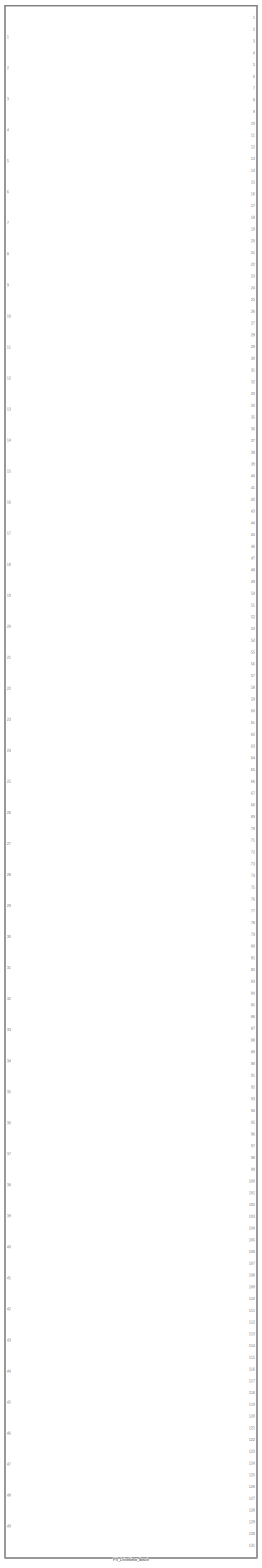
[diagram: root canvas - part 1/4, left side, full height]
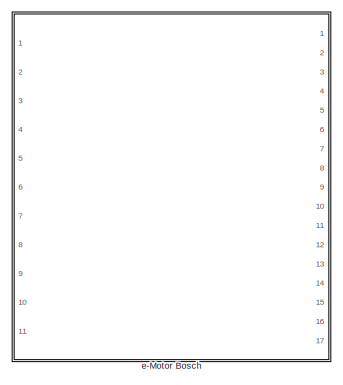
[diagram: root canvas - part 2/4, top center region]
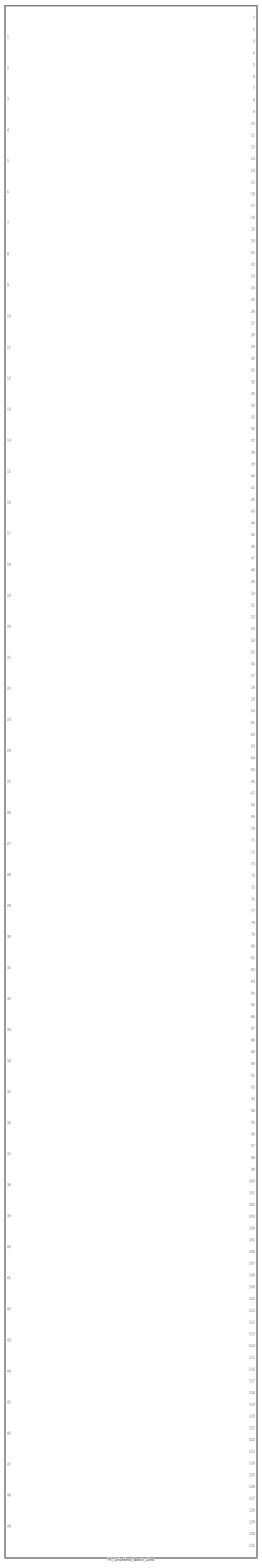
[diagram: root canvas - part 3/4, center side, full height]
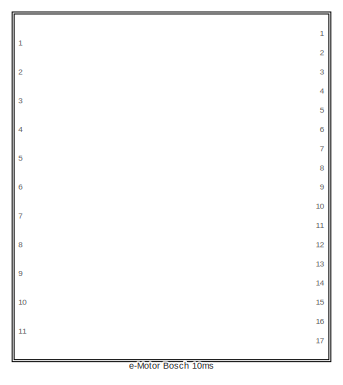
[diagram: root canvas - part 4/4, top right region]
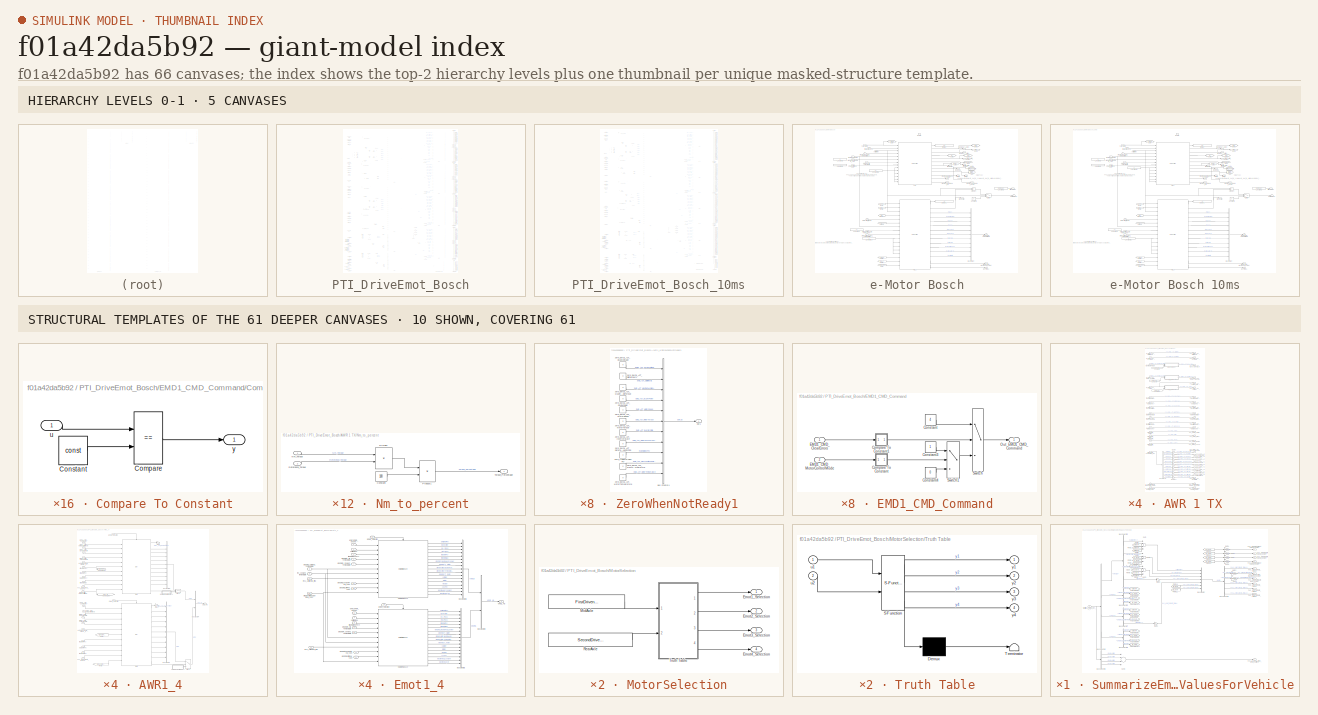
[diagram: thumbnail index - top-2 hierarchy levels (5 canvases) + 10 structural-template representatives of the remaining 61 canvases]
MODEL slx_f01a42da5b92
KIND library
CONFIG AbsTol = auto
CONFIG FixedStep = 0.001
CONFIG MaxStep = auto
CONFIG MinStep = auto
CONFIG RelTol = 1e-3
CONFIG SampleTimeConstraint = Unconstrained
CONFIG Solver = ode1
CONFIG SolverMode = Auto
CONFIG SolverName = ode1
CONFIG StartTime = 0.0
CONFIG StopTime = Inf
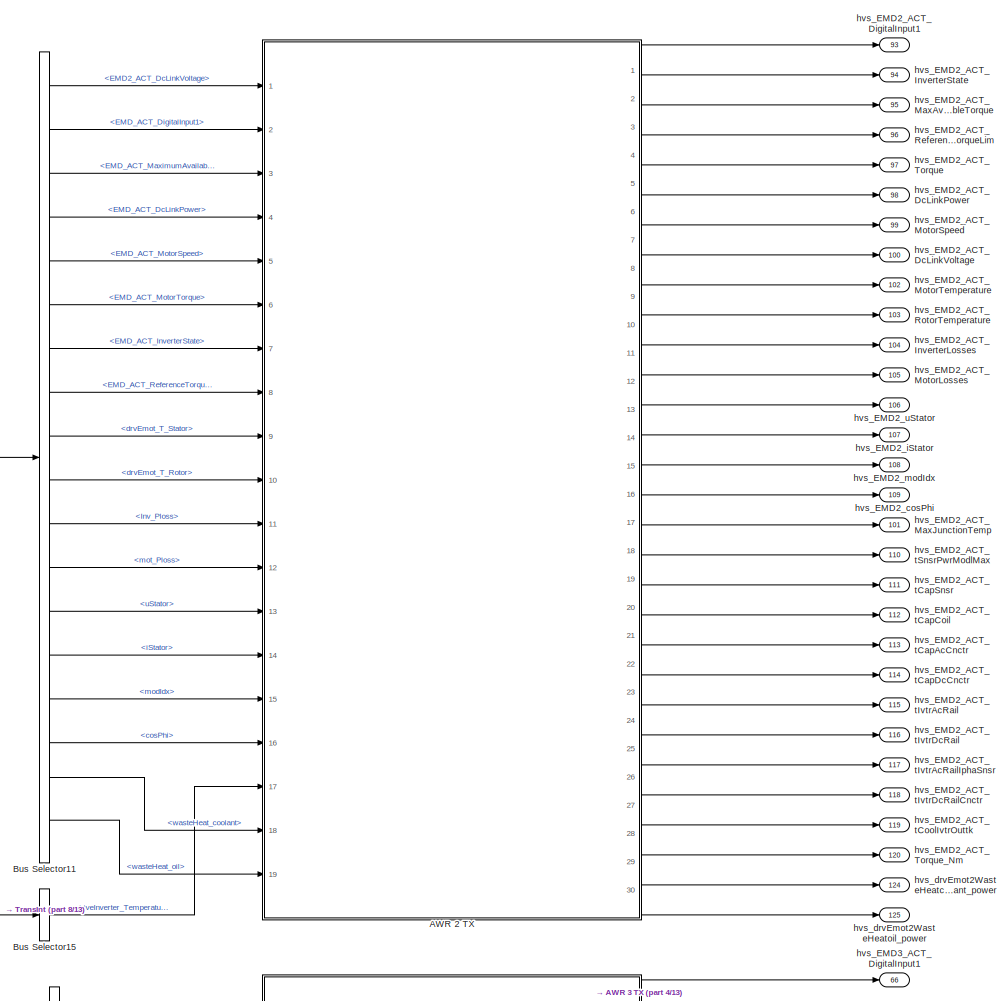
[diagram: PTI_DriveEmot_Bosch - part 1/13, top right region]
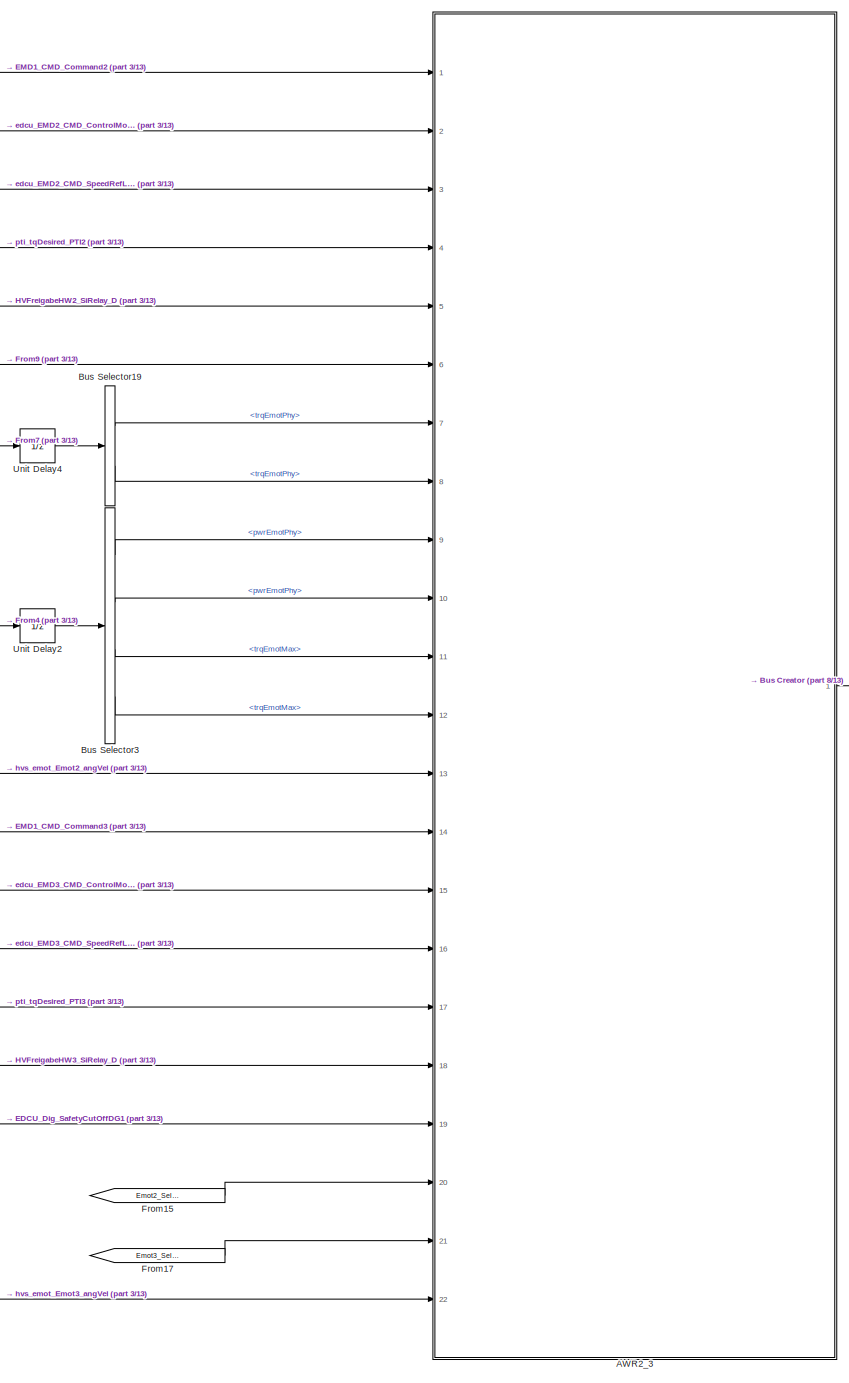
[diagram: PTI_DriveEmot_Bosch - part 2/13, top center region]
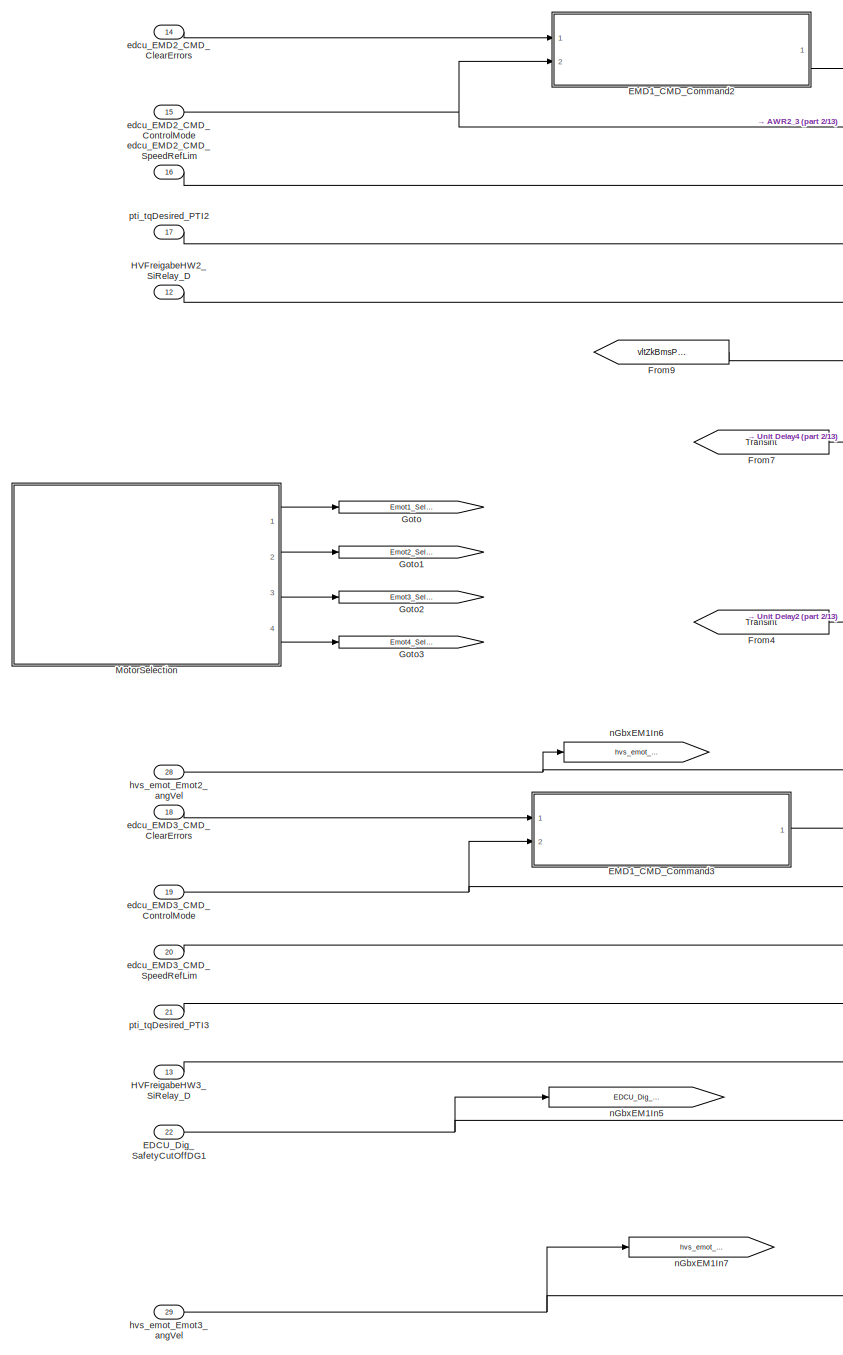
[diagram: PTI_DriveEmot_Bosch - part 3/13, top left region]
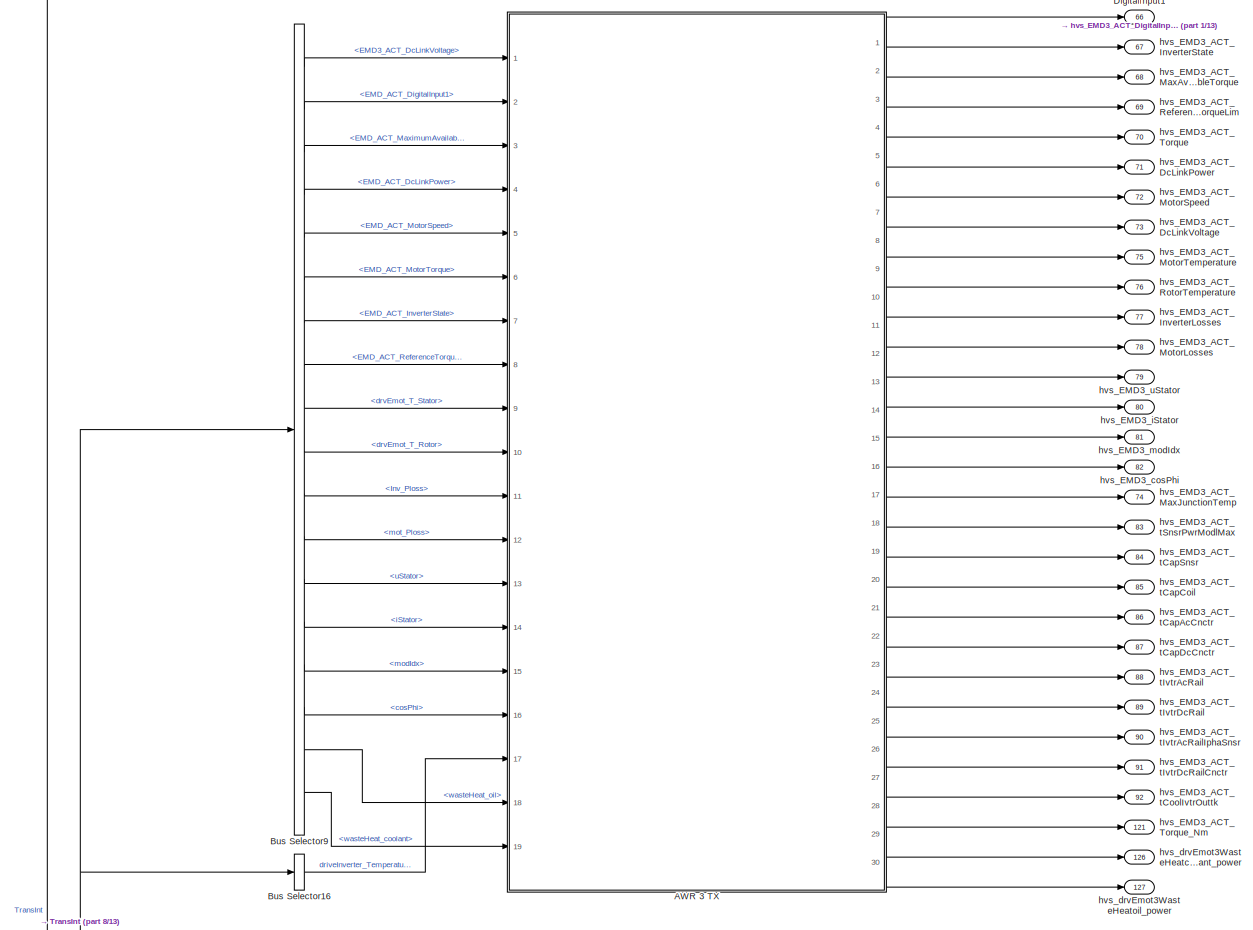
[diagram: PTI_DriveEmot_Bosch - part 4/13, middle right region]
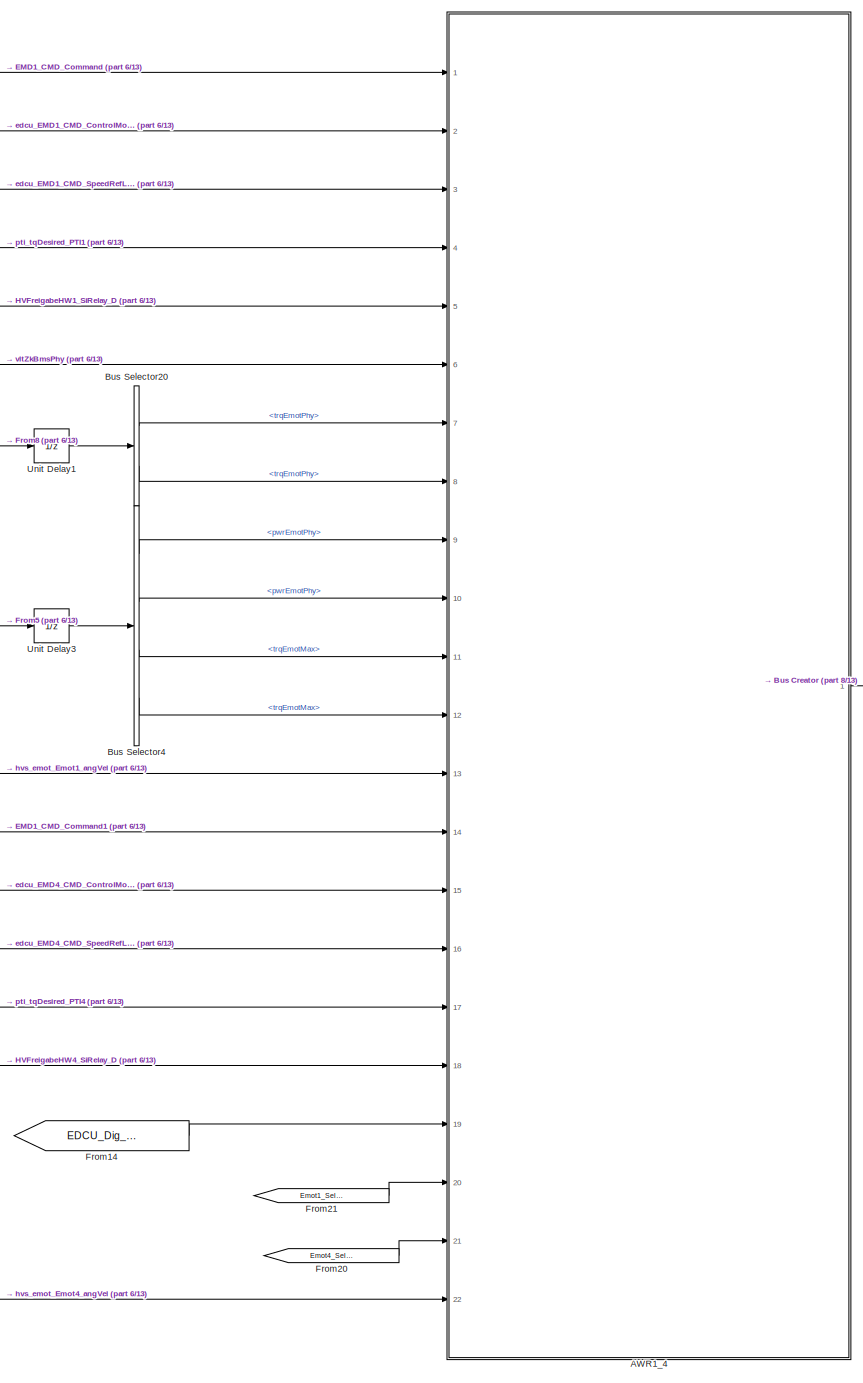
[diagram: PTI_DriveEmot_Bosch - part 5/13, central region]
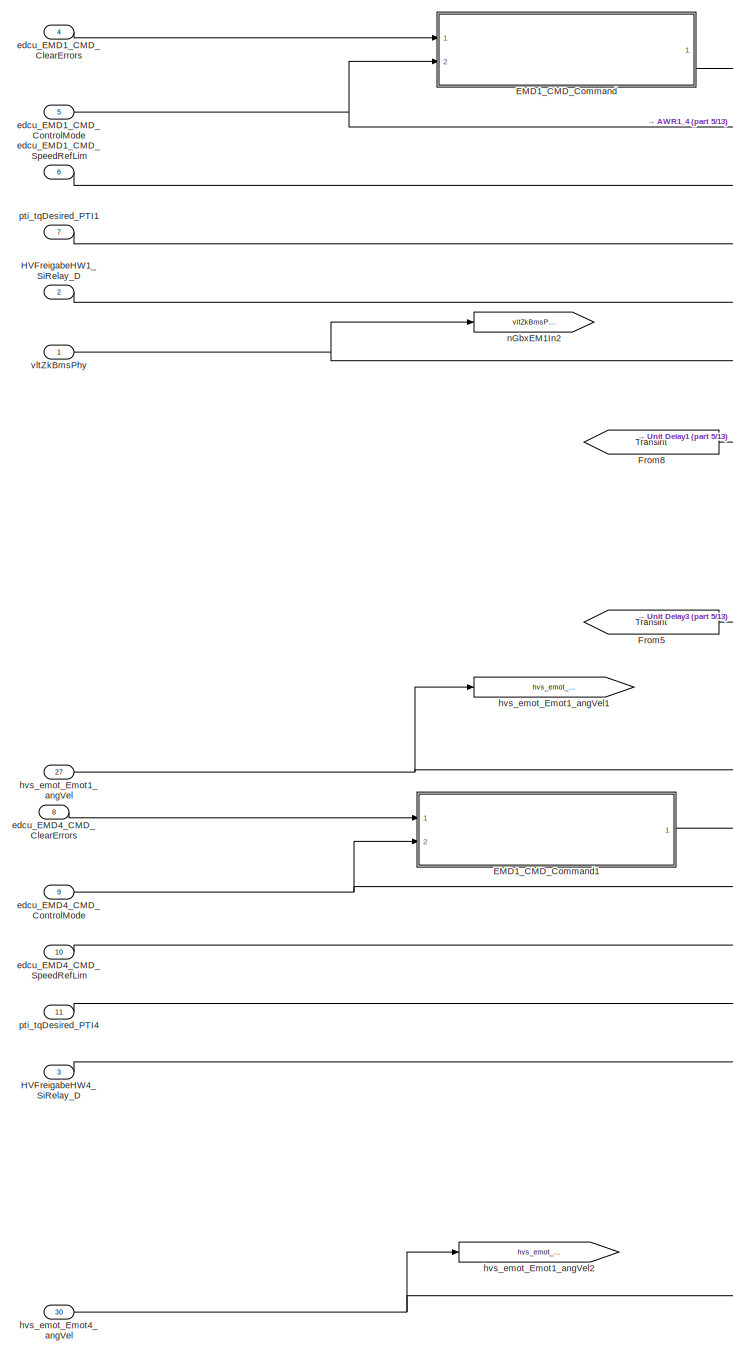
[diagram: PTI_DriveEmot_Bosch - part 6/13, middle left region]
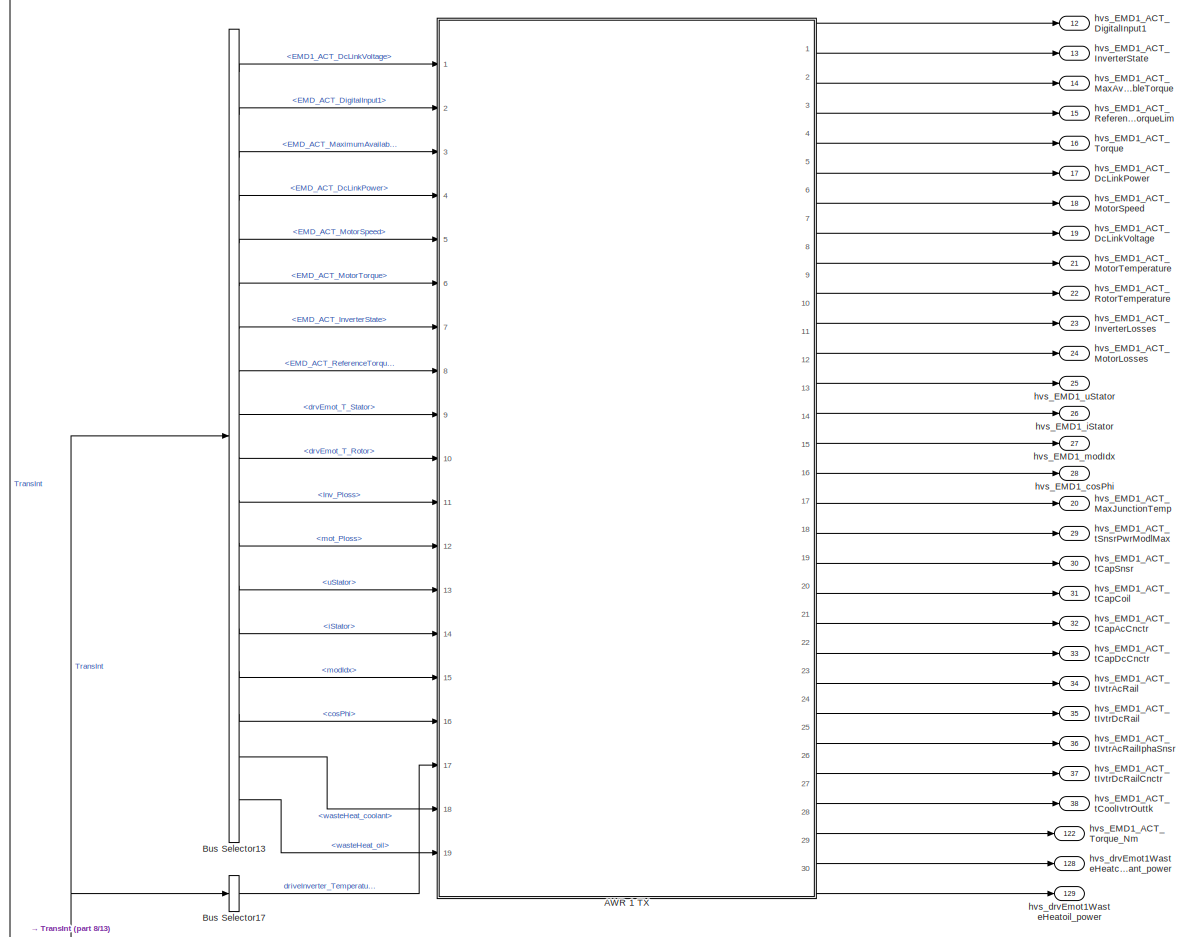
[diagram: PTI_DriveEmot_Bosch - part 7/13, middle right region]
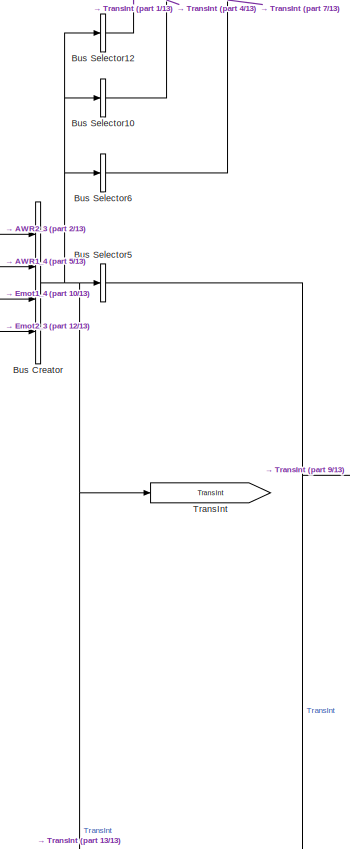
[diagram: PTI_DriveEmot_Bosch - part 8/13, bottom center region]
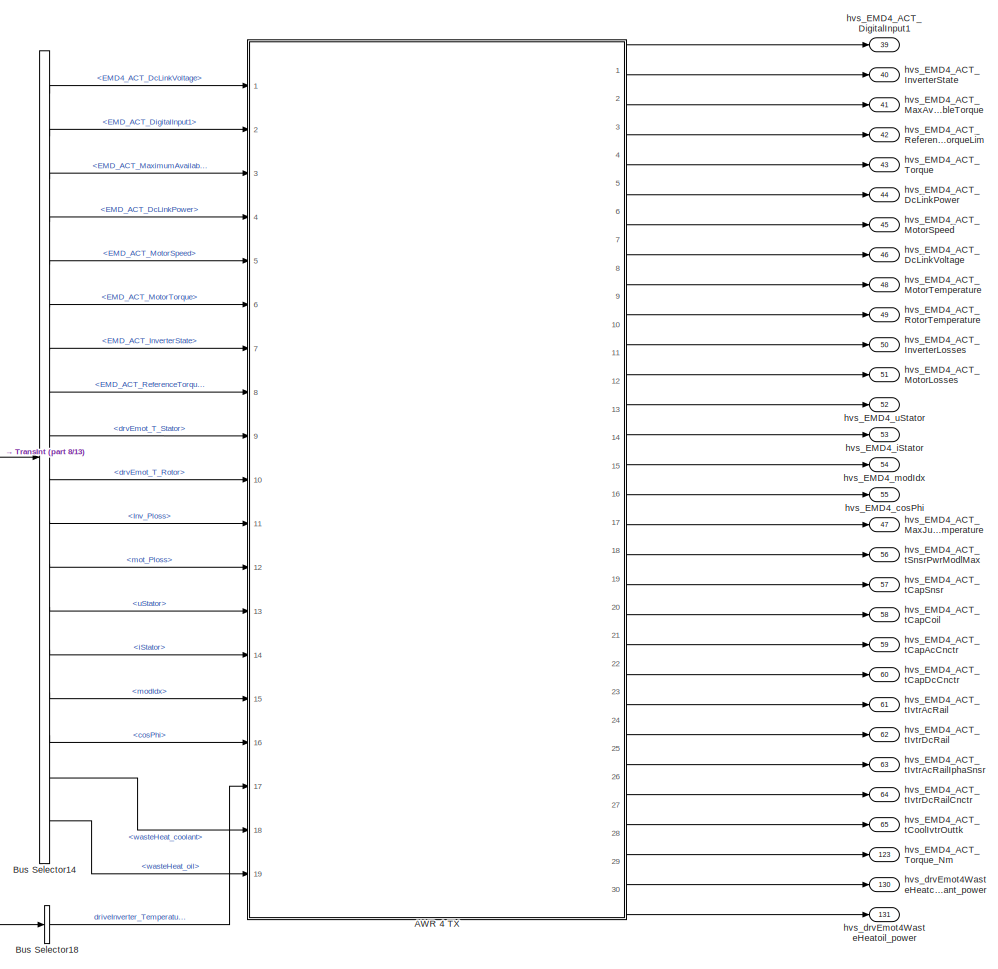
[diagram: PTI_DriveEmot_Bosch - part 9/13, bottom right region]
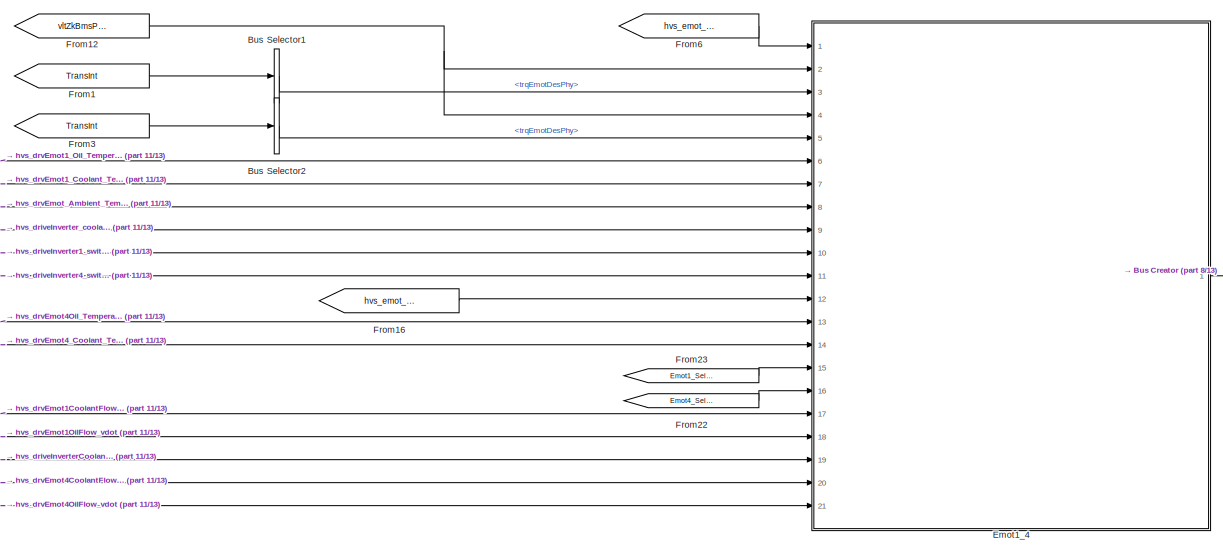
[diagram: PTI_DriveEmot_Bosch - part 10/13, bottom left region]
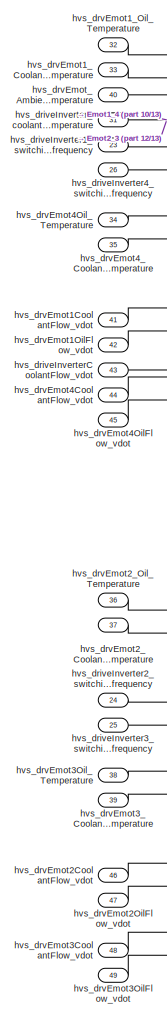
[diagram: PTI_DriveEmot_Bosch - part 11/13, bottom left region]
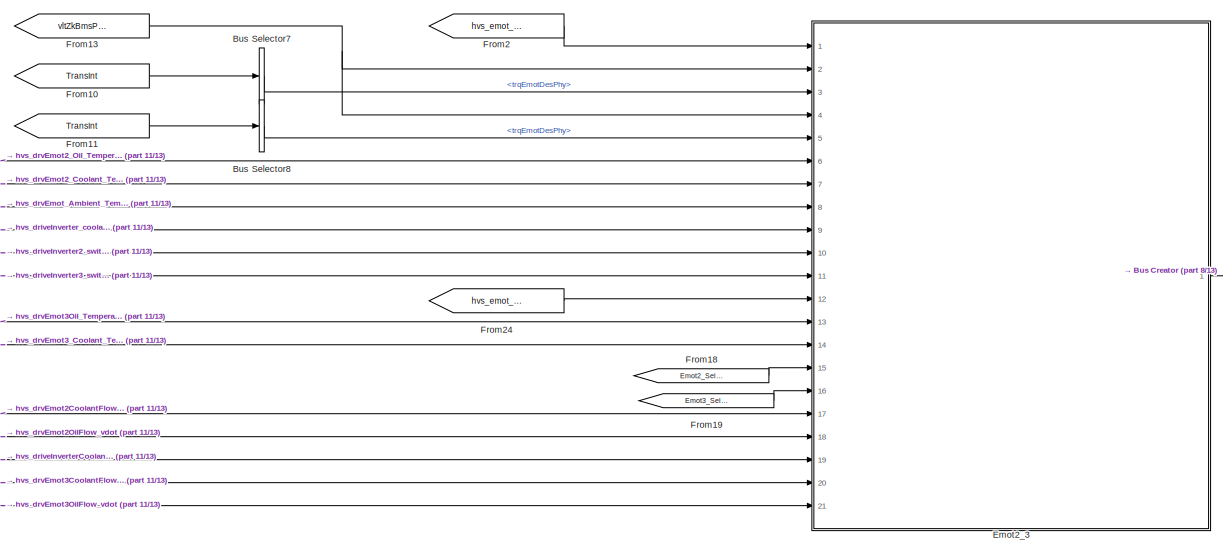
[diagram: PTI_DriveEmot_Bosch - part 12/13, bottom left region]
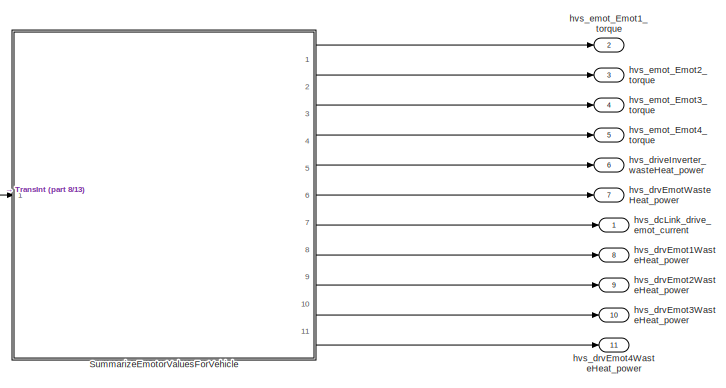
[diagram: PTI_DriveEmot_Bosch - part 13/13, bottom right region]
BLOCK [SubSystem] PTI_DriveEmot_Bosch
  Ports = [49, 131]
  RequestExecContextInheritance = off
  SystemSampleTime = 0.1
  TreatAsAtomicUnit = on
  Variant = off
BLOCK [SubSystem] PTI_DriveEmot_Bosch/AWR 1 TX
  Ports = [19, 30]
  RequestExecContextInheritance = off
  Variant = off
BLOCK [BusSelector] PTI_DriveEmot_Bosch/AWR 1 TX/Bus Selector
  OutputSignals = tPwrModl,tSnsrPwrModlMax,tCapSnsr,tCapCoil,tCapAcCnctr,tCapDcCnctr,tInvtrAcRail,tInvtrDcRail,tInvtrAcRailIphaSnsr,tInvtrDcRailCnctr,tCoolIvtrOuttk
  Ports = [1, 11]
BLOCK [Constant] PTI_DriveEmot_Bosch/AWR 1 TX/Constant3
  Value = drvEmot_RefTqeMOT
BLOCK [Constant] PTI_DriveEmot_Bosch/AWR 1 TX/Constant39
  Value = drvEmot_RefTqeMOT
BLOCK [Constant] PTI_DriveEmot_Bosch/AWR 1 TX/Constant5
  Value = drvEmot_RefTqeMOT
BLOCK [Inport] PTI_DriveEmot_Bosch/AWR 1 TX/IN_EMD1_ACT_DcLinkPower
  IconDisplay = Port number
  Port = 4
BLOCK [Inport] PTI_DriveEmot_Bosch/AWR 1 TX/IN_EMD1_ACT_DcLinkVoltage
  IconDisplay = Port number
BLOCK [Inport] PTI_DriveEmot_Bosch/AWR 1 TX/IN_EMD1_ACT_DigitalInput1
  IconDisplay = Port number
  Port = 2
BLOCK [Inport] PTI_DriveEmot_Bosch/AWR 1 TX/IN_EMD1_ACT_InverterLosses
  IconDisplay = Port number
  Port = 11
BLOCK [Inport] PTI_DriveEmot_Bosch/AWR 1 TX/IN_EMD1_ACT_InverterState
  IconDisplay = Port number
  Port = 7
BLOCK [Inport] PTI_DriveEmot_Bosch/AWR 1 TX/IN_EMD1_ACT_MaximumAvailableTorque
  IconDisplay = Port number
  Port = 3
BLOCK [Inport] PTI_DriveEmot_Bosch/AWR 1 TX/IN_EMD1_ACT_MotorLosses
  IconDisplay = Port number
  Port = 12
BLOCK [Inport] PTI_DriveEmot_Bosch/AWR 1 TX/IN_EMD1_ACT_MotorSpeed
  IconDisplay = Port number
  Port = 5
BLOCK [Inport] PTI_DriveEmot_Bosch/AWR 1 TX/IN_EMD1_ACT_MotorTemperature
  IconDisplay = Port number
  Port = 9
BLOCK [Inport] PTI_DriveEmot_Bosch/AWR 1 TX/IN_EMD1_ACT_ReferenceTorqueLimited
  IconDisplay = Port number
  Port = 8
BLOCK [Inport] PTI_DriveEmot_Bosch/AWR 1 TX/IN_EMD1_ACT_RotorTemperature
  IconDisplay = Port number
  Port = 10
BLOCK [Inport] PTI_DriveEmot_Bosch/AWR 1 TX/IN_EMD1_ACT_Torque
  IconDisplay = Port number
  Port = 6
BLOCK [Inport] PTI_DriveEmot_Bosch/AWR 1 TX/IN_drvEmot1WasteHeatcoolant_power
  IconDisplay = Port number
  Port = 18
BLOCK [Inport] PTI_DriveEmot_Bosch/AWR 1 TX/IN_drvEmot1WasteHeatoil_power
  IconDisplay = Port number
  Port = 19
BLOCK [SubSystem] PTI_DriveEmot_Bosch/AWR 1 TX/Nm_to_percent
  Ports = [2, 1]
  RequestExecContextInheritance = off
  Variant = off
BLOCK [Constant] PTI_DriveEmot_Bosch/AWR 1 TX/Nm_to_percent/Constant
  Value = 100
BLOCK [Product] PTI_DriveEmot_Bosch/AWR 1 TX/Nm_to_percent/Divide1
  InputSameDT = off
  Inputs = */
  OutDataTypeStr = Inherit: Inherit via internal rule
  Ports = [2, 1]
  RndMeth = Floor
  SaturateOnIntegerOverflow = off
BLOCK [Inport] PTI_DriveEmot_Bosch/AWR 1 TX/Nm_to_percent/Nm_Torque
  IconDisplay = Port number
BLOCK [Product] PTI_DriveEmot_Bosch/AWR 1 TX/Nm_to_percent/Product1
  InputSameDT = off
  OutDataTypeStr = Inherit: Inherit via internal rule
  Ports = [2, 1]
  SaturateOnIntegerOverflow = off
BLOCK [Inport] PTI_DriveEmot_Bosch/AWR 1 TX/Nm_to_percent/Reference_Torque
  IconDisplay = Port number
  Port = 2
BLOCK [Outport] PTI_DriveEmot_Bosch/AWR 1 TX/Nm_to_percent/Torque_Percentage
  IconDisplay = Port number
BLOCK [SubSystem] PTI_DriveEmot_Bosch/AWR 1 TX/Nm_to_percent1
  Ports = [2, 1]
  RequestExecContextInheritance = off
  Variant = off
BLOCK [Constant] PTI_DriveEmot_Bosch/AWR 1 TX/Nm_to_percent1/Constant
  Value = 100
BLOCK [Product] PTI_DriveEmot_Bosch/AWR 1 TX/Nm_to_percent1/Divide1
  InputSameDT = off
  Inputs = */
  OutDataTypeStr = Inherit: Inherit via internal rule
  Ports = [2, 1]
  RndMeth = Floor
  SaturateOnIntegerOverflow = off
BLOCK [Inport] PTI_DriveEmot_Bosch/AWR 1 TX/Nm_to_percent1/Nm_Torque
  IconDisplay = Port number
BLOCK [Product] PTI_DriveEmot_Bosch/AWR 1 TX/Nm_to_percent1/Product1
  InputSameDT = off
  OutDataTypeStr = Inherit: Inherit via internal rule
  Ports = [2, 1]
  SaturateOnIntegerOverflow = off
BLOCK [Inport] PTI_DriveEmot_Bosch/AWR 1 TX/Nm_to_percent1/Reference_Torque
  IconDisplay = Port number
  Port = 2
BLOCK [Outport] PTI_DriveEmot_Bosch/AWR 1 TX/Nm_to_percent1/Torque_Percentage
  IconDisplay = Port number
BLOCK [SubSystem] PTI_DriveEmot_Bosch/AWR 1 TX/Nm_to_percent2
  Ports = [2, 1]
  RequestExecContextInheritance = off
  Variant = off
BLOCK [Constant] PTI_DriveEmot_Bosch/AWR 1 TX/Nm_to_percent2/Constant
  Value = 100
BLOCK [Product] PTI_DriveEmot_Bosch/AWR 1 TX/Nm_to_percent2/Divide1
  InputSameDT = off
  Inputs = */
  OutDataTypeStr = Inherit: Inherit via internal rule
  Ports = [2, 1]
  RndMeth = Floor
  SaturateOnIntegerOverflow = off
BLOCK [Inport] PTI_DriveEmot_Bosch/AWR 1 TX/Nm_to_percent2/Nm_Torque
  IconDisplay = Port number
BLOCK [Product] PTI_DriveEmot_Bosch/AWR 1 TX/Nm_to_percent2/Product1
  InputSameDT = off
  OutDataTypeStr = Inherit: Inherit via internal rule
  Ports = [2, 1]
  SaturateOnIntegerOverflow = off
BLOCK [Inport] PTI_DriveEmot_Bosch/AWR 1 TX/Nm_to_percent2/Reference_Torque
  IconDisplay = Port number
  Port = 2
BLOCK [Outport] PTI_DriveEmot_Bosch/AWR 1 TX/Nm_to_percent2/Torque_Percentage
  IconDisplay = Port number
BLOCK [Inport] PTI_DriveEmot_Bosch/AWR 1 TX/driveInverter_Temperature_Bus
  IconDisplay = Port number
  Port = 17
BLOCK [Inport] PTI_DriveEmot_Bosch/AWR 1 TX/driveInverter_cosPhi
  IconDisplay = Port number
  Port = 16
BLOCK [Inport] PTI_DriveEmot_Bosch/AWR 1 TX/driveInverter_iStator
  IconDisplay = Port number
  Port = 14
BLOCK [Inport] PTI_DriveEmot_Bosch/AWR 1 TX/driveInverter_modIdx
  IconDisplay = Port number
  Port = 15
BLOCK [Inport] PTI_DriveEmot_Bosch/AWR 1 TX/driveInverter_uStator
  IconDisplay = Port number
  Port = 13
BLOCK [Outport] PTI_DriveEmot_Bosch/AWR 1 TX/hvs_EMD1_ACT_DcLinkPower
  IconDisplay = Port number
  Port = 6
BLOCK [Outport] PTI_DriveEmot_Bosch/AWR 1 TX/hvs_EMD1_ACT_DcLinkVoltage
  IconDisplay = Port number
  Port = 8
BLOCK [Outport] PTI_DriveEmot_Bosch/AWR 1 TX/hvs_EMD1_ACT_DigitalInput1
  IconDisplay = Port number
BLOCK [Outport] PTI_DriveEmot_Bosch/AWR 1 TX/hvs_EMD1_ACT_InverterLosses
  IconDisplay = Port number
  Port = 11
BLOCK [Outport] PTI_DriveEmot_Bosch/AWR 1 TX/hvs_EMD1_ACT_InverterState
  IconDisplay = Port number
  Port = 2
BLOCK [Outport] PTI_DriveEmot_Bosch/AWR 1 TX/hvs_EMD1_ACT_MaxAvailableTorque
  IconDisplay = Port number
  Port = 3
BLOCK [Outport] PTI_DriveEmot_Bosch/AWR 1 TX/hvs_EMD1_ACT_MaxJunctionTemp
  IconDisplay = Port number
  Port = 17
BLOCK [Outport] PTI_DriveEmot_Bosch/AWR 1 TX/hvs_EMD1_ACT_MotorLosses
  IconDisplay = Port number
  Port = 12
BLOCK [Outport] PTI_DriveEmot_Bosch/AWR 1 TX/hvs_EMD1_ACT_MotorSpeed
  IconDisplay = Port number
  Port = 7
BLOCK [Outport] PTI_DriveEmot_Bosch/AWR 1 TX/hvs_EMD1_ACT_MotorTemperature
  IconDisplay = Port number
  Port = 9
BLOCK [Outport] PTI_DriveEmot_Bosch/AWR 1 TX/hvs_EMD1_ACT_ReferenceTorqueLim
  IconDisplay = Port number
  Port = 4
BLOCK [Outport] PTI_DriveEmot_Bosch/AWR 1 TX/hvs_EMD1_ACT_RotorTemperature
  IconDisplay = Port number
  Port = 10
BLOCK [Outport] PTI_DriveEmot_Bosch/AWR 1 TX/hvs_EMD1_ACT_Torque
  IconDisplay = Port number
  Port = 5
BLOCK [Outport] PTI_DriveEmot_Bosch/AWR 1 TX/hvs_EMD1_ACT_Torque_Nm
  IconDisplay = Port number
  Port = 28
BLOCK [Outport] PTI_DriveEmot_Bosch/AWR 1 TX/hvs_EMD1_ACT_tCapAcCnctr
  IconDisplay = Port number
  Port = 21
BLOCK [Outport] PTI_DriveEmot_Bosch/AWR 1 TX/hvs_EMD1_ACT_tCapCoil
  IconDisplay = Port number
  Port = 20
BLOCK [Outport] PTI_DriveEmot_Bosch/AWR 1 TX/hvs_EMD1_ACT_tCapDcCnctr
  IconDisplay = Port number
  Port = 22
BLOCK [Outport] PTI_DriveEmot_Bosch/AWR 1 TX/hvs_EMD1_ACT_tCapSnsr
  IconDisplay = Port number
  Port = 19
BLOCK [Outport] PTI_DriveEmot_Bosch/AWR 1 TX/hvs_EMD1_ACT_tCoolIvtrOuttk
  IconDisplay = Port number
  Port = 27
BLOCK [Outport] PTI_DriveEmot_Bosch/AWR 1 TX/hvs_EMD1_ACT_tIvtrAcRail
  IconDisplay = Port number
  Port = 23
BLOCK [Outport] PTI_DriveEmot_Bosch/AWR 1 TX/hvs_EMD1_ACT_tIvtrAcRailIphaSnsr
  IconDisplay = Port number
  Port = 25
BLOCK [Outport] PTI_DriveEmot_Bosch/AWR 1 TX/hvs_EMD1_ACT_tIvtrDcRail
  IconDisplay = Port number
  Port = 24
BLOCK [Outport] PTI_DriveEmot_Bosch/AWR 1 TX/hvs_EMD1_ACT_tIvtrDcRailCnctr
  IconDisplay = Port number
  Port = 26
BLOCK [Outport] PTI_DriveEmot_Bosch/AWR 1 TX/hvs_EMD1_ACT_tSnsrPwrModlMax
  IconDisplay = Port number
  Port = 18
BLOCK [Outport] PTI_DriveEmot_Bosch/AWR 1 TX/hvs_EMD1_cosPhi
  IconDisplay = Port number
  Port = 16
BLOCK [Outport] PTI_DriveEmot_Bosch/AWR 1 TX/hvs_EMD1_iStator
  IconDisplay = Port number
  Port = 14
BLOCK [Outport] PTI_DriveEmot_Bosch/AWR 1 TX/hvs_EMD1_modIdx
  IconDisplay = Port number
  Port = 15
BLOCK [Outport] PTI_DriveEmot_Bosch/AWR 1 TX/hvs_EMD1_uStator
  IconDisplay = Port number
  Port = 13
BLOCK [Outport] PTI_DriveEmot_Bosch/AWR 1 TX/hvs_drvEmot1WasteHeatcoolant_power
  IconDisplay = Port number
  Port = 29
BLOCK [Outport] PTI_DriveEmot_Bosch/AWR 1 TX/hvs_drvEmot1WasteHeatoil_power
  IconDisplay = Port number
  Port = 30
BLOCK [Gain] PTI_DriveEmot_Bosch/AWR 1 TX/rename
  OutDataTypeStr = Inherit: Inherit via internal rule
  ParamDataTypeStr = Inherit: Inherit via internal rule
  SaturateOnIntegerOverflow = off
BLOCK [Gain] PTI_DriveEmot_Bosch/AWR 1 TX/rename1
  OutDataTypeStr = Inherit: Inherit via internal rule
  ParamDataTypeStr = Inherit: Inherit via internal rule
  SaturateOnIntegerOverflow = off
BLOCK [Gain] PTI_DriveEmot_Bosch/AWR 1 TX/rename10
  OutDataTypeStr = Inherit: Inherit via internal rule
  ParamDataTypeStr = Inherit: Inherit via internal rule
  SaturateOnIntegerOverflow = off
BLOCK [Gain] PTI_DriveEmot_Bosch/AWR 1 TX/rename2
  OutDataTypeStr = Inherit: Inherit via internal rule
  ParamDataTypeStr = Inherit: Inherit via internal rule
  SaturateOnIntegerOverflow = off
BLOCK [Gain] PTI_DriveEmot_Bosch/AWR 1 TX/rename3
  OutDataTypeStr = Inherit: Inherit via internal rule
  ParamDataTypeStr = Inherit: Inherit via internal rule
  SaturateOnIntegerOverflow = off
BLOCK [Gain] PTI_DriveEmot_Bosch/AWR 1 TX/rename4
  OutDataTypeStr = Inherit: Inherit via internal rule
  ParamDataTypeStr = Inherit: Inherit via internal rule
  SaturateOnIntegerOverflow = off
BLOCK [Gain] PTI_DriveEmot_Bosch/AWR 1 TX/rename5
  OutDataTypeStr = Inherit: Inherit via internal rule
  ParamDataTypeStr = Inherit: Inherit via internal rule
  SaturateOnIntegerOverflow = off
BLOCK [Gain] PTI_DriveEmot_Bosch/AWR 1 TX/rename6
  OutDataTypeStr = Inherit: Inherit via internal rule
  ParamDataTypeStr = Inherit: Inherit via internal rule
  SaturateOnIntegerOverflow = off
BLOCK [Gain] PTI_DriveEmot_Bosch/AWR 1 TX/rename7
  OutDataTypeStr = Inherit: Inherit via internal rule
  ParamDataTypeStr = Inherit: Inherit via internal rule
  SaturateOnIntegerOverflow = off
BLOCK [Gain] PTI_DriveEmot_Bosch/AWR 1 TX/rename8
  OutDataTypeStr = Inherit: Inherit via internal rule
  ParamDataTypeStr = Inherit: Inherit via internal rule
  SaturateOnIntegerOverflow = off
BLOCK [Gain] PTI_DriveEmot_Bosch/AWR 1 TX/rename9
  OutDataTypeStr = Inherit: Inherit via internal rule
  ParamDataTypeStr = Inherit: Inherit via internal rule
  SaturateOnIntegerOverflow = off
BLOCK [SubSystem] PTI_DriveEmot_Bosch/AWR 2 TX
  Ports = [19, 30]
  RequestExecContextInheritance = off
  Variant = off
BLOCK [BusSelector] PTI_DriveEmot_Bosch/AWR 2 TX/Bus Selector
  OutputSignals = tPwrModl,tSnsrPwrModlMax,tCapSnsr,tCapCoil,tCapAcCnctr,tCapDcCnctr,tInvtrAcRail,tInvtrDcRail,tInvtrAcRailIphaSnsr,tInvtrDcRailCnctr,tCoolIvtrOuttk
  Ports = [1, 11]
BLOCK [Constant] PTI_DriveEmot_Bosch/AWR 2 TX/Constant3
  Value = drvEmot_RefTqeMOT
BLOCK [Constant] PTI_DriveEmot_Bosch/AWR 2 TX/Constant39
  Value = drvEmot_RefTqeMOT
BLOCK [Constant] PTI_DriveEmot_Bosch/AWR 2 TX/Constant5
  Value = drvEmot_RefTqeMOT
BLOCK [Inport] PTI_DriveEmot_Bosch/AWR 2 TX/IN_EMD2_ACT_DcLinkPower
  IconDisplay = Port number
  Port = 4
BLOCK [Inport] PTI_DriveEmot_Bosch/AWR 2 TX/IN_EMD2_ACT_DcLinkVoltage
  IconDisplay = Port number
BLOCK [Inport] PTI_DriveEmot_Bosch/AWR 2 TX/IN_EMD2_ACT_DigitalInput1
  IconDisplay = Port number
  Port = 2
BLOCK [Inport] PTI_DriveEmot_Bosch/AWR 2 TX/IN_EMD2_ACT_InverterLosses
  IconDisplay = Port number
  Port = 11
BLOCK [Inport] PTI_DriveEmot_Bosch/AWR 2 TX/IN_EMD2_ACT_InverterState
  IconDisplay = Port number
  Port = 7
BLOCK [Inport] PTI_DriveEmot_Bosch/AWR 2 TX/IN_EMD2_ACT_MaximumAvailableTorque
  IconDisplay = Port number
  Port = 3
BLOCK [Inport] PTI_DriveEmot_Bosch/AWR 2 TX/IN_EMD2_ACT_MotorLosses
  IconDisplay = Port number
  Port = 12
BLOCK [Inport] PTI_DriveEmot_Bosch/AWR 2 TX/IN_EMD2_ACT_MotorSpeed
  IconDisplay = Port number
  Port = 5
BLOCK [Inport] PTI_DriveEmot_Bosch/AWR 2 TX/IN_EMD2_ACT_MotorTemperature
  IconDisplay = Port number
  Port = 9
BLOCK [Inport] PTI_DriveEmot_Bosch/AWR 2 TX/IN_EMD2_ACT_ReferenceTorqueLimited
  IconDisplay = Port number
  Port = 8
BLOCK [Inport] PTI_DriveEmot_Bosch/AWR 2 TX/IN_EMD2_ACT_RotorTemperature
  IconDisplay = Port number
  Port = 10
BLOCK [Inport] PTI_DriveEmot_Bosch/AWR 2 TX/IN_EMD2_ACT_Torque
  IconDisplay = Port number
  Port = 6
BLOCK [Inport] PTI_DriveEmot_Bosch/AWR 2 TX/IN_drvEmot2WasteHeatcoolant_power
  IconDisplay = Port number
  Port = 18
BLOCK [Inport] PTI_DriveEmot_Bosch/AWR 2 TX/IN_drvEmot2WasteHeatoil_power
  IconDisplay = Port number
  Port = 19
BLOCK [SubSystem] PTI_DriveEmot_Bosch/AWR 2 TX/Nm_to_percent
  Ports = [2, 1]
  RequestExecContextInheritance = off
  Variant = off
BLOCK [Constant] PTI_DriveEmot_Bosch/AWR 2 TX/Nm_to_percent/Constant
  Value = 100
BLOCK [Product] PTI_DriveEmot_Bosch/AWR 2 TX/Nm_to_percent/Divide1
  InputSameDT = off
  Inputs = */
  OutDataTypeStr = Inherit: Inherit via internal rule
  Ports = [2, 1]
  RndMeth = Floor
  SaturateOnIntegerOverflow = off
BLOCK [Inport] PTI_DriveEmot_Bosch/AWR 2 TX/Nm_to_percent/Nm_Torque
  IconDisplay = Port number
BLOCK [Product] PTI_DriveEmot_Bosch/AWR 2 TX/Nm_to_percent/Product1
  InputSameDT = off
  OutDataTypeStr = Inherit: Inherit via internal rule
  Ports = [2, 1]
  SaturateOnIntegerOverflow = off
BLOCK [Inport] PTI_DriveEmot_Bosch/AWR 2 TX/Nm_to_percent/Reference_Torque
  IconDisplay = Port number
  Port = 2
BLOCK [Outport] PTI_DriveEmot_Bosch/AWR 2 TX/Nm_to_percent/Torque_Percentage
  IconDisplay = Port number
BLOCK [SubSystem] PTI_DriveEmot_Bosch/AWR 2 TX/Nm_to_percent1
  Ports = [2, 1]
  RequestExecContextInheritance = off
  Variant = off
BLOCK [Constant] PTI_DriveEmot_Bosch/AWR 2 TX/Nm_to_percent1/Constant
  Value = 100
BLOCK [Product] PTI_DriveEmot_Bosch/AWR 2 TX/Nm_to_percent1/Divide1
  InputSameDT = off
  Inputs = */
  OutDataTypeStr = Inherit: Inherit via internal rule
  Ports = [2, 1]
  RndMeth = Floor
  SaturateOnIntegerOverflow = off
BLOCK [Inport] PTI_DriveEmot_Bosch/AWR 2 TX/Nm_to_percent1/Nm_Torque
  IconDisplay = Port number
BLOCK [Product] PTI_DriveEmot_Bosch/AWR 2 TX/Nm_to_percent1/Product1
  InputSameDT = off
  OutDataTypeStr = Inherit: Inherit via internal rule
  Ports = [2, 1]
  SaturateOnIntegerOverflow = off
BLOCK [Inport] PTI_DriveEmot_Bosch/AWR 2 TX/Nm_to_percent1/Reference_Torque
  IconDisplay = Port number
  Port = 2
BLOCK [Outport] PTI_DriveEmot_Bosch/AWR 2 TX/Nm_to_percent1/Torque_Percentage
  IconDisplay = Port number
BLOCK [SubSystem] PTI_DriveEmot_Bosch/AWR 2 TX/Nm_to_percent2
  Ports = [2, 1]
  RequestExecContextInheritance = off
  Variant = off
BLOCK [Constant] PTI_DriveEmot_Bosch/AWR 2 TX/Nm_to_percent2/Constant
  Value = 100
BLOCK [Product] PTI_DriveEmot_Bosch/AWR 2 TX/Nm_to_percent2/Divide1
  InputSameDT = off
  Inputs = */
  OutDataTypeStr = Inherit: Inherit via internal rule
  Ports = [2, 1]
  RndMeth = Floor
  SaturateOnIntegerOverflow = off
BLOCK [Inport] PTI_DriveEmot_Bosch/AWR 2 TX/Nm_to_percent2/Nm_Torque
  IconDisplay = Port number
BLOCK [Product] PTI_DriveEmot_Bosch/AWR 2 TX/Nm_to_percent2/Product1
  InputSameDT = off
  OutDataTypeStr = Inherit: Inherit via internal rule
  Ports = [2, 1]
  SaturateOnIntegerOverflow = off
BLOCK [Inport] PTI_DriveEmot_Bosch/AWR 2 TX/Nm_to_percent2/Reference_Torque
  IconDisplay = Port number
  Port = 2
BLOCK [Outport] PTI_DriveEmot_Bosch/AWR 2 TX/Nm_to_percent2/Torque_Percentage
  IconDisplay = Port number
BLOCK [Inport] PTI_DriveEmot_Bosch/AWR 2 TX/driveInverter_Temperature_Bus
  IconDisplay = Port number
  Port = 17
BLOCK [Inport] PTI_DriveEmot_Bosch/AWR 2 TX/driveInverter_cosPhi
  IconDisplay = Port number
  Port = 16
BLOCK [Inport] PTI_DriveEmot_Bosch/AWR 2 TX/driveInverter_iStator
  IconDisplay = Port number
  Port = 14
BLOCK [Inport] PTI_DriveEmot_Bosch/AWR 2 TX/driveInverter_modIdx
  IconDisplay = Port number
  Port = 15
BLOCK [Inport] PTI_DriveEmot_Bosch/AWR 2 TX/driveInverter_uStator
  IconDisplay = Port number
  Port = 13
BLOCK [Outport] PTI_DriveEmot_Bosch/AWR 2 TX/hvs_EMD2_ACT_DcLinkPower
  IconDisplay = Port number
  Port = 6
BLOCK [Outport] PTI_DriveEmot_Bosch/AWR 2 TX/hvs_EMD2_ACT_DcLinkVoltage
  IconDisplay = Port number
  Port = 8
BLOCK [Outport] PTI_DriveEmot_Bosch/AWR 2 TX/hvs_EMD2_ACT_DigitalInput1
  IconDisplay = Port number
BLOCK [Outport] PTI_DriveEmot_Bosch/AWR 2 TX/hvs_EMD2_ACT_InverterLosses
  IconDisplay = Port number
  Port = 11
BLOCK [Outport] PTI_DriveEmot_Bosch/AWR 2 TX/hvs_EMD2_ACT_InverterState
  IconDisplay = Port number
  Port = 2
BLOCK [Outport] PTI_DriveEmot_Bosch/AWR 2 TX/hvs_EMD2_ACT_MaxAvailableTorque
  IconDisplay = Port number
  Port = 3
BLOCK [Outport] PTI_DriveEmot_Bosch/AWR 2 TX/hvs_EMD2_ACT_MaxJunctionTemp
  IconDisplay = Port number
  Port = 17
BLOCK [Outport] PTI_DriveEmot_Bosch/AWR 2 TX/hvs_EMD2_ACT_MotorLosses
  IconDisplay = Port number
  Port = 12
BLOCK [Outport] PTI_DriveEmot_Bosch/AWR 2 TX/hvs_EMD2_ACT_MotorSpeed
  IconDisplay = Port number
  Port = 7
BLOCK [Outport] PTI_DriveEmot_Bosch/AWR 2 TX/hvs_EMD2_ACT_MotorTemperature
  IconDisplay = Port number
  Port = 9
BLOCK [Outport] PTI_DriveEmot_Bosch/AWR 2 TX/hvs_EMD2_ACT_ReferenceTorqueLim
  IconDisplay = Port number
  Port = 4
BLOCK [Outport] PTI_DriveEmot_Bosch/AWR 2 TX/hvs_EMD2_ACT_RotorTemperature
  IconDisplay = Port number
  Port = 10
BLOCK [Outport] PTI_DriveEmot_Bosch/AWR 2 TX/hvs_EMD2_ACT_Torque
  IconDisplay = Port number
  Port = 5
BLOCK [Outport] PTI_DriveEmot_Bosch/AWR 2 TX/hvs_EMD2_ACT_Torque_Nm
  IconDisplay = Port number
  Port = 28
BLOCK [Outport] PTI_DriveEmot_Bosch/AWR 2 TX/hvs_EMD2_ACT_tCapAcCnctr
  IconDisplay = Port number
  Port = 21
BLOCK [Outport] PTI_DriveEmot_Bosch/AWR 2 TX/hvs_EMD2_ACT_tCapCoil
  IconDisplay = Port number
  Port = 20
BLOCK [Outport] PTI_DriveEmot_Bosch/AWR 2 TX/hvs_EMD2_ACT_tCapDcCnctr
  IconDisplay = Port number
  Port = 22
BLOCK [Outport] PTI_DriveEmot_Bosch/AWR 2 TX/hvs_EMD2_ACT_tCapSnsr
  IconDisplay = Port number
  Port = 19
BLOCK [Outport] PTI_DriveEmot_Bosch/AWR 2 TX/hvs_EMD2_ACT_tCoolIvtrOuttk
  IconDisplay = Port number
  Port = 27
BLOCK [Outport] PTI_DriveEmot_Bosch/AWR 2 TX/hvs_EMD2_ACT_tIvtrAcRail
  IconDisplay = Port number
  Port = 23
BLOCK [Outport] PTI_DriveEmot_Bosch/AWR 2 TX/hvs_EMD2_ACT_tIvtrAcRailIphaSnsr
  IconDisplay = Port number
  Port = 25
BLOCK [Outport] PTI_DriveEmot_Bosch/AWR 2 TX/hvs_EMD2_ACT_tIvtrDcRail
  IconDisplay = Port number
  Port = 24
BLOCK [Outport] PTI_DriveEmot_Bosch/AWR 2 TX/hvs_EMD2_ACT_tIvtrDcRailCnctr
  IconDisplay = Port number
  Port = 26
BLOCK [Outport] PTI_DriveEmot_Bosch/AWR 2 TX/hvs_EMD2_ACT_tSnsrPwrModlMax
  IconDisplay = Port number
  Port = 18
BLOCK [Outport] PTI_DriveEmot_Bosch/AWR 2 TX/hvs_EMD2_cosPhi
  IconDisplay = Port number
  Port = 16
BLOCK [Outport] PTI_DriveEmot_Bosch/AWR 2 TX/hvs_EMD2_iStator
  IconDisplay = Port number
  Port = 14
BLOCK [Outport] PTI_DriveEmot_Bosch/AWR 2 TX/hvs_EMD2_modIdx
  IconDisplay = Port number
  Port = 15
BLOCK [Outport] PTI_DriveEmot_Bosch/AWR 2 TX/hvs_EMD2_uStator
  IconDisplay = Port number
  Port = 13
BLOCK [Outport] PTI_DriveEmot_Bosch/AWR 2 TX/hvs_drvEmot2WasteHeatcoolant_power
  IconDisplay = Port number
  Port = 29
BLOCK [Outport] PTI_DriveEmot_Bosch/AWR 2 TX/hvs_drvEmot2WasteHeatoil_power
  IconDisplay = Port number
  Port = 30
BLOCK [Gain] PTI_DriveEmot_Bosch/AWR 2 TX/rename
  OutDataTypeStr = Inherit: Inherit via internal rule
  ParamDataTypeStr = Inherit: Inherit via internal rule
  SaturateOnIntegerOverflow = off
BLOCK [Gain] PTI_DriveEmot_Bosch/AWR 2 TX/rename1
  OutDataTypeStr = Inherit: Inherit via internal rule
  ParamDataTypeStr = Inherit: Inherit via internal rule
  SaturateOnIntegerOverflow = off
BLOCK [Gain] PTI_DriveEmot_Bosch/AWR 2 TX/rename10
  OutDataTypeStr = Inherit: Inherit via internal rule
  ParamDataTypeStr = Inherit: Inherit via internal rule
  SaturateOnIntegerOverflow = off
BLOCK [Gain] PTI_DriveEmot_Bosch/AWR 2 TX/rename2
  OutDataTypeStr = Inherit: Inherit via internal rule
  ParamDataTypeStr = Inherit: Inherit via internal rule
  SaturateOnIntegerOverflow = off
BLOCK [Gain] PTI_DriveEmot_Bosch/AWR 2 TX/rename3
  OutDataTypeStr = Inherit: Inherit via internal rule
  ParamDataTypeStr = Inherit: Inherit via internal rule
  SaturateOnIntegerOverflow = off
BLOCK [Gain] PTI_DriveEmot_Bosch/AWR 2 TX/rename4
  OutDataTypeStr = Inherit: Inherit via internal rule
  ParamDataTypeStr = Inherit: Inherit via internal rule
  SaturateOnIntegerOverflow = off
BLOCK [Gain] PTI_DriveEmot_Bosch/AWR 2 TX/rename5
  OutDataTypeStr = Inherit: Inherit via internal rule
  ParamDataTypeStr = Inherit: Inherit via internal rule
  SaturateOnIntegerOverflow = off
BLOCK [Gain] PTI_DriveEmot_Bosch/AWR 2 TX/rename6
  OutDataTypeStr = Inherit: Inherit via internal rule
  ParamDataTypeStr = Inherit: Inherit via internal rule
  SaturateOnIntegerOverflow = off
BLOCK [Gain] PTI_DriveEmot_Bosch/AWR 2 TX/rename7
  OutDataTypeStr = Inherit: Inherit via internal rule
  ParamDataTypeStr = Inherit: Inherit via internal rule
  SaturateOnIntegerOverflow = off
BLOCK [Gain] PTI_DriveEmot_Bosch/AWR 2 TX/rename8
  OutDataTypeStr = Inherit: Inherit via internal rule
  ParamDataTypeStr = Inherit: Inherit via internal rule
  SaturateOnIntegerOverflow = off
BLOCK [Gain] PTI_DriveEmot_Bosch/AWR 2 TX/rename9
  OutDataTypeStr = Inherit: Inherit via internal rule
  ParamDataTypeStr = Inherit: Inherit via internal rule
  SaturateOnIntegerOverflow = off
BLOCK [SubSystem] PTI_DriveEmot_Bosch/AWR 3 TX
  Ports = [19, 30]
  RequestExecContextInheritance = off
  Variant = off
BLOCK [BusSelector] PTI_DriveEmot_Bosch/AWR 3 TX/Bus Selector
  OutputSignals = tPwrModl,tSnsrPwrModlMax,tCapSnsr,tCapCoil,tCapAcCnctr,tCapDcCnctr,tInvtrAcRail,tInvtrDcRail,tInvtrAcRailIphaSnsr,tInvtrDcRailCnctr,tCoolIvtrOuttk
  Ports = [1, 11]
BLOCK [Constant] PTI_DriveEmot_Bosch/AWR 3 TX/Constant3
  Value = drvEmot_RefTqeMOT
BLOCK [Constant] PTI_DriveEmot_Bosch/AWR 3 TX/Constant39
  Value = drvEmot_RefTqeMOT
BLOCK [Constant] PTI_DriveEmot_Bosch/AWR 3 TX/Constant5
  Value = drvEmot_RefTqeMOT
BLOCK [Inport] PTI_DriveEmot_Bosch/AWR 3 TX/IN_EMD3_ACT_DcLinkPower
  IconDisplay = Port number
  Port = 4
BLOCK [Inport] PTI_DriveEmot_Bosch/AWR 3 TX/IN_EMD3_ACT_DcLinkVoltage
  IconDisplay = Port number
BLOCK [Inport] PTI_DriveEmot_Bosch/AWR 3 TX/IN_EMD3_ACT_DigitalInput1
  IconDisplay = Port number
  Port = 2
BLOCK [Inport] PTI_DriveEmot_Bosch/AWR 3 TX/IN_EMD3_ACT_InverterLosses
  IconDisplay = Port number
  Port = 11
BLOCK [Inport] PTI_DriveEmot_Bosch/AWR 3 TX/IN_EMD3_ACT_InverterState
  IconDisplay = Port number
  Port = 7
BLOCK [Inport] PTI_DriveEmot_Bosch/AWR 3 TX/IN_EMD3_ACT_MaximumAvailableTorque
  IconDisplay = Port number
  Port = 3
BLOCK [Inport] PTI_DriveEmot_Bosch/AWR 3 TX/IN_EMD3_ACT_MotorLosses
  IconDisplay = Port number
  Port = 12
BLOCK [Inport] PTI_DriveEmot_Bosch/AWR 3 TX/IN_EMD3_ACT_MotorSpeed
  IconDisplay = Port number
  Port = 5
BLOCK [Inport] PTI_DriveEmot_Bosch/AWR 3 TX/IN_EMD3_ACT_MotorTemperature
  IconDisplay = Port number
  Port = 9
BLOCK [Inport] PTI_DriveEmot_Bosch/AWR 3 TX/IN_EMD3_ACT_ReferenceTorqueLimited
  IconDisplay = Port number
  Port = 8
BLOCK [Inport] PTI_DriveEmot_Bosch/AWR 3 TX/IN_EMD3_ACT_RotorTemperature
  IconDisplay = Port number
  Port = 10
BLOCK [Inport] PTI_DriveEmot_Bosch/AWR 3 TX/IN_EMD3_ACT_Torque
  IconDisplay = Port number
  Port = 6
BLOCK [Inport] PTI_DriveEmot_Bosch/AWR 3 TX/IN_drvEmot3WasteHeatcoolant_power
  IconDisplay = Port number
  Port = 18
BLOCK [Inport] PTI_DriveEmot_Bosch/AWR 3 TX/IN_drvEmot3WasteHeatoil_power
  IconDisplay = Port number
  Port = 19
BLOCK [SubSystem] PTI_DriveEmot_Bosch/AWR 3 TX/Nm_to_percent
  Ports = [2, 1]
  RequestExecContextInheritance = off
  Variant = off
BLOCK [Constant] PTI_DriveEmot_Bosch/AWR 3 TX/Nm_to_percent/Constant
  Value = 100
BLOCK [Product] PTI_DriveEmot_Bosch/AWR 3 TX/Nm_to_percent/Divide1
  InputSameDT = off
  Inputs = */
  OutDataTypeStr = Inherit: Inherit via internal rule
  Ports = [2, 1]
  RndMeth = Floor
  SaturateOnIntegerOverflow = off
BLOCK [Inport] PTI_DriveEmot_Bosch/AWR 3 TX/Nm_to_percent/Nm_Torque
  IconDisplay = Port number
BLOCK [Product] PTI_DriveEmot_Bosch/AWR 3 TX/Nm_to_percent/Product1
  InputSameDT = off
  OutDataTypeStr = Inherit: Inherit via internal rule
  Ports = [2, 1]
  SaturateOnIntegerOverflow = off
BLOCK [Inport] PTI_DriveEmot_Bosch/AWR 3 TX/Nm_to_percent/Reference_Torque
  IconDisplay = Port number
  Port = 2
BLOCK [Outport] PTI_DriveEmot_Bosch/AWR 3 TX/Nm_to_percent/Torque_Percentage
  IconDisplay = Port number
BLOCK [SubSystem] PTI_DriveEmot_Bosch/AWR 3 TX/Nm_to_percent1
  Ports = [2, 1]
  RequestExecContextInheritance = off
  Variant = off
BLOCK [Constant] PTI_DriveEmot_Bosch/AWR 3 TX/Nm_to_percent1/Constant
  Value = 100
BLOCK [Product] PTI_DriveEmot_Bosch/AWR 3 TX/Nm_to_percent1/Divide1
  InputSameDT = off
  Inputs = */
  OutDataTypeStr = Inherit: Inherit via internal rule
  Ports = [2, 1]
  RndMeth = Floor
  SaturateOnIntegerOverflow = off
BLOCK [Inport] PTI_DriveEmot_Bosch/AWR 3 TX/Nm_to_percent1/Nm_Torque
  IconDisplay = Port number
BLOCK [Product] PTI_DriveEmot_Bosch/AWR 3 TX/Nm_to_percent1/Product1
  InputSameDT = off
  OutDataTypeStr = Inherit: Inherit via internal rule
  Ports = [2, 1]
  SaturateOnIntegerOverflow = off
BLOCK [Inport] PTI_DriveEmot_Bosch/AWR 3 TX/Nm_to_percent1/Reference_Torque
  IconDisplay = Port number
  Port = 2
BLOCK [Outport] PTI_DriveEmot_Bosch/AWR 3 TX/Nm_to_percent1/Torque_Percentage
  IconDisplay = Port number
BLOCK [SubSystem] PTI_DriveEmot_Bosch/AWR 3 TX/Nm_to_percent2
  Ports = [2, 1]
  RequestExecContextInheritance = off
  Variant = off
BLOCK [Constant] PTI_DriveEmot_Bosch/AWR 3 TX/Nm_to_percent2/Constant
  Value = 100
BLOCK [Product] PTI_DriveEmot_Bosch/AWR 3 TX/Nm_to_percent2/Divide1
  InputSameDT = off
  Inputs = */
  OutDataTypeStr = Inherit: Inherit via internal rule
  Ports = [2, 1]
  RndMeth = Floor
  SaturateOnIntegerOverflow = off
BLOCK [Inport] PTI_DriveEmot_Bosch/AWR 3 TX/Nm_to_percent2/Nm_Torque
  IconDisplay = Port number
BLOCK [Product] PTI_DriveEmot_Bosch/AWR 3 TX/Nm_to_percent2/Product1
  InputSameDT = off
  OutDataTypeStr = Inherit: Inherit via internal rule
  Ports = [2, 1]
  SaturateOnIntegerOverflow = off
BLOCK [Inport] PTI_DriveEmot_Bosch/AWR 3 TX/Nm_to_percent2/Reference_Torque
  IconDisplay = Port number
  Port = 2
BLOCK [Outport] PTI_DriveEmot_Bosch/AWR 3 TX/Nm_to_percent2/Torque_Percentage
  IconDisplay = Port number
BLOCK [Inport] PTI_DriveEmot_Bosch/AWR 3 TX/driveInverter_Temperature_Bus
  IconDisplay = Port number
  Port = 17
BLOCK [Inport] PTI_DriveEmot_Bosch/AWR 3 TX/driveInverter_cosPhi
  IconDisplay = Port number
  Port = 16
BLOCK [Inport] PTI_DriveEmot_Bosch/AWR 3 TX/driveInverter_iStator
  IconDisplay = Port number
  Port = 14
BLOCK [Inport] PTI_DriveEmot_Bosch/AWR 3 TX/driveInverter_modIdx
  IconDisplay = Port number
  Port = 15
BLOCK [Inport] PTI_DriveEmot_Bosch/AWR 3 TX/driveInverter_uStator
  IconDisplay = Port number
  Port = 13
BLOCK [Outport] PTI_DriveEmot_Bosch/AWR 3 TX/hvs_EMD3_ACT_DcLinkPower
  IconDisplay = Port number
  Port = 6
BLOCK [Outport] PTI_DriveEmot_Bosch/AWR 3 TX/hvs_EMD3_ACT_DcLinkVoltage
  IconDisplay = Port number
  Port = 8
BLOCK [Outport] PTI_DriveEmot_Bosch/AWR 3 TX/hvs_EMD3_ACT_DigitalInput1
  IconDisplay = Port number
BLOCK [Outport] PTI_DriveEmot_Bosch/AWR 3 TX/hvs_EMD3_ACT_InverterLosses
  IconDisplay = Port number
  Port = 11
BLOCK [Outport] PTI_DriveEmot_Bosch/AWR 3 TX/hvs_EMD3_ACT_InverterState
  IconDisplay = Port number
  Port = 2
BLOCK [Outport] PTI_DriveEmot_Bosch/AWR 3 TX/hvs_EMD3_ACT_MaxAvailableTorque
  IconDisplay = Port number
  Port = 3
BLOCK [Outport] PTI_DriveEmot_Bosch/AWR 3 TX/hvs_EMD3_ACT_MaxJunctionTemp
  IconDisplay = Port number
  Port = 17
BLOCK [Outport] PTI_DriveEmot_Bosch/AWR 3 TX/hvs_EMD3_ACT_MotorLosses
  IconDisplay = Port number
  Port = 12
BLOCK [Outport] PTI_DriveEmot_Bosch/AWR 3 TX/hvs_EMD3_ACT_MotorSpeed
  IconDisplay = Port number
  Port = 7
BLOCK [Outport] PTI_DriveEmot_Bosch/AWR 3 TX/hvs_EMD3_ACT_MotorTemperature
  IconDisplay = Port number
  Port = 9
BLOCK [Outport] PTI_DriveEmot_Bosch/AWR 3 TX/hvs_EMD3_ACT_ReferenceTorqueLim
  IconDisplay = Port number
  Port = 4
BLOCK [Outport] PTI_DriveEmot_Bosch/AWR 3 TX/hvs_EMD3_ACT_RotorTemperature
  IconDisplay = Port number
  Port = 10
BLOCK [Outport] PTI_DriveEmot_Bosch/AWR 3 TX/hvs_EMD3_ACT_Torque
  IconDisplay = Port number
  Port = 5
BLOCK [Outport] PTI_DriveEmot_Bosch/AWR 3 TX/hvs_EMD3_ACT_Torque_Nm
  IconDisplay = Port number
  Port = 28
BLOCK [Outport] PTI_DriveEmot_Bosch/AWR 3 TX/hvs_EMD3_ACT_tCapAcCnctr
  IconDisplay = Port number
  Port = 21
BLOCK [Outport] PTI_DriveEmot_Bosch/AWR 3 TX/hvs_EMD3_ACT_tCapCoil
  IconDisplay = Port number
  Port = 20
BLOCK [Outport] PTI_DriveEmot_Bosch/AWR 3 TX/hvs_EMD3_ACT_tCapDcCnctr
  IconDisplay = Port number
  Port = 22
BLOCK [Outport] PTI_DriveEmot_Bosch/AWR 3 TX/hvs_EMD3_ACT_tCapSnsr
  IconDisplay = Port number
  Port = 19
BLOCK [Outport] PTI_DriveEmot_Bosch/AWR 3 TX/hvs_EMD3_ACT_tCoolIvtrOuttk
  IconDisplay = Port number
  Port = 27
BLOCK [Outport] PTI_DriveEmot_Bosch/AWR 3 TX/hvs_EMD3_ACT_tIvtrAcRail
  IconDisplay = Port number
  Port = 23
BLOCK [Outport] PTI_DriveEmot_Bosch/AWR 3 TX/hvs_EMD3_ACT_tIvtrAcRailIphaSnsr
  IconDisplay = Port number
  Port = 25
BLOCK [Outport] PTI_DriveEmot_Bosch/AWR 3 TX/hvs_EMD3_ACT_tIvtrDcRail
  IconDisplay = Port number
  Port = 24
BLOCK [Outport] PTI_DriveEmot_Bosch/AWR 3 TX/hvs_EMD3_ACT_tIvtrDcRailCnctr
  IconDisplay = Port number
  Port = 26
BLOCK [Outport] PTI_DriveEmot_Bosch/AWR 3 TX/hvs_EMD3_ACT_tSnsrPwrModlMax
  IconDisplay = Port number
  Port = 18
BLOCK [Outport] PTI_DriveEmot_Bosch/AWR 3 TX/hvs_EMD3_cosPhi
  IconDisplay = Port number
  Port = 16
BLOCK [Outport] PTI_DriveEmot_Bosch/AWR 3 TX/hvs_EMD3_iStator
  IconDisplay = Port number
  Port = 14
BLOCK [Outport] PTI_DriveEmot_Bosch/AWR 3 TX/hvs_EMD3_modIdx
  IconDisplay = Port number
  Port = 15
BLOCK [Outport] PTI_DriveEmot_Bosch/AWR 3 TX/hvs_EMD3_uStator
  IconDisplay = Port number
  Port = 13
BLOCK [Outport] PTI_DriveEmot_Bosch/AWR 3 TX/hvs_drvEmot3WasteHeatcoolant_power
  IconDisplay = Port number
  Port = 29
BLOCK [Outport] PTI_DriveEmot_Bosch/AWR 3 TX/hvs_drvEmot3WasteHeatoil_power
  IconDisplay = Port number
  Port = 30
BLOCK [Gain] PTI_DriveEmot_Bosch/AWR 3 TX/rename
  OutDataTypeStr = Inherit: Inherit via internal rule
  ParamDataTypeStr = Inherit: Inherit via internal rule
  SaturateOnIntegerOverflow = off
BLOCK [Gain] PTI_DriveEmot_Bosch/AWR 3 TX/rename1
  OutDataTypeStr = Inherit: Inherit via internal rule
  ParamDataTypeStr = Inherit: Inherit via internal rule
  SaturateOnIntegerOverflow = off
BLOCK [Gain] PTI_DriveEmot_Bosch/AWR 3 TX/rename10
  OutDataTypeStr = Inherit: Inherit via internal rule
  ParamDataTypeStr = Inherit: Inherit via internal rule
  SaturateOnIntegerOverflow = off
BLOCK [Gain] PTI_DriveEmot_Bosch/AWR 3 TX/rename2
  OutDataTypeStr = Inherit: Inherit via internal rule
  ParamDataTypeStr = Inherit: Inherit via internal rule
  SaturateOnIntegerOverflow = off
BLOCK [Gain] PTI_DriveEmot_Bosch/AWR 3 TX/rename3
  OutDataTypeStr = Inherit: Inherit via internal rule
  ParamDataTypeStr = Inherit: Inherit via internal rule
  SaturateOnIntegerOverflow = off
BLOCK [Gain] PTI_DriveEmot_Bosch/AWR 3 TX/rename4
  OutDataTypeStr = Inherit: Inherit via internal rule
  ParamDataTypeStr = Inherit: Inherit via internal rule
  SaturateOnIntegerOverflow = off
BLOCK [Gain] PTI_DriveEmot_Bosch/AWR 3 TX/rename5
  OutDataTypeStr = Inherit: Inherit via internal rule
  ParamDataTypeStr = Inherit: Inherit via internal rule
  SaturateOnIntegerOverflow = off
BLOCK [Gain] PTI_DriveEmot_Bosch/AWR 3 TX/rename6
  OutDataTypeStr = Inherit: Inherit via internal rule
  ParamDataTypeStr = Inherit: Inherit via internal rule
  SaturateOnIntegerOverflow = off
BLOCK [Gain] PTI_DriveEmot_Bosch/AWR 3 TX/rename7
  OutDataTypeStr = Inherit: Inherit via internal rule
  ParamDataTypeStr = Inherit: Inherit via internal rule
  SaturateOnIntegerOverflow = off
BLOCK [Gain] PTI_DriveEmot_Bosch/AWR 3 TX/rename8
  OutDataTypeStr = Inherit: Inherit via internal rule
  ParamDataTypeStr = Inherit: Inherit via internal rule
  SaturateOnIntegerOverflow = off
BLOCK [Gain] PTI_DriveEmot_Bosch/AWR 3 TX/rename9
  OutDataTypeStr = Inherit: Inherit via internal rule
  ParamDataTypeStr = Inherit: Inherit via internal rule
  SaturateOnIntegerOverflow = off
BLOCK [SubSystem] PTI_DriveEmot_Bosch/AWR 4 TX
  Ports = [19, 30]
  RequestExecContextInheritance = off
  Variant = off
BLOCK [BusSelector] PTI_DriveEmot_Bosch/AWR 4 TX/Bus Selector
  OutputSignals = tPwrModl,tSnsrPwrModlMax,tCapSnsr,tCapCoil,tCapAcCnctr,tCapDcCnctr,tInvtrAcRail,tInvtrDcRail,tInvtrAcRailIphaSnsr,tInvtrDcRailCnctr,tCoolIvtrOuttk
  Ports = [1, 11]
BLOCK [Constant] PTI_DriveEmot_Bosch/AWR 4 TX/Constant3
  Value = drvEmot_RefTqeMOT
BLOCK [Constant] PTI_DriveEmot_Bosch/AWR 4 TX/Constant39
  Value = drvEmot_RefTqeMOT
BLOCK [Constant] PTI_DriveEmot_Bosch/AWR 4 TX/Constant5
  Value = drvEmot_RefTqeMOT
BLOCK [Inport] PTI_DriveEmot_Bosch/AWR 4 TX/IN_EMD4_ACT_DcLinkPower
  IconDisplay = Port number
  Port = 4
BLOCK [Inport] PTI_DriveEmot_Bosch/AWR 4 TX/IN_EMD4_ACT_DcLinkVoltage
  IconDisplay = Port number
BLOCK [Inport] PTI_DriveEmot_Bosch/AWR 4 TX/IN_EMD4_ACT_DigitalInput1
  IconDisplay = Port number
  Port = 2
BLOCK [Inport] PTI_DriveEmot_Bosch/AWR 4 TX/IN_EMD4_ACT_InverterLosses
  IconDisplay = Port number
  Port = 11
BLOCK [Inport] PTI_DriveEmot_Bosch/AWR 4 TX/IN_EMD4_ACT_InverterState
  IconDisplay = Port number
  Port = 7
BLOCK [Inport] PTI_DriveEmot_Bosch/AWR 4 TX/IN_EMD4_ACT_MaximumAvailableTorque
  IconDisplay = Port number
  Port = 3
BLOCK [Inport] PTI_DriveEmot_Bosch/AWR 4 TX/IN_EMD4_ACT_MotorLosses
  IconDisplay = Port number
  Port = 12
BLOCK [Inport] PTI_DriveEmot_Bosch/AWR 4 TX/IN_EMD4_ACT_MotorSpeed
  IconDisplay = Port number
  Port = 5
BLOCK [Inport] PTI_DriveEmot_Bosch/AWR 4 TX/IN_EMD4_ACT_MotorTemperature
  IconDisplay = Port number
  Port = 9
BLOCK [Inport] PTI_DriveEmot_Bosch/AWR 4 TX/IN_EMD4_ACT_ReferenceTorqueLimited
  IconDisplay = Port number
  Port = 8
BLOCK [Inport] PTI_DriveEmot_Bosch/AWR 4 TX/IN_EMD4_ACT_RotorTemperature
  IconDisplay = Port number
  Port = 10
BLOCK [Inport] PTI_DriveEmot_Bosch/AWR 4 TX/IN_EMD4_ACT_Torque
  IconDisplay = Port number
  Port = 6
BLOCK [Inport] PTI_DriveEmot_Bosch/AWR 4 TX/IN_drvEmot4WasteHeatcoolant_power
  IconDisplay = Port number
  Port = 18
BLOCK [Inport] PTI_DriveEmot_Bosch/AWR 4 TX/IN_drvEmot4WasteHeatoil_power
  IconDisplay = Port number
  Port = 19
BLOCK [SubSystem] PTI_DriveEmot_Bosch/AWR 4 TX/Nm_to_percent
  Ports = [2, 1]
  RequestExecContextInheritance = off
  Variant = off
BLOCK [Constant] PTI_DriveEmot_Bosch/AWR 4 TX/Nm_to_percent/Constant
  Value = 100
BLOCK [Product] PTI_DriveEmot_Bosch/AWR 4 TX/Nm_to_percent/Divide1
  InputSameDT = off
  Inputs = */
  OutDataTypeStr = Inherit: Inherit via internal rule
  Ports = [2, 1]
  RndMeth = Floor
  SaturateOnIntegerOverflow = off
BLOCK [Inport] PTI_DriveEmot_Bosch/AWR 4 TX/Nm_to_percent/Nm_Torque
  IconDisplay = Port number
BLOCK [Product] PTI_DriveEmot_Bosch/AWR 4 TX/Nm_to_percent/Product1
  InputSameDT = off
  OutDataTypeStr = Inherit: Inherit via internal rule
  Ports = [2, 1]
  SaturateOnIntegerOverflow = off
BLOCK [Inport] PTI_DriveEmot_Bosch/AWR 4 TX/Nm_to_percent/Reference_Torque
  IconDisplay = Port number
  Port = 2
BLOCK [Outport] PTI_DriveEmot_Bosch/AWR 4 TX/Nm_to_percent/Torque_Percentage
  IconDisplay = Port number
BLOCK [SubSystem] PTI_DriveEmot_Bosch/AWR 4 TX/Nm_to_percent1
  Ports = [2, 1]
  RequestExecContextInheritance = off
  Variant = off
BLOCK [Constant] PTI_DriveEmot_Bosch/AWR 4 TX/Nm_to_percent1/Constant
  Value = 100
BLOCK [Product] PTI_DriveEmot_Bosch/AWR 4 TX/Nm_to_percent1/Divide1
  InputSameDT = off
  Inputs = */
  OutDataTypeStr = Inherit: Inherit via internal rule
  Ports = [2, 1]
  RndMeth = Floor
  SaturateOnIntegerOverflow = off
BLOCK [Inport] PTI_DriveEmot_Bosch/AWR 4 TX/Nm_to_percent1/Nm_Torque
  IconDisplay = Port number
BLOCK [Product] PTI_DriveEmot_Bosch/AWR 4 TX/Nm_to_percent1/Product1
  InputSameDT = off
  OutDataTypeStr = Inherit: Inherit via internal rule
  Ports = [2, 1]
  SaturateOnIntegerOverflow = off
BLOCK [Inport] PTI_DriveEmot_Bosch/AWR 4 TX/Nm_to_percent1/Reference_Torque
  IconDisplay = Port number
  Port = 2
BLOCK [Outport] PTI_DriveEmot_Bosch/AWR 4 TX/Nm_to_percent1/Torque_Percentage
  IconDisplay = Port number
BLOCK [SubSystem] PTI_DriveEmot_Bosch/AWR 4 TX/Nm_to_percent2
  Ports = [2, 1]
  RequestExecContextInheritance = off
  Variant = off
BLOCK [Constant] PTI_DriveEmot_Bosch/AWR 4 TX/Nm_to_percent2/Constant
  Value = 100
BLOCK [Product] PTI_DriveEmot_Bosch/AWR 4 TX/Nm_to_percent2/Divide1
  InputSameDT = off
  Inputs = */
  OutDataTypeStr = Inherit: Inherit via internal rule
  Ports = [2, 1]
  RndMeth = Floor
  SaturateOnIntegerOverflow = off
BLOCK [Inport] PTI_DriveEmot_Bosch/AWR 4 TX/Nm_to_percent2/Nm_Torque
  IconDisplay = Port number
BLOCK [Product] PTI_DriveEmot_Bosch/AWR 4 TX/Nm_to_percent2/Product1
  InputSameDT = off
  OutDataTypeStr = Inherit: Inherit via internal rule
  Ports = [2, 1]
  SaturateOnIntegerOverflow = off
BLOCK [Inport] PTI_DriveEmot_Bosch/AWR 4 TX/Nm_to_percent2/Reference_Torque
  IconDisplay = Port number
  Port = 2
BLOCK [Outport] PTI_DriveEmot_Bosch/AWR 4 TX/Nm_to_percent2/Torque_Percentage
  IconDisplay = Port number
BLOCK [Inport] PTI_DriveEmot_Bosch/AWR 4 TX/driveInverter_Temperature_Bus
  IconDisplay = Port number
  Port = 17
BLOCK [Inport] PTI_DriveEmot_Bosch/AWR 4 TX/driveInverter_cosPhi
  IconDisplay = Port number
  Port = 16
BLOCK [Inport] PTI_DriveEmot_Bosch/AWR 4 TX/driveInverter_iStator
  IconDisplay = Port number
  Port = 14
BLOCK [Inport] PTI_DriveEmot_Bosch/AWR 4 TX/driveInverter_modIdx
  IconDisplay = Port number
  Port = 15
BLOCK [Inport] PTI_DriveEmot_Bosch/AWR 4 TX/driveInverter_uStator
  IconDisplay = Port number
  Port = 13
BLOCK [Outport] PTI_DriveEmot_Bosch/AWR 4 TX/hvs_EMD4_ACT_DcLinkPower
  IconDisplay = Port number
  Port = 6
BLOCK [Outport] PTI_DriveEmot_Bosch/AWR 4 TX/hvs_EMD4_ACT_DcLinkVoltage
  IconDisplay = Port number
  Port = 8
BLOCK [Outport] PTI_DriveEmot_Bosch/AWR 4 TX/hvs_EMD4_ACT_DigitalInput1
  IconDisplay = Port number
BLOCK [Outport] PTI_DriveEmot_Bosch/AWR 4 TX/hvs_EMD4_ACT_InverterLosses
  IconDisplay = Port number
  Port = 11
BLOCK [Outport] PTI_DriveEmot_Bosch/AWR 4 TX/hvs_EMD4_ACT_InverterState
  IconDisplay = Port number
  Port = 2
BLOCK [Outport] PTI_DriveEmot_Bosch/AWR 4 TX/hvs_EMD4_ACT_MaxAvailableTorque
  IconDisplay = Port number
  Port = 3
BLOCK [Outport] PTI_DriveEmot_Bosch/AWR 4 TX/hvs_EMD4_ACT_MaxJunctionTemp
  IconDisplay = Port number
  Port = 17
BLOCK [Outport] PTI_DriveEmot_Bosch/AWR 4 TX/hvs_EMD4_ACT_MotorLosses
  IconDisplay = Port number
  Port = 12
BLOCK [Outport] PTI_DriveEmot_Bosch/AWR 4 TX/hvs_EMD4_ACT_MotorSpeed
  IconDisplay = Port number
  Port = 7
BLOCK [Outport] PTI_DriveEmot_Bosch/AWR 4 TX/hvs_EMD4_ACT_MotorTemperature
  IconDisplay = Port number
  Port = 9
BLOCK [Outport] PTI_DriveEmot_Bosch/AWR 4 TX/hvs_EMD4_ACT_ReferenceTorqueLim
  IconDisplay = Port number
  Port = 4
BLOCK [Outport] PTI_DriveEmot_Bosch/AWR 4 TX/hvs_EMD4_ACT_RotorTemperature
  IconDisplay = Port number
  Port = 10
BLOCK [Outport] PTI_DriveEmot_Bosch/AWR 4 TX/hvs_EMD4_ACT_Torque
  IconDisplay = Port number
  Port = 5
BLOCK [Outport] PTI_DriveEmot_Bosch/AWR 4 TX/hvs_EMD4_ACT_Torque_Nm
  IconDisplay = Port number
  Port = 28
BLOCK [Outport] PTI_DriveEmot_Bosch/AWR 4 TX/hvs_EMD4_ACT_tCapAcCnctr
  IconDisplay = Port number
  Port = 21
BLOCK [Outport] PTI_DriveEmot_Bosch/AWR 4 TX/hvs_EMD4_ACT_tCapCoil
  IconDisplay = Port number
  Port = 20
BLOCK [Outport] PTI_DriveEmot_Bosch/AWR 4 TX/hvs_EMD4_ACT_tCapDcCnctr
  IconDisplay = Port number
  Port = 22
BLOCK [Outport] PTI_DriveEmot_Bosch/AWR 4 TX/hvs_EMD4_ACT_tCapSnsr
  IconDisplay = Port number
  Port = 19
BLOCK [Outport] PTI_DriveEmot_Bosch/AWR 4 TX/hvs_EMD4_ACT_tCoolIvtrOuttk
  IconDisplay = Port number
  Port = 27
BLOCK [Outport] PTI_DriveEmot_Bosch/AWR 4 TX/hvs_EMD4_ACT_tIvtrAcRail
  IconDisplay = Port number
  Port = 23
BLOCK [Outport] PTI_DriveEmot_Bosch/AWR 4 TX/hvs_EMD4_ACT_tIvtrAcRailIphaSnsr
  IconDisplay = Port number
  Port = 25
BLOCK [Outport] PTI_DriveEmot_Bosch/AWR 4 TX/hvs_EMD4_ACT_tIvtrDcRail
  IconDisplay = Port number
  Port = 24
BLOCK [Outport] PTI_DriveEmot_Bosch/AWR 4 TX/hvs_EMD4_ACT_tIvtrDcRailCnctr
  IconDisplay = Port number
  Port = 26
BLOCK [Outport] PTI_DriveEmot_Bosch/AWR 4 TX/hvs_EMD4_ACT_tSnsrPwrModlMax
  IconDisplay = Port number
  Port = 18
BLOCK [Outport] PTI_DriveEmot_Bosch/AWR 4 TX/hvs_EMD4_cosPhi
  IconDisplay = Port number
  Port = 16
BLOCK [Outport] PTI_DriveEmot_Bosch/AWR 4 TX/hvs_EMD4_iStator
  IconDisplay = Port number
  Port = 14
BLOCK [Outport] PTI_DriveEmot_Bosch/AWR 4 TX/hvs_EMD4_modIdx
  IconDisplay = Port number
  Port = 15
BLOCK [Outport] PTI_DriveEmot_Bosch/AWR 4 TX/hvs_EMD4_uStator
  IconDisplay = Port number
  Port = 13
BLOCK [Outport] PTI_DriveEmot_Bosch/AWR 4 TX/hvs_drvEmot4WasteHeatcoolant_power
  IconDisplay = Port number
  Port = 29
BLOCK [Outport] PTI_DriveEmot_Bosch/AWR 4 TX/hvs_drvEmot4WasteHeatoil_power
  IconDisplay = Port number
  Port = 30
BLOCK [Gain] PTI_DriveEmot_Bosch/AWR 4 TX/rename
  OutDataTypeStr = Inherit: Inherit via internal rule
  ParamDataTypeStr = Inherit: Inherit via internal rule
  SaturateOnIntegerOverflow = off
BLOCK [Gain] PTI_DriveEmot_Bosch/AWR 4 TX/rename1
  OutDataTypeStr = Inherit: Inherit via internal rule
  ParamDataTypeStr = Inherit: Inherit via internal rule
  SaturateOnIntegerOverflow = off
BLOCK [Gain] PTI_DriveEmot_Bosch/AWR 4 TX/rename10
  OutDataTypeStr = Inherit: Inherit via internal rule
  ParamDataTypeStr = Inherit: Inherit via internal rule
  SaturateOnIntegerOverflow = off
BLOCK [Gain] PTI_DriveEmot_Bosch/AWR 4 TX/rename2
  OutDataTypeStr = Inherit: Inherit via internal rule
  ParamDataTypeStr = Inherit: Inherit via internal rule
  SaturateOnIntegerOverflow = off
BLOCK [Gain] PTI_DriveEmot_Bosch/AWR 4 TX/rename3
  OutDataTypeStr = Inherit: Inherit via internal rule
  ParamDataTypeStr = Inherit: Inherit via internal rule
  SaturateOnIntegerOverflow = off
BLOCK [Gain] PTI_DriveEmot_Bosch/AWR 4 TX/rename4
  OutDataTypeStr = Inherit: Inherit via internal rule
  ParamDataTypeStr = Inherit: Inherit via internal rule
  SaturateOnIntegerOverflow = off
BLOCK [Gain] PTI_DriveEmot_Bosch/AWR 4 TX/rename5
  OutDataTypeStr = Inherit: Inherit via internal rule
  ParamDataTypeStr = Inherit: Inherit via internal rule
  SaturateOnIntegerOverflow = off
BLOCK [Gain] PTI_DriveEmot_Bosch/AWR 4 TX/rename6
  OutDataTypeStr = Inherit: Inherit via internal rule
  ParamDataTypeStr = Inherit: Inherit via internal rule
  SaturateOnIntegerOverflow = off
BLOCK [Gain] PTI_DriveEmot_Bosch/AWR 4 TX/rename7
  OutDataTypeStr = Inherit: Inherit via internal rule
  ParamDataTypeStr = Inherit: Inherit via internal rule
  SaturateOnIntegerOverflow = off
BLOCK [Gain] PTI_DriveEmot_Bosch/AWR 4 TX/rename8
  OutDataTypeStr = Inherit: Inherit via internal rule
  ParamDataTypeStr = Inherit: Inherit via internal rule
  SaturateOnIntegerOverflow = off
BLOCK [Gain] PTI_DriveEmot_Bosch/AWR 4 TX/rename9
  OutDataTypeStr = Inherit: Inherit via internal rule
  ParamDataTypeStr = Inherit: Inherit via internal rule
  SaturateOnIntegerOverflow = off
BLOCK [SubSystem] PTI_DriveEmot_Bosch/AWR1_4
  Ports = [22, 1]
  RequestExecContextInheritance = off
  Variant = off
BLOCK [BusCreator] PTI_DriveEmot_Bosch/AWR1_4/Bus Creator3
  DisplayOption = bar
  InheritFromInputs = on
  Inputs = 11
  Ports = [11, 1]
BLOCK [BusCreator] PTI_DriveEmot_Bosch/AWR1_4/Bus Creator4
  DisplayOption = bar
  InheritFromInputs = on
  Inputs = 2
  Ports = [2, 1]
BLOCK [BusCreator] PTI_DriveEmot_Bosch/AWR1_4/Bus Creator5
  DisplayOption = bar
  InheritFromInputs = on
  Inputs = 11
  Ports = [11, 1]
BLOCK [Inport] PTI_DriveEmot_Bosch/AWR1_4/EDCU_Dig_SafetyCutOffDG1
  IconDisplay = Port number
  Port = 19
BLOCK [Inport] PTI_DriveEmot_Bosch/AWR1_4/EMD1_CMD_Commamd
  IconDisplay = Port number
BLOCK [Inport] PTI_DriveEmot_Bosch/AWR1_4/EMD1_CMD_MotorControlMode
  IconDisplay = Port number
  Port = 2
BLOCK [Inport] PTI_DriveEmot_Bosch/AWR1_4/EMD1_CMD_SpeedRefLim
  IconDisplay = Port number
  Port = 3
BLOCK [Inport] PTI_DriveEmot_Bosch/AWR1_4/EMD1_CMD_TorqueRefLim
  IconDisplay = Port number
  Port = 4
BLOCK [Inport] PTI_DriveEmot_Bosch/AWR1_4/EMD4_CMD_Commamd
  IconDisplay = Port number
  Port = 14
BLOCK [Inport] PTI_DriveEmot_Bosch/AWR1_4/EMD4_CMD_MotorControlMode
  IconDisplay = Port number
  Port = 15
BLOCK [Inport] PTI_DriveEmot_Bosch/AWR1_4/EMD4_CMD_SpeedRefLim
  IconDisplay = Port number
  Port = 16
BLOCK [Inport] PTI_DriveEmot_Bosch/AWR1_4/EMD4_CMD_TorqueRefLim
  IconDisplay = Port number
  Port = 17
BLOCK [Inport] PTI_DriveEmot_Bosch/AWR1_4/Emot1_Selection
  IconDisplay = Port number
  Port = 20
BLOCK [Inport] PTI_DriveEmot_Bosch/AWR1_4/Emot4_Selection
  IconDisplay = Port number
  Port = 21
BLOCK [From] PTI_DriveEmot_Bosch/AWR1_4/From5
  GotoTag = EDCU_Dig_SafetyCutOffDG1
BLOCK [From] PTI_DriveEmot_Bosch/AWR1_4/From6
  GotoTag = vltZkBmsPhy
BLOCK [Gain] PTI_DriveEmot_Bosch/AWR1_4/Gain
  OutDataTypeStr = Inherit: Inherit via internal rule
  ParamDataTypeStr = Inherit: Inherit via internal rule
  SaturateOnIntegerOverflow = off
BLOCK [Gain] PTI_DriveEmot_Bosch/AWR1_4/Gain1
  OutDataTypeStr = Inherit: Inherit via internal rule
  ParamDataTypeStr = Inherit: Inherit via internal rule
  SaturateOnIntegerOverflow = off
BLOCK [Inport] PTI_DriveEmot_Bosch/AWR1_4/HVFreigabeHW4_SiRelay_D
  IconDisplay = Port number
  Port = 18
BLOCK [Inport] PTI_DriveEmot_Bosch/AWR1_4/HVFreigabeHW_SiRelay_D
  IconDisplay = Port number
  Port = 5
BLOCK [Switch] PTI_DriveEmot_Bosch/AWR1_4/Switch1
  InputSameDT = off
  SaturateOnIntegerOverflow = off
  Threshold = 0.5
BLOCK [Switch] PTI_DriveEmot_Bosch/AWR1_4/Switch2
  InputSameDT = off
  SaturateOnIntegerOverflow = off
  Threshold = 0.5
BLOCK [SubSystem] PTI_DriveEmot_Bosch/AWR1_4/ZeroWhenNotReady1
  Ports = [0, 1]
  RequestExecContextInheritance = off
  TreatAsAtomicUnit = on
  Variant = off
BLOCK [BusCreator] PTI_DriveEmot_Bosch/AWR1_4/ZeroWhenNotReady1/Bus Creator4
  DisplayOption = bar
  InheritFromInputs = on
  Inputs = 11
  Ports = [11, 1]
BLOCK [Outport] PTI_DriveEmot_Bosch/AWR1_4/ZeroWhenNotReady1/Out1
  IconDisplay = Port number
BLOCK [Constant] PTI_DriveEmot_Bosch/AWR1_4/ZeroWhenNotReady1/zero_EMD1_ACT_DcLinkPower
  Value = 0
BLOCK [Constant] PTI_DriveEmot_Bosch/AWR1_4/ZeroWhenNotReady1/zero_EMD1_ACT_DcLinkVoltage
  Value = 0
BLOCK [Constant] PTI_DriveEmot_Bosch/AWR1_4/ZeroWhenNotReady1/zero_EMD1_ACT_DigitalInput1
  Value = 0
BLOCK [Constant] PTI_DriveEmot_Bosch/AWR1_4/ZeroWhenNotReady1/zero_EMD1_ACT_InverterState
  Value = 0
BLOCK [Constant] PTI_DriveEmot_Bosch/AWR1_4/ZeroWhenNotReady1/zero_EMD1_ACT_MaxJunctionTemperature
  Value = 0
BLOCK [Constant] PTI_DriveEmot_Bosch/AWR1_4/ZeroWhenNotReady1/zero_EMD1_ACT_MaximumAvailableTorque
  Value = 0
BLOCK [Constant] PTI_DriveEmot_Bosch/AWR1_4/ZeroWhenNotReady1/zero_EMD1_ACT_MotorSpeed
  Value = 0
BLOCK [Constant] PTI_DriveEmot_Bosch/AWR1_4/ZeroWhenNotReady1/zero_EMD1_ACT_MotorTemperature
  Value = 0
BLOCK [Constant] PTI_DriveEmot_Bosch/AWR1_4/ZeroWhenNotReady1/zero_EMD1_ACT_MotorTorque
  Value = 0
BLOCK [Constant] PTI_DriveEmot_Bosch/AWR1_4/ZeroWhenNotReady1/zero_EMD1_ACT_ReferenceTorqueLimited
  Value = 0
BLOCK [Constant] PTI_DriveEmot_Bosch/AWR1_4/ZeroWhenNotReady1/zero_trqEmot1DesPhy
  Value = 0
BLOCK [SubSystem] PTI_DriveEmot_Bosch/AWR1_4/ZeroWhenNotReady2
  Ports = [0, 1]
  RequestExecContextInheritance = off
  TreatAsAtomicUnit = on
  Variant = off
BLOCK [BusCreator] PTI_DriveEmot_Bosch/AWR1_4/ZeroWhenNotReady2/Bus Creator4
  DisplayOption = bar
  InheritFromInputs = on
  Inputs = 11
  Ports = [11, 1]
BLOCK [Outport] PTI_DriveEmot_Bosch/AWR1_4/ZeroWhenNotReady2/Out1
  IconDisplay = Port number
BLOCK [Constant] PTI_DriveEmot_Bosch/AWR1_4/ZeroWhenNotReady2/zero_EMD4_ACT_DcLinkPower
  Value = 0
BLOCK [Constant] PTI_DriveEmot_Bosch/AWR1_4/ZeroWhenNotReady2/zero_EMD4_ACT_DcLinkVoltage
  Value = 0
BLOCK [Constant] PTI_DriveEmot_Bosch/AWR1_4/ZeroWhenNotReady2/zero_EMD4_ACT_DigitalInput1
  Value = 0
BLOCK [Constant] PTI_DriveEmot_Bosch/AWR1_4/ZeroWhenNotReady2/zero_EMD4_ACT_InverterState
  Value = 0
BLOCK [Constant] PTI_DriveEmot_Bosch/AWR1_4/ZeroWhenNotReady2/zero_EMD4_ACT_MaxJunctionTemperature
  Value = 0
BLOCK [Constant] PTI_DriveEmot_Bosch/AWR1_4/ZeroWhenNotReady2/zero_EMD4_ACT_MaximumAvailableTorque
  Value = 0
BLOCK [Constant] PTI_DriveEmot_Bosch/AWR1_4/ZeroWhenNotReady2/zero_EMD4_ACT_MotorSpeed
  Value = 0
BLOCK [Constant] PTI_DriveEmot_Bosch/AWR1_4/ZeroWhenNotReady2/zero_EMD4_ACT_MotorTemperature
  Value = 0
BLOCK [Constant] PTI_DriveEmot_Bosch/AWR1_4/ZeroWhenNotReady2/zero_EMD4_ACT_MotorTorque
  Value = 0
BLOCK [Constant] PTI_DriveEmot_Bosch/AWR1_4/ZeroWhenNotReady2/zero_EMD4_ACT_ReferenceTorqueLimited
  Value = 0
BLOCK [Constant] PTI_DriveEmot_Bosch/AWR1_4/ZeroWhenNotReady2/zero_trqEmot1DesPhy
  Value = 0
BLOCK [Reference] PTI_DriveEmot_Bosch/AWR1_4/awr1  REF=Electrical_converter/awr
  Ports = [11, 12, 1]
  SourceBlock = Electrical_converter/awr
  SourceType = MapModule
BLOCK [Outport] PTI_DriveEmot_Bosch/AWR1_4/awr1_4B
  IconDisplay = Port number
BLOCK [Reference] PTI_DriveEmot_Bosch/AWR1_4/awr4  REF=Electrical_converter/awr
  Ports = [11, 12, 1]
  SourceBlock = Electrical_converter/awr
  SourceType = MapModule
BLOCK [Inport] PTI_DriveEmot_Bosch/AWR1_4/hvs_emot_Emot1_angVel
  IconDisplay = Port number
  Port = 13
BLOCK [Inport] PTI_DriveEmot_Bosch/AWR1_4/hvs_emot_Emot4_angVel
  IconDisplay = Port number
  Port = 22
BLOCK [Goto] PTI_DriveEmot_Bosch/AWR1_4/nGbxEM1In4
  GotoTag = vltZkBmsPhy
BLOCK [Goto] PTI_DriveEmot_Bosch/AWR1_4/nGbxEM1In6
  GotoTag = EDCU_Dig_SafetyCutOffDG1
BLOCK [Inport] PTI_DriveEmot_Bosch/AWR1_4/pwEmot1Phy
  IconDisplay = Port number
  Port = 9
BLOCK [Inport] PTI_DriveEmot_Bosch/AWR1_4/pwEmot4Phy
  IconDisplay = Port number
  Port = 10
BLOCK [Inport] PTI_DriveEmot_Bosch/AWR1_4/trqEmot1Max
  IconDisplay = Port number
  Port = 11
BLOCK [Inport] PTI_DriveEmot_Bosch/AWR1_4/trqEmot1Phy
  IconDisplay = Port number
  Port = 7
BLOCK [Inport] PTI_DriveEmot_Bosch/AWR1_4/trqEmot4Max
  IconDisplay = Port number
  Port = 12
BLOCK [Inport] PTI_DriveEmot_Bosch/AWR1_4/trqEmot4Phy
  IconDisplay = Port number
  Port = 8
BLOCK [Inport] PTI_DriveEmot_Bosch/AWR1_4/vltZkBmsPhy
  IconDisplay = Port number
  Port = 6
BLOCK [SubSystem] PTI_DriveEmot_Bosch/AWR2_3
  Ports = [22, 1]
  RequestExecContextInheritance = off
  Variant = off
BLOCK [BusCreator] PTI_DriveEmot_Bosch/AWR2_3/Bus Creator3
  DisplayOption = bar
  InheritFromInputs = on
  Inputs = 11
  Ports = [11, 1]
BLOCK [BusCreator] PTI_DriveEmot_Bosch/AWR2_3/Bus Creator4
  DisplayOption = bar
  InheritFromInputs = on
  Inputs = 2
  Ports = [2, 1]
BLOCK [BusCreator] PTI_DriveEmot_Bosch/AWR2_3/Bus Creator5
  DisplayOption = bar
  InheritFromInputs = on
  Inputs = 11
  Ports = [11, 1]
BLOCK [Inport] PTI_DriveEmot_Bosch/AWR2_3/EDCU_Dig_SafetyCutOffDG1
  IconDisplay = Port number
  Port = 19
BLOCK [Inport] PTI_DriveEmot_Bosch/AWR2_3/EMD2_CMD_Commamd
  IconDisplay = Port number
BLOCK [Inport] PTI_DriveEmot_Bosch/AWR2_3/EMD2_CMD_MotorControlMode
  IconDisplay = Port number
  Port = 2
BLOCK [Inport] PTI_DriveEmot_Bosch/AWR2_3/EMD2_CMD_SpeedRefLim
  IconDisplay = Port number
  Port = 3
BLOCK [Inport] PTI_DriveEmot_Bosch/AWR2_3/EMD2_CMD_TorqueRefLim
  IconDisplay = Port number
  Port = 4
BLOCK [Inport] PTI_DriveEmot_Bosch/AWR2_3/EMD3_CMD_Commamd
  IconDisplay = Port number
  Port = 14
BLOCK [Inport] PTI_DriveEmot_Bosch/AWR2_3/EMD3_CMD_MotorControlMode
  IconDisplay = Port number
  Port = 15
BLOCK [Inport] PTI_DriveEmot_Bosch/AWR2_3/EMD3_CMD_SpeedRefLim
  IconDisplay = Port number
  Port = 16
BLOCK [Inport] PTI_DriveEmot_Bosch/AWR2_3/EMD3_CMD_TorqueRefLim
  IconDisplay = Port number
  Port = 17
BLOCK [Inport] PTI_DriveEmot_Bosch/AWR2_3/Emot2_Selection
  IconDisplay = Port number
  Port = 20
BLOCK [Inport] PTI_DriveEmot_Bosch/AWR2_3/Emot3_Selection
  IconDisplay = Port number
  Port = 21
BLOCK [From] PTI_DriveEmot_Bosch/AWR2_3/From5
  GotoTag = EDCU_Dig_SafetyCutOffDG1
BLOCK [From] PTI_DriveEmot_Bosch/AWR2_3/From6
  GotoTag = vltZkBmsPhy
BLOCK [Gain] PTI_DriveEmot_Bosch/AWR2_3/Gain
  OutDataTypeStr = Inherit: Inherit via internal rule
  ParamDataTypeStr = Inherit: Inherit via internal rule
  SaturateOnIntegerOverflow = off
BLOCK [Gain] PTI_DriveEmot_Bosch/AWR2_3/Gain1
  OutDataTypeStr = Inherit: Inherit via internal rule
  ParamDataTypeStr = Inherit: Inherit via internal rule
  SaturateOnIntegerOverflow = off
BLOCK [Inport] PTI_DriveEmot_Bosch/AWR2_3/HVFreigabeHW2_SiRelay_D
  IconDisplay = Port number
  Port = 5
BLOCK [Inport] PTI_DriveEmot_Bosch/AWR2_3/HVFreigabeHW3_SiRelay_D
  IconDisplay = Port number
  Port = 18
BLOCK [Switch] PTI_DriveEmot_Bosch/AWR2_3/Switch1
  InputSameDT = off
  SaturateOnIntegerOverflow = off
  Threshold = 0.5
BLOCK [Switch] PTI_DriveEmot_Bosch/AWR2_3/Switch2
  InputSameDT = off
  SaturateOnIntegerOverflow = off
  Threshold = 0.5
BLOCK [SubSystem] PTI_DriveEmot_Bosch/AWR2_3/ZeroWhenNotReady1
  Ports = [0, 1]
  RequestExecContextInheritance = off
  TreatAsAtomicUnit = on
  Variant = off
BLOCK [BusCreator] PTI_DriveEmot_Bosch/AWR2_3/ZeroWhenNotReady1/Bus Creator4
  DisplayOption = bar
  InheritFromInputs = on
  Inputs = 11
  Ports = [11, 1]
BLOCK [Outport] PTI_DriveEmot_Bosch/AWR2_3/ZeroWhenNotReady1/Out1
  IconDisplay = Port number
BLOCK [Constant] PTI_DriveEmot_Bosch/AWR2_3/ZeroWhenNotReady1/zero_EMD1_ACT_DcLinkPower
  Value = 0
BLOCK [Constant] PTI_DriveEmot_Bosch/AWR2_3/ZeroWhenNotReady1/zero_EMD1_ACT_DigitalInput1
  Value = 0
BLOCK [Constant] PTI_DriveEmot_Bosch/AWR2_3/ZeroWhenNotReady1/zero_EMD1_ACT_InverterState
  Value = 0
BLOCK [Constant] PTI_DriveEmot_Bosch/AWR2_3/ZeroWhenNotReady1/zero_EMD1_ACT_MaxJunctionTemperature
  Value = 0
BLOCK [Constant] PTI_DriveEmot_Bosch/AWR2_3/ZeroWhenNotReady1/zero_EMD1_ACT_MaximumAvailableTorque
  Value = 0
BLOCK [Constant] PTI_DriveEmot_Bosch/AWR2_3/ZeroWhenNotReady1/zero_EMD1_ACT_MotorSpeed
  Value = 0
BLOCK [Constant] PTI_DriveEmot_Bosch/AWR2_3/ZeroWhenNotReady1/zero_EMD1_ACT_MotorTemperature
  Value = 0
BLOCK [Constant] PTI_DriveEmot_Bosch/AWR2_3/ZeroWhenNotReady1/zero_EMD1_ACT_MotorTorque
  Value = 0
BLOCK [Constant] PTI_DriveEmot_Bosch/AWR2_3/ZeroWhenNotReady1/zero_EMD1_ACT_ReferenceTorqueLimited
  Value = 0
BLOCK [Constant] PTI_DriveEmot_Bosch/AWR2_3/ZeroWhenNotReady1/zero_EMD2_ACT_DcLinkVoltage
  Value = 0
BLOCK [Constant] PTI_DriveEmot_Bosch/AWR2_3/ZeroWhenNotReady1/zero_trqEmot1DesPhy
  Value = 0
BLOCK [SubSystem] PTI_DriveEmot_Bosch/AWR2_3/ZeroWhenNotReady2
  Ports = [0, 1]
  RequestExecContextInheritance = off
  TreatAsAtomicUnit = on
  Variant = off
BLOCK [BusCreator] PTI_DriveEmot_Bosch/AWR2_3/ZeroWhenNotReady2/Bus Creator4
  DisplayOption = bar
  InheritFromInputs = on
  Inputs = 11
  Ports = [11, 1]
BLOCK [Outport] PTI_DriveEmot_Bosch/AWR2_3/ZeroWhenNotReady2/Out1
  IconDisplay = Port number
BLOCK [Constant] PTI_DriveEmot_Bosch/AWR2_3/ZeroWhenNotReady2/zero_EMD3_ACT_DcLinkVoltage
  Value = 0
BLOCK [Constant] PTI_DriveEmot_Bosch/AWR2_3/ZeroWhenNotReady2/zero_EMD4_ACT_DcLinkPower
  Value = 0
BLOCK [Constant] PTI_DriveEmot_Bosch/AWR2_3/ZeroWhenNotReady2/zero_EMD4_ACT_DigitalInput1
  Value = 0
BLOCK [Constant] PTI_DriveEmot_Bosch/AWR2_3/ZeroWhenNotReady2/zero_EMD4_ACT_InverterState
  Value = 0
BLOCK [Constant] PTI_DriveEmot_Bosch/AWR2_3/ZeroWhenNotReady2/zero_EMD4_ACT_MaxJunctionTemperature
  Value = 0
BLOCK [Constant] PTI_DriveEmot_Bosch/AWR2_3/ZeroWhenNotReady2/zero_EMD4_ACT_MaximumAvailableTorque
  Value = 0
BLOCK [Constant] PTI_DriveEmot_Bosch/AWR2_3/ZeroWhenNotReady2/zero_EMD4_ACT_MotorSpeed
  Value = 0
BLOCK [Constant] PTI_DriveEmot_Bosch/AWR2_3/ZeroWhenNotReady2/zero_EMD4_ACT_MotorTemperature
  Value = 0
BLOCK [Constant] PTI_DriveEmot_Bosch/AWR2_3/ZeroWhenNotReady2/zero_EMD4_ACT_MotorTorque
  Value = 0
BLOCK [Constant] PTI_DriveEmot_Bosch/AWR2_3/ZeroWhenNotReady2/zero_EMD4_ACT_ReferenceTorqueLimited
  Value = 0
BLOCK [Constant] PTI_DriveEmot_Bosch/AWR2_3/ZeroWhenNotReady2/zero_trqEmot1DesPhy
  Value = 0
BLOCK [Reference] PTI_DriveEmot_Bosch/AWR2_3/awr2  REF=Electrical_converter/awr
  Ports = [11, 12, 1]
  SourceBlock = Electrical_converter/awr
  SourceType = MapModule
BLOCK [Outport] PTI_DriveEmot_Bosch/AWR2_3/awr2_3B
  IconDisplay = Port number
BLOCK [Reference] PTI_DriveEmot_Bosch/AWR2_3/awr3  REF=Electrical_converter/awr
  Ports = [11, 12, 1]
  SourceBlock = Electrical_converter/awr
  SourceType = MapModule
BLOCK [Inport] PTI_DriveEmot_Bosch/AWR2_3/hvs_emot_Emot2_angVel
  IconDisplay = Port number
  Port = 13
BLOCK [Inport] PTI_DriveEmot_Bosch/AWR2_3/hvs_emot_Emot3_angVel
  IconDisplay = Port number
  Port = 22
BLOCK [Goto] PTI_DriveEmot_Bosch/AWR2_3/nGbxEM1In4
  GotoTag = vltZkBmsPhy
BLOCK [Goto] PTI_DriveEmot_Bosch/AWR2_3/nGbxEM1In6
  GotoTag = EDCU_Dig_SafetyCutOffDG1
BLOCK [Inport] PTI_DriveEmot_Bosch/AWR2_3/pwEmot2Phy
  IconDisplay = Port number
  Port = 9
BLOCK [Inport] PTI_DriveEmot_Bosch/AWR2_3/pwEmot3Phy
  IconDisplay = Port number
  Port = 10
BLOCK [Inport] PTI_DriveEmot_Bosch/AWR2_3/trqEmot2Max
  IconDisplay = Port number
  Port = 11
BLOCK [Inport] PTI_DriveEmot_Bosch/AWR2_3/trqEmot2Phy
  IconDisplay = Port number
  Port = 7
BLOCK [Inport] PTI_DriveEmot_Bosch/AWR2_3/trqEmot3Max
  IconDisplay = Port number
  Port = 12
BLOCK [Inport] PTI_DriveEmot_Bosch/AWR2_3/trqEmot3Phy
  IconDisplay = Port number
  Port = 8
BLOCK [Inport] PTI_DriveEmot_Bosch/AWR2_3/vltZkBmsPhy
  IconDisplay = Port number
  Port = 6
BLOCK [BusCreator] PTI_DriveEmot_Bosch/Bus Creator
  DisplayOption = bar
  InheritFromInputs = on
  Inputs = 4
  Ports = [4, 1]
BLOCK [BusSelector] PTI_DriveEmot_Bosch/Bus Selector1
  OutputSignals = awr1_4B.awr1B.trqEmotDesPhy
  Ports = [1, 1]
BLOCK [BusSelector] PTI_DriveEmot_Bosch/Bus Selector10
  OutputAsBus = on
  OutputSignals = awr2_3B.awr3B.EMD3_ACT_DcLinkVoltage,awr2_3B.awr3B.EMD_ACT_DigitalInput1,awr2_3B.awr3B.EMD_ACT_MaximumAvailableTorque,awr2_3B.awr3B.EMD_ACT_DcLinkPower,awr2_3B.awr3B.EMD_ACT_MotorSpeed,awr2_3B.awr3B.EMD_ACT_MotorTorque,awr2_3B.awr3B.EMD_ACT_InverterState,awr2_3B.awr3B.EMD_ACT_ReferenceTorqueLimited,awr2_3B.awr3B.trqEmotDesPhy,emot2_3B.emot3B.driveInverter_Temperatures,emot2_3B.emot3B.drvEmot_T_Sta...<+245ch>
  Ports = [1, 1]
BLOCK [BusSelector] PTI_DriveEmot_Bosch/Bus Selector11
  OutputSignals = EMD2_ACT_DcLinkVoltage,EMD_ACT_DigitalInput1,EMD_ACT_MaximumAvailableTorque,EMD_ACT_DcLinkPower,EMD_ACT_MotorSpeed,EMD_ACT_MotorTorque,EMD_ACT_InverterState,EMD_ACT_ReferenceTorqueLimited,drvEmot_T_Stator,drvEmot_T_Rotor,Inv_Ploss,mot_Ploss,uStator,iStator,modIdx,cosPhi,wasteHeat_coolant,wasteHeat_oil
  Ports = [1, 18]
BLOCK [BusSelector] PTI_DriveEmot_Bosch/Bus Selector12
  OutputAsBus = on
  OutputSignals = awr2_3B.awr2B.EMD2_ACT_DcLinkVoltage,awr2_3B.awr2B.EMD_ACT_DigitalInput1,awr2_3B.awr2B.EMD_ACT_MaximumAvailableTorque,awr2_3B.awr2B.EMD_ACT_DcLinkPower,awr2_3B.awr2B.EMD_ACT_MotorSpeed,awr2_3B.awr2B.EMD_ACT_MotorTorque,awr2_3B.awr2B.EMD_ACT_InverterState,awr2_3B.awr2B.EMD_ACT_ReferenceTorqueLimited,awr2_3B.awr2B.trqEmotDesPhy,emot2_3B.emot2B.driveInverter_Temperatures,emot2_3B.emot2B.drvEmot_T_Sta...<+245ch>
  Ports = [1, 1]
BLOCK [BusSelector] PTI_DriveEmot_Bosch/Bus Selector13
  OutputSignals = EMD1_ACT_DcLinkVoltage,EMD_ACT_DigitalInput1,EMD_ACT_MaximumAvailableTorque,EMD_ACT_DcLinkPower,EMD_ACT_MotorSpeed,EMD_ACT_MotorTorque,EMD_ACT_InverterState,EMD_ACT_ReferenceTorqueLimited,drvEmot_T_Stator,drvEmot_T_Rotor,Inv_Ploss,mot_Ploss,uStator,iStator,modIdx,cosPhi,wasteHeat_coolant,wasteHeat_oil
  Ports = [1, 18]
BLOCK [BusSelector] PTI_DriveEmot_Bosch/Bus Selector14
  OutputSignals = EMD4_ACT_DcLinkVoltage,EMD_ACT_DigitalInput1,EMD_ACT_MaximumAvailableTorque,EMD_ACT_DcLinkPower,EMD_ACT_MotorSpeed,EMD_ACT_MotorTorque,EMD_ACT_InverterState,EMD_ACT_ReferenceTorqueLimited,drvEmot_T_Stator,drvEmot_T_Rotor,Inv_Ploss,mot_Ploss,uStator,iStator,modIdx,cosPhi,wasteHeat_coolant,wasteHeat_oil
  Ports = [1, 18]
BLOCK [BusSelector] PTI_DriveEmot_Bosch/Bus Selector15
  OutputAsBus = on
  OutputSignals = driveInverter_Temperatures
  Ports = [1, 1]
BLOCK [BusSelector] PTI_DriveEmot_Bosch/Bus Selector16
  OutputAsBus = on
  OutputSignals = driveInverter_Temperatures
  Ports = [1, 1]
BLOCK [BusSelector] PTI_DriveEmot_Bosch/Bus Selector17
  OutputAsBus = on
  OutputSignals = driveInverter_Temperatures
  Ports = [1, 1]
BLOCK [BusSelector] PTI_DriveEmot_Bosch/Bus Selector18
  OutputAsBus = on
  OutputSignals = driveInverter_Temperatures
  Ports = [1, 1]
BLOCK [BusSelector] PTI_DriveEmot_Bosch/Bus Selector19
  OutputSignals = emot2_3B.emot2B.trqEmotPhy,emot2_3B.emot3B.trqEmotPhy
  Ports = [1, 2]
BLOCK [BusSelector] PTI_DriveEmot_Bosch/Bus Selector2
  OutputSignals = awr1_4B.awr4B.trqEmotDesPhy
  Ports = [1, 1]
BLOCK [BusSelector] PTI_DriveEmot_Bosch/Bus Selector20
  OutputSignals = emot1_4B.emot1B.trqEmotPhy,emot1_4B.emot4B.trqEmotPhy
  Ports = [1, 2]
BLOCK [BusSelector] PTI_DriveEmot_Bosch/Bus Selector3
  OutputSignals = emot2_3B.emot2B.pwrEmotPhy,emot2_3B.emot3B.pwrEmotPhy,emot2_3B.emot2B.trqEmotMax,emot2_3B.emot3B.trqEmotMax
  Ports = [1, 4]
BLOCK [BusSelector] PTI_DriveEmot_Bosch/Bus Selector4
  OutputSignals = emot1_4B.emot1B.pwrEmotPhy,emot1_4B.emot4B.pwrEmotPhy,emot1_4B.emot1B.trqEmotMax,emot1_4B.emot4B.trqEmotMax
  Ports = [1, 4]
BLOCK [BusSelector] PTI_DriveEmot_Bosch/Bus Selector5
  OutputAsBus = on
  OutputSignals = awr1_4B.awr4B.EMD4_ACT_DcLinkVoltage,awr1_4B.awr4B.EMD_ACT_DigitalInput1,awr1_4B.awr4B.EMD_ACT_MaximumAvailableTorque,awr1_4B.awr4B.EMD_ACT_DcLinkPower,awr1_4B.awr4B.EMD_ACT_MotorSpeed,awr1_4B.awr4B.EMD_ACT_MotorTorque,awr1_4B.awr4B.EMD_ACT_InverterState,awr1_4B.awr4B.EMD_ACT_ReferenceTorqueLimited,awr1_4B.awr4B.trqEmotDesPhy,emot1_4B.emot4B.driveInverter_Temperatures,emot1_4B.emot4B.drvEmot_T_Sta...<+245ch>
  Ports = [1, 1]
BLOCK [BusSelector] PTI_DriveEmot_Bosch/Bus Selector6
  OutputAsBus = on
  OutputSignals = awr1_4B.awr1B.EMD1_ACT_DcLinkVoltage,awr1_4B.awr1B.EMD_ACT_DigitalInput1,awr1_4B.awr1B.EMD_ACT_MaximumAvailableTorque,awr1_4B.awr1B.EMD_ACT_DcLinkPower,awr1_4B.awr1B.EMD_ACT_MotorSpeed,awr1_4B.awr1B.EMD_ACT_MotorTorque,awr1_4B.awr1B.EMD_ACT_InverterState,awr1_4B.awr1B.EMD_ACT_ReferenceTorqueLimited,awr1_4B.awr1B.trqEmotDesPhy,emot1_4B.emot1B.driveInverter_Temperatures,emot1_4B.emot1B.drvEmot_T_Sta...<+245ch>
  Ports = [1, 1]
BLOCK [BusSelector] PTI_DriveEmot_Bosch/Bus Selector7
  OutputSignals = awr2_3B.awr2B.trqEmotDesPhy
  Ports = [1, 1]
BLOCK [BusSelector] PTI_DriveEmot_Bosch/Bus Selector8
  OutputSignals = awr2_3B.awr3B.trqEmotDesPhy
  Ports = [1, 1]
BLOCK [BusSelector] PTI_DriveEmot_Bosch/Bus Selector9
  OutputSignals = EMD3_ACT_DcLinkVoltage,EMD_ACT_DigitalInput1,EMD_ACT_MaximumAvailableTorque,EMD_ACT_DcLinkPower,EMD_ACT_MotorSpeed,EMD_ACT_MotorTorque,EMD_ACT_InverterState,EMD_ACT_ReferenceTorqueLimited,drvEmot_T_Stator,drvEmot_T_Rotor,Inv_Ploss,mot_Ploss,uStator,iStator,modIdx,cosPhi,wasteHeat_oil,wasteHeat_coolant
  Ports = [1, 18]
BLOCK [Inport] PTI_DriveEmot_Bosch/EDCU_Dig_SafetyCutOffDG1
  IconDisplay = Port number
  Port = 22
BLOCK [SubSystem] PTI_DriveEmot_Bosch/EMD1_CMD_Command
  Ports = [2, 1]
  RequestExecContextInheritance = off
  Variant = off
BLOCK [SubSystem] PTI_DriveEmot_Bosch/EMD1_CMD_Command/Compare To Constant
  Ports = [1, 1]
  RequestExecContextInheritance = off
  Variant = off
BLOCK [RelationalOperator] PTI_DriveEmot_Bosch/EMD1_CMD_Command/Compare To Constant/Compare
  Operator = ==
  OutDataTypeStr = boolean
  Ports = [2, 1]
BLOCK [Constant] PTI_DriveEmot_Bosch/EMD1_CMD_Command/Compare To Constant/Constant
  DisableCoverage = on
  OutDataTypeStr = Inherit: Inherit via back propagation
  Value = const
BLOCK [Inport] PTI_DriveEmot_Bosch/EMD1_CMD_Command/Compare To Constant/u
  IconDisplay = Port number
BLOCK [Outport] PTI_DriveEmot_Bosch/EMD1_CMD_Command/Compare To Constant/y
  IconDisplay = Port number
BLOCK [SubSystem] PTI_DriveEmot_Bosch/EMD1_CMD_Command/Compare To Constant1
  Ports = [1, 1]
  RequestExecContextInheritance = off
  Variant = off
BLOCK [RelationalOperator] PTI_DriveEmot_Bosch/EMD1_CMD_Command/Compare To Constant1/Compare
  Operator = ==
  OutDataTypeStr = boolean
  Ports = [2, 1]
BLOCK [Constant] PTI_DriveEmot_Bosch/EMD1_CMD_Command/Compare To Constant1/Constant
  DisableCoverage = on
  OutDataTypeStr = Inherit: Inherit via back propagation
  Value = const
BLOCK [Inport] PTI_DriveEmot_Bosch/EMD1_CMD_Command/Compare To Constant1/u
  IconDisplay = Port number
BLOCK [Outport] PTI_DriveEmot_Bosch/EMD1_CMD_Command/Compare To Constant1/y
  IconDisplay = Port number
BLOCK [Constant] PTI_DriveEmot_Bosch/EMD1_CMD_Command/Constant
  Value = 4
BLOCK [Constant] PTI_DriveEmot_Bosch/EMD1_CMD_Command/Constant3
BLOCK [Constant] PTI_DriveEmot_Bosch/EMD1_CMD_Command/Constant4
  Value = 0
BLOCK [Inport] PTI_DriveEmot_Bosch/EMD1_CMD_Command/EMD1_CMD_ClearErrors
  IconDisplay = Port number
BLOCK [Inport] PTI_DriveEmot_Bosch/EMD1_CMD_Command/EMD1_CMD_MotorControlMode
  IconDisplay = Port number
  Port = 2
BLOCK [Outport] PTI_DriveEmot_Bosch/EMD1_CMD_Command/Out_EMD1_CMD_Command
  IconDisplay = Port number
BLOCK [Switch] PTI_DriveEmot_Bosch/EMD1_CMD_Command/Switch
  InputSameDT = off
  SaturateOnIntegerOverflow = off
  Threshold = 0.5
BLOCK [Switch] PTI_DriveEmot_Bosch/EMD1_CMD_Command/Switch1
  InputSameDT = off
  SaturateOnIntegerOverflow = off
  Threshold = 0.5
BLOCK [SubSystem] PTI_DriveEmot_Bosch/EMD1_CMD_Command1
  Ports = [2, 1]
  RequestExecContextInheritance = off
  Variant = off
BLOCK [SubSystem] PTI_DriveEmot_Bosch/EMD1_CMD_Command1/Compare To Constant
  Ports = [1, 1]
  RequestExecContextInheritance = off
  Variant = off
BLOCK [RelationalOperator] PTI_DriveEmot_Bosch/EMD1_CMD_Command1/Compare To Constant/Compare
  Operator = ==
  OutDataTypeStr = boolean
  Ports = [2, 1]
BLOCK [Constant] PTI_DriveEmot_Bosch/EMD1_CMD_Command1/Compare To Constant/Constant
  DisableCoverage = on
  OutDataTypeStr = Inherit: Inherit via back propagation
  Value = const
BLOCK [Inport] PTI_DriveEmot_Bosch/EMD1_CMD_Command1/Compare To Constant/u
  IconDisplay = Port number
BLOCK [Outport] PTI_DriveEmot_Bosch/EMD1_CMD_Command1/Compare To Constant/y
  IconDisplay = Port number
BLOCK [SubSystem] PTI_DriveEmot_Bosch/EMD1_CMD_Command1/Compare To Constant1
  Ports = [1, 1]
  RequestExecContextInheritance = off
  Variant = off
BLOCK [RelationalOperator] PTI_DriveEmot_Bosch/EMD1_CMD_Command1/Compare To Constant1/Compare
  Operator = ==
  OutDataTypeStr = boolean
  Ports = [2, 1]
BLOCK [Constant] PTI_DriveEmot_Bosch/EMD1_CMD_Command1/Compare To Constant1/Constant
  DisableCoverage = on
  OutDataTypeStr = Inherit: Inherit via back propagation
  Value = const
BLOCK [Inport] PTI_DriveEmot_Bosch/EMD1_CMD_Command1/Compare To Constant1/u
  IconDisplay = Port number
BLOCK [Outport] PTI_DriveEmot_Bosch/EMD1_CMD_Command1/Compare To Constant1/y
  IconDisplay = Port number
BLOCK [Constant] PTI_DriveEmot_Bosch/EMD1_CMD_Command1/Constant
  Value = 4
BLOCK [Constant] PTI_DriveEmot_Bosch/EMD1_CMD_Command1/Constant3
BLOCK [Constant] PTI_DriveEmot_Bosch/EMD1_CMD_Command1/Constant4
  Value = 0
BLOCK [Inport] PTI_DriveEmot_Bosch/EMD1_CMD_Command1/EMD1_CMD_ClearErrors
  IconDisplay = Port number
BLOCK [Inport] PTI_DriveEmot_Bosch/EMD1_CMD_Command1/EMD1_CMD_MotorControlMode
  IconDisplay = Port number
  Port = 2
BLOCK [Outport] PTI_DriveEmot_Bosch/EMD1_CMD_Command1/Out_EMD1_CMD_Command
  IconDisplay = Port number
BLOCK [Switch] PTI_DriveEmot_Bosch/EMD1_CMD_Command1/Switch
  InputSameDT = off
  SaturateOnIntegerOverflow = off
  Threshold = 0.5
BLOCK [Switch] PTI_DriveEmot_Bosch/EMD1_CMD_Command1/Switch1
  InputSameDT = off
  SaturateOnIntegerOverflow = off
  Threshold = 0.5
BLOCK [SubSystem] PTI_DriveEmot_Bosch/EMD1_CMD_Command2
  Ports = [2, 1]
  RequestExecContextInheritance = off
  Variant = off
BLOCK [SubSystem] PTI_DriveEmot_Bosch/EMD1_CMD_Command2/Compare To Constant
  Ports = [1, 1]
  RequestExecContextInheritance = off
  Variant = off
BLOCK [RelationalOperator] PTI_DriveEmot_Bosch/EMD1_CMD_Command2/Compare To Constant/Compare
  Operator = ==
  OutDataTypeStr = boolean
  Ports = [2, 1]
BLOCK [Constant] PTI_DriveEmot_Bosch/EMD1_CMD_Command2/Compare To Constant/Constant
  DisableCoverage = on
  OutDataTypeStr = Inherit: Inherit via back propagation
  Value = const
BLOCK [Inport] PTI_DriveEmot_Bosch/EMD1_CMD_Command2/Compare To Constant/u
  IconDisplay = Port number
BLOCK [Outport] PTI_DriveEmot_Bosch/EMD1_CMD_Command2/Compare To Constant/y
  IconDisplay = Port number
BLOCK [SubSystem] PTI_DriveEmot_Bosch/EMD1_CMD_Command2/Compare To Constant1
  Ports = [1, 1]
  RequestExecContextInheritance = off
  Variant = off
BLOCK [RelationalOperator] PTI_DriveEmot_Bosch/EMD1_CMD_Command2/Compare To Constant1/Compare
  Operator = ==
  OutDataTypeStr = boolean
  Ports = [2, 1]
BLOCK [Constant] PTI_DriveEmot_Bosch/EMD1_CMD_Command2/Compare To Constant1/Constant
  DisableCoverage = on
  OutDataTypeStr = Inherit: Inherit via back propagation
  Value = const
BLOCK [Inport] PTI_DriveEmot_Bosch/EMD1_CMD_Command2/Compare To Constant1/u
  IconDisplay = Port number
BLOCK [Outport] PTI_DriveEmot_Bosch/EMD1_CMD_Command2/Compare To Constant1/y
  IconDisplay = Port number
BLOCK [Constant] PTI_DriveEmot_Bosch/EMD1_CMD_Command2/Constant
  Value = 4
BLOCK [Constant] PTI_DriveEmot_Bosch/EMD1_CMD_Command2/Constant3
BLOCK [Constant] PTI_DriveEmot_Bosch/EMD1_CMD_Command2/Constant4
  Value = 0
BLOCK [Inport] PTI_DriveEmot_Bosch/EMD1_CMD_Command2/EMD1_CMD_ClearErrors
  IconDisplay = Port number
BLOCK [Inport] PTI_DriveEmot_Bosch/EMD1_CMD_Command2/EMD1_CMD_MotorControlMode
  IconDisplay = Port number
  Port = 2
BLOCK [Outport] PTI_DriveEmot_Bosch/EMD1_CMD_Command2/Out_EMD1_CMD_Command
  IconDisplay = Port number
BLOCK [Switch] PTI_DriveEmot_Bosch/EMD1_CMD_Command2/Switch
  InputSameDT = off
  SaturateOnIntegerOverflow = off
  Threshold = 0.5
BLOCK [Switch] PTI_DriveEmot_Bosch/EMD1_CMD_Command2/Switch1
  InputSameDT = off
  SaturateOnIntegerOverflow = off
  Threshold = 0.5
BLOCK [SubSystem] PTI_DriveEmot_Bosch/EMD1_CMD_Command3
  Ports = [2, 1]
  RequestExecContextInheritance = off
  Variant = off
BLOCK [SubSystem] PTI_DriveEmot_Bosch/EMD1_CMD_Command3/Compare To Constant
  Ports = [1, 1]
  RequestExecContextInheritance = off
  Variant = off
BLOCK [RelationalOperator] PTI_DriveEmot_Bosch/EMD1_CMD_Command3/Compare To Constant/Compare
  Operator = ==
  OutDataTypeStr = boolean
  Ports = [2, 1]
BLOCK [Constant] PTI_DriveEmot_Bosch/EMD1_CMD_Command3/Compare To Constant/Constant
  DisableCoverage = on
  OutDataTypeStr = Inherit: Inherit via back propagation
  Value = const
BLOCK [Inport] PTI_DriveEmot_Bosch/EMD1_CMD_Command3/Compare To Constant/u
  IconDisplay = Port number
BLOCK [Outport] PTI_DriveEmot_Bosch/EMD1_CMD_Command3/Compare To Constant/y
  IconDisplay = Port number
BLOCK [SubSystem] PTI_DriveEmot_Bosch/EMD1_CMD_Command3/Compare To Constant1
  Ports = [1, 1]
  RequestExecContextInheritance = off
  Variant = off
BLOCK [RelationalOperator] PTI_DriveEmot_Bosch/EMD1_CMD_Command3/Compare To Constant1/Compare
  Operator = ==
  OutDataTypeStr = boolean
  Ports = [2, 1]
BLOCK [Constant] PTI_DriveEmot_Bosch/EMD1_CMD_Command3/Compare To Constant1/Constant
  DisableCoverage = on
  OutDataTypeStr = Inherit: Inherit via back propagation
  Value = const
BLOCK [Inport] PTI_DriveEmot_Bosch/EMD1_CMD_Command3/Compare To Constant1/u
  IconDisplay = Port number
BLOCK [Outport] PTI_DriveEmot_Bosch/EMD1_CMD_Command3/Compare To Constant1/y
  IconDisplay = Port number
BLOCK [Constant] PTI_DriveEmot_Bosch/EMD1_CMD_Command3/Constant
  Value = 4
BLOCK [Constant] PTI_DriveEmot_Bosch/EMD1_CMD_Command3/Constant3
BLOCK [Constant] PTI_DriveEmot_Bosch/EMD1_CMD_Command3/Constant4
  Value = 0
BLOCK [Inport] PTI_DriveEmot_Bosch/EMD1_CMD_Command3/EMD1_CMD_ClearErrors
  IconDisplay = Port number
BLOCK [Inport] PTI_DriveEmot_Bosch/EMD1_CMD_Command3/EMD1_CMD_MotorControlMode
  IconDisplay = Port number
  Port = 2
BLOCK [Outport] PTI_DriveEmot_Bosch/EMD1_CMD_Command3/Out_EMD1_CMD_Command
  IconDisplay = Port number
BLOCK [Switch] PTI_DriveEmot_Bosch/EMD1_CMD_Command3/Switch
  InputSameDT = off
  SaturateOnIntegerOverflow = off
  Threshold = 0.5
BLOCK [Switch] PTI_DriveEmot_Bosch/EMD1_CMD_Command3/Switch1
  InputSameDT = off
  SaturateOnIntegerOverflow = off
  Threshold = 0.5
BLOCK [SubSystem] PTI_DriveEmot_Bosch/Emot1_4
  Ports = [21, 1]
  RequestExecContextInheritance = off
  Variant = off
BLOCK [BusCreator] PTI_DriveEmot_Bosch/Emot1_4/Bus Creator1
  DisplayOption = bar
  InheritFromInputs = on
  Inputs = 17
  Ports = [17, 1]
BLOCK [BusCreator] PTI_DriveEmot_Bosch/Emot1_4/Bus Creator2
  DisplayOption = bar
  InheritFromInputs = on
  Inputs = 17
  Ports = [17, 1]
BLOCK [BusCreator] PTI_DriveEmot_Bosch/Emot1_4/Bus Creator3
  DisplayOption = bar
  InheritFromInputs = on
  Inputs = 2
  Ports = [2, 1]
BLOCK [Inport] PTI_DriveEmot_Bosch/Emot1_4/Emot1_Selection
  IconDisplay = Port number
  Port = 15
BLOCK [Inport] PTI_DriveEmot_Bosch/Emot1_4/Emot4_Selection
  IconDisplay = Port number
  Port = 16
BLOCK [Inport] PTI_DriveEmot_Bosch/Emot1_4/driveInverterCoolantFlow_vdot
  IconDisplay = Port number
  Port = 19
BLOCK [Inport] PTI_DriveEmot_Bosch/Emot1_4/drvEmot1CoolantFlow_vdot
  IconDisplay = Port number
  Port = 17
BLOCK [Inport] PTI_DriveEmot_Bosch/Emot1_4/drvEmot1OilFlow_vdot
  IconDisplay = Port number
  Port = 18
BLOCK [Inport] PTI_DriveEmot_Bosch/Emot1_4/drvEmot1_Coolant_Temperature
  IconDisplay = Port number
  Port = 7
BLOCK [Inport] PTI_DriveEmot_Bosch/Emot1_4/drvEmot1_Oil_Temperature
  IconDisplay = Port number
  Port = 6
BLOCK [Inport] PTI_DriveEmot_Bosch/Emot1_4/drvEmot4CoolantFlow_vdot
  IconDisplay = Port number
  Port = 20
BLOCK [Inport] PTI_DriveEmot_Bosch/Emot1_4/drvEmot4OilFlow_vdot
  IconDisplay = Port number
  Port = 21
BLOCK [Inport] PTI_DriveEmot_Bosch/Emot1_4/drvEmot4_Coolant_Temperature
  IconDisplay = Port number
  Port = 14
BLOCK [Inport] PTI_DriveEmot_Bosch/Emot1_4/drvEmot4_Oil_Temperature
  IconDisplay = Port number
  Port = 13
BLOCK [Inport] PTI_DriveEmot_Bosch/Emot1_4/drvEmot_Ambient_Temperature
  IconDisplay = Port number
  Port = 8
BLOCK [Reference] PTI_DriveEmot_Bosch/Emot1_4/e-Motor1 Bosch  REF=Enrg_conv_El_to_Mec_Bosch/e-Motor Bosch
  Ports = [11, 17, 1]
  SourceBlock = Enrg_conv_El_to_Mec_Bosch/e-Motor Bosch
  SourceType = MapModule
BLOCK [Reference] PTI_DriveEmot_Bosch/Emot1_4/e-Motor4 Bosch  REF=Enrg_conv_El_to_Mec_Bosch/e-Motor Bosch
  Ports = [11, 17, 1]
  SourceBlock = Enrg_conv_El_to_Mec_Bosch/e-Motor Bosch
  SourceType = MapModule
BLOCK [Outport] PTI_DriveEmot_Bosch/Emot1_4/emot1_4B
  IconDisplay = Port number
BLOCK [Inport] PTI_DriveEmot_Bosch/Emot1_4/emot_Emot1_angVel
  IconDisplay = Port number
BLOCK [Inport] PTI_DriveEmot_Bosch/Emot1_4/emot_Emot4_angVel
  IconDisplay = Port number
  Port = 12
BLOCK [Inport] PTI_DriveEmot_Bosch/Emot1_4/inv1_switching_freq
  IconDisplay = Port number
  Port = 10
BLOCK [Inport] PTI_DriveEmot_Bosch/Emot1_4/inv4_switching_freq
  IconDisplay = Port number
  Port = 11
BLOCK [Inport] PTI_DriveEmot_Bosch/Emot1_4/inv_coolant_temperature
  IconDisplay = Port number
  Port = 9
BLOCK [Inport] PTI_DriveEmot_Bosch/Emot1_4/trqEmotDesPhy1
  IconDisplay = Port number
  Port = 3
BLOCK [Inport] PTI_DriveEmot_Bosch/Emot1_4/trqEmotDesPhy4
  IconDisplay = Port number
  Port = 5
BLOCK [Inport] PTI_DriveEmot_Bosch/Emot1_4/voltBatHV1
  IconDisplay = Port number
  Port = 2
BLOCK [Inport] PTI_DriveEmot_Bosch/Emot1_4/voltBatHV4
  IconDisplay = Port number
  Port = 4
BLOCK [SubSystem] PTI_DriveEmot_Bosch/Emot2_3
  Ports = [21, 1]
  RequestExecContextInheritance = off
  Variant = off
BLOCK [BusCreator] PTI_DriveEmot_Bosch/Emot2_3/Bus Creator1
  DisplayOption = bar
  InheritFromInputs = on
  Inputs = 17
  Ports = [17, 1]
BLOCK [BusCreator] PTI_DriveEmot_Bosch/Emot2_3/Bus Creator2
  DisplayOption = bar
  InheritFromInputs = on
  Inputs = 17
  Ports = [17, 1]
BLOCK [BusCreator] PTI_DriveEmot_Bosch/Emot2_3/Bus Creator3
  DisplayOption = bar
  InheritFromInputs = on
  Inputs = 2
  Ports = [2, 1]
BLOCK [Inport] PTI_DriveEmot_Bosch/Emot2_3/Emot2_Selection
  IconDisplay = Port number
  Port = 15
BLOCK [Inport] PTI_DriveEmot_Bosch/Emot2_3/Emot3_Selection
  IconDisplay = Port number
  Port = 16
BLOCK [Inport] PTI_DriveEmot_Bosch/Emot2_3/driveInverterCoolantFlow_vdot
  IconDisplay = Port number
  Port = 19
BLOCK [Inport] PTI_DriveEmot_Bosch/Emot2_3/drvEmot2CoolantFlow_vdot
  IconDisplay = Port number
  Port = 17
BLOCK [Inport] PTI_DriveEmot_Bosch/Emot2_3/drvEmot2OilFlow_vdot
  IconDisplay = Port number
  Port = 18
BLOCK [Inport] PTI_DriveEmot_Bosch/Emot2_3/drvEmot2_Coolant_Temperature
  IconDisplay = Port number
  Port = 7
BLOCK [Inport] PTI_DriveEmot_Bosch/Emot2_3/drvEmot2_Oil_Temperature
  IconDisplay = Port number
  Port = 6
BLOCK [Inport] PTI_DriveEmot_Bosch/Emot2_3/drvEmot3CoolantFlow_vdot
  IconDisplay = Port number
  Port = 20
BLOCK [Inport] PTI_DriveEmot_Bosch/Emot2_3/drvEmot3OilFlow_vdot
  IconDisplay = Port number
  Port = 21
BLOCK [Inport] PTI_DriveEmot_Bosch/Emot2_3/drvEmot3_Coolant_Temperature
  IconDisplay = Port number
  Port = 14
BLOCK [Inport] PTI_DriveEmot_Bosch/Emot2_3/drvEmot3_Oil_Temperature
  IconDisplay = Port number
  Port = 13
BLOCK [Inport] PTI_DriveEmot_Bosch/Emot2_3/drvEmot_Ambient_Temperature
  IconDisplay = Port number
  Port = 8
BLOCK [Reference] PTI_DriveEmot_Bosch/Emot2_3/e-Motor2 Bosch  REF=Enrg_conv_El_to_Mec_Bosch/e-Motor Bosch
  Ports = [11, 17, 1]
  SourceBlock = Enrg_conv_El_to_Mec_Bosch/e-Motor Bosch
  SourceType = MapModule
BLOCK [Reference] PTI_DriveEmot_Bosch/Emot2_3/e-Motor3 Bosch  REF=Enrg_conv_El_to_Mec_Bosch/e-Motor Bosch
  Ports = [11, 17, 1]
  SourceBlock = Enrg_conv_El_to_Mec_Bosch/e-Motor Bosch
  SourceType = MapModule
BLOCK [Outport] PTI_DriveEmot_Bosch/Emot2_3/emot2_3B
  IconDisplay = Port number
BLOCK [Inport] PTI_DriveEmot_Bosch/Emot2_3/emot_Emot2_angVel
  IconDisplay = Port number
BLOCK [Inport] PTI_DriveEmot_Bosch/Emot2_3/emot_Emot3_angVel
  IconDisplay = Port number
  Port = 12
BLOCK [Inport] PTI_DriveEmot_Bosch/Emot2_3/inv2_switching_freq
  IconDisplay = Port number
  Port = 10
BLOCK [Inport] PTI_DriveEmot_Bosch/Emot2_3/inv3_switching_freq
  IconDisplay = Port number
  Port = 11
BLOCK [Inport] PTI_DriveEmot_Bosch/Emot2_3/inv_coolant_temperature
  IconDisplay = Port number
  Port = 9
BLOCK [Inport] PTI_DriveEmot_Bosch/Emot2_3/trqEmotDesPhy2
  IconDisplay = Port number
  Port = 3
BLOCK [Inport] PTI_DriveEmot_Bosch/Emot2_3/trqEmotDesPhy3
  IconDisplay = Port number
  Port = 5
BLOCK [Inport] PTI_DriveEmot_Bosch/Emot2_3/voltBatHV2
  IconDisplay = Port number
  Port = 2
BLOCK [Inport] PTI_DriveEmot_Bosch/Emot2_3/voltBatHV3
  IconDisplay = Port number
  Port = 4
BLOCK [From] PTI_DriveEmot_Bosch/From1
  GotoTag = TransInt
BLOCK [From] PTI_DriveEmot_Bosch/From10
  GotoTag = TransInt
BLOCK [From] PTI_DriveEmot_Bosch/From11
  GotoTag = TransInt
BLOCK [From] PTI_DriveEmot_Bosch/From12
  GotoTag = vltZkBmsPhy
BLOCK [From] PTI_DriveEmot_Bosch/From13
  GotoTag = vltZkBmsPhy
BLOCK [From] PTI_DriveEmot_Bosch/From14
  GotoTag = EDCU_Dig_SafetyCutOffDG1
BLOCK [From] PTI_DriveEmot_Bosch/From15
  GotoTag = Emot2_Selection
BLOCK [From] PTI_DriveEmot_Bosch/From16
  GotoTag = hvs_emot_Emot4_angVel
BLOCK [From] PTI_DriveEmot_Bosch/From17
  GotoTag = Emot3_Selection
BLOCK [From] PTI_DriveEmot_Bosch/From18
  GotoTag = Emot2_Selection
BLOCK [From] PTI_DriveEmot_Bosch/From19
  GotoTag = Emot3_Selection
BLOCK [From] PTI_DriveEmot_Bosch/From2
  GotoTag = hvs_emot_Emot2_angVel
BLOCK [From] PTI_DriveEmot_Bosch/From20
  GotoTag = Emot4_Selection
BLOCK [From] PTI_DriveEmot_Bosch/From21
  GotoTag = Emot1_Selection
BLOCK [From] PTI_DriveEmot_Bosch/From22
  GotoTag = Emot4_Selection
BLOCK [From] PTI_DriveEmot_Bosch/From23
  GotoTag = Emot1_Selection
BLOCK [From] PTI_DriveEmot_Bosch/From24
  GotoTag = hvs_emot_Emot3_angVel
BLOCK [From] PTI_DriveEmot_Bosch/From3
  GotoTag = TransInt
BLOCK [From] PTI_DriveEmot_Bosch/From4
  GotoTag = TransInt
BLOCK [From] PTI_DriveEmot_Bosch/From5
  GotoTag = TransInt
BLOCK [From] PTI_DriveEmot_Bosch/From6
  GotoTag = hvs_emot_Emot1_angVel
BLOCK [From] PTI_DriveEmot_Bosch/From7
  GotoTag = TransInt
BLOCK [From] PTI_DriveEmot_Bosch/From8
  GotoTag = TransInt
BLOCK [From] PTI_DriveEmot_Bosch/From9
  GotoTag = vltZkBmsPhy
BLOCK [Goto] PTI_DriveEmot_Bosch/Goto
  GotoTag = Emot1_Selection
BLOCK [Goto] PTI_DriveEmot_Bosch/Goto1
  GotoTag = Emot2_Selection
BLOCK [Goto] PTI_DriveEmot_Bosch/Goto2
  GotoTag = Emot3_Selection
BLOCK [Goto] PTI_DriveEmot_Bosch/Goto3
  GotoTag = Emot4_Selection
BLOCK [Inport] PTI_DriveEmot_Bosch/HVFreigabeHW1_SiRelay_D
  IconDisplay = Port number
  Port = 2
BLOCK [Inport] PTI_DriveEmot_Bosch/HVFreigabeHW2_SiRelay_D
  IconDisplay = Port number
  Port = 12
BLOCK [Inport] PTI_DriveEmot_Bosch/HVFreigabeHW3_SiRelay_D
  IconDisplay = Port number
  Port = 13
BLOCK [Inport] PTI_DriveEmot_Bosch/HVFreigabeHW4_SiRelay_D
  IconDisplay = Port number
  Port = 3
BLOCK [SubSystem] PTI_DriveEmot_Bosch/MotorSelection
  Ports = [0, 4]
  RequestExecContextInheritance = off
  Variant = off
BLOCK [Outport] PTI_DriveEmot_Bosch/MotorSelection/Emot1_Selection
  IconDisplay = Port number
BLOCK [Outport] PTI_DriveEmot_Bosch/MotorSelection/Emot2_Selection
  IconDisplay = Port number
  Port = 2
BLOCK [Outport] PTI_DriveEmot_Bosch/MotorSelection/Emot3_Selection
  IconDisplay = Port number
  Port = 3
BLOCK [Outport] PTI_DriveEmot_Bosch/MotorSelection/Emot4_Selection
  IconDisplay = Port number
  Port = 4
BLOCK [Constant] PTI_DriveEmot_Bosch/MotorSelection/MidAxle
  Value = FirstDrivenAxle_FirstDrivenAxleNoOfEmot
BLOCK [Constant] PTI_DriveEmot_Bosch/MotorSelection/RearAxle
  Value = SecondDrivenAxle_SecondDrivenAxleNoOfEmot
BLOCK [SubSystem] PTI_DriveEmot_Bosch/MotorSelection/Truth Table
  ErrorFcn = Stateflow.Translate.translate
  PermitHierarchicalResolution = ExplicitOnly
  Ports = [2, 4]
  RequestExecContextInheritance = off
  SFBlockType = Truth Table
  TreatAsAtomicUnit = on
  Variant = off
BLOCK [Demux] PTI_DriveEmot_Bosch/MotorSelection/Truth Table/ Demux 
  Outputs = 1
  Ports = [1, 1]
BLOCK [S-Function] PTI_DriveEmot_Bosch/MotorSelection/Truth Table/ SFunction 
  EnableBusSupport = off
  FunctionName = sf_sfun
  PortCounts = [2 5]
  Ports = [2, 5]
  SFunctionDeploymentMode = off
  Tag = Stateflow S-Function Enrg_conv_El_to_Mec_Bosch 1
BLOCK [Terminator] PTI_DriveEmot_Bosch/MotorSelection/Truth Table/ Terminator 
BLOCK [Inport] PTI_DriveEmot_Bosch/MotorSelection/Truth Table/u1
  IconDisplay = Port number
BLOCK [Inport] PTI_DriveEmot_Bosch/MotorSelection/Truth Table/u2
  IconDisplay = Port number
  Port = 2
BLOCK [Outport] PTI_DriveEmot_Bosch/MotorSelection/Truth Table/y1
  IconDisplay = Port number
BLOCK [Outport] PTI_DriveEmot_Bosch/MotorSelection/Truth Table/y2
  IconDisplay = Port number
  Port = 2
BLOCK [Outport] PTI_DriveEmot_Bosch/MotorSelection/Truth Table/y3
  IconDisplay = Port number
  Port = 3
BLOCK [Outport] PTI_DriveEmot_Bosch/MotorSelection/Truth Table/y4
  IconDisplay = Port number
  Port = 4
BLOCK [SubSystem] PTI_DriveEmot_Bosch/SummarizeEmotorValuesForVehicle
  Ports = [1, 11]
  RequestExecContextInheritance = off
  TreatAsAtomicUnit = on
  Variant = off
BLOCK [BusCreator] PTI_DriveEmot_Bosch/SummarizeEmotorValuesForVehicle/Bus Creator
  DisplayOption = bar
  InheritFromInputs = on
  Inputs = 7
  Ports = [7, 1]
BLOCK [BusSelector] PTI_DriveEmot_Bosch/SummarizeEmotorValuesForVehicle/Bus Selector1
  OutputSignals = pwrEmotPhy,driveInverter_wasteHeat_power,drvEmot_wasteHeat_power,trqEmotPhy
  Ports = [1, 4]
BLOCK [BusSelector] PTI_DriveEmot_Bosch/SummarizeEmotorValuesForVehicle/Bus Selector2
  OutputSignals = pwrEmotPhy,driveInverter_wasteHeat_power,drvEmot_wasteHeat_power,trqEmotPhy
  Ports = [1, 4]
BLOCK [BusSelector] PTI_DriveEmot_Bosch/SummarizeEmotorValuesForVehicle/Bus Selector3
  OutputSignals = hvs_emot_Emot1_torque,Inv_WasteHeat,mot_WasteHeat,hvs_emot_Emot2_torque,hvs_emot_Emot3_torque,hvs_emot_Emot4_torque
  Ports = [1, 6]
BLOCK [BusSelector] PTI_DriveEmot_Bosch/SummarizeEmotorValuesForVehicle/Bus Selector4
  OutputSignals = emot1_4B.emot1B,emot1_4B.emot4B,emot2_3B.emot2B,emot2_3B.emot3B
  Ports = [1, 4]
BLOCK [BusSelector] PTI_DriveEmot_Bosch/SummarizeEmotorValuesForVehicle/Bus Selector5
  OutputSignals = emot1_4B.emot1B.iDcInverter,emot1_4B.emot4B.iDcInverter,emot2_3B.emot2B.iDcInverter,emot2_3B.emot3B.iDcInverter
  Ports = [1, 4]
BLOCK [BusSelector] PTI_DriveEmot_Bosch/SummarizeEmotorValuesForVehicle/Bus Selector7
  OutputSignals = pwrEmotPhy,driveInverter_wasteHeat_power,drvEmot_wasteHeat_power,trqEmotPhy
  Ports = [1, 4]
BLOCK [BusSelector] PTI_DriveEmot_Bosch/SummarizeEmotorValuesForVehicle/Bus Selector8
  OutputSignals = pwrEmotPhy,driveInverter_wasteHeat_power,drvEmot_wasteHeat_power,trqEmotPhy
  Ports = [1, 4]
BLOCK [From] PTI_DriveEmot_Bosch/SummarizeEmotorValuesForVehicle/From1
  GotoTag = pwrEmotPhy3
BLOCK [From] PTI_DriveEmot_Bosch/SummarizeEmotorValuesForVehicle/From10
  GotoTag = trq_Emot3
BLOCK [From] PTI_DriveEmot_Bosch/SummarizeEmotorValuesForVehicle/From11
  GotoTag = trq_Emot4
BLOCK [From] PTI_DriveEmot_Bosch/SummarizeEmotorValuesForVehicle/From12
  GotoTag = mot_WasteHeat2
BLOCK [From] PTI_DriveEmot_Bosch/SummarizeEmotorValuesForVehicle/From13
  GotoTag = mot_WasteHeat3
BLOCK [From] PTI_DriveEmot_Bosch/SummarizeEmotorValuesForVehicle/From14
  GotoTag = mot_WasteHeat4
BLOCK [From] PTI_DriveEmot_Bosch/SummarizeEmotorValuesForVehicle/From15
  GotoTag = mot_WasteHeat1
BLOCK [From] PTI_DriveEmot_Bosch/SummarizeEmotorValuesForVehicle/From2
  GotoTag = pwrEmotPhy4
BLOCK [From] PTI_DriveEmot_Bosch/SummarizeEmotorValuesForVehicle/From3
  GotoTag = Inv_WasteHeat2
BLOCK [From] PTI_DriveEmot_Bosch/SummarizeEmotorValuesForVehicle/From4
  GotoTag = Inv_WasteHeat3
BLOCK [From] PTI_DriveEmot_Bosch/SummarizeEmotorValuesForVehicle/From5
  GotoTag = pwrEmotPhy2
BLOCK [From] PTI_DriveEmot_Bosch/SummarizeEmotorValuesForVehicle/From6
  GotoTag = Inv_WasteHeat4
BLOCK [From] PTI_DriveEmot_Bosch/SummarizeEmotorValuesForVehicle/From7
  GotoTag = mot_WasteHeat2
BLOCK [From] PTI_DriveEmot_Bosch/SummarizeEmotorValuesForVehicle/From8
  GotoTag = mot_WasteHeat3
BLOCK [From] PTI_DriveEmot_Bosch/SummarizeEmotorValuesForVehicle/From9
  GotoTag = mot_WasteHeat4
BLOCK [Gain] PTI_DriveEmot_Bosch/SummarizeEmotorValuesForVehicle/Gain1
  OutDataTypeStr = Inherit: Inherit via internal rule
  ParamDataTypeStr = Inherit: Inherit via internal rule
  SaturateOnIntegerOverflow = off
BLOCK [Gain] PTI_DriveEmot_Bosch/SummarizeEmotorValuesForVehicle/Gain2
  Gain = 1/1000
  OutDataTypeStr = Inherit: Inherit via internal rule
  ParamDataTypeStr = Inherit: Inherit via internal rule
  SaturateOnIntegerOverflow = off
BLOCK [Gain] PTI_DriveEmot_Bosch/SummarizeEmotorValuesForVehicle/Gain3
  Gain = 1/1000
  OutDataTypeStr = Inherit: Inherit via internal rule
  ParamDataTypeStr = Inherit: Inherit via internal rule
  SaturateOnIntegerOverflow = off
BLOCK [Gain] PTI_DriveEmot_Bosch/SummarizeEmotorValuesForVehicle/Gain4
  Gain = 1/1000
  OutDataTypeStr = Inherit: Inherit via internal rule
  ParamDataTypeStr = Inherit: Inherit via internal rule
  SaturateOnIntegerOverflow = off
BLOCK [Gain] PTI_DriveEmot_Bosch/SummarizeEmotorValuesForVehicle/Gain5
  OutDataTypeStr = Inherit: Inherit via internal rule
  ParamDataTypeStr = Inherit: Inherit via internal rule
  SaturateOnIntegerOverflow = off
BLOCK [Gain] PTI_DriveEmot_Bosch/SummarizeEmotorValuesForVehicle/Gain6
  Gain = 1/1000
  OutDataTypeStr = Inherit: Inherit via internal rule
  ParamDataTypeStr = Inherit: Inherit via internal rule
  SaturateOnIntegerOverflow = off
BLOCK [Gain] PTI_DriveEmot_Bosch/SummarizeEmotorValuesForVehicle/Gain7
  Gain = 1/1000
  OutDataTypeStr = Inherit: Inherit via internal rule
  ParamDataTypeStr = Inherit: Inherit via internal rule
  SaturateOnIntegerOverflow = off
BLOCK [Gain] PTI_DriveEmot_Bosch/SummarizeEmotorValuesForVehicle/Gain8
  Gain = 1/1000
  OutDataTypeStr = Inherit: Inherit via internal rule
  ParamDataTypeStr = Inherit: Inherit via internal rule
  SaturateOnIntegerOverflow = off
BLOCK [Inport] PTI_DriveEmot_Bosch/SummarizeEmotorValuesForVehicle/MultiBus_Emot_Inv_1_4
  IconDisplay = Port number
BLOCK [Sum] PTI_DriveEmot_Bosch/SummarizeEmotorValuesForVehicle/Sum
  InputSameDT = off
  Inputs = |++++
  OutDataTypeStr = Inherit: Inherit via internal rule
  Ports = [4, 1]
  SaturateOnIntegerOverflow = off
BLOCK [Sum] PTI_DriveEmot_Bosch/SummarizeEmotorValuesForVehicle/Sum1
  InputSameDT = off
  Inputs = |++++
  OutDataTypeStr = Inherit: Inherit via internal rule
  Ports = [4, 1]
  SaturateOnIntegerOverflow = off
BLOCK [Sum] PTI_DriveEmot_Bosch/SummarizeEmotorValuesForVehicle/Sum2
  InputSameDT = off
  Inputs = ++++
  OutDataTypeStr = Inherit: Inherit via internal rule
  Ports = [4, 1]
  SaturateOnIntegerOverflow = off
BLOCK [Sum] PTI_DriveEmot_Bosch/SummarizeEmotorValuesForVehicle/Sum5
  InputSameDT = off
  Inputs = |++++
  OutDataTypeStr = Inherit: Inherit via internal rule
  Ports = [4, 1]
  SaturateOnIntegerOverflow = off
BLOCK [Outport] PTI_DriveEmot_Bosch/SummarizeEmotorValuesForVehicle/hvs_dcLink_drive_emot_current
  IconDisplay = Port number
  Port = 7
BLOCK [Outport] PTI_DriveEmot_Bosch/SummarizeEmotorValuesForVehicle/hvs_driveInverter_wasteHeat_power
  IconDisplay = Port number
  Port = 5
BLOCK [Outport] PTI_DriveEmot_Bosch/SummarizeEmotorValuesForVehicle/hvs_drvEmot1WasteHeat_power
  IconDisplay = Port number
  Port = 8
BLOCK [Outport] PTI_DriveEmot_Bosch/SummarizeEmotorValuesForVehicle/hvs_drvEmot2WasteHeat_power
  IconDisplay = Port number
  Port = 9
BLOCK [Outport] PTI_DriveEmot_Bosch/SummarizeEmotorValuesForVehicle/hvs_drvEmot3WasteHeat_power
  IconDisplay = Port number
  Port = 10
BLOCK [Outport] PTI_DriveEmot_Bosch/SummarizeEmotorValuesForVehicle/hvs_drvEmot4WasteHeat_power
  IconDisplay = Port number
  Port = 11
BLOCK [Outport] PTI_DriveEmot_Bosch/SummarizeEmotorValuesForVehicle/hvs_drvEmotWasteHeat_power
  IconDisplay = Port number
  Port = 6
BLOCK [Outport] PTI_DriveEmot_Bosch/SummarizeEmotorValuesForVehicle/hvs_emot_Emot1_torque
  IconDisplay = Port number
BLOCK [Outport] PTI_DriveEmot_Bosch/SummarizeEmotorValuesForVehicle/hvs_emot_Emot2_torque
  IconDisplay = Port number
  Port = 2
BLOCK [Outport] PTI_DriveEmot_Bosch/SummarizeEmotorValuesForVehicle/hvs_emot_Emot3_torque
  IconDisplay = Port number
  Port = 3
BLOCK [Outport] PTI_DriveEmot_Bosch/SummarizeEmotorValuesForVehicle/hvs_emot_Emot4_torque
  IconDisplay = Port number
  Port = 4
BLOCK [Goto] PTI_DriveEmot_Bosch/SummarizeEmotorValuesForVehicle/nGbxEM1In1
  GotoTag = pwrEmotPhy3
BLOCK [Goto] PTI_DriveEmot_Bosch/SummarizeEmotorValuesForVehicle/nGbxEM1In10
  GotoTag = trq_Emot4
BLOCK [Goto] PTI_DriveEmot_Bosch/SummarizeEmotorValuesForVehicle/nGbxEM1In11
  GotoTag = trq_Emot3
BLOCK [Goto] PTI_DriveEmot_Bosch/SummarizeEmotorValuesForVehicle/nGbxEM1In12
  GotoTag = mot_WasteHeat1
BLOCK [Goto] PTI_DriveEmot_Bosch/SummarizeEmotorValuesForVehicle/nGbxEM1In2
  GotoTag = pwrEmotPhy2
BLOCK [Goto] PTI_DriveEmot_Bosch/SummarizeEmotorValuesForVehicle/nGbxEM1In3
  GotoTag = pwrEmotPhy4
BLOCK [Goto] PTI_DriveEmot_Bosch/SummarizeEmotorValuesForVehicle/nGbxEM1In4
  GotoTag = Inv_WasteHeat4
BLOCK [Goto] PTI_DriveEmot_Bosch/SummarizeEmotorValuesForVehicle/nGbxEM1In5
  GotoTag = Inv_WasteHeat2
BLOCK [Goto] PTI_DriveEmot_Bosch/SummarizeEmotorValuesForVehicle/nGbxEM1In6
  GotoTag = Inv_WasteHeat3
BLOCK [Goto] PTI_DriveEmot_Bosch/SummarizeEmotorValuesForVehicle/nGbxEM1In7
  GotoTag = mot_WasteHeat4
BLOCK [Goto] PTI_DriveEmot_Bosch/SummarizeEmotorValuesForVehicle/nGbxEM1In8
  GotoTag = mot_WasteHeat2
BLOCK [Goto] PTI_DriveEmot_Bosch/SummarizeEmotorValuesForVehicle/nGbxEM1In9
  GotoTag = mot_WasteHeat3
BLOCK [Goto] PTI_DriveEmot_Bosch/TransInt
  GotoTag = TransInt
BLOCK [UnitDelay] PTI_DriveEmot_Bosch/Unit Delay1
  InputProcessing = Elements as channels (sample based)
  SampleTime = -1
BLOCK [UnitDelay] PTI_DriveEmot_Bosch/Unit Delay2
  InputProcessing = Elements as channels (sample based)
  SampleTime = -1
BLOCK [UnitDelay] PTI_DriveEmot_Bosch/Unit Delay3
  InputProcessing = Elements as channels (sample based)
  SampleTime = -1
BLOCK [UnitDelay] PTI_DriveEmot_Bosch/Unit Delay4
  InputProcessing = Elements as channels (sample based)
  SampleTime = -1
BLOCK [Inport] PTI_DriveEmot_Bosch/edcu_EMD1_CMD_ClearErrors
  IconDisplay = Port number
  Port = 4
BLOCK [Inport] PTI_DriveEmot_Bosch/edcu_EMD1_CMD_ControlMode
  IconDisplay = Port number
  Port = 5
BLOCK [Inport] PTI_DriveEmot_Bosch/edcu_EMD1_CMD_SpeedRefLim
  IconDisplay = Port number
  Port = 6
BLOCK [Inport] PTI_DriveEmot_Bosch/edcu_EMD2_CMD_ClearErrors
  IconDisplay = Port number
  Port = 14
BLOCK [Inport] PTI_DriveEmot_Bosch/edcu_EMD2_CMD_ControlMode
  IconDisplay = Port number
  Port = 15
BLOCK [Inport] PTI_DriveEmot_Bosch/edcu_EMD2_CMD_SpeedRefLim
  IconDisplay = Port number
  Port = 16
BLOCK [Inport] PTI_DriveEmot_Bosch/edcu_EMD3_CMD_ClearErrors
  IconDisplay = Port number
  Port = 18
BLOCK [Inport] PTI_DriveEmot_Bosch/edcu_EMD3_CMD_ControlMode
  IconDisplay = Port number
  Port = 19
BLOCK [Inport] PTI_DriveEmot_Bosch/edcu_EMD3_CMD_SpeedRefLim
  IconDisplay = Port number
  Port = 20
BLOCK [Inport] PTI_DriveEmot_Bosch/edcu_EMD4_CMD_ClearErrors
  IconDisplay = Port number
  Port = 8
BLOCK [Inport] PTI_DriveEmot_Bosch/edcu_EMD4_CMD_ControlMode
  IconDisplay = Port number
  Port = 9
BLOCK [Inport] PTI_DriveEmot_Bosch/edcu_EMD4_CMD_SpeedRefLim
  IconDisplay = Port number
  Port = 10
BLOCK [Outport] PTI_DriveEmot_Bosch/hvs_EMD1_ACT_DcLinkPower
  IconDisplay = Port number
  Port = 17
BLOCK [Outport] PTI_DriveEmot_Bosch/hvs_EMD1_ACT_DcLinkVoltage
  IconDisplay = Port number
  Port = 19
BLOCK [Outport] PTI_DriveEmot_Bosch/hvs_EMD1_ACT_DigitalInput1
  IconDisplay = Port number
  Port = 12
BLOCK [Outport] PTI_DriveEmot_Bosch/hvs_EMD1_ACT_InverterLosses
  IconDisplay = Port number
  Port = 23
BLOCK [Outport] PTI_DriveEmot_Bosch/hvs_EMD1_ACT_InverterState
  IconDisplay = Port number
  Port = 13
BLOCK [Outport] PTI_DriveEmot_Bosch/hvs_EMD1_ACT_MaxAvailableTorque
  IconDisplay = Port number
  Port = 14
BLOCK [Outport] PTI_DriveEmot_Bosch/hvs_EMD1_ACT_MaxJunctionTemp
  IconDisplay = Port number
  Port = 20
BLOCK [Outport] PTI_DriveEmot_Bosch/hvs_EMD1_ACT_MotorLosses
  IconDisplay = Port number
  Port = 24
BLOCK [Outport] PTI_DriveEmot_Bosch/hvs_EMD1_ACT_MotorSpeed
  IconDisplay = Port number
  Port = 18
BLOCK [Outport] PTI_DriveEmot_Bosch/hvs_EMD1_ACT_MotorTemperature
  IconDisplay = Port number
  Port = 21
BLOCK [Outport] PTI_DriveEmot_Bosch/hvs_EMD1_ACT_ReferenceTorqueLim
  IconDisplay = Port number
  Port = 15
BLOCK [Outport] PTI_DriveEmot_Bosch/hvs_EMD1_ACT_RotorTemperature
  IconDisplay = Port number
  Port = 22
BLOCK [Outport] PTI_DriveEmot_Bosch/hvs_EMD1_ACT_Torque
  IconDisplay = Port number
  Port = 16
BLOCK [Outport] PTI_DriveEmot_Bosch/hvs_EMD1_ACT_Torque_Nm
  IconDisplay = Port number
  Port = 122
BLOCK [Outport] PTI_DriveEmot_Bosch/hvs_EMD1_ACT_tCapAcCnctr
  IconDisplay = Port number
  Port = 32
BLOCK [Outport] PTI_DriveEmot_Bosch/hvs_EMD1_ACT_tCapCoil
  IconDisplay = Port number
  Port = 31
BLOCK [Outport] PTI_DriveEmot_Bosch/hvs_EMD1_ACT_tCapDcCnctr
  IconDisplay = Port number
  Port = 33
BLOCK [Outport] PTI_DriveEmot_Bosch/hvs_EMD1_ACT_tCapSnsr
  IconDisplay = Port number
  Port = 30
BLOCK [Outport] PTI_DriveEmot_Bosch/hvs_EMD1_ACT_tCoolIvtrOuttk
  IconDisplay = Port number
  Port = 38
BLOCK [Outport] PTI_DriveEmot_Bosch/hvs_EMD1_ACT_tIvtrAcRail
  IconDisplay = Port number
  Port = 34
BLOCK [Outport] PTI_DriveEmot_Bosch/hvs_EMD1_ACT_tIvtrAcRailIphaSnsr
  IconDisplay = Port number
  Port = 36
BLOCK [Outport] PTI_DriveEmot_Bosch/hvs_EMD1_ACT_tIvtrDcRail
  IconDisplay = Port number
  Port = 35
BLOCK [Outport] PTI_DriveEmot_Bosch/hvs_EMD1_ACT_tIvtrDcRailCnctr
  IconDisplay = Port number
  Port = 37
BLOCK [Outport] PTI_DriveEmot_Bosch/hvs_EMD1_ACT_tSnsrPwrModlMax
  IconDisplay = Port number
  Port = 29
BLOCK [Outport] PTI_DriveEmot_Bosch/hvs_EMD1_cosPhi
  IconDisplay = Port number
  Port = 28
BLOCK [Outport] PTI_DriveEmot_Bosch/hvs_EMD1_iStator
  IconDisplay = Port number
  Port = 26
BLOCK [Outport] PTI_DriveEmot_Bosch/hvs_EMD1_modIdx
  IconDisplay = Port number
  Port = 27
BLOCK [Outport] PTI_DriveEmot_Bosch/hvs_EMD1_uStator
  IconDisplay = Port number
  Port = 25
BLOCK [Outport] PTI_DriveEmot_Bosch/hvs_EMD2_ACT_DcLinkPower
  IconDisplay = Port number
  Port = 98
BLOCK [Outport] PTI_DriveEmot_Bosch/hvs_EMD2_ACT_DcLinkVoltage
  IconDisplay = Port number
  Port = 100
BLOCK [Outport] PTI_DriveEmot_Bosch/hvs_EMD2_ACT_DigitalInput1
  IconDisplay = Port number
  Port = 93
BLOCK [Outport] PTI_DriveEmot_Bosch/hvs_EMD2_ACT_InverterLosses
  IconDisplay = Port number
  Port = 104
BLOCK [Outport] PTI_DriveEmot_Bosch/hvs_EMD2_ACT_InverterState
  IconDisplay = Port number
  Port = 94
BLOCK [Outport] PTI_DriveEmot_Bosch/hvs_EMD2_ACT_MaxAvailableTorque
  IconDisplay = Port number
  Port = 95
BLOCK [Outport] PTI_DriveEmot_Bosch/hvs_EMD2_ACT_MaxJunctionTemp
  IconDisplay = Port number
  Port = 101
BLOCK [Outport] PTI_DriveEmot_Bosch/hvs_EMD2_ACT_MotorLosses
  IconDisplay = Port number
  Port = 105
BLOCK [Outport] PTI_DriveEmot_Bosch/hvs_EMD2_ACT_MotorSpeed
  IconDisplay = Port number
  Port = 99
BLOCK [Outport] PTI_DriveEmot_Bosch/hvs_EMD2_ACT_MotorTemperature
  IconDisplay = Port number
  Port = 102
BLOCK [Outport] PTI_DriveEmot_Bosch/hvs_EMD2_ACT_ReferenceTorqueLim
  IconDisplay = Port number
  Port = 96
BLOCK [Outport] PTI_DriveEmot_Bosch/hvs_EMD2_ACT_RotorTemperature
  IconDisplay = Port number
  Port = 103
BLOCK [Outport] PTI_DriveEmot_Bosch/hvs_EMD2_ACT_Torque
  IconDisplay = Port number
  Port = 97
BLOCK [Outport] PTI_DriveEmot_Bosch/hvs_EMD2_ACT_Torque_Nm
  IconDisplay = Port number
  Port = 120
BLOCK [Outport] PTI_DriveEmot_Bosch/hvs_EMD2_ACT_tCapAcCnctr
  IconDisplay = Port number
  Port = 113
BLOCK [Outport] PTI_DriveEmot_Bosch/hvs_EMD2_ACT_tCapCoil
  IconDisplay = Port number
  Port = 112
BLOCK [Outport] PTI_DriveEmot_Bosch/hvs_EMD2_ACT_tCapDcCnctr
  IconDisplay = Port number
  Port = 114
BLOCK [Outport] PTI_DriveEmot_Bosch/hvs_EMD2_ACT_tCapSnsr
  IconDisplay = Port number
  Port = 111
BLOCK [Outport] PTI_DriveEmot_Bosch/hvs_EMD2_ACT_tCoolIvtrOuttk
  IconDisplay = Port number
  Port = 119
BLOCK [Outport] PTI_DriveEmot_Bosch/hvs_EMD2_ACT_tIvtrAcRail
  IconDisplay = Port number
  Port = 115
BLOCK [Outport] PTI_DriveEmot_Bosch/hvs_EMD2_ACT_tIvtrAcRailIphaSnsr
  IconDisplay = Port number
  Port = 117
BLOCK [Outport] PTI_DriveEmot_Bosch/hvs_EMD2_ACT_tIvtrDcRail
  IconDisplay = Port number
  Port = 116
BLOCK [Outport] PTI_DriveEmot_Bosch/hvs_EMD2_ACT_tIvtrDcRailCnctr
  IconDisplay = Port number
  Port = 118
BLOCK [Outport] PTI_DriveEmot_Bosch/hvs_EMD2_ACT_tSnsrPwrModlMax
  IconDisplay = Port number
  Port = 110
BLOCK [Outport] PTI_DriveEmot_Bosch/hvs_EMD2_cosPhi
  IconDisplay = Port number
  Port = 109
BLOCK [Outport] PTI_DriveEmot_Bosch/hvs_EMD2_iStator
  IconDisplay = Port number
  Port = 107
BLOCK [Outport] PTI_DriveEmot_Bosch/hvs_EMD2_modIdx
  IconDisplay = Port number
  Port = 108
BLOCK [Outport] PTI_DriveEmot_Bosch/hvs_EMD2_uStator
  IconDisplay = Port number
  Port = 106
BLOCK [Outport] PTI_DriveEmot_Bosch/hvs_EMD3_ACT_DcLinkPower
  IconDisplay = Port number
  Port = 71
BLOCK [Outport] PTI_DriveEmot_Bosch/hvs_EMD3_ACT_DcLinkVoltage
  IconDisplay = Port number
  Port = 73
BLOCK [Outport] PTI_DriveEmot_Bosch/hvs_EMD3_ACT_DigitalInput1
  IconDisplay = Port number
  Port = 66
BLOCK [Outport] PTI_DriveEmot_Bosch/hvs_EMD3_ACT_InverterLosses
  IconDisplay = Port number
  Port = 77
BLOCK [Outport] PTI_DriveEmot_Bosch/hvs_EMD3_ACT_InverterState
  IconDisplay = Port number
  Port = 67
BLOCK [Outport] PTI_DriveEmot_Bosch/hvs_EMD3_ACT_MaxAvailableTorque
  IconDisplay = Port number
  Port = 68
BLOCK [Outport] PTI_DriveEmot_Bosch/hvs_EMD3_ACT_MaxJunctionTemp
  IconDisplay = Port number
  Port = 74
BLOCK [Outport] PTI_DriveEmot_Bosch/hvs_EMD3_ACT_MotorLosses
  IconDisplay = Port number
  Port = 78
BLOCK [Outport] PTI_DriveEmot_Bosch/hvs_EMD3_ACT_MotorSpeed
  IconDisplay = Port number
  Port = 72
BLOCK [Outport] PTI_DriveEmot_Bosch/hvs_EMD3_ACT_MotorTemperature
  IconDisplay = Port number
  Port = 75
BLOCK [Outport] PTI_DriveEmot_Bosch/hvs_EMD3_ACT_ReferenceTorqueLim
  IconDisplay = Port number
  Port = 69
BLOCK [Outport] PTI_DriveEmot_Bosch/hvs_EMD3_ACT_RotorTemperature
  IconDisplay = Port number
  Port = 76
BLOCK [Outport] PTI_DriveEmot_Bosch/hvs_EMD3_ACT_Torque
  IconDisplay = Port number
  Port = 70
BLOCK [Outport] PTI_DriveEmot_Bosch/hvs_EMD3_ACT_Torque_Nm
  IconDisplay = Port number
  Port = 121
BLOCK [Outport] PTI_DriveEmot_Bosch/hvs_EMD3_ACT_tCapAcCnctr
  IconDisplay = Port number
  Port = 86
BLOCK [Outport] PTI_DriveEmot_Bosch/hvs_EMD3_ACT_tCapCoil
  IconDisplay = Port number
  Port = 85
BLOCK [Outport] PTI_DriveEmot_Bosch/hvs_EMD3_ACT_tCapDcCnctr
  IconDisplay = Port number
  Port = 87
BLOCK [Outport] PTI_DriveEmot_Bosch/hvs_EMD3_ACT_tCapSnsr
  IconDisplay = Port number
  Port = 84
BLOCK [Outport] PTI_DriveEmot_Bosch/hvs_EMD3_ACT_tCoolIvtrOuttk
  IconDisplay = Port number
  Port = 92
BLOCK [Outport] PTI_DriveEmot_Bosch/hvs_EMD3_ACT_tIvtrAcRail
  IconDisplay = Port number
  Port = 88
BLOCK [Outport] PTI_DriveEmot_Bosch/hvs_EMD3_ACT_tIvtrAcRailIphaSnsr
  IconDisplay = Port number
  Port = 90
BLOCK [Outport] PTI_DriveEmot_Bosch/hvs_EMD3_ACT_tIvtrDcRail
  IconDisplay = Port number
  Port = 89
BLOCK [Outport] PTI_DriveEmot_Bosch/hvs_EMD3_ACT_tIvtrDcRailCnctr
  IconDisplay = Port number
  Port = 91
BLOCK [Outport] PTI_DriveEmot_Bosch/hvs_EMD3_ACT_tSnsrPwrModlMax
  IconDisplay = Port number
  Port = 83
BLOCK [Outport] PTI_DriveEmot_Bosch/hvs_EMD3_cosPhi
  IconDisplay = Port number
  Port = 82
BLOCK [Outport] PTI_DriveEmot_Bosch/hvs_EMD3_iStator
  IconDisplay = Port number
  Port = 80
BLOCK [Outport] PTI_DriveEmot_Bosch/hvs_EMD3_modIdx
  IconDisplay = Port number
  Port = 81
BLOCK [Outport] PTI_DriveEmot_Bosch/hvs_EMD3_uStator
  IconDisplay = Port number
  Port = 79
BLOCK [Outport] PTI_DriveEmot_Bosch/hvs_EMD4_ACT_DcLinkPower
  IconDisplay = Port number
  Port = 44
BLOCK [Outport] PTI_DriveEmot_Bosch/hvs_EMD4_ACT_DcLinkVoltage
  IconDisplay = Port number
  Port = 46
BLOCK [Outport] PTI_DriveEmot_Bosch/hvs_EMD4_ACT_DigitalInput1
  IconDisplay = Port number
  Port = 39
BLOCK [Outport] PTI_DriveEmot_Bosch/hvs_EMD4_ACT_InverterLosses
  IconDisplay = Port number
  Port = 50
BLOCK [Outport] PTI_DriveEmot_Bosch/hvs_EMD4_ACT_InverterState
  IconDisplay = Port number
  Port = 40
BLOCK [Outport] PTI_DriveEmot_Bosch/hvs_EMD4_ACT_MaxAvailableTorque
  IconDisplay = Port number
  Port = 41
BLOCK [Outport] PTI_DriveEmot_Bosch/hvs_EMD4_ACT_MaxJunctionTemperature
  IconDisplay = Port number
  Port = 47
BLOCK [Outport] PTI_DriveEmot_Bosch/hvs_EMD4_ACT_MotorLosses
  IconDisplay = Port number
  Port = 51
BLOCK [Outport] PTI_DriveEmot_Bosch/hvs_EMD4_ACT_MotorSpeed
  IconDisplay = Port number
  Port = 45
BLOCK [Outport] PTI_DriveEmot_Bosch/hvs_EMD4_ACT_MotorTemperature
  IconDisplay = Port number
  Port = 48
BLOCK [Outport] PTI_DriveEmot_Bosch/hvs_EMD4_ACT_ReferenceTorqueLim
  IconDisplay = Port number
  Port = 42
BLOCK [Outport] PTI_DriveEmot_Bosch/hvs_EMD4_ACT_RotorTemperature
  IconDisplay = Port number
  Port = 49
BLOCK [Outport] PTI_DriveEmot_Bosch/hvs_EMD4_ACT_Torque
  IconDisplay = Port number
  Port = 43
BLOCK [Outport] PTI_DriveEmot_Bosch/hvs_EMD4_ACT_Torque_Nm
  IconDisplay = Port number
  Port = 123
BLOCK [Outport] PTI_DriveEmot_Bosch/hvs_EMD4_ACT_tCapAcCnctr
  IconDisplay = Port number
  Port = 59
BLOCK [Outport] PTI_DriveEmot_Bosch/hvs_EMD4_ACT_tCapCoil
  IconDisplay = Port number
  Port = 58
BLOCK [Outport] PTI_DriveEmot_Bosch/hvs_EMD4_ACT_tCapDcCnctr
  IconDisplay = Port number
  Port = 60
BLOCK [Outport] PTI_DriveEmot_Bosch/hvs_EMD4_ACT_tCapSnsr
  IconDisplay = Port number
  Port = 57
BLOCK [Outport] PTI_DriveEmot_Bosch/hvs_EMD4_ACT_tCoolIvtrOuttk
  IconDisplay = Port number
  Port = 65
BLOCK [Outport] PTI_DriveEmot_Bosch/hvs_EMD4_ACT_tIvtrAcRail
  IconDisplay = Port number
  Port = 61
BLOCK [Outport] PTI_DriveEmot_Bosch/hvs_EMD4_ACT_tIvtrAcRailIphaSnsr
  IconDisplay = Port number
  Port = 63
BLOCK [Outport] PTI_DriveEmot_Bosch/hvs_EMD4_ACT_tIvtrDcRail
  IconDisplay = Port number
  Port = 62
BLOCK [Outport] PTI_DriveEmot_Bosch/hvs_EMD4_ACT_tIvtrDcRailCnctr
  IconDisplay = Port number
  Port = 64
BLOCK [Outport] PTI_DriveEmot_Bosch/hvs_EMD4_ACT_tSnsrPwrModlMax
  IconDisplay = Port number
  Port = 56
BLOCK [Outport] PTI_DriveEmot_Bosch/hvs_EMD4_cosPhi
  IconDisplay = Port number
  Port = 55
BLOCK [Outport] PTI_DriveEmot_Bosch/hvs_EMD4_iStator
  IconDisplay = Port number
  Port = 53
BLOCK [Outport] PTI_DriveEmot_Bosch/hvs_EMD4_modIdx
  IconDisplay = Port number
  Port = 54
BLOCK [Outport] PTI_DriveEmot_Bosch/hvs_EMD4_uStator
  IconDisplay = Port number
  Port = 52
BLOCK [Outport] PTI_DriveEmot_Bosch/hvs_dcLink_drive_emot_current
  IconDisplay = Port number
BLOCK [Inport] PTI_DriveEmot_Bosch/hvs_driveInverter1_switching_frequency
  IconDisplay = Port number
  Port = 23
BLOCK [Inport] PTI_DriveEmot_Bosch/hvs_driveInverter2_switching_frequency
  IconDisplay = Port number
  Port = 24
BLOCK [Inport] PTI_DriveEmot_Bosch/hvs_driveInverter3_switching_frequency
  IconDisplay = Port number
  Port = 25
BLOCK [Inport] PTI_DriveEmot_Bosch/hvs_driveInverter4_switching_frequency
  IconDisplay = Port number
  Port = 26
BLOCK [Inport] PTI_DriveEmot_Bosch/hvs_driveInverterCoolantFlow_vdot
  IconDisplay = Port number
  Port = 43
BLOCK [Inport] PTI_DriveEmot_Bosch/hvs_driveInverter_coolant_temperature
  IconDisplay = Port number
  Port = 31
BLOCK [Outport] PTI_DriveEmot_Bosch/hvs_driveInverter_wasteHeat_power
  IconDisplay = Port number
  Port = 6
BLOCK [Inport] PTI_DriveEmot_Bosch/hvs_drvEmot1CoolantFlow_vdot
  IconDisplay = Port number
  Port = 41
BLOCK [Inport] PTI_DriveEmot_Bosch/hvs_drvEmot1OilFlow_vdot
  IconDisplay = Port number
  Port = 42
BLOCK [Outport] PTI_DriveEmot_Bosch/hvs_drvEmot1WasteHeat_power
  IconDisplay = Port number
  Port = 8
BLOCK [Outport] PTI_DriveEmot_Bosch/hvs_drvEmot1WasteHeatcoolant_power
  IconDisplay = Port number
  Port = 128
BLOCK [Outport] PTI_DriveEmot_Bosch/hvs_drvEmot1WasteHeatoil_power
  IconDisplay = Port number
  Port = 129
BLOCK [Inport] PTI_DriveEmot_Bosch/hvs_drvEmot1_Coolant_Temperature
  IconDisplay = Port number
  Port = 33
BLOCK [Inport] PTI_DriveEmot_Bosch/hvs_drvEmot1_Oil_Temperature
  IconDisplay = Port number
  Port = 32
BLOCK [Inport] PTI_DriveEmot_Bosch/hvs_drvEmot2CoolantFlow_vdot
  IconDisplay = Port number
  Port = 46
BLOCK [Inport] PTI_DriveEmot_Bosch/hvs_drvEmot2OilFlow_vdot
  IconDisplay = Port number
  Port = 47
BLOCK [Outport] PTI_DriveEmot_Bosch/hvs_drvEmot2WasteHeat_power
  IconDisplay = Port number
  Port = 9
BLOCK [Outport] PTI_DriveEmot_Bosch/hvs_drvEmot2WasteHeatcoolant_power
  IconDisplay = Port number
  Port = 124
BLOCK [Outport] PTI_DriveEmot_Bosch/hvs_drvEmot2WasteHeatoil_power
  IconDisplay = Port number
  Port = 125
BLOCK [Inport] PTI_DriveEmot_Bosch/hvs_drvEmot2_Coolant_Temperature
  IconDisplay = Port number
  Port = 37
BLOCK [Inport] PTI_DriveEmot_Bosch/hvs_drvEmot2_Oil_Temperature
  IconDisplay = Port number
  Port = 36
BLOCK [Inport] PTI_DriveEmot_Bosch/hvs_drvEmot3CoolantFlow_vdot
  IconDisplay = Port number
  Port = 48
BLOCK [Inport] PTI_DriveEmot_Bosch/hvs_drvEmot3OilFlow_vdot
  IconDisplay = Port number
  Port = 49
BLOCK [Inport] PTI_DriveEmot_Bosch/hvs_drvEmot3Oil_Temperature
  IconDisplay = Port number
  Port = 38
BLOCK [Outport] PTI_DriveEmot_Bosch/hvs_drvEmot3WasteHeat_power
  IconDisplay = Port number
  Port = 10
BLOCK [Outport] PTI_DriveEmot_Bosch/hvs_drvEmot3WasteHeatcoolant_power
  IconDisplay = Port number
  Port = 126
BLOCK [Outport] PTI_DriveEmot_Bosch/hvs_drvEmot3WasteHeatoil_power
  IconDisplay = Port number
  Port = 127
BLOCK [Inport] PTI_DriveEmot_Bosch/hvs_drvEmot3_Coolant_Temperature
  IconDisplay = Port number
  Port = 39
BLOCK [Inport] PTI_DriveEmot_Bosch/hvs_drvEmot4CoolantFlow_vdot
  IconDisplay = Port number
  Port = 44
BLOCK [Inport] PTI_DriveEmot_Bosch/hvs_drvEmot4OilFlow_vdot
  IconDisplay = Port number
  Port = 45
BLOCK [Inport] PTI_DriveEmot_Bosch/hvs_drvEmot4Oil_Temperature
  IconDisplay = Port number
  Port = 34
BLOCK [Outport] PTI_DriveEmot_Bosch/hvs_drvEmot4WasteHeat_power
  IconDisplay = Port number
  Port = 11
BLOCK [Outport] PTI_DriveEmot_Bosch/hvs_drvEmot4WasteHeatcoolant_power
  IconDisplay = Port number
  Port = 130
BLOCK [Outport] PTI_DriveEmot_Bosch/hvs_drvEmot4WasteHeatoil_power
  IconDisplay = Port number
  Port = 131
BLOCK [Inport] PTI_DriveEmot_Bosch/hvs_drvEmot4_Coolant_Temperature
  IconDisplay = Port number
  Port = 35
BLOCK [Outport] PTI_DriveEmot_Bosch/hvs_drvEmotWasteHeat_power
  IconDisplay = Port number
  Port = 7
BLOCK [Inport] PTI_DriveEmot_Bosch/hvs_drvEmot_Ambient_Temperature
  IconDisplay = Port number
  Port = 40
BLOCK [Inport] PTI_DriveEmot_Bosch/hvs_emot_Emot1_angVel
  IconDisplay = Port number
  Port = 27
BLOCK [Goto] PTI_DriveEmot_Bosch/hvs_emot_Emot1_angVel1
  GotoTag = hvs_emot_Emot1_angVel
BLOCK [Goto] PTI_DriveEmot_Bosch/hvs_emot_Emot1_angVel2
  GotoTag = hvs_emot_Emot4_angVel
BLOCK [Outport] PTI_DriveEmot_Bosch/hvs_emot_Emot1_torque
  IconDisplay = Port number
  Port = 2
BLOCK [Inport] PTI_DriveEmot_Bosch/hvs_emot_Emot2_angVel
  IconDisplay = Port number
  Port = 28
BLOCK [Outport] PTI_DriveEmot_Bosch/hvs_emot_Emot2_torque
  IconDisplay = Port number
  Port = 3
BLOCK [Inport] PTI_DriveEmot_Bosch/hvs_emot_Emot3_angVel
  IconDisplay = Port number
  Port = 29
BLOCK [Outport] PTI_DriveEmot_Bosch/hvs_emot_Emot3_torque
  IconDisplay = Port number
  Port = 4
BLOCK [Inport] PTI_DriveEmot_Bosch/hvs_emot_Emot4_angVel
  IconDisplay = Port number
  Port = 30
BLOCK [Outport] PTI_DriveEmot_Bosch/hvs_emot_Emot4_torque
  IconDisplay = Port number
  Port = 5
BLOCK [Goto] PTI_DriveEmot_Bosch/nGbxEM1In2
  GotoTag = vltZkBmsPhy
BLOCK [Goto] PTI_DriveEmot_Bosch/nGbxEM1In5
  GotoTag = EDCU_Dig_SafetyCutOffDG1
BLOCK [Goto] PTI_DriveEmot_Bosch/nGbxEM1In6
  GotoTag = hvs_emot_Emot2_angVel
BLOCK [Goto] PTI_DriveEmot_Bosch/nGbxEM1In7
  GotoTag = hvs_emot_Emot3_angVel
BLOCK [Inport] PTI_DriveEmot_Bosch/pti_tqDesired_PTI1
  AttributesFormatString = %<Description>
  Description = [Nm]
  IconDisplay = Port number
  Port = 7
BLOCK [Inport] PTI_DriveEmot_Bosch/pti_tqDesired_PTI2
  AttributesFormatString = %<Description>
  Description = [Nm]
  IconDisplay = Port number
  Port = 17
BLOCK [Inport] PTI_DriveEmot_Bosch/pti_tqDesired_PTI3
  AttributesFormatString = %<Description>
  Description = [Nm]
  IconDisplay = Port number
  Port = 21
BLOCK [Inport] PTI_DriveEmot_Bosch/pti_tqDesired_PTI4
  AttributesFormatString = %<Description>
  Description = [Nm]
  IconDisplay = Port number
  Port = 11
BLOCK [Inport] PTI_DriveEmot_Bosch/vltZkBmsPhy
  IconDisplay = Port number
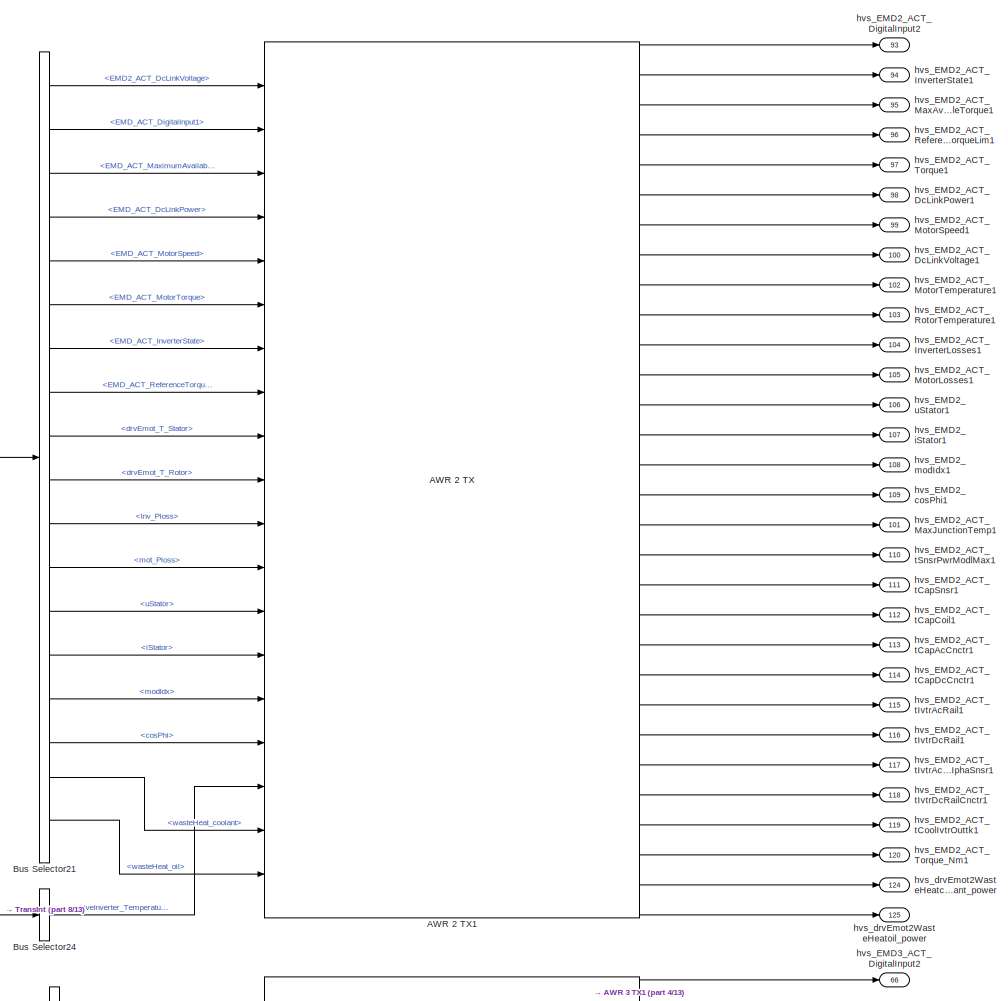
[diagram: PTI_DriveEmot_Bosch_10ms - part 1/13, top right region]
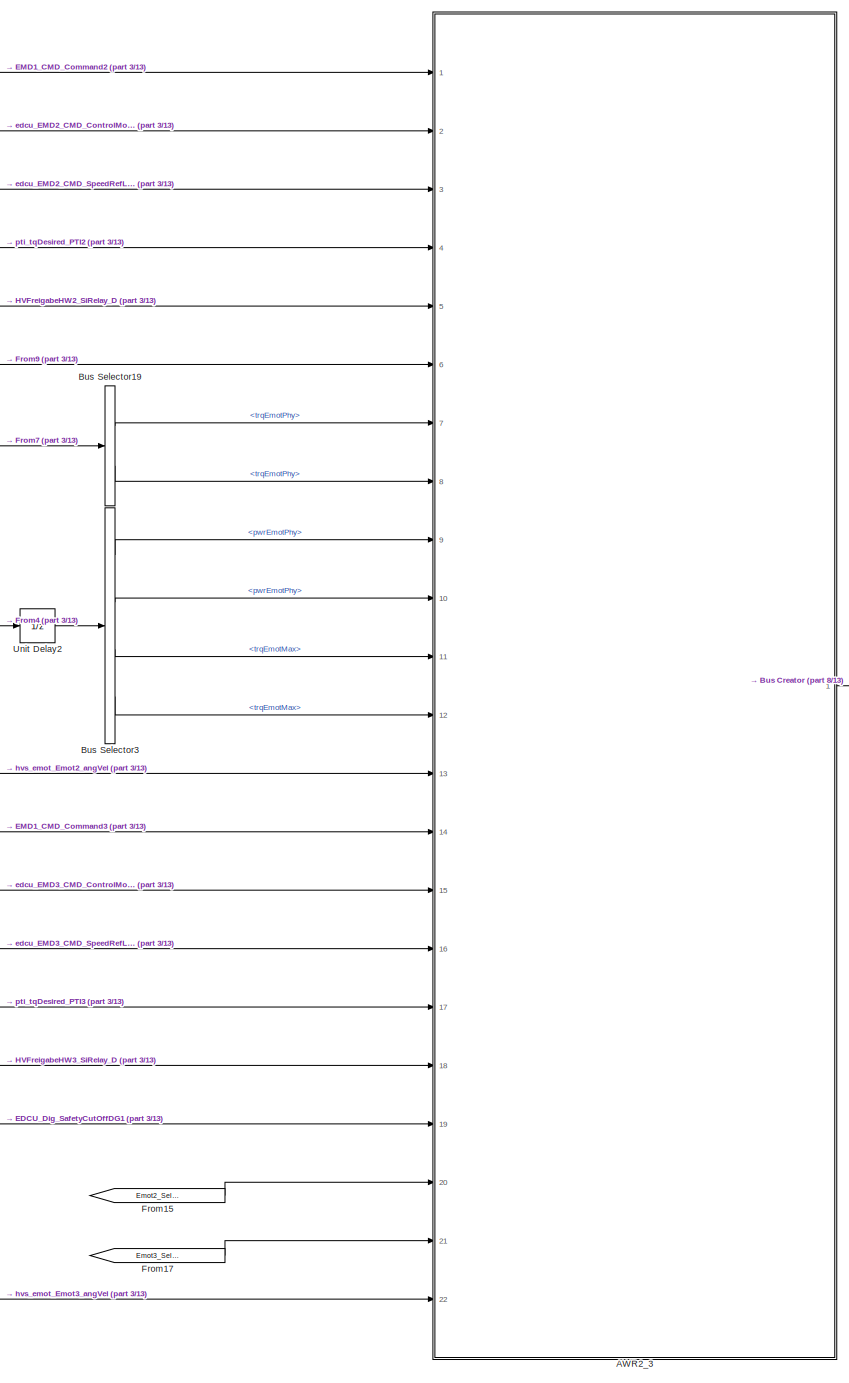
[diagram: PTI_DriveEmot_Bosch_10ms - part 2/13, top center region]
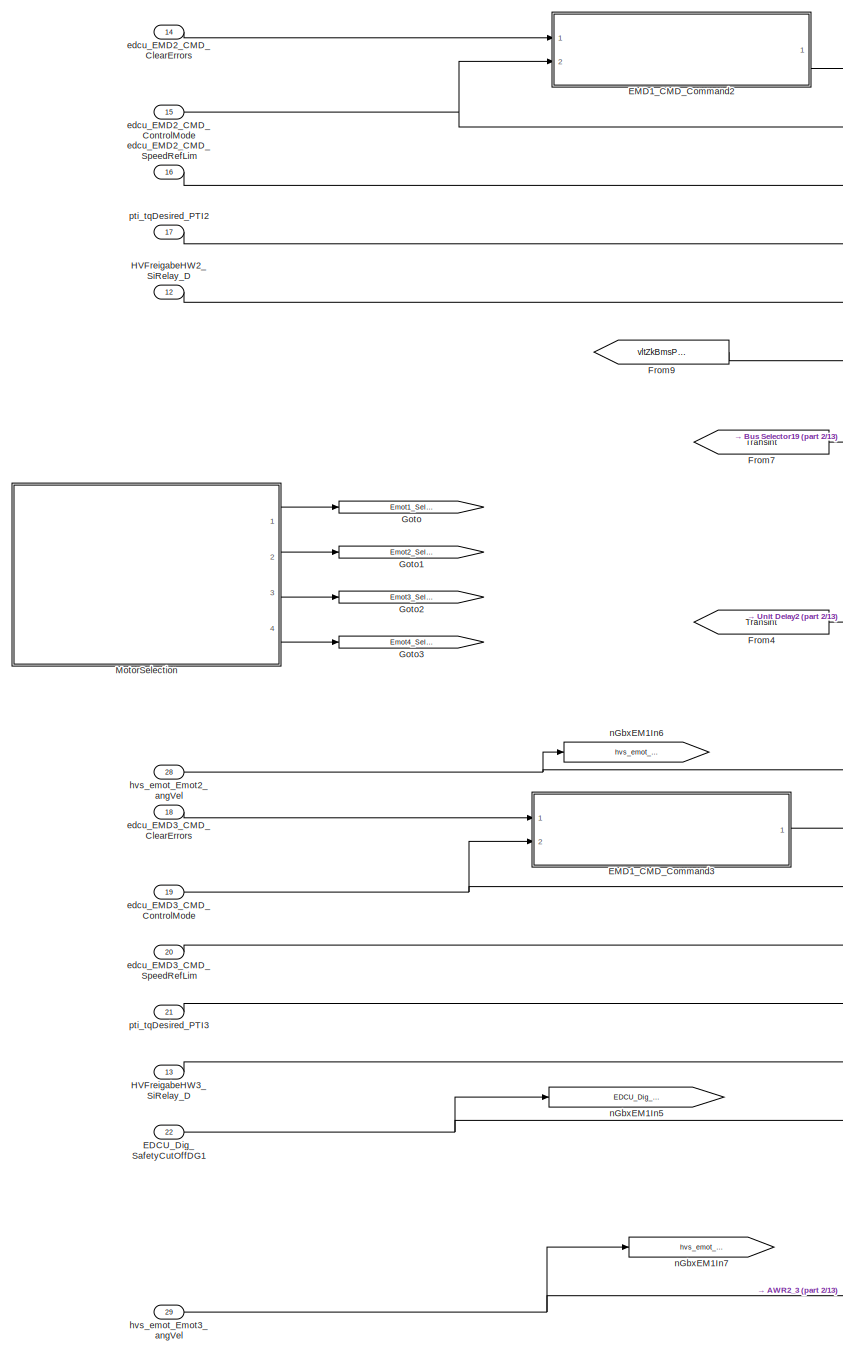
[diagram: PTI_DriveEmot_Bosch_10ms - part 3/13, top left region]
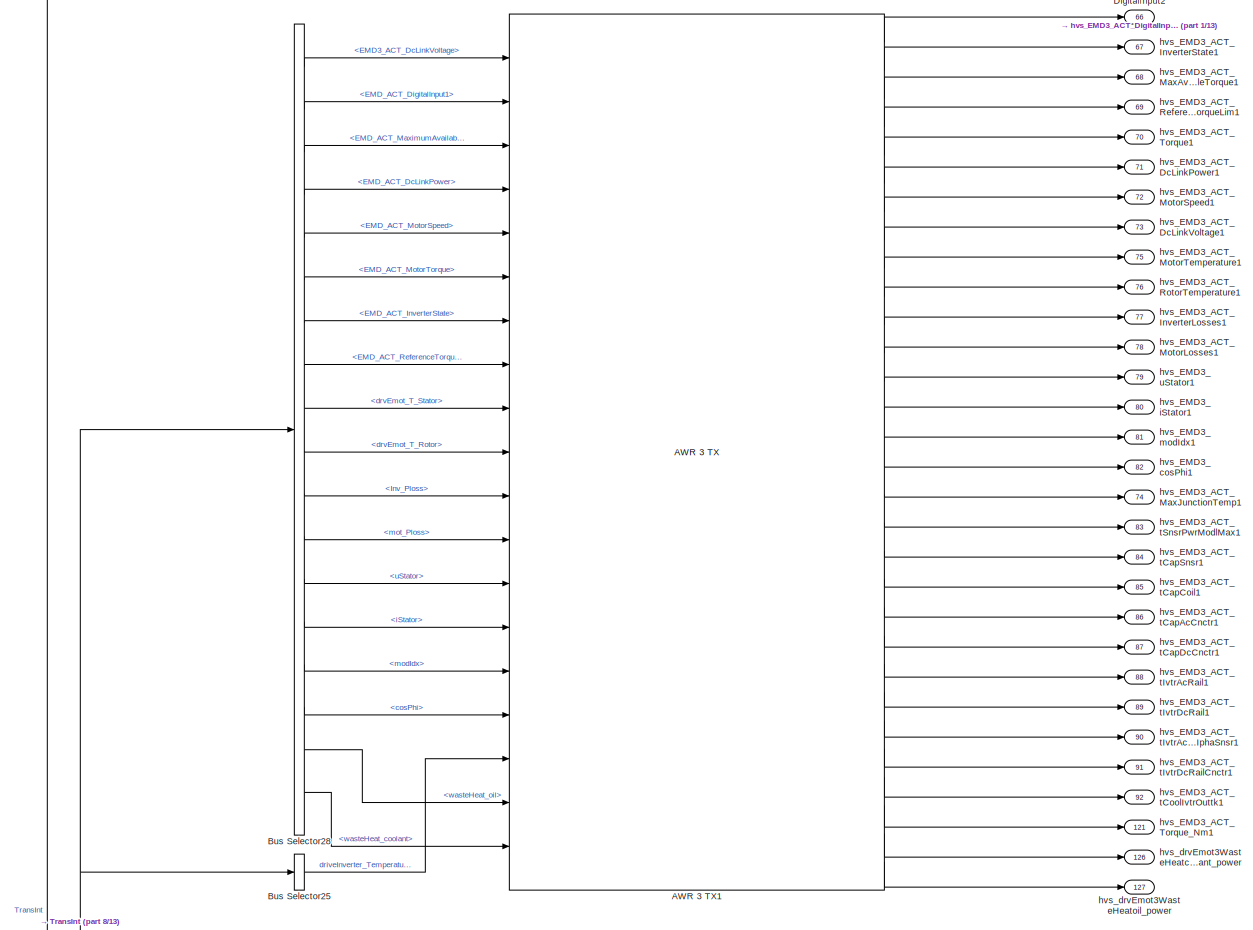
[diagram: PTI_DriveEmot_Bosch_10ms - part 4/13, middle right region]
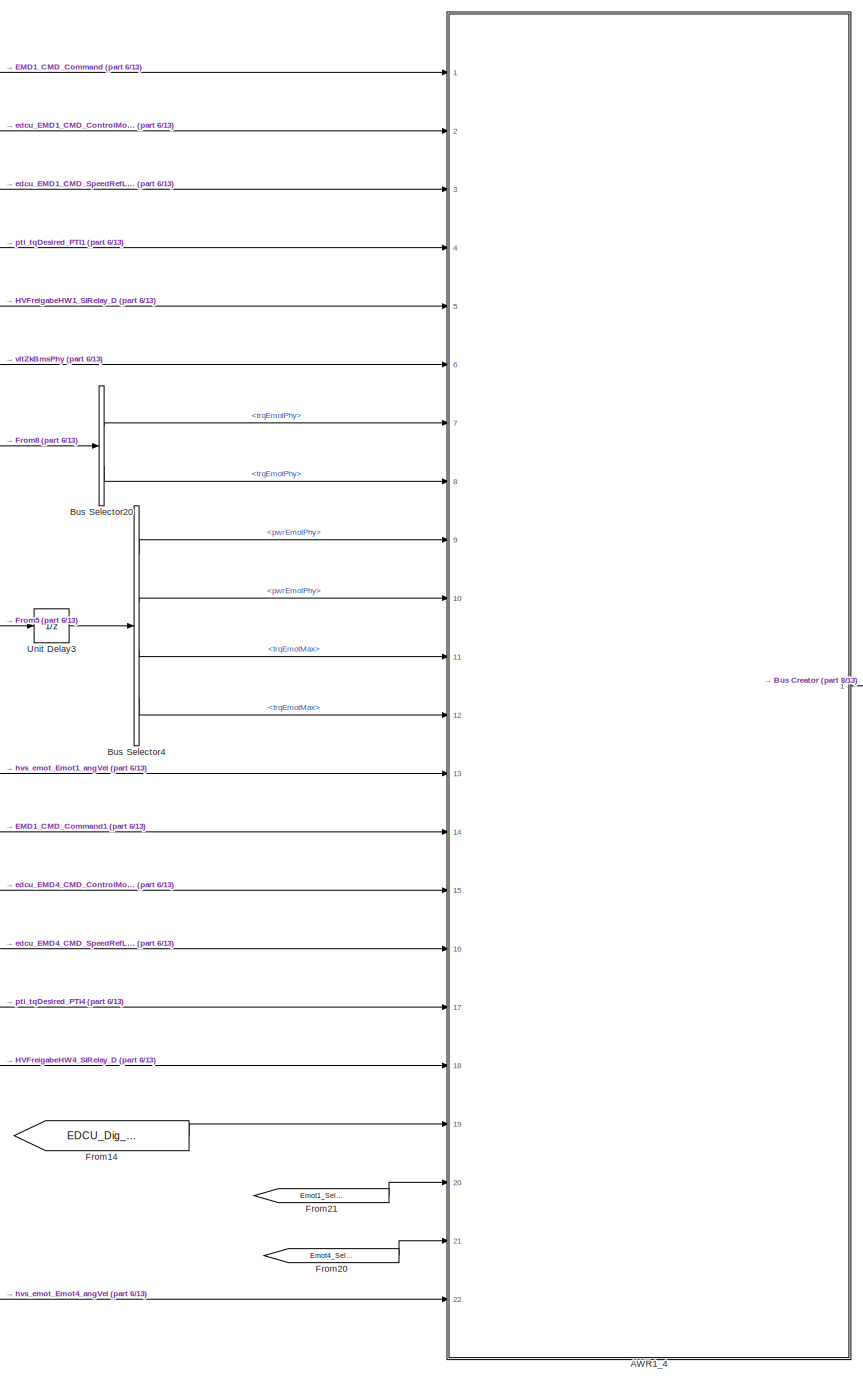
[diagram: PTI_DriveEmot_Bosch_10ms - part 5/13, central region]
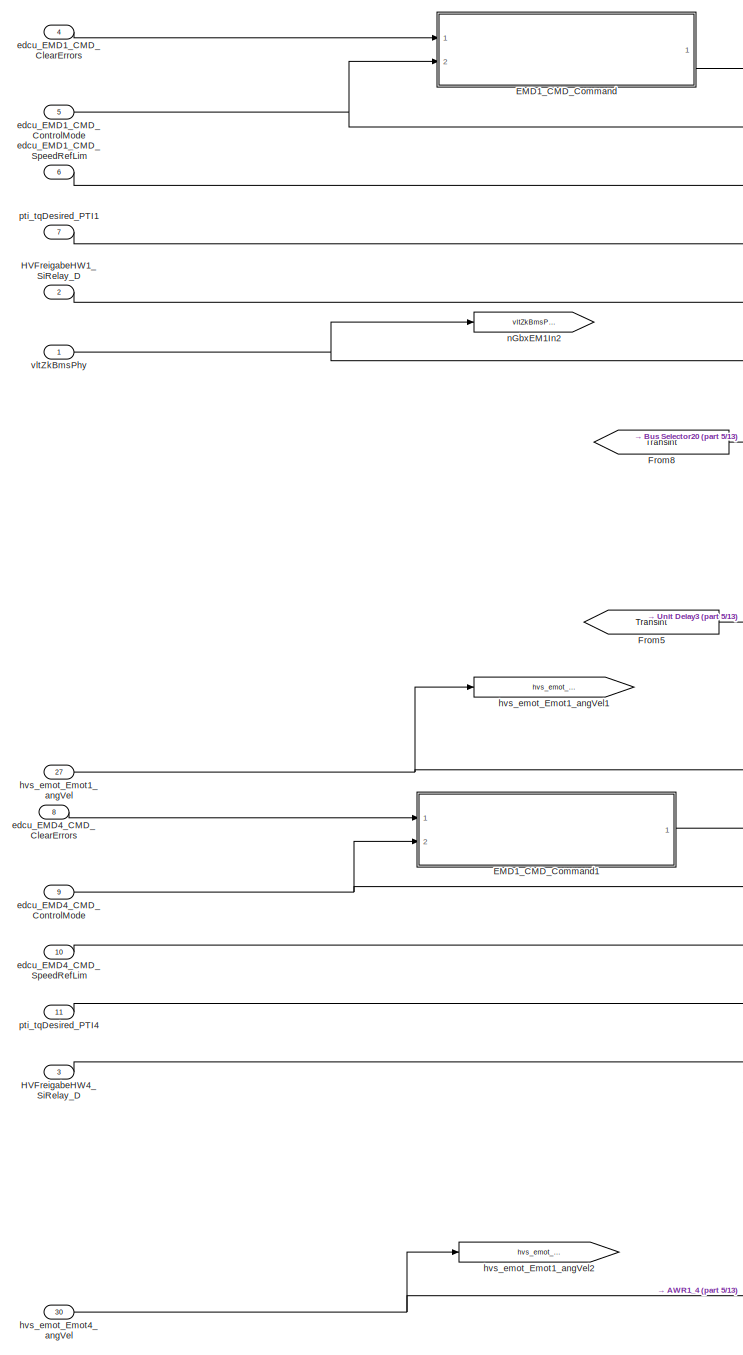
[diagram: PTI_DriveEmot_Bosch_10ms - part 6/13, middle left region]
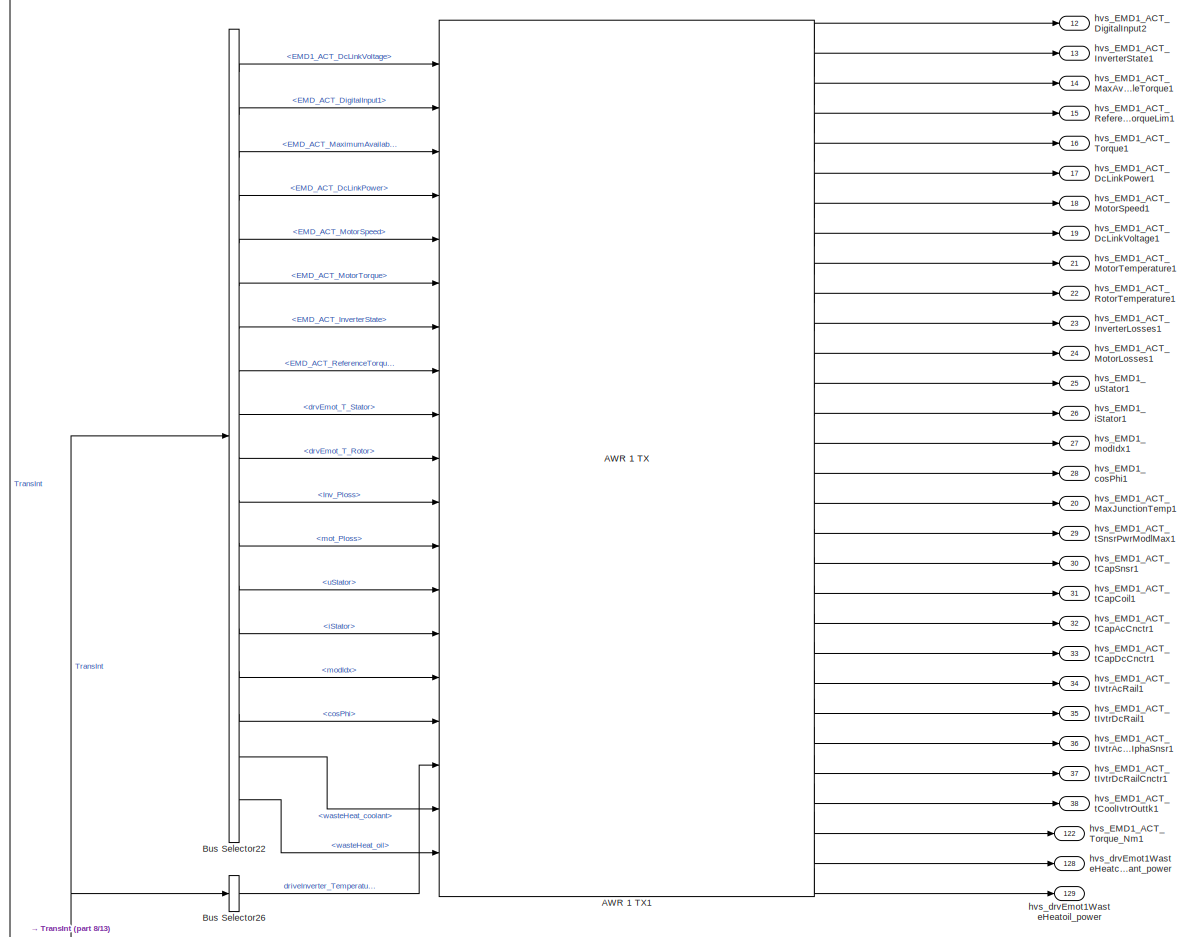
[diagram: PTI_DriveEmot_Bosch_10ms - part 7/13, middle right region]
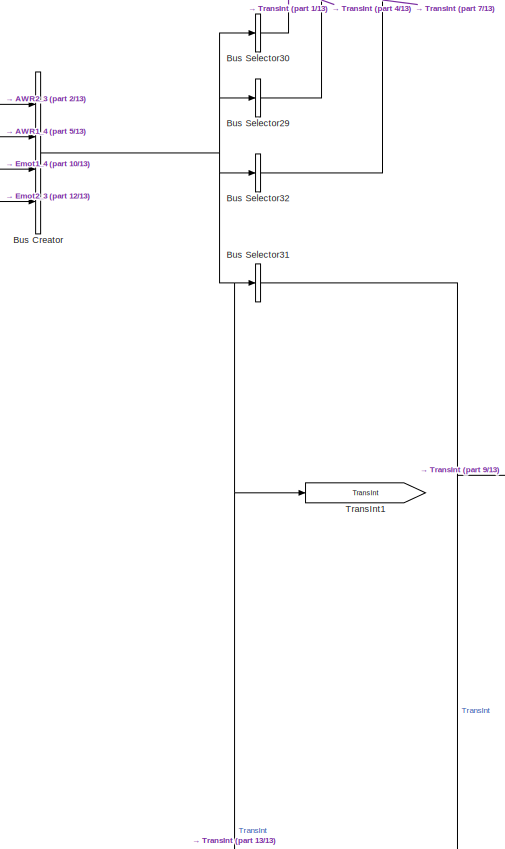
[diagram: PTI_DriveEmot_Bosch_10ms - part 8/13, bottom center region]
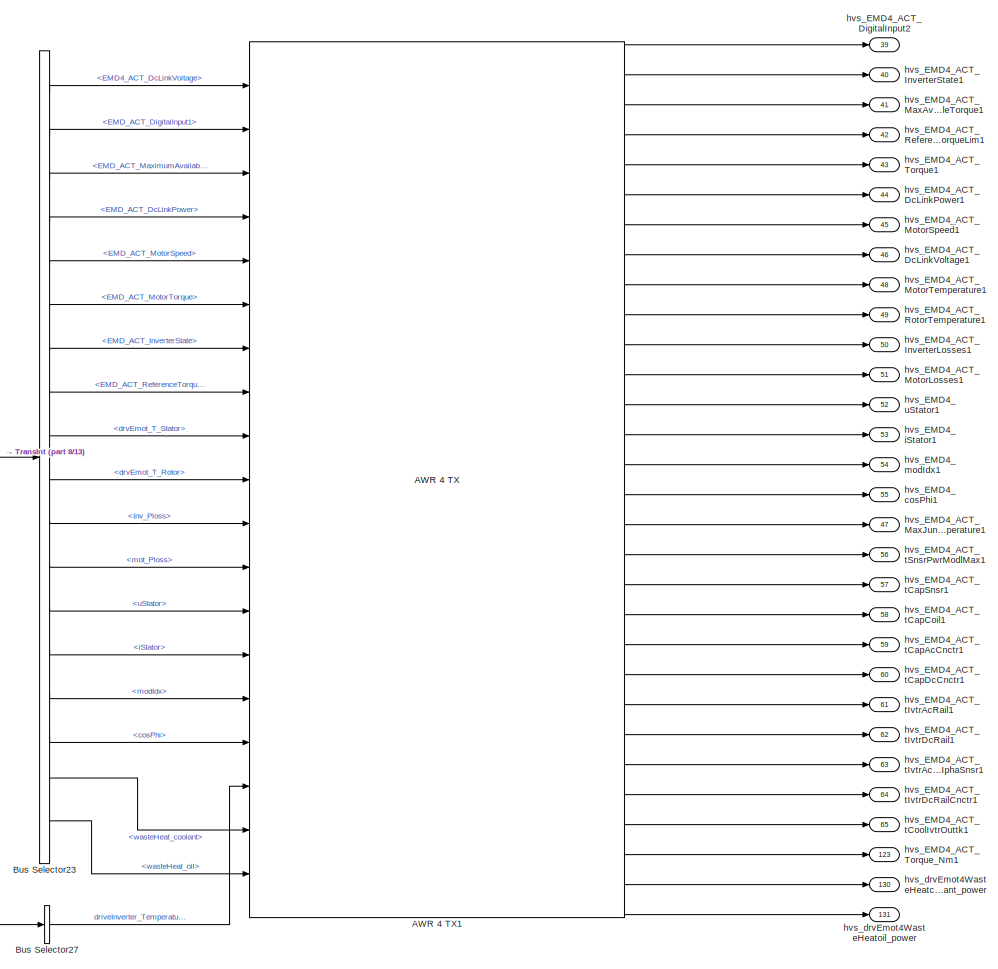
[diagram: PTI_DriveEmot_Bosch_10ms - part 9/13, bottom right region]
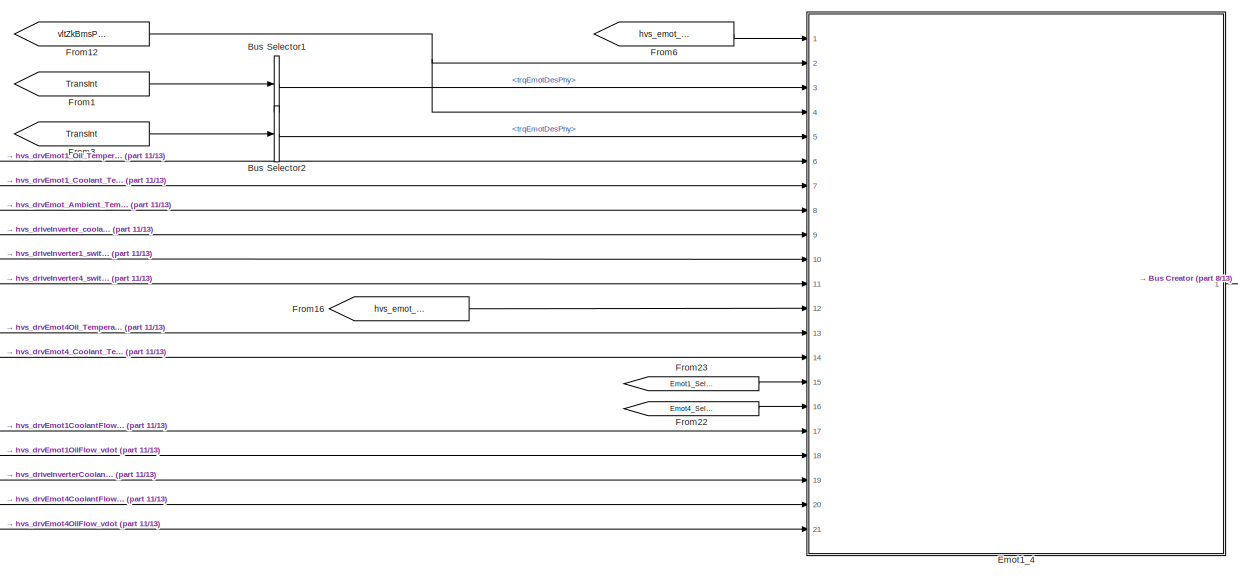
[diagram: PTI_DriveEmot_Bosch_10ms - part 10/13, bottom left region]
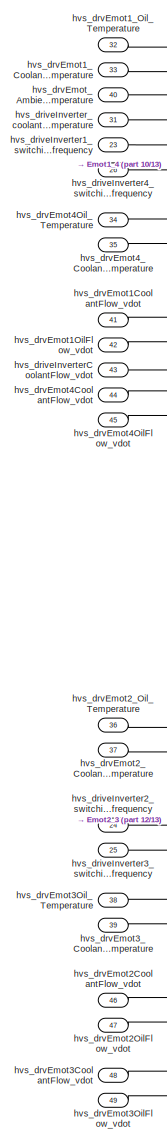
[diagram: PTI_DriveEmot_Bosch_10ms - part 11/13, bottom left region]
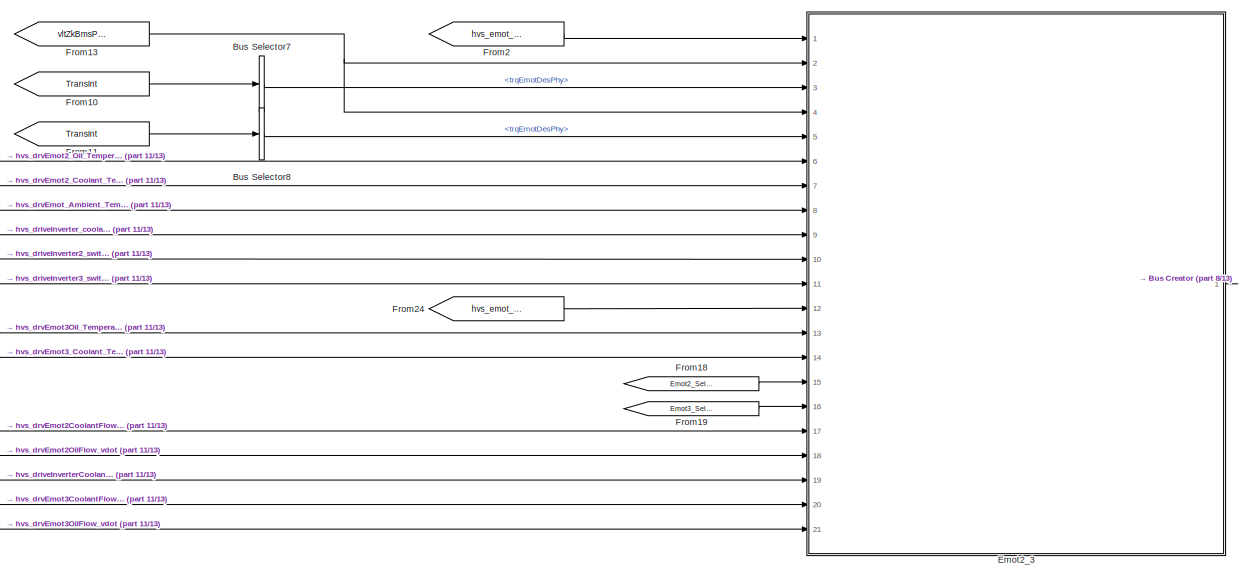
[diagram: PTI_DriveEmot_Bosch_10ms - part 12/13, bottom left region]
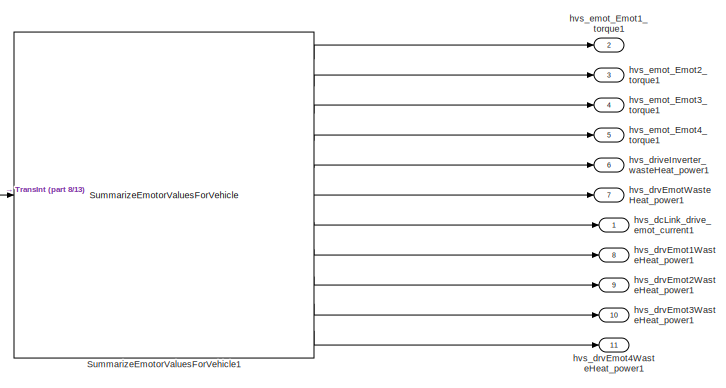
[diagram: PTI_DriveEmot_Bosch_10ms - part 13/13, bottom right region]
BLOCK [SubSystem] PTI_DriveEmot_Bosch_10ms
  Ports = [49, 131]
  RequestExecContextInheritance = off
  SystemSampleTime = 0.01
  TreatAsAtomicUnit = on
  Variant = off
BLOCK [Reference] PTI_DriveEmot_Bosch_10ms/AWR 1 TX1  REF=Enrg_conv_El_to_Mec_Bosch/PTI_DriveEmot_Bosch/AWR 1 TX
  Ports = [19, 30]
  SourceBlock = Enrg_conv_El_to_Mec_Bosch/PTI_DriveEmot_Bosch/AWR 1 TX
  SourceType = SubSystem
BLOCK [Reference] PTI_DriveEmot_Bosch_10ms/AWR 2 TX1  REF=Enrg_conv_El_to_Mec_Bosch/PTI_DriveEmot_Bosch/AWR 2 TX
  Ports = [19, 30]
  SourceBlock = Enrg_conv_El_to_Mec_Bosch/PTI_DriveEmot_Bosch/AWR 2 TX
  SourceType = SubSystem
BLOCK [Reference] PTI_DriveEmot_Bosch_10ms/AWR 3 TX1  REF=Enrg_conv_El_to_Mec_Bosch/PTI_DriveEmot_Bosch/AWR 3 TX
  Ports = [19, 30]
  SourceBlock = Enrg_conv_El_to_Mec_Bosch/PTI_DriveEmot_Bosch/AWR 3 TX
  SourceType = SubSystem
BLOCK [Reference] PTI_DriveEmot_Bosch_10ms/AWR 4 TX1  REF=Enrg_conv_El_to_Mec_Bosch/PTI_DriveEmot_Bosch/AWR 4 TX
  Ports = [19, 30]
  SourceBlock = Enrg_conv_El_to_Mec_Bosch/PTI_DriveEmot_Bosch/AWR 4 TX
  SourceType = SubSystem
BLOCK [SubSystem] PTI_DriveEmot_Bosch_10ms/AWR1_4
  Ports = [22, 1]
  RequestExecContextInheritance = off
  Variant = off
BLOCK [BusCreator] PTI_DriveEmot_Bosch_10ms/AWR1_4/Bus Creator3
  DisplayOption = bar
  InheritFromInputs = on
  Inputs = 11
  Ports = [11, 1]
BLOCK [BusCreator] PTI_DriveEmot_Bosch_10ms/AWR1_4/Bus Creator4
  DisplayOption = bar
  InheritFromInputs = on
  Inputs = 2
  Ports = [2, 1]
BLOCK [BusCreator] PTI_DriveEmot_Bosch_10ms/AWR1_4/Bus Creator5
  DisplayOption = bar
  InheritFromInputs = on
  Inputs = 11
  Ports = [11, 1]
BLOCK [Inport] PTI_DriveEmot_Bosch_10ms/AWR1_4/EDCU_Dig_SafetyCutOffDG1
  IconDisplay = Port number
  Port = 19
BLOCK [Inport] PTI_DriveEmot_Bosch_10ms/AWR1_4/EMD1_CMD_Commamd
  IconDisplay = Port number
BLOCK [Inport] PTI_DriveEmot_Bosch_10ms/AWR1_4/EMD1_CMD_MotorControlMode
  IconDisplay = Port number
  Port = 2
BLOCK [Inport] PTI_DriveEmot_Bosch_10ms/AWR1_4/EMD1_CMD_SpeedRefLim
  IconDisplay = Port number
  Port = 3
BLOCK [Inport] PTI_DriveEmot_Bosch_10ms/AWR1_4/EMD1_CMD_TorqueRefLim
  IconDisplay = Port number
  Port = 4
BLOCK [Inport] PTI_DriveEmot_Bosch_10ms/AWR1_4/EMD4_CMD_Commamd
  IconDisplay = Port number
  Port = 14
BLOCK [Inport] PTI_DriveEmot_Bosch_10ms/AWR1_4/EMD4_CMD_MotorControlMode
  IconDisplay = Port number
  Port = 15
BLOCK [Inport] PTI_DriveEmot_Bosch_10ms/AWR1_4/EMD4_CMD_SpeedRefLim
  IconDisplay = Port number
  Port = 16
BLOCK [Inport] PTI_DriveEmot_Bosch_10ms/AWR1_4/EMD4_CMD_TorqueRefLim
  IconDisplay = Port number
  Port = 17
BLOCK [Inport] PTI_DriveEmot_Bosch_10ms/AWR1_4/Emot1_Selection
  IconDisplay = Port number
  Port = 20
BLOCK [Inport] PTI_DriveEmot_Bosch_10ms/AWR1_4/Emot4_Selection
  IconDisplay = Port number
  Port = 21
BLOCK [From] PTI_DriveEmot_Bosch_10ms/AWR1_4/From5
  GotoTag = EDCU_Dig_SafetyCutOffDG1
BLOCK [From] PTI_DriveEmot_Bosch_10ms/AWR1_4/From6
  GotoTag = vltZkBmsPhy
BLOCK [Gain] PTI_DriveEmot_Bosch_10ms/AWR1_4/Gain
  OutDataTypeStr = Inherit: Inherit via internal rule
  ParamDataTypeStr = Inherit: Inherit via internal rule
  SaturateOnIntegerOverflow = off
BLOCK [Gain] PTI_DriveEmot_Bosch_10ms/AWR1_4/Gain1
  OutDataTypeStr = Inherit: Inherit via internal rule
  ParamDataTypeStr = Inherit: Inherit via internal rule
  SaturateOnIntegerOverflow = off
BLOCK [Inport] PTI_DriveEmot_Bosch_10ms/AWR1_4/HVFreigabeHW4_SiRelay_D
  IconDisplay = Port number
  Port = 18
BLOCK [Inport] PTI_DriveEmot_Bosch_10ms/AWR1_4/HVFreigabeHW_SiRelay_D
  IconDisplay = Port number
  Port = 5
BLOCK [Switch] PTI_DriveEmot_Bosch_10ms/AWR1_4/Switch1
  InputSameDT = off
  SaturateOnIntegerOverflow = off
  Threshold = 0.5
BLOCK [Switch] PTI_DriveEmot_Bosch_10ms/AWR1_4/Switch2
  InputSameDT = off
  SaturateOnIntegerOverflow = off
  Threshold = 0.5
BLOCK [SubSystem] PTI_DriveEmot_Bosch_10ms/AWR1_4/ZeroWhenNotReady1
  Ports = [0, 1]
  RequestExecContextInheritance = off
  TreatAsAtomicUnit = on
  Variant = off
BLOCK [BusCreator] PTI_DriveEmot_Bosch_10ms/AWR1_4/ZeroWhenNotReady1/Bus Creator4
  DisplayOption = bar
  InheritFromInputs = on
  Inputs = 11
  Ports = [11, 1]
BLOCK [Outport] PTI_DriveEmot_Bosch_10ms/AWR1_4/ZeroWhenNotReady1/Out1
  IconDisplay = Port number
BLOCK [Constant] PTI_DriveEmot_Bosch_10ms/AWR1_4/ZeroWhenNotReady1/zero_EMD1_ACT_DcLinkPower
  Value = 0
BLOCK [Constant] PTI_DriveEmot_Bosch_10ms/AWR1_4/ZeroWhenNotReady1/zero_EMD1_ACT_DcLinkVoltage
  Value = 0
BLOCK [Constant] PTI_DriveEmot_Bosch_10ms/AWR1_4/ZeroWhenNotReady1/zero_EMD1_ACT_DigitalInput1
  Value = 0
BLOCK [Constant] PTI_DriveEmot_Bosch_10ms/AWR1_4/ZeroWhenNotReady1/zero_EMD1_ACT_InverterState
  Value = 0
BLOCK [Constant] PTI_DriveEmot_Bosch_10ms/AWR1_4/ZeroWhenNotReady1/zero_EMD1_ACT_MaxJunctionTemperature
  Value = 0
BLOCK [Constant] PTI_DriveEmot_Bosch_10ms/AWR1_4/ZeroWhenNotReady1/zero_EMD1_ACT_MaximumAvailableTorque
  Value = 0
BLOCK [Constant] PTI_DriveEmot_Bosch_10ms/AWR1_4/ZeroWhenNotReady1/zero_EMD1_ACT_MotorSpeed
  Value = 0
BLOCK [Constant] PTI_DriveEmot_Bosch_10ms/AWR1_4/ZeroWhenNotReady1/zero_EMD1_ACT_MotorTemperature
  Value = 0
BLOCK [Constant] PTI_DriveEmot_Bosch_10ms/AWR1_4/ZeroWhenNotReady1/zero_EMD1_ACT_MotorTorque
  Value = 0
BLOCK [Constant] PTI_DriveEmot_Bosch_10ms/AWR1_4/ZeroWhenNotReady1/zero_EMD1_ACT_ReferenceTorqueLimited
  Value = 0
BLOCK [Constant] PTI_DriveEmot_Bosch_10ms/AWR1_4/ZeroWhenNotReady1/zero_trqEmot1DesPhy
  Value = 0
BLOCK [SubSystem] PTI_DriveEmot_Bosch_10ms/AWR1_4/ZeroWhenNotReady2
  Ports = [0, 1]
  RequestExecContextInheritance = off
  TreatAsAtomicUnit = on
  Variant = off
BLOCK [BusCreator] PTI_DriveEmot_Bosch_10ms/AWR1_4/ZeroWhenNotReady2/Bus Creator4
  DisplayOption = bar
  InheritFromInputs = on
  Inputs = 11
  Ports = [11, 1]
BLOCK [Outport] PTI_DriveEmot_Bosch_10ms/AWR1_4/ZeroWhenNotReady2/Out1
  IconDisplay = Port number
BLOCK [Constant] PTI_DriveEmot_Bosch_10ms/AWR1_4/ZeroWhenNotReady2/zero_EMD4_ACT_DcLinkPower
  Value = 0
BLOCK [Constant] PTI_DriveEmot_Bosch_10ms/AWR1_4/ZeroWhenNotReady2/zero_EMD4_ACT_DcLinkVoltage
  Value = 0
BLOCK [Constant] PTI_DriveEmot_Bosch_10ms/AWR1_4/ZeroWhenNotReady2/zero_EMD4_ACT_DigitalInput1
  Value = 0
BLOCK [Constant] PTI_DriveEmot_Bosch_10ms/AWR1_4/ZeroWhenNotReady2/zero_EMD4_ACT_InverterState
  Value = 0
BLOCK [Constant] PTI_DriveEmot_Bosch_10ms/AWR1_4/ZeroWhenNotReady2/zero_EMD4_ACT_MaxJunctionTemperature
  Value = 0
BLOCK [Constant] PTI_DriveEmot_Bosch_10ms/AWR1_4/ZeroWhenNotReady2/zero_EMD4_ACT_MaximumAvailableTorque
  Value = 0
BLOCK [Constant] PTI_DriveEmot_Bosch_10ms/AWR1_4/ZeroWhenNotReady2/zero_EMD4_ACT_MotorSpeed
  Value = 0
BLOCK [Constant] PTI_DriveEmot_Bosch_10ms/AWR1_4/ZeroWhenNotReady2/zero_EMD4_ACT_MotorTemperature
  Value = 0
BLOCK [Constant] PTI_DriveEmot_Bosch_10ms/AWR1_4/ZeroWhenNotReady2/zero_EMD4_ACT_MotorTorque
  Value = 0
BLOCK [Constant] PTI_DriveEmot_Bosch_10ms/AWR1_4/ZeroWhenNotReady2/zero_EMD4_ACT_ReferenceTorqueLimited
  Value = 0
BLOCK [Constant] PTI_DriveEmot_Bosch_10ms/AWR1_4/ZeroWhenNotReady2/zero_trqEmot1DesPhy
  Value = 0
BLOCK [Reference] PTI_DriveEmot_Bosch_10ms/AWR1_4/awr1  REF=Electrical_converter/awr
  Ports = [11, 12, 1]
  SourceBlock = Electrical_converter/awr
  SourceType = MapModule
BLOCK [Outport] PTI_DriveEmot_Bosch_10ms/AWR1_4/awr1_4B
  IconDisplay = Port number
BLOCK [Reference] PTI_DriveEmot_Bosch_10ms/AWR1_4/awr4  REF=Electrical_converter/awr
  Ports = [11, 12, 1]
  SourceBlock = Electrical_converter/awr
  SourceType = MapModule
BLOCK [Inport] PTI_DriveEmot_Bosch_10ms/AWR1_4/hvs_emot_Emot1_angVel
  IconDisplay = Port number
  Port = 13
BLOCK [Inport] PTI_DriveEmot_Bosch_10ms/AWR1_4/hvs_emot_Emot4_angVel
  IconDisplay = Port number
  Port = 22
BLOCK [Goto] PTI_DriveEmot_Bosch_10ms/AWR1_4/nGbxEM1In4
  GotoTag = vltZkBmsPhy
BLOCK [Goto] PTI_DriveEmot_Bosch_10ms/AWR1_4/nGbxEM1In6
  GotoTag = EDCU_Dig_SafetyCutOffDG1
BLOCK [Inport] PTI_DriveEmot_Bosch_10ms/AWR1_4/pwEmot1Phy
  IconDisplay = Port number
  Port = 9
BLOCK [Inport] PTI_DriveEmot_Bosch_10ms/AWR1_4/pwEmot4Phy
  IconDisplay = Port number
  Port = 10
BLOCK [Inport] PTI_DriveEmot_Bosch_10ms/AWR1_4/trqEmot1Max
  IconDisplay = Port number
  Port = 11
BLOCK [Inport] PTI_DriveEmot_Bosch_10ms/AWR1_4/trqEmot1Phy
  IconDisplay = Port number
  Port = 7
BLOCK [Inport] PTI_DriveEmot_Bosch_10ms/AWR1_4/trqEmot4Max
  IconDisplay = Port number
  Port = 12
BLOCK [Inport] PTI_DriveEmot_Bosch_10ms/AWR1_4/trqEmot4Phy
  IconDisplay = Port number
  Port = 8
BLOCK [Inport] PTI_DriveEmot_Bosch_10ms/AWR1_4/vltZkBmsPhy
  IconDisplay = Port number
  Port = 6
BLOCK [SubSystem] PTI_DriveEmot_Bosch_10ms/AWR2_3
  Ports = [22, 1]
  RequestExecContextInheritance = off
  Variant = off
BLOCK [BusCreator] PTI_DriveEmot_Bosch_10ms/AWR2_3/Bus Creator3
  DisplayOption = bar
  InheritFromInputs = on
  Inputs = 11
  Ports = [11, 1]
BLOCK [BusCreator] PTI_DriveEmot_Bosch_10ms/AWR2_3/Bus Creator4
  DisplayOption = bar
  InheritFromInputs = on
  Inputs = 2
  Ports = [2, 1]
BLOCK [BusCreator] PTI_DriveEmot_Bosch_10ms/AWR2_3/Bus Creator5
  DisplayOption = bar
  InheritFromInputs = on
  Inputs = 11
  Ports = [11, 1]
BLOCK [Inport] PTI_DriveEmot_Bosch_10ms/AWR2_3/EDCU_Dig_SafetyCutOffDG1
  IconDisplay = Port number
  Port = 19
BLOCK [Inport] PTI_DriveEmot_Bosch_10ms/AWR2_3/EMD2_CMD_Commamd
  IconDisplay = Port number
BLOCK [Inport] PTI_DriveEmot_Bosch_10ms/AWR2_3/EMD2_CMD_MotorControlMode
  IconDisplay = Port number
  Port = 2
BLOCK [Inport] PTI_DriveEmot_Bosch_10ms/AWR2_3/EMD2_CMD_SpeedRefLim
  IconDisplay = Port number
  Port = 3
BLOCK [Inport] PTI_DriveEmot_Bosch_10ms/AWR2_3/EMD2_CMD_TorqueRefLim
  IconDisplay = Port number
  Port = 4
BLOCK [Inport] PTI_DriveEmot_Bosch_10ms/AWR2_3/EMD3_CMD_Commamd
  IconDisplay = Port number
  Port = 14
BLOCK [Inport] PTI_DriveEmot_Bosch_10ms/AWR2_3/EMD3_CMD_MotorControlMode
  IconDisplay = Port number
  Port = 15
BLOCK [Inport] PTI_DriveEmot_Bosch_10ms/AWR2_3/EMD3_CMD_SpeedRefLim
  IconDisplay = Port number
  Port = 16
BLOCK [Inport] PTI_DriveEmot_Bosch_10ms/AWR2_3/EMD3_CMD_TorqueRefLim
  IconDisplay = Port number
  Port = 17
BLOCK [Inport] PTI_DriveEmot_Bosch_10ms/AWR2_3/Emot2_Selection
  IconDisplay = Port number
  Port = 20
BLOCK [Inport] PTI_DriveEmot_Bosch_10ms/AWR2_3/Emot3_Selection
  IconDisplay = Port number
  Port = 21
BLOCK [From] PTI_DriveEmot_Bosch_10ms/AWR2_3/From5
  GotoTag = EDCU_Dig_SafetyCutOffDG1
BLOCK [From] PTI_DriveEmot_Bosch_10ms/AWR2_3/From6
  GotoTag = vltZkBmsPhy
BLOCK [Gain] PTI_DriveEmot_Bosch_10ms/AWR2_3/Gain
  OutDataTypeStr = Inherit: Inherit via internal rule
  ParamDataTypeStr = Inherit: Inherit via internal rule
  SaturateOnIntegerOverflow = off
BLOCK [Gain] PTI_DriveEmot_Bosch_10ms/AWR2_3/Gain1
  OutDataTypeStr = Inherit: Inherit via internal rule
  ParamDataTypeStr = Inherit: Inherit via internal rule
  SaturateOnIntegerOverflow = off
BLOCK [Inport] PTI_DriveEmot_Bosch_10ms/AWR2_3/HVFreigabeHW2_SiRelay_D
  IconDisplay = Port number
  Port = 5
BLOCK [Inport] PTI_DriveEmot_Bosch_10ms/AWR2_3/HVFreigabeHW3_SiRelay_D
  IconDisplay = Port number
  Port = 18
BLOCK [Switch] PTI_DriveEmot_Bosch_10ms/AWR2_3/Switch1
  InputSameDT = off
  SaturateOnIntegerOverflow = off
  Threshold = 0.5
BLOCK [Switch] PTI_DriveEmot_Bosch_10ms/AWR2_3/Switch2
  InputSameDT = off
  SaturateOnIntegerOverflow = off
  Threshold = 0.5
BLOCK [SubSystem] PTI_DriveEmot_Bosch_10ms/AWR2_3/ZeroWhenNotReady1
  Ports = [0, 1]
  RequestExecContextInheritance = off
  TreatAsAtomicUnit = on
  Variant = off
BLOCK [BusCreator] PTI_DriveEmot_Bosch_10ms/AWR2_3/ZeroWhenNotReady1/Bus Creator4
  DisplayOption = bar
  InheritFromInputs = on
  Inputs = 11
  Ports = [11, 1]
BLOCK [Outport] PTI_DriveEmot_Bosch_10ms/AWR2_3/ZeroWhenNotReady1/Out1
  IconDisplay = Port number
BLOCK [Constant] PTI_DriveEmot_Bosch_10ms/AWR2_3/ZeroWhenNotReady1/zero_EMD1_ACT_DcLinkPower
  Value = 0
BLOCK [Constant] PTI_DriveEmot_Bosch_10ms/AWR2_3/ZeroWhenNotReady1/zero_EMD1_ACT_DigitalInput1
  Value = 0
BLOCK [Constant] PTI_DriveEmot_Bosch_10ms/AWR2_3/ZeroWhenNotReady1/zero_EMD1_ACT_InverterState
  Value = 0
BLOCK [Constant] PTI_DriveEmot_Bosch_10ms/AWR2_3/ZeroWhenNotReady1/zero_EMD1_ACT_MaxJunctionTemperature
  Value = 0
BLOCK [Constant] PTI_DriveEmot_Bosch_10ms/AWR2_3/ZeroWhenNotReady1/zero_EMD1_ACT_MaximumAvailableTorque
  Value = 0
BLOCK [Constant] PTI_DriveEmot_Bosch_10ms/AWR2_3/ZeroWhenNotReady1/zero_EMD1_ACT_MotorSpeed
  Value = 0
BLOCK [Constant] PTI_DriveEmot_Bosch_10ms/AWR2_3/ZeroWhenNotReady1/zero_EMD1_ACT_MotorTemperature
  Value = 0
BLOCK [Constant] PTI_DriveEmot_Bosch_10ms/AWR2_3/ZeroWhenNotReady1/zero_EMD1_ACT_MotorTorque
  Value = 0
BLOCK [Constant] PTI_DriveEmot_Bosch_10ms/AWR2_3/ZeroWhenNotReady1/zero_EMD1_ACT_ReferenceTorqueLimited
  Value = 0
BLOCK [Constant] PTI_DriveEmot_Bosch_10ms/AWR2_3/ZeroWhenNotReady1/zero_EMD2_ACT_DcLinkVoltage
  Value = 0
BLOCK [Constant] PTI_DriveEmot_Bosch_10ms/AWR2_3/ZeroWhenNotReady1/zero_trqEmot1DesPhy
  Value = 0
BLOCK [SubSystem] PTI_DriveEmot_Bosch_10ms/AWR2_3/ZeroWhenNotReady2
  Ports = [0, 1]
  RequestExecContextInheritance = off
  TreatAsAtomicUnit = on
  Variant = off
BLOCK [BusCreator] PTI_DriveEmot_Bosch_10ms/AWR2_3/ZeroWhenNotReady2/Bus Creator4
  DisplayOption = bar
  InheritFromInputs = on
  Inputs = 11
  Ports = [11, 1]
BLOCK [Outport] PTI_DriveEmot_Bosch_10ms/AWR2_3/ZeroWhenNotReady2/Out1
  IconDisplay = Port number
BLOCK [Constant] PTI_DriveEmot_Bosch_10ms/AWR2_3/ZeroWhenNotReady2/zero_EMD3_ACT_DcLinkVoltage
  Value = 0
BLOCK [Constant] PTI_DriveEmot_Bosch_10ms/AWR2_3/ZeroWhenNotReady2/zero_EMD4_ACT_DcLinkPower
  Value = 0
BLOCK [Constant] PTI_DriveEmot_Bosch_10ms/AWR2_3/ZeroWhenNotReady2/zero_EMD4_ACT_DigitalInput1
  Value = 0
BLOCK [Constant] PTI_DriveEmot_Bosch_10ms/AWR2_3/ZeroWhenNotReady2/zero_EMD4_ACT_InverterState
  Value = 0
BLOCK [Constant] PTI_DriveEmot_Bosch_10ms/AWR2_3/ZeroWhenNotReady2/zero_EMD4_ACT_MaxJunctionTemperature
  Value = 0
BLOCK [Constant] PTI_DriveEmot_Bosch_10ms/AWR2_3/ZeroWhenNotReady2/zero_EMD4_ACT_MaximumAvailableTorque
  Value = 0
BLOCK [Constant] PTI_DriveEmot_Bosch_10ms/AWR2_3/ZeroWhenNotReady2/zero_EMD4_ACT_MotorSpeed
  Value = 0
BLOCK [Constant] PTI_DriveEmot_Bosch_10ms/AWR2_3/ZeroWhenNotReady2/zero_EMD4_ACT_MotorTemperature
  Value = 0
BLOCK [Constant] PTI_DriveEmot_Bosch_10ms/AWR2_3/ZeroWhenNotReady2/zero_EMD4_ACT_MotorTorque
  Value = 0
BLOCK [Constant] PTI_DriveEmot_Bosch_10ms/AWR2_3/ZeroWhenNotReady2/zero_EMD4_ACT_ReferenceTorqueLimited
  Value = 0
BLOCK [Constant] PTI_DriveEmot_Bosch_10ms/AWR2_3/ZeroWhenNotReady2/zero_trqEmot1DesPhy
  Value = 0
BLOCK [Reference] PTI_DriveEmot_Bosch_10ms/AWR2_3/awr2  REF=Electrical_converter/awr
  Ports = [11, 12, 1]
  SourceBlock = Electrical_converter/awr
  SourceType = MapModule
BLOCK [Outport] PTI_DriveEmot_Bosch_10ms/AWR2_3/awr2_3B
  IconDisplay = Port number
BLOCK [Reference] PTI_DriveEmot_Bosch_10ms/AWR2_3/awr3  REF=Electrical_converter/awr
  Ports = [11, 12, 1]
  SourceBlock = Electrical_converter/awr
  SourceType = MapModule
BLOCK [Inport] PTI_DriveEmot_Bosch_10ms/AWR2_3/hvs_emot_Emot2_angVel
  IconDisplay = Port number
  Port = 13
BLOCK [Inport] PTI_DriveEmot_Bosch_10ms/AWR2_3/hvs_emot_Emot3_angVel
  IconDisplay = Port number
  Port = 22
BLOCK [Goto] PTI_DriveEmot_Bosch_10ms/AWR2_3/nGbxEM1In4
  GotoTag = vltZkBmsPhy
BLOCK [Goto] PTI_DriveEmot_Bosch_10ms/AWR2_3/nGbxEM1In6
  GotoTag = EDCU_Dig_SafetyCutOffDG1
BLOCK [Inport] PTI_DriveEmot_Bosch_10ms/AWR2_3/pwEmot2Phy
  IconDisplay = Port number
  Port = 9
BLOCK [Inport] PTI_DriveEmot_Bosch_10ms/AWR2_3/pwEmot3Phy
  IconDisplay = Port number
  Port = 10
BLOCK [Inport] PTI_DriveEmot_Bosch_10ms/AWR2_3/trqEmot2Max
  IconDisplay = Port number
  Port = 11
BLOCK [Inport] PTI_DriveEmot_Bosch_10ms/AWR2_3/trqEmot2Phy
  IconDisplay = Port number
  Port = 7
BLOCK [Inport] PTI_DriveEmot_Bosch_10ms/AWR2_3/trqEmot3Max
  IconDisplay = Port number
  Port = 12
BLOCK [Inport] PTI_DriveEmot_Bosch_10ms/AWR2_3/trqEmot3Phy
  IconDisplay = Port number
  Port = 8
BLOCK [Inport] PTI_DriveEmot_Bosch_10ms/AWR2_3/vltZkBmsPhy
  IconDisplay = Port number
  Port = 6
BLOCK [BusCreator] PTI_DriveEmot_Bosch_10ms/Bus Creator
  DisplayOption = bar
  InheritFromInputs = on
  Inputs = 4
  Ports = [4, 1]
BLOCK [BusSelector] PTI_DriveEmot_Bosch_10ms/Bus Selector1
  OutputSignals = awr1_4B.awr1B.trqEmotDesPhy
  Ports = [1, 1]
BLOCK [BusSelector] PTI_DriveEmot_Bosch_10ms/Bus Selector19
  OutputSignals = emot2_3B.emot2B.trqEmotPhy,emot2_3B.emot3B.trqEmotPhy
  Ports = [1, 2]
BLOCK [BusSelector] PTI_DriveEmot_Bosch_10ms/Bus Selector2
  OutputSignals = awr1_4B.awr4B.trqEmotDesPhy
  Ports = [1, 1]
BLOCK [BusSelector] PTI_DriveEmot_Bosch_10ms/Bus Selector20
  OutputSignals = emot1_4B.emot1B.trqEmotPhy,emot1_4B.emot4B.trqEmotPhy
  Ports = [1, 2]
BLOCK [BusSelector] PTI_DriveEmot_Bosch_10ms/Bus Selector21
  OutputSignals = EMD2_ACT_DcLinkVoltage,EMD_ACT_DigitalInput1,EMD_ACT_MaximumAvailableTorque,EMD_ACT_DcLinkPower,EMD_ACT_MotorSpeed,EMD_ACT_MotorTorque,EMD_ACT_InverterState,EMD_ACT_ReferenceTorqueLimited,drvEmot_T_Stator,drvEmot_T_Rotor,Inv_Ploss,mot_Ploss,uStator,iStator,modIdx,cosPhi,wasteHeat_coolant,wasteHeat_oil
  Ports = [1, 18]
BLOCK [BusSelector] PTI_DriveEmot_Bosch_10ms/Bus Selector22
  OutputSignals = EMD1_ACT_DcLinkVoltage,EMD_ACT_DigitalInput1,EMD_ACT_MaximumAvailableTorque,EMD_ACT_DcLinkPower,EMD_ACT_MotorSpeed,EMD_ACT_MotorTorque,EMD_ACT_InverterState,EMD_ACT_ReferenceTorqueLimited,drvEmot_T_Stator,drvEmot_T_Rotor,Inv_Ploss,mot_Ploss,uStator,iStator,modIdx,cosPhi,wasteHeat_coolant,wasteHeat_oil
  Ports = [1, 18]
BLOCK [BusSelector] PTI_DriveEmot_Bosch_10ms/Bus Selector23
  OutputSignals = EMD4_ACT_DcLinkVoltage,EMD_ACT_DigitalInput1,EMD_ACT_MaximumAvailableTorque,EMD_ACT_DcLinkPower,EMD_ACT_MotorSpeed,EMD_ACT_MotorTorque,EMD_ACT_InverterState,EMD_ACT_ReferenceTorqueLimited,drvEmot_T_Stator,drvEmot_T_Rotor,Inv_Ploss,mot_Ploss,uStator,iStator,modIdx,cosPhi,wasteHeat_coolant,wasteHeat_oil
  Ports = [1, 18]
BLOCK [BusSelector] PTI_DriveEmot_Bosch_10ms/Bus Selector24
  OutputAsBus = on
  OutputSignals = driveInverter_Temperatures
  Ports = [1, 1]
BLOCK [BusSelector] PTI_DriveEmot_Bosch_10ms/Bus Selector25
  OutputAsBus = on
  OutputSignals = driveInverter_Temperatures
  Ports = [1, 1]
BLOCK [BusSelector] PTI_DriveEmot_Bosch_10ms/Bus Selector26
  OutputAsBus = on
  OutputSignals = driveInverter_Temperatures
  Ports = [1, 1]
BLOCK [BusSelector] PTI_DriveEmot_Bosch_10ms/Bus Selector27
  OutputAsBus = on
  OutputSignals = driveInverter_Temperatures
  Ports = [1, 1]
BLOCK [BusSelector] PTI_DriveEmot_Bosch_10ms/Bus Selector28
  OutputSignals = EMD3_ACT_DcLinkVoltage,EMD_ACT_DigitalInput1,EMD_ACT_MaximumAvailableTorque,EMD_ACT_DcLinkPower,EMD_ACT_MotorSpeed,EMD_ACT_MotorTorque,EMD_ACT_InverterState,EMD_ACT_ReferenceTorqueLimited,drvEmot_T_Stator,drvEmot_T_Rotor,Inv_Ploss,mot_Ploss,uStator,iStator,modIdx,cosPhi,wasteHeat_oil,wasteHeat_coolant
  Ports = [1, 18]
BLOCK [BusSelector] PTI_DriveEmot_Bosch_10ms/Bus Selector29
  OutputAsBus = on
  OutputSignals = awr2_3B.awr3B.EMD3_ACT_DcLinkVoltage,awr2_3B.awr3B.EMD_ACT_DigitalInput1,awr2_3B.awr3B.EMD_ACT_MaximumAvailableTorque,awr2_3B.awr3B.EMD_ACT_DcLinkPower,awr2_3B.awr3B.EMD_ACT_MotorSpeed,awr2_3B.awr3B.EMD_ACT_MotorTorque,awr2_3B.awr3B.EMD_ACT_InverterState,awr2_3B.awr3B.EMD_ACT_ReferenceTorqueLimited,awr2_3B.awr3B.trqEmotDesPhy,emot2_3B.emot3B.driveInverter_Temperatures,emot2_3B.emot3B.drvEmot_T_Sta...<+245ch>
  Ports = [1, 1]
BLOCK [BusSelector] PTI_DriveEmot_Bosch_10ms/Bus Selector3
  OutputSignals = emot2_3B.emot2B.pwrEmotPhy,emot2_3B.emot3B.pwrEmotPhy,emot2_3B.emot2B.trqEmotMax,emot2_3B.emot3B.trqEmotMax
  Ports = [1, 4]
BLOCK [BusSelector] PTI_DriveEmot_Bosch_10ms/Bus Selector30
  OutputAsBus = on
  OutputSignals = awr2_3B.awr2B.EMD2_ACT_DcLinkVoltage,awr2_3B.awr2B.EMD_ACT_DigitalInput1,awr2_3B.awr2B.EMD_ACT_MaximumAvailableTorque,awr2_3B.awr2B.EMD_ACT_DcLinkPower,awr2_3B.awr2B.EMD_ACT_MotorSpeed,awr2_3B.awr2B.EMD_ACT_MotorTorque,awr2_3B.awr2B.EMD_ACT_InverterState,awr2_3B.awr2B.EMD_ACT_ReferenceTorqueLimited,awr2_3B.awr2B.trqEmotDesPhy,emot2_3B.emot2B.driveInverter_Temperatures,emot2_3B.emot2B.drvEmot_T_Sta...<+245ch>
  Ports = [1, 1]
BLOCK [BusSelector] PTI_DriveEmot_Bosch_10ms/Bus Selector31
  OutputAsBus = on
  OutputSignals = awr1_4B.awr4B.EMD4_ACT_DcLinkVoltage,awr1_4B.awr4B.EMD_ACT_DigitalInput1,awr1_4B.awr4B.EMD_ACT_MaximumAvailableTorque,awr1_4B.awr4B.EMD_ACT_DcLinkPower,awr1_4B.awr4B.EMD_ACT_MotorSpeed,awr1_4B.awr4B.EMD_ACT_MotorTorque,awr1_4B.awr4B.EMD_ACT_InverterState,awr1_4B.awr4B.EMD_ACT_ReferenceTorqueLimited,awr1_4B.awr4B.trqEmotDesPhy,emot1_4B.emot4B.driveInverter_Temperatures,emot1_4B.emot4B.drvEmot_T_Sta...<+245ch>
  Ports = [1, 1]
BLOCK [BusSelector] PTI_DriveEmot_Bosch_10ms/Bus Selector32
  OutputAsBus = on
  OutputSignals = awr1_4B.awr1B.EMD1_ACT_DcLinkVoltage,awr1_4B.awr1B.EMD_ACT_DigitalInput1,awr1_4B.awr1B.EMD_ACT_MaximumAvailableTorque,awr1_4B.awr1B.EMD_ACT_DcLinkPower,awr1_4B.awr1B.EMD_ACT_MotorSpeed,awr1_4B.awr1B.EMD_ACT_MotorTorque,awr1_4B.awr1B.EMD_ACT_InverterState,awr1_4B.awr1B.EMD_ACT_ReferenceTorqueLimited,awr1_4B.awr1B.trqEmotDesPhy,emot1_4B.emot1B.driveInverter_Temperatures,emot1_4B.emot1B.drvEmot_T_Sta...<+245ch>
  Ports = [1, 1]
BLOCK [BusSelector] PTI_DriveEmot_Bosch_10ms/Bus Selector4
  OutputSignals = emot1_4B.emot1B.pwrEmotPhy,emot1_4B.emot4B.pwrEmotPhy,emot1_4B.emot1B.trqEmotMax,emot1_4B.emot4B.trqEmotMax
  Ports = [1, 4]
BLOCK [BusSelector] PTI_DriveEmot_Bosch_10ms/Bus Selector7
  OutputSignals = awr2_3B.awr2B.trqEmotDesPhy
  Ports = [1, 1]
BLOCK [BusSelector] PTI_DriveEmot_Bosch_10ms/Bus Selector8
  OutputSignals = awr2_3B.awr3B.trqEmotDesPhy
  Ports = [1, 1]
BLOCK [Inport] PTI_DriveEmot_Bosch_10ms/EDCU_Dig_SafetyCutOffDG1
  IconDisplay = Port number
  Port = 22
BLOCK [SubSystem] PTI_DriveEmot_Bosch_10ms/EMD1_CMD_Command
  Ports = [2, 1]
  RequestExecContextInheritance = off
  Variant = off
BLOCK [SubSystem] PTI_DriveEmot_Bosch_10ms/EMD1_CMD_Command/Compare To Constant
  Ports = [1, 1]
  RequestExecContextInheritance = off
  Variant = off
BLOCK [RelationalOperator] PTI_DriveEmot_Bosch_10ms/EMD1_CMD_Command/Compare To Constant/Compare
  Operator = ==
  OutDataTypeStr = boolean
  Ports = [2, 1]
BLOCK [Constant] PTI_DriveEmot_Bosch_10ms/EMD1_CMD_Command/Compare To Constant/Constant
  DisableCoverage = on
  OutDataTypeStr = Inherit: Inherit via back propagation
  Value = const
BLOCK [Inport] PTI_DriveEmot_Bosch_10ms/EMD1_CMD_Command/Compare To Constant/u
  IconDisplay = Port number
BLOCK [Outport] PTI_DriveEmot_Bosch_10ms/EMD1_CMD_Command/Compare To Constant/y
  IconDisplay = Port number
BLOCK [SubSystem] PTI_DriveEmot_Bosch_10ms/EMD1_CMD_Command/Compare To Constant1
  Ports = [1, 1]
  RequestExecContextInheritance = off
  Variant = off
BLOCK [RelationalOperator] PTI_DriveEmot_Bosch_10ms/EMD1_CMD_Command/Compare To Constant1/Compare
  Operator = ==
  OutDataTypeStr = boolean
  Ports = [2, 1]
BLOCK [Constant] PTI_DriveEmot_Bosch_10ms/EMD1_CMD_Command/Compare To Constant1/Constant
  DisableCoverage = on
  OutDataTypeStr = Inherit: Inherit via back propagation
  Value = const
BLOCK [Inport] PTI_DriveEmot_Bosch_10ms/EMD1_CMD_Command/Compare To Constant1/u
  IconDisplay = Port number
BLOCK [Outport] PTI_DriveEmot_Bosch_10ms/EMD1_CMD_Command/Compare To Constant1/y
  IconDisplay = Port number
BLOCK [Constant] PTI_DriveEmot_Bosch_10ms/EMD1_CMD_Command/Constant
  Value = 4
BLOCK [Constant] PTI_DriveEmot_Bosch_10ms/EMD1_CMD_Command/Constant3
BLOCK [Constant] PTI_DriveEmot_Bosch_10ms/EMD1_CMD_Command/Constant4
  Value = 0
BLOCK [Inport] PTI_DriveEmot_Bosch_10ms/EMD1_CMD_Command/EMD1_CMD_ClearErrors
  IconDisplay = Port number
BLOCK [Inport] PTI_DriveEmot_Bosch_10ms/EMD1_CMD_Command/EMD1_CMD_MotorControlMode
  IconDisplay = Port number
  Port = 2
BLOCK [Outport] PTI_DriveEmot_Bosch_10ms/EMD1_CMD_Command/Out_EMD1_CMD_Command
  IconDisplay = Port number
BLOCK [Switch] PTI_DriveEmot_Bosch_10ms/EMD1_CMD_Command/Switch
  InputSameDT = off
  SaturateOnIntegerOverflow = off
  Threshold = 0.5
BLOCK [Switch] PTI_DriveEmot_Bosch_10ms/EMD1_CMD_Command/Switch1
  InputSameDT = off
  SaturateOnIntegerOverflow = off
  Threshold = 0.5
BLOCK [SubSystem] PTI_DriveEmot_Bosch_10ms/EMD1_CMD_Command1
  Ports = [2, 1]
  RequestExecContextInheritance = off
  Variant = off
BLOCK [SubSystem] PTI_DriveEmot_Bosch_10ms/EMD1_CMD_Command1/Compare To Constant
  Ports = [1, 1]
  RequestExecContextInheritance = off
  Variant = off
BLOCK [RelationalOperator] PTI_DriveEmot_Bosch_10ms/EMD1_CMD_Command1/Compare To Constant/Compare
  Operator = ==
  OutDataTypeStr = boolean
  Ports = [2, 1]
BLOCK [Constant] PTI_DriveEmot_Bosch_10ms/EMD1_CMD_Command1/Compare To Constant/Constant
  DisableCoverage = on
  OutDataTypeStr = Inherit: Inherit via back propagation
  Value = const
BLOCK [Inport] PTI_DriveEmot_Bosch_10ms/EMD1_CMD_Command1/Compare To Constant/u
  IconDisplay = Port number
BLOCK [Outport] PTI_DriveEmot_Bosch_10ms/EMD1_CMD_Command1/Compare To Constant/y
  IconDisplay = Port number
BLOCK [SubSystem] PTI_DriveEmot_Bosch_10ms/EMD1_CMD_Command1/Compare To Constant1
  Ports = [1, 1]
  RequestExecContextInheritance = off
  Variant = off
BLOCK [RelationalOperator] PTI_DriveEmot_Bosch_10ms/EMD1_CMD_Command1/Compare To Constant1/Compare
  Operator = ==
  OutDataTypeStr = boolean
  Ports = [2, 1]
BLOCK [Constant] PTI_DriveEmot_Bosch_10ms/EMD1_CMD_Command1/Compare To Constant1/Constant
  DisableCoverage = on
  OutDataTypeStr = Inherit: Inherit via back propagation
  Value = const
BLOCK [Inport] PTI_DriveEmot_Bosch_10ms/EMD1_CMD_Command1/Compare To Constant1/u
  IconDisplay = Port number
BLOCK [Outport] PTI_DriveEmot_Bosch_10ms/EMD1_CMD_Command1/Compare To Constant1/y
  IconDisplay = Port number
BLOCK [Constant] PTI_DriveEmot_Bosch_10ms/EMD1_CMD_Command1/Constant
  Value = 4
BLOCK [Constant] PTI_DriveEmot_Bosch_10ms/EMD1_CMD_Command1/Constant3
BLOCK [Constant] PTI_DriveEmot_Bosch_10ms/EMD1_CMD_Command1/Constant4
  Value = 0
BLOCK [Inport] PTI_DriveEmot_Bosch_10ms/EMD1_CMD_Command1/EMD1_CMD_ClearErrors
  IconDisplay = Port number
BLOCK [Inport] PTI_DriveEmot_Bosch_10ms/EMD1_CMD_Command1/EMD1_CMD_MotorControlMode
  IconDisplay = Port number
  Port = 2
BLOCK [Outport] PTI_DriveEmot_Bosch_10ms/EMD1_CMD_Command1/Out_EMD1_CMD_Command
  IconDisplay = Port number
BLOCK [Switch] PTI_DriveEmot_Bosch_10ms/EMD1_CMD_Command1/Switch
  InputSameDT = off
  SaturateOnIntegerOverflow = off
  Threshold = 0.5
BLOCK [Switch] PTI_DriveEmot_Bosch_10ms/EMD1_CMD_Command1/Switch1
  InputSameDT = off
  SaturateOnIntegerOverflow = off
  Threshold = 0.5
BLOCK [SubSystem] PTI_DriveEmot_Bosch_10ms/EMD1_CMD_Command2
  Ports = [2, 1]
  RequestExecContextInheritance = off
  Variant = off
BLOCK [SubSystem] PTI_DriveEmot_Bosch_10ms/EMD1_CMD_Command2/Compare To Constant
  Ports = [1, 1]
  RequestExecContextInheritance = off
  Variant = off
BLOCK [RelationalOperator] PTI_DriveEmot_Bosch_10ms/EMD1_CMD_Command2/Compare To Constant/Compare
  Operator = ==
  OutDataTypeStr = boolean
  Ports = [2, 1]
BLOCK [Constant] PTI_DriveEmot_Bosch_10ms/EMD1_CMD_Command2/Compare To Constant/Constant
  DisableCoverage = on
  OutDataTypeStr = Inherit: Inherit via back propagation
  Value = const
BLOCK [Inport] PTI_DriveEmot_Bosch_10ms/EMD1_CMD_Command2/Compare To Constant/u
  IconDisplay = Port number
BLOCK [Outport] PTI_DriveEmot_Bosch_10ms/EMD1_CMD_Command2/Compare To Constant/y
  IconDisplay = Port number
BLOCK [SubSystem] PTI_DriveEmot_Bosch_10ms/EMD1_CMD_Command2/Compare To Constant1
  Ports = [1, 1]
  RequestExecContextInheritance = off
  Variant = off
BLOCK [RelationalOperator] PTI_DriveEmot_Bosch_10ms/EMD1_CMD_Command2/Compare To Constant1/Compare
  Operator = ==
  OutDataTypeStr = boolean
  Ports = [2, 1]
BLOCK [Constant] PTI_DriveEmot_Bosch_10ms/EMD1_CMD_Command2/Compare To Constant1/Constant
  DisableCoverage = on
  OutDataTypeStr = Inherit: Inherit via back propagation
  Value = const
BLOCK [Inport] PTI_DriveEmot_Bosch_10ms/EMD1_CMD_Command2/Compare To Constant1/u
  IconDisplay = Port number
BLOCK [Outport] PTI_DriveEmot_Bosch_10ms/EMD1_CMD_Command2/Compare To Constant1/y
  IconDisplay = Port number
BLOCK [Constant] PTI_DriveEmot_Bosch_10ms/EMD1_CMD_Command2/Constant
  Value = 4
BLOCK [Constant] PTI_DriveEmot_Bosch_10ms/EMD1_CMD_Command2/Constant3
BLOCK [Constant] PTI_DriveEmot_Bosch_10ms/EMD1_CMD_Command2/Constant4
  Value = 0
BLOCK [Inport] PTI_DriveEmot_Bosch_10ms/EMD1_CMD_Command2/EMD1_CMD_ClearErrors
  IconDisplay = Port number
BLOCK [Inport] PTI_DriveEmot_Bosch_10ms/EMD1_CMD_Command2/EMD1_CMD_MotorControlMode
  IconDisplay = Port number
  Port = 2
BLOCK [Outport] PTI_DriveEmot_Bosch_10ms/EMD1_CMD_Command2/Out_EMD1_CMD_Command
  IconDisplay = Port number
BLOCK [Switch] PTI_DriveEmot_Bosch_10ms/EMD1_CMD_Command2/Switch
  InputSameDT = off
  SaturateOnIntegerOverflow = off
  Threshold = 0.5
BLOCK [Switch] PTI_DriveEmot_Bosch_10ms/EMD1_CMD_Command2/Switch1
  InputSameDT = off
  SaturateOnIntegerOverflow = off
  Threshold = 0.5
BLOCK [SubSystem] PTI_DriveEmot_Bosch_10ms/EMD1_CMD_Command3
  Ports = [2, 1]
  RequestExecContextInheritance = off
  Variant = off
BLOCK [SubSystem] PTI_DriveEmot_Bosch_10ms/EMD1_CMD_Command3/Compare To Constant
  Ports = [1, 1]
  RequestExecContextInheritance = off
  Variant = off
BLOCK [RelationalOperator] PTI_DriveEmot_Bosch_10ms/EMD1_CMD_Command3/Compare To Constant/Compare
  Operator = ==
  OutDataTypeStr = boolean
  Ports = [2, 1]
BLOCK [Constant] PTI_DriveEmot_Bosch_10ms/EMD1_CMD_Command3/Compare To Constant/Constant
  DisableCoverage = on
  OutDataTypeStr = Inherit: Inherit via back propagation
  Value = const
BLOCK [Inport] PTI_DriveEmot_Bosch_10ms/EMD1_CMD_Command3/Compare To Constant/u
  IconDisplay = Port number
BLOCK [Outport] PTI_DriveEmot_Bosch_10ms/EMD1_CMD_Command3/Compare To Constant/y
  IconDisplay = Port number
BLOCK [SubSystem] PTI_DriveEmot_Bosch_10ms/EMD1_CMD_Command3/Compare To Constant1
  Ports = [1, 1]
  RequestExecContextInheritance = off
  Variant = off
BLOCK [RelationalOperator] PTI_DriveEmot_Bosch_10ms/EMD1_CMD_Command3/Compare To Constant1/Compare
  Operator = ==
  OutDataTypeStr = boolean
  Ports = [2, 1]
BLOCK [Constant] PTI_DriveEmot_Bosch_10ms/EMD1_CMD_Command3/Compare To Constant1/Constant
  DisableCoverage = on
  OutDataTypeStr = Inherit: Inherit via back propagation
  Value = const
BLOCK [Inport] PTI_DriveEmot_Bosch_10ms/EMD1_CMD_Command3/Compare To Constant1/u
  IconDisplay = Port number
BLOCK [Outport] PTI_DriveEmot_Bosch_10ms/EMD1_CMD_Command3/Compare To Constant1/y
  IconDisplay = Port number
BLOCK [Constant] PTI_DriveEmot_Bosch_10ms/EMD1_CMD_Command3/Constant
  Value = 4
BLOCK [Constant] PTI_DriveEmot_Bosch_10ms/EMD1_CMD_Command3/Constant3
BLOCK [Constant] PTI_DriveEmot_Bosch_10ms/EMD1_CMD_Command3/Constant4
  Value = 0
BLOCK [Inport] PTI_DriveEmot_Bosch_10ms/EMD1_CMD_Command3/EMD1_CMD_ClearErrors
  IconDisplay = Port number
BLOCK [Inport] PTI_DriveEmot_Bosch_10ms/EMD1_CMD_Command3/EMD1_CMD_MotorControlMode
  IconDisplay = Port number
  Port = 2
BLOCK [Outport] PTI_DriveEmot_Bosch_10ms/EMD1_CMD_Command3/Out_EMD1_CMD_Command
  IconDisplay = Port number
BLOCK [Switch] PTI_DriveEmot_Bosch_10ms/EMD1_CMD_Command3/Switch
  InputSameDT = off
  SaturateOnIntegerOverflow = off
  Threshold = 0.5
BLOCK [Switch] PTI_DriveEmot_Bosch_10ms/EMD1_CMD_Command3/Switch1
  InputSameDT = off
  SaturateOnIntegerOverflow = off
  Threshold = 0.5
BLOCK [SubSystem] PTI_DriveEmot_Bosch_10ms/Emot1_4
  Ports = [21, 1]
  RequestExecContextInheritance = off
  Variant = off
BLOCK [BusCreator] PTI_DriveEmot_Bosch_10ms/Emot1_4/Bus Creator1
  DisplayOption = bar
  InheritFromInputs = on
  Inputs = 17
  Ports = [17, 1]
BLOCK [BusCreator] PTI_DriveEmot_Bosch_10ms/Emot1_4/Bus Creator2
  DisplayOption = bar
  InheritFromInputs = on
  Inputs = 17
  Ports = [17, 1]
BLOCK [BusCreator] PTI_DriveEmot_Bosch_10ms/Emot1_4/Bus Creator3
  DisplayOption = bar
  InheritFromInputs = on
  Inputs = 2
  Ports = [2, 1]
BLOCK [Inport] PTI_DriveEmot_Bosch_10ms/Emot1_4/Emot1_Selection
  IconDisplay = Port number
  Port = 15
BLOCK [Inport] PTI_DriveEmot_Bosch_10ms/Emot1_4/Emot4_Selection
  IconDisplay = Port number
  Port = 16
BLOCK [Inport] PTI_DriveEmot_Bosch_10ms/Emot1_4/driveInverterCoolantFlow_vdot
  IconDisplay = Port number
  Port = 19
BLOCK [Inport] PTI_DriveEmot_Bosch_10ms/Emot1_4/drvEmot1CoolantFlow_vdot
  IconDisplay = Port number
  Port = 17
BLOCK [Inport] PTI_DriveEmot_Bosch_10ms/Emot1_4/drvEmot1OilFlow_vdot
  IconDisplay = Port number
  Port = 18
BLOCK [Inport] PTI_DriveEmot_Bosch_10ms/Emot1_4/drvEmot1_Coolant_Temperature
  IconDisplay = Port number
  Port = 7
BLOCK [Inport] PTI_DriveEmot_Bosch_10ms/Emot1_4/drvEmot1_Oil_Temperature
  IconDisplay = Port number
  Port = 6
BLOCK [Inport] PTI_DriveEmot_Bosch_10ms/Emot1_4/drvEmot4CoolantFlow_vdot
  IconDisplay = Port number
  Port = 20
BLOCK [Inport] PTI_DriveEmot_Bosch_10ms/Emot1_4/drvEmot4OilFlow_vdot
  IconDisplay = Port number
  Port = 21
BLOCK [Inport] PTI_DriveEmot_Bosch_10ms/Emot1_4/drvEmot4_Coolant_Temperature
  IconDisplay = Port number
  Port = 14
BLOCK [Inport] PTI_DriveEmot_Bosch_10ms/Emot1_4/drvEmot4_Oil_Temperature
  IconDisplay = Port number
  Port = 13
BLOCK [Inport] PTI_DriveEmot_Bosch_10ms/Emot1_4/drvEmot_Ambient_Temperature
  IconDisplay = Port number
  Port = 8
BLOCK [Reference] PTI_DriveEmot_Bosch_10ms/Emot1_4/e-Motor 1 Bosch 10ms  REF=Enrg_conv_El_to_Mec_Bosch/e-Motor Bosch 10ms
  Ports = [11, 17, 1]
  SourceBlock = Enrg_conv_El_to_Mec_Bosch/e-Motor Bosch 10ms
  SourceType = MapModule
BLOCK [Reference] PTI_DriveEmot_Bosch_10ms/Emot1_4/e-Motor 4 Bosch 10ms  REF=Enrg_conv_El_to_Mec_Bosch/e-Motor Bosch 10ms
  Ports = [11, 17, 1]
  SourceBlock = Enrg_conv_El_to_Mec_Bosch/e-Motor Bosch 10ms
  SourceType = MapModule
BLOCK [Outport] PTI_DriveEmot_Bosch_10ms/Emot1_4/emot1_4B
  IconDisplay = Port number
BLOCK [Inport] PTI_DriveEmot_Bosch_10ms/Emot1_4/emot_Emot1_angVel
  IconDisplay = Port number
BLOCK [Inport] PTI_DriveEmot_Bosch_10ms/Emot1_4/emot_Emot4_angVel
  IconDisplay = Port number
  Port = 12
BLOCK [Inport] PTI_DriveEmot_Bosch_10ms/Emot1_4/inv1_switching_freq
  IconDisplay = Port number
  Port = 10
BLOCK [Inport] PTI_DriveEmot_Bosch_10ms/Emot1_4/inv4_switching_freq
  IconDisplay = Port number
  Port = 11
BLOCK [Inport] PTI_DriveEmot_Bosch_10ms/Emot1_4/inv_coolant_temperature
  IconDisplay = Port number
  Port = 9
BLOCK [Inport] PTI_DriveEmot_Bosch_10ms/Emot1_4/trqEmotDesPhy1
  IconDisplay = Port number
  Port = 3
BLOCK [Inport] PTI_DriveEmot_Bosch_10ms/Emot1_4/trqEmotDesPhy4
  IconDisplay = Port number
  Port = 5
BLOCK [Inport] PTI_DriveEmot_Bosch_10ms/Emot1_4/voltBatHV1
  IconDisplay = Port number
  Port = 2
BLOCK [Inport] PTI_DriveEmot_Bosch_10ms/Emot1_4/voltBatHV4
  IconDisplay = Port number
  Port = 4
BLOCK [SubSystem] PTI_DriveEmot_Bosch_10ms/Emot2_3
  Ports = [21, 1]
  RequestExecContextInheritance = off
  Variant = off
BLOCK [BusCreator] PTI_DriveEmot_Bosch_10ms/Emot2_3/Bus Creator1
  DisplayOption = bar
  InheritFromInputs = on
  Inputs = 17
  Ports = [17, 1]
BLOCK [BusCreator] PTI_DriveEmot_Bosch_10ms/Emot2_3/Bus Creator2
  DisplayOption = bar
  InheritFromInputs = on
  Inputs = 17
  Ports = [17, 1]
BLOCK [BusCreator] PTI_DriveEmot_Bosch_10ms/Emot2_3/Bus Creator3
  DisplayOption = bar
  InheritFromInputs = on
  Inputs = 2
  Ports = [2, 1]
BLOCK [Inport] PTI_DriveEmot_Bosch_10ms/Emot2_3/Emot2_Selection
  IconDisplay = Port number
  Port = 15
BLOCK [Inport] PTI_DriveEmot_Bosch_10ms/Emot2_3/Emot3_Selection
  IconDisplay = Port number
  Port = 16
BLOCK [Inport] PTI_DriveEmot_Bosch_10ms/Emot2_3/driveInverterCoolantFlow_vdot
  IconDisplay = Port number
  Port = 19
BLOCK [Inport] PTI_DriveEmot_Bosch_10ms/Emot2_3/drvEmot2CoolantFlow_vdot
  IconDisplay = Port number
  Port = 17
BLOCK [Inport] PTI_DriveEmot_Bosch_10ms/Emot2_3/drvEmot2OilFlow_vdot
  IconDisplay = Port number
  Port = 18
BLOCK [Inport] PTI_DriveEmot_Bosch_10ms/Emot2_3/drvEmot2_Coolant_Temperature
  IconDisplay = Port number
  Port = 7
BLOCK [Inport] PTI_DriveEmot_Bosch_10ms/Emot2_3/drvEmot2_Oil_Temperature
  IconDisplay = Port number
  Port = 6
BLOCK [Inport] PTI_DriveEmot_Bosch_10ms/Emot2_3/drvEmot3CoolantFlow_vdot
  IconDisplay = Port number
  Port = 20
BLOCK [Inport] PTI_DriveEmot_Bosch_10ms/Emot2_3/drvEmot3OilFlow_vdot
  IconDisplay = Port number
  Port = 21
BLOCK [Inport] PTI_DriveEmot_Bosch_10ms/Emot2_3/drvEmot3_Coolant_Temperature
  IconDisplay = Port number
  Port = 14
BLOCK [Inport] PTI_DriveEmot_Bosch_10ms/Emot2_3/drvEmot3_Oil_Temperature
  IconDisplay = Port number
  Port = 13
BLOCK [Inport] PTI_DriveEmot_Bosch_10ms/Emot2_3/drvEmot_Ambient_Temperature
  IconDisplay = Port number
  Port = 8
BLOCK [Reference] PTI_DriveEmot_Bosch_10ms/Emot2_3/e-Motor 2 Bosch 10ms  REF=Enrg_conv_El_to_Mec_Bosch/e-Motor Bosch 10ms
  Ports = [11, 17, 1]
  SourceBlock = Enrg_conv_El_to_Mec_Bosch/e-Motor Bosch 10ms
  SourceType = MapModule
BLOCK [Reference] PTI_DriveEmot_Bosch_10ms/Emot2_3/e-Motor 3 Bosch 10ms  REF=Enrg_conv_El_to_Mec_Bosch/e-Motor Bosch 10ms
  Ports = [11, 17, 1]
  SourceBlock = Enrg_conv_El_to_Mec_Bosch/e-Motor Bosch 10ms
  SourceType = MapModule
BLOCK [Outport] PTI_DriveEmot_Bosch_10ms/Emot2_3/emot2_3B
  IconDisplay = Port number
BLOCK [Inport] PTI_DriveEmot_Bosch_10ms/Emot2_3/emot_Emot2_angVel
  IconDisplay = Port number
BLOCK [Inport] PTI_DriveEmot_Bosch_10ms/Emot2_3/emot_Emot3_angVel
  IconDisplay = Port number
  Port = 12
BLOCK [Inport] PTI_DriveEmot_Bosch_10ms/Emot2_3/inv2_switching_freq
  IconDisplay = Port number
  Port = 10
BLOCK [Inport] PTI_DriveEmot_Bosch_10ms/Emot2_3/inv3_switching_freq
  IconDisplay = Port number
  Port = 11
BLOCK [Inport] PTI_DriveEmot_Bosch_10ms/Emot2_3/inv_coolant_temperature
  IconDisplay = Port number
  Port = 9
BLOCK [Inport] PTI_DriveEmot_Bosch_10ms/Emot2_3/trqEmotDesPhy2
  IconDisplay = Port number
  Port = 3
BLOCK [Inport] PTI_DriveEmot_Bosch_10ms/Emot2_3/trqEmotDesPhy3
  IconDisplay = Port number
  Port = 5
BLOCK [Inport] PTI_DriveEmot_Bosch_10ms/Emot2_3/voltBatHV2
  IconDisplay = Port number
  Port = 2
BLOCK [Inport] PTI_DriveEmot_Bosch_10ms/Emot2_3/voltBatHV3
  IconDisplay = Port number
  Port = 4
BLOCK [From] PTI_DriveEmot_Bosch_10ms/From1
  GotoTag = TransInt
BLOCK [From] PTI_DriveEmot_Bosch_10ms/From10
  GotoTag = TransInt
BLOCK [From] PTI_DriveEmot_Bosch_10ms/From11
  GotoTag = TransInt
BLOCK [From] PTI_DriveEmot_Bosch_10ms/From12
  GotoTag = vltZkBmsPhy
BLOCK [From] PTI_DriveEmot_Bosch_10ms/From13
  GotoTag = vltZkBmsPhy
BLOCK [From] PTI_DriveEmot_Bosch_10ms/From14
  GotoTag = EDCU_Dig_SafetyCutOffDG1
BLOCK [From] PTI_DriveEmot_Bosch_10ms/From15
  GotoTag = Emot2_Selection
BLOCK [From] PTI_DriveEmot_Bosch_10ms/From16
  GotoTag = hvs_emot_Emot4_angVel
BLOCK [From] PTI_DriveEmot_Bosch_10ms/From17
  GotoTag = Emot3_Selection
BLOCK [From] PTI_DriveEmot_Bosch_10ms/From18
  GotoTag = Emot2_Selection
BLOCK [From] PTI_DriveEmot_Bosch_10ms/From19
  GotoTag = Emot3_Selection
BLOCK [From] PTI_DriveEmot_Bosch_10ms/From2
  GotoTag = hvs_emot_Emot2_angVel
BLOCK [From] PTI_DriveEmot_Bosch_10ms/From20
  GotoTag = Emot4_Selection
BLOCK [From] PTI_DriveEmot_Bosch_10ms/From21
  GotoTag = Emot1_Selection
BLOCK [From] PTI_DriveEmot_Bosch_10ms/From22
  GotoTag = Emot4_Selection
BLOCK [From] PTI_DriveEmot_Bosch_10ms/From23
  GotoTag = Emot1_Selection
BLOCK [From] PTI_DriveEmot_Bosch_10ms/From24
  GotoTag = hvs_emot_Emot3_angVel
BLOCK [From] PTI_DriveEmot_Bosch_10ms/From3
  GotoTag = TransInt
BLOCK [From] PTI_DriveEmot_Bosch_10ms/From4
  GotoTag = TransInt
BLOCK [From] PTI_DriveEmot_Bosch_10ms/From5
  GotoTag = TransInt
BLOCK [From] PTI_DriveEmot_Bosch_10ms/From6
  GotoTag = hvs_emot_Emot1_angVel
BLOCK [From] PTI_DriveEmot_Bosch_10ms/From7
  GotoTag = TransInt
BLOCK [From] PTI_DriveEmot_Bosch_10ms/From8
  GotoTag = TransInt
BLOCK [From] PTI_DriveEmot_Bosch_10ms/From9
  GotoTag = vltZkBmsPhy
BLOCK [Goto] PTI_DriveEmot_Bosch_10ms/Goto
  GotoTag = Emot1_Selection
BLOCK [Goto] PTI_DriveEmot_Bosch_10ms/Goto1
  GotoTag = Emot2_Selection
BLOCK [Goto] PTI_DriveEmot_Bosch_10ms/Goto2
  GotoTag = Emot3_Selection
BLOCK [Goto] PTI_DriveEmot_Bosch_10ms/Goto3
  GotoTag = Emot4_Selection
BLOCK [Inport] PTI_DriveEmot_Bosch_10ms/HVFreigabeHW1_SiRelay_D
  IconDisplay = Port number
  Port = 2
BLOCK [Inport] PTI_DriveEmot_Bosch_10ms/HVFreigabeHW2_SiRelay_D
  IconDisplay = Port number
  Port = 12
BLOCK [Inport] PTI_DriveEmot_Bosch_10ms/HVFreigabeHW3_SiRelay_D
  IconDisplay = Port number
  Port = 13
BLOCK [Inport] PTI_DriveEmot_Bosch_10ms/HVFreigabeHW4_SiRelay_D
  IconDisplay = Port number
  Port = 3
BLOCK [SubSystem] PTI_DriveEmot_Bosch_10ms/MotorSelection
  Ports = [0, 4]
  RequestExecContextInheritance = off
  Variant = off
BLOCK [Outport] PTI_DriveEmot_Bosch_10ms/MotorSelection/Emot1_Selection
  IconDisplay = Port number
BLOCK [Outport] PTI_DriveEmot_Bosch_10ms/MotorSelection/Emot2_Selection
  IconDisplay = Port number
  Port = 2
BLOCK [Outport] PTI_DriveEmot_Bosch_10ms/MotorSelection/Emot3_Selection
  IconDisplay = Port number
  Port = 3
BLOCK [Outport] PTI_DriveEmot_Bosch_10ms/MotorSelection/Emot4_Selection
  IconDisplay = Port number
  Port = 4
BLOCK [Constant] PTI_DriveEmot_Bosch_10ms/MotorSelection/MidAxle
  Value = FirstDrivenAxle_FirstDrivenAxleNoOfEmot
BLOCK [Constant] PTI_DriveEmot_Bosch_10ms/MotorSelection/RearAxle
  Value = SecondDrivenAxle_SecondDrivenAxleNoOfEmot
BLOCK [SubSystem] PTI_DriveEmot_Bosch_10ms/MotorSelection/Truth Table
  ErrorFcn = Stateflow.Translate.translate
  PermitHierarchicalResolution = ExplicitOnly
  Ports = [2, 4]
  RequestExecContextInheritance = off
  SFBlockType = Truth Table
  TreatAsAtomicUnit = on
  Variant = off
BLOCK [Demux] PTI_DriveEmot_Bosch_10ms/MotorSelection/Truth Table/ Demux 
  Outputs = 1
  Ports = [1, 1]
BLOCK [S-Function] PTI_DriveEmot_Bosch_10ms/MotorSelection/Truth Table/ SFunction 
  EnableBusSupport = off
  FunctionName = sf_sfun
  PortCounts = [2 5]
  Ports = [2, 5]
  SFunctionDeploymentMode = off
  Tag = Stateflow S-Function Enrg_conv_El_to_Mec_Bosch 2
BLOCK [Terminator] PTI_DriveEmot_Bosch_10ms/MotorSelection/Truth Table/ Terminator 
BLOCK [Inport] PTI_DriveEmot_Bosch_10ms/MotorSelection/Truth Table/u1
  IconDisplay = Port number
BLOCK [Inport] PTI_DriveEmot_Bosch_10ms/MotorSelection/Truth Table/u2
  IconDisplay = Port number
  Port = 2
BLOCK [Outport] PTI_DriveEmot_Bosch_10ms/MotorSelection/Truth Table/y1
  IconDisplay = Port number
BLOCK [Outport] PTI_DriveEmot_Bosch_10ms/MotorSelection/Truth Table/y2
  IconDisplay = Port number
  Port = 2
BLOCK [Outport] PTI_DriveEmot_Bosch_10ms/MotorSelection/Truth Table/y3
  IconDisplay = Port number
  Port = 3
BLOCK [Outport] PTI_DriveEmot_Bosch_10ms/MotorSelection/Truth Table/y4
  IconDisplay = Port number
  Port = 4
BLOCK [Reference] PTI_DriveEmot_Bosch_10ms/SummarizeEmotorValuesForVehicle1  REF=Enrg_conv_El_to_Mec_Bosch/PTI_DriveEmot_Bosch/SummarizeEmotorValuesForVehicle
  Ports = [1, 11]
  SourceBlock = Enrg_conv_El_to_Mec_Bosch/PTI_DriveEmot_Bosch/SummarizeEmotorValuesForVehicle
  SourceType = SubSystem
BLOCK [Goto] PTI_DriveEmot_Bosch_10ms/TransInt1
  GotoTag = TransInt
BLOCK [UnitDelay] PTI_DriveEmot_Bosch_10ms/Unit Delay2
  InputProcessing = Elements as channels (sample based)
  SampleTime = -1
BLOCK [UnitDelay] PTI_DriveEmot_Bosch_10ms/Unit Delay3
  InputProcessing = Elements as channels (sample based)
  SampleTime = -1
BLOCK [Inport] PTI_DriveEmot_Bosch_10ms/edcu_EMD1_CMD_ClearErrors
  IconDisplay = Port number
  Port = 4
BLOCK [Inport] PTI_DriveEmot_Bosch_10ms/edcu_EMD1_CMD_ControlMode
  IconDisplay = Port number
  Port = 5
BLOCK [Inport] PTI_DriveEmot_Bosch_10ms/edcu_EMD1_CMD_SpeedRefLim
  IconDisplay = Port number
  Port = 6
BLOCK [Inport] PTI_DriveEmot_Bosch_10ms/edcu_EMD2_CMD_ClearErrors
  IconDisplay = Port number
  Port = 14
BLOCK [Inport] PTI_DriveEmot_Bosch_10ms/edcu_EMD2_CMD_ControlMode
  IconDisplay = Port number
  Port = 15
BLOCK [Inport] PTI_DriveEmot_Bosch_10ms/edcu_EMD2_CMD_SpeedRefLim
  IconDisplay = Port number
  Port = 16
BLOCK [Inport] PTI_DriveEmot_Bosch_10ms/edcu_EMD3_CMD_ClearErrors
  IconDisplay = Port number
  Port = 18
BLOCK [Inport] PTI_DriveEmot_Bosch_10ms/edcu_EMD3_CMD_ControlMode
  IconDisplay = Port number
  Port = 19
BLOCK [Inport] PTI_DriveEmot_Bosch_10ms/edcu_EMD3_CMD_SpeedRefLim
  IconDisplay = Port number
  Port = 20
BLOCK [Inport] PTI_DriveEmot_Bosch_10ms/edcu_EMD4_CMD_ClearErrors
  IconDisplay = Port number
  Port = 8
BLOCK [Inport] PTI_DriveEmot_Bosch_10ms/edcu_EMD4_CMD_ControlMode
  IconDisplay = Port number
  Port = 9
BLOCK [Inport] PTI_DriveEmot_Bosch_10ms/edcu_EMD4_CMD_SpeedRefLim
  IconDisplay = Port number
  Port = 10
BLOCK [Outport] PTI_DriveEmot_Bosch_10ms/hvs_EMD1_ACT_DcLinkPower1
  IconDisplay = Port number
  Port = 17
BLOCK [Outport] PTI_DriveEmot_Bosch_10ms/hvs_EMD1_ACT_DcLinkVoltage1
  IconDisplay = Port number
  Port = 19
BLOCK [Outport] PTI_DriveEmot_Bosch_10ms/hvs_EMD1_ACT_DigitalInput2
  IconDisplay = Port number
  Port = 12
BLOCK [Outport] PTI_DriveEmot_Bosch_10ms/hvs_EMD1_ACT_InverterLosses1
  IconDisplay = Port number
  Port = 23
BLOCK [Outport] PTI_DriveEmot_Bosch_10ms/hvs_EMD1_ACT_InverterState1
  IconDisplay = Port number
  Port = 13
BLOCK [Outport] PTI_DriveEmot_Bosch_10ms/hvs_EMD1_ACT_MaxAvailableTorque1
  IconDisplay = Port number
  Port = 14
BLOCK [Outport] PTI_DriveEmot_Bosch_10ms/hvs_EMD1_ACT_MaxJunctionTemp1
  IconDisplay = Port number
  Port = 20
BLOCK [Outport] PTI_DriveEmot_Bosch_10ms/hvs_EMD1_ACT_MotorLosses1
  IconDisplay = Port number
  Port = 24
BLOCK [Outport] PTI_DriveEmot_Bosch_10ms/hvs_EMD1_ACT_MotorSpeed1
  IconDisplay = Port number
  Port = 18
BLOCK [Outport] PTI_DriveEmot_Bosch_10ms/hvs_EMD1_ACT_MotorTemperature1
  IconDisplay = Port number
  Port = 21
BLOCK [Outport] PTI_DriveEmot_Bosch_10ms/hvs_EMD1_ACT_ReferenceTorqueLim1
  IconDisplay = Port number
  Port = 15
BLOCK [Outport] PTI_DriveEmot_Bosch_10ms/hvs_EMD1_ACT_RotorTemperature1
  IconDisplay = Port number
  Port = 22
BLOCK [Outport] PTI_DriveEmot_Bosch_10ms/hvs_EMD1_ACT_Torque1
  IconDisplay = Port number
  Port = 16
BLOCK [Outport] PTI_DriveEmot_Bosch_10ms/hvs_EMD1_ACT_Torque_Nm1
  IconDisplay = Port number
  Port = 122
BLOCK [Outport] PTI_DriveEmot_Bosch_10ms/hvs_EMD1_ACT_tCapAcCnctr1
  IconDisplay = Port number
  Port = 32
BLOCK [Outport] PTI_DriveEmot_Bosch_10ms/hvs_EMD1_ACT_tCapCoil1
  IconDisplay = Port number
  Port = 31
BLOCK [Outport] PTI_DriveEmot_Bosch_10ms/hvs_EMD1_ACT_tCapDcCnctr1
  IconDisplay = Port number
  Port = 33
BLOCK [Outport] PTI_DriveEmot_Bosch_10ms/hvs_EMD1_ACT_tCapSnsr1
  IconDisplay = Port number
  Port = 30
BLOCK [Outport] PTI_DriveEmot_Bosch_10ms/hvs_EMD1_ACT_tCoolIvtrOuttk1
  IconDisplay = Port number
  Port = 38
BLOCK [Outport] PTI_DriveEmot_Bosch_10ms/hvs_EMD1_ACT_tIvtrAcRail1
  IconDisplay = Port number
  Port = 34
BLOCK [Outport] PTI_DriveEmot_Bosch_10ms/hvs_EMD1_ACT_tIvtrAcRailIphaSnsr1
  IconDisplay = Port number
  Port = 36
BLOCK [Outport] PTI_DriveEmot_Bosch_10ms/hvs_EMD1_ACT_tIvtrDcRail1
  IconDisplay = Port number
  Port = 35
BLOCK [Outport] PTI_DriveEmot_Bosch_10ms/hvs_EMD1_ACT_tIvtrDcRailCnctr1
  IconDisplay = Port number
  Port = 37
BLOCK [Outport] PTI_DriveEmot_Bosch_10ms/hvs_EMD1_ACT_tSnsrPwrModlMax1
  IconDisplay = Port number
  Port = 29
BLOCK [Outport] PTI_DriveEmot_Bosch_10ms/hvs_EMD1_cosPhi1
  IconDisplay = Port number
  Port = 28
BLOCK [Outport] PTI_DriveEmot_Bosch_10ms/hvs_EMD1_iStator1
  IconDisplay = Port number
  Port = 26
BLOCK [Outport] PTI_DriveEmot_Bosch_10ms/hvs_EMD1_modIdx1
  IconDisplay = Port number
  Port = 27
BLOCK [Outport] PTI_DriveEmot_Bosch_10ms/hvs_EMD1_uStator1
  IconDisplay = Port number
  Port = 25
BLOCK [Outport] PTI_DriveEmot_Bosch_10ms/hvs_EMD2_ACT_DcLinkPower1
  IconDisplay = Port number
  Port = 98
BLOCK [Outport] PTI_DriveEmot_Bosch_10ms/hvs_EMD2_ACT_DcLinkVoltage1
  IconDisplay = Port number
  Port = 100
BLOCK [Outport] PTI_DriveEmot_Bosch_10ms/hvs_EMD2_ACT_DigitalInput2
  IconDisplay = Port number
  Port = 93
BLOCK [Outport] PTI_DriveEmot_Bosch_10ms/hvs_EMD2_ACT_InverterLosses1
  IconDisplay = Port number
  Port = 104
BLOCK [Outport] PTI_DriveEmot_Bosch_10ms/hvs_EMD2_ACT_InverterState1
  IconDisplay = Port number
  Port = 94
BLOCK [Outport] PTI_DriveEmot_Bosch_10ms/hvs_EMD2_ACT_MaxAvailableTorque1
  IconDisplay = Port number
  Port = 95
BLOCK [Outport] PTI_DriveEmot_Bosch_10ms/hvs_EMD2_ACT_MaxJunctionTemp1
  IconDisplay = Port number
  Port = 101
BLOCK [Outport] PTI_DriveEmot_Bosch_10ms/hvs_EMD2_ACT_MotorLosses1
  IconDisplay = Port number
  Port = 105
BLOCK [Outport] PTI_DriveEmot_Bosch_10ms/hvs_EMD2_ACT_MotorSpeed1
  IconDisplay = Port number
  Port = 99
BLOCK [Outport] PTI_DriveEmot_Bosch_10ms/hvs_EMD2_ACT_MotorTemperature1
  IconDisplay = Port number
  Port = 102
BLOCK [Outport] PTI_DriveEmot_Bosch_10ms/hvs_EMD2_ACT_ReferenceTorqueLim1
  IconDisplay = Port number
  Port = 96
BLOCK [Outport] PTI_DriveEmot_Bosch_10ms/hvs_EMD2_ACT_RotorTemperature1
  IconDisplay = Port number
  Port = 103
BLOCK [Outport] PTI_DriveEmot_Bosch_10ms/hvs_EMD2_ACT_Torque1
  IconDisplay = Port number
  Port = 97
BLOCK [Outport] PTI_DriveEmot_Bosch_10ms/hvs_EMD2_ACT_Torque_Nm1
  IconDisplay = Port number
  Port = 120
BLOCK [Outport] PTI_DriveEmot_Bosch_10ms/hvs_EMD2_ACT_tCapAcCnctr1
  IconDisplay = Port number
  Port = 113
BLOCK [Outport] PTI_DriveEmot_Bosch_10ms/hvs_EMD2_ACT_tCapCoil1
  IconDisplay = Port number
  Port = 112
BLOCK [Outport] PTI_DriveEmot_Bosch_10ms/hvs_EMD2_ACT_tCapDcCnctr1
  IconDisplay = Port number
  Port = 114
BLOCK [Outport] PTI_DriveEmot_Bosch_10ms/hvs_EMD2_ACT_tCapSnsr1
  IconDisplay = Port number
  Port = 111
BLOCK [Outport] PTI_DriveEmot_Bosch_10ms/hvs_EMD2_ACT_tCoolIvtrOuttk1
  IconDisplay = Port number
  Port = 119
BLOCK [Outport] PTI_DriveEmot_Bosch_10ms/hvs_EMD2_ACT_tIvtrAcRail1
  IconDisplay = Port number
  Port = 115
BLOCK [Outport] PTI_DriveEmot_Bosch_10ms/hvs_EMD2_ACT_tIvtrAcRailIphaSnsr1
  IconDisplay = Port number
  Port = 117
BLOCK [Outport] PTI_DriveEmot_Bosch_10ms/hvs_EMD2_ACT_tIvtrDcRail1
  IconDisplay = Port number
  Port = 116
BLOCK [Outport] PTI_DriveEmot_Bosch_10ms/hvs_EMD2_ACT_tIvtrDcRailCnctr1
  IconDisplay = Port number
  Port = 118
BLOCK [Outport] PTI_DriveEmot_Bosch_10ms/hvs_EMD2_ACT_tSnsrPwrModlMax1
  IconDisplay = Port number
  Port = 110
BLOCK [Outport] PTI_DriveEmot_Bosch_10ms/hvs_EMD2_cosPhi1
  IconDisplay = Port number
  Port = 109
BLOCK [Outport] PTI_DriveEmot_Bosch_10ms/hvs_EMD2_iStator1
  IconDisplay = Port number
  Port = 107
BLOCK [Outport] PTI_DriveEmot_Bosch_10ms/hvs_EMD2_modIdx1
  IconDisplay = Port number
  Port = 108
BLOCK [Outport] PTI_DriveEmot_Bosch_10ms/hvs_EMD2_uStator1
  IconDisplay = Port number
  Port = 106
BLOCK [Outport] PTI_DriveEmot_Bosch_10ms/hvs_EMD3_ACT_DcLinkPower1
  IconDisplay = Port number
  Port = 71
BLOCK [Outport] PTI_DriveEmot_Bosch_10ms/hvs_EMD3_ACT_DcLinkVoltage1
  IconDisplay = Port number
  Port = 73
BLOCK [Outport] PTI_DriveEmot_Bosch_10ms/hvs_EMD3_ACT_DigitalInput2
  IconDisplay = Port number
  Port = 66
BLOCK [Outport] PTI_DriveEmot_Bosch_10ms/hvs_EMD3_ACT_InverterLosses1
  IconDisplay = Port number
  Port = 77
BLOCK [Outport] PTI_DriveEmot_Bosch_10ms/hvs_EMD3_ACT_InverterState1
  IconDisplay = Port number
  Port = 67
BLOCK [Outport] PTI_DriveEmot_Bosch_10ms/hvs_EMD3_ACT_MaxAvailableTorque1
  IconDisplay = Port number
  Port = 68
BLOCK [Outport] PTI_DriveEmot_Bosch_10ms/hvs_EMD3_ACT_MaxJunctionTemp1
  IconDisplay = Port number
  Port = 74
BLOCK [Outport] PTI_DriveEmot_Bosch_10ms/hvs_EMD3_ACT_MotorLosses1
  IconDisplay = Port number
  Port = 78
BLOCK [Outport] PTI_DriveEmot_Bosch_10ms/hvs_EMD3_ACT_MotorSpeed1
  IconDisplay = Port number
  Port = 72
BLOCK [Outport] PTI_DriveEmot_Bosch_10ms/hvs_EMD3_ACT_MotorTemperature1
  IconDisplay = Port number
  Port = 75
BLOCK [Outport] PTI_DriveEmot_Bosch_10ms/hvs_EMD3_ACT_ReferenceTorqueLim1
  IconDisplay = Port number
  Port = 69
BLOCK [Outport] PTI_DriveEmot_Bosch_10ms/hvs_EMD3_ACT_RotorTemperature1
  IconDisplay = Port number
  Port = 76
BLOCK [Outport] PTI_DriveEmot_Bosch_10ms/hvs_EMD3_ACT_Torque1
  IconDisplay = Port number
  Port = 70
BLOCK [Outport] PTI_DriveEmot_Bosch_10ms/hvs_EMD3_ACT_Torque_Nm1
  IconDisplay = Port number
  Port = 121
BLOCK [Outport] PTI_DriveEmot_Bosch_10ms/hvs_EMD3_ACT_tCapAcCnctr1
  IconDisplay = Port number
  Port = 86
BLOCK [Outport] PTI_DriveEmot_Bosch_10ms/hvs_EMD3_ACT_tCapCoil1
  IconDisplay = Port number
  Port = 85
BLOCK [Outport] PTI_DriveEmot_Bosch_10ms/hvs_EMD3_ACT_tCapDcCnctr1
  IconDisplay = Port number
  Port = 87
BLOCK [Outport] PTI_DriveEmot_Bosch_10ms/hvs_EMD3_ACT_tCapSnsr1
  IconDisplay = Port number
  Port = 84
BLOCK [Outport] PTI_DriveEmot_Bosch_10ms/hvs_EMD3_ACT_tCoolIvtrOuttk1
  IconDisplay = Port number
  Port = 92
BLOCK [Outport] PTI_DriveEmot_Bosch_10ms/hvs_EMD3_ACT_tIvtrAcRail1
  IconDisplay = Port number
  Port = 88
BLOCK [Outport] PTI_DriveEmot_Bosch_10ms/hvs_EMD3_ACT_tIvtrAcRailIphaSnsr1
  IconDisplay = Port number
  Port = 90
BLOCK [Outport] PTI_DriveEmot_Bosch_10ms/hvs_EMD3_ACT_tIvtrDcRail1
  IconDisplay = Port number
  Port = 89
BLOCK [Outport] PTI_DriveEmot_Bosch_10ms/hvs_EMD3_ACT_tIvtrDcRailCnctr1
  IconDisplay = Port number
  Port = 91
BLOCK [Outport] PTI_DriveEmot_Bosch_10ms/hvs_EMD3_ACT_tSnsrPwrModlMax1
  IconDisplay = Port number
  Port = 83
BLOCK [Outport] PTI_DriveEmot_Bosch_10ms/hvs_EMD3_cosPhi1
  IconDisplay = Port number
  Port = 82
BLOCK [Outport] PTI_DriveEmot_Bosch_10ms/hvs_EMD3_iStator1
  IconDisplay = Port number
  Port = 80
BLOCK [Outport] PTI_DriveEmot_Bosch_10ms/hvs_EMD3_modIdx1
  IconDisplay = Port number
  Port = 81
BLOCK [Outport] PTI_DriveEmot_Bosch_10ms/hvs_EMD3_uStator1
  IconDisplay = Port number
  Port = 79
BLOCK [Outport] PTI_DriveEmot_Bosch_10ms/hvs_EMD4_ACT_DcLinkPower1
  IconDisplay = Port number
  Port = 44
BLOCK [Outport] PTI_DriveEmot_Bosch_10ms/hvs_EMD4_ACT_DcLinkVoltage1
  IconDisplay = Port number
  Port = 46
BLOCK [Outport] PTI_DriveEmot_Bosch_10ms/hvs_EMD4_ACT_DigitalInput2
  IconDisplay = Port number
  Port = 39
BLOCK [Outport] PTI_DriveEmot_Bosch_10ms/hvs_EMD4_ACT_InverterLosses1
  IconDisplay = Port number
  Port = 50
BLOCK [Outport] PTI_DriveEmot_Bosch_10ms/hvs_EMD4_ACT_InverterState1
  IconDisplay = Port number
  Port = 40
BLOCK [Outport] PTI_DriveEmot_Bosch_10ms/hvs_EMD4_ACT_MaxAvailableTorque1
  IconDisplay = Port number
  Port = 41
BLOCK [Outport] PTI_DriveEmot_Bosch_10ms/hvs_EMD4_ACT_MaxJunctionTemperature1
  IconDisplay = Port number
  Port = 47
BLOCK [Outport] PTI_DriveEmot_Bosch_10ms/hvs_EMD4_ACT_MotorLosses1
  IconDisplay = Port number
  Port = 51
BLOCK [Outport] PTI_DriveEmot_Bosch_10ms/hvs_EMD4_ACT_MotorSpeed1
  IconDisplay = Port number
  Port = 45
BLOCK [Outport] PTI_DriveEmot_Bosch_10ms/hvs_EMD4_ACT_MotorTemperature1
  IconDisplay = Port number
  Port = 48
BLOCK [Outport] PTI_DriveEmot_Bosch_10ms/hvs_EMD4_ACT_ReferenceTorqueLim1
  IconDisplay = Port number
  Port = 42
BLOCK [Outport] PTI_DriveEmot_Bosch_10ms/hvs_EMD4_ACT_RotorTemperature1
  IconDisplay = Port number
  Port = 49
BLOCK [Outport] PTI_DriveEmot_Bosch_10ms/hvs_EMD4_ACT_Torque1
  IconDisplay = Port number
  Port = 43
BLOCK [Outport] PTI_DriveEmot_Bosch_10ms/hvs_EMD4_ACT_Torque_Nm1
  IconDisplay = Port number
  Port = 123
BLOCK [Outport] PTI_DriveEmot_Bosch_10ms/hvs_EMD4_ACT_tCapAcCnctr1
  IconDisplay = Port number
  Port = 59
BLOCK [Outport] PTI_DriveEmot_Bosch_10ms/hvs_EMD4_ACT_tCapCoil1
  IconDisplay = Port number
  Port = 58
BLOCK [Outport] PTI_DriveEmot_Bosch_10ms/hvs_EMD4_ACT_tCapDcCnctr1
  IconDisplay = Port number
  Port = 60
BLOCK [Outport] PTI_DriveEmot_Bosch_10ms/hvs_EMD4_ACT_tCapSnsr1
  IconDisplay = Port number
  Port = 57
BLOCK [Outport] PTI_DriveEmot_Bosch_10ms/hvs_EMD4_ACT_tCoolIvtrOuttk1
  IconDisplay = Port number
  Port = 65
BLOCK [Outport] PTI_DriveEmot_Bosch_10ms/hvs_EMD4_ACT_tIvtrAcRail1
  IconDisplay = Port number
  Port = 61
BLOCK [Outport] PTI_DriveEmot_Bosch_10ms/hvs_EMD4_ACT_tIvtrAcRailIphaSnsr1
  IconDisplay = Port number
  Port = 63
BLOCK [Outport] PTI_DriveEmot_Bosch_10ms/hvs_EMD4_ACT_tIvtrDcRail1
  IconDisplay = Port number
  Port = 62
BLOCK [Outport] PTI_DriveEmot_Bosch_10ms/hvs_EMD4_ACT_tIvtrDcRailCnctr1
  IconDisplay = Port number
  Port = 64
BLOCK [Outport] PTI_DriveEmot_Bosch_10ms/hvs_EMD4_ACT_tSnsrPwrModlMax1
  IconDisplay = Port number
  Port = 56
BLOCK [Outport] PTI_DriveEmot_Bosch_10ms/hvs_EMD4_cosPhi1
  IconDisplay = Port number
  Port = 55
BLOCK [Outport] PTI_DriveEmot_Bosch_10ms/hvs_EMD4_iStator1
  IconDisplay = Port number
  Port = 53
BLOCK [Outport] PTI_DriveEmot_Bosch_10ms/hvs_EMD4_modIdx1
  IconDisplay = Port number
  Port = 54
BLOCK [Outport] PTI_DriveEmot_Bosch_10ms/hvs_EMD4_uStator1
  IconDisplay = Port number
  Port = 52
BLOCK [Outport] PTI_DriveEmot_Bosch_10ms/hvs_dcLink_drive_emot_current1
  IconDisplay = Port number
BLOCK [Inport] PTI_DriveEmot_Bosch_10ms/hvs_driveInverter1_switching_frequency
  IconDisplay = Port number
  Port = 23
BLOCK [Inport] PTI_DriveEmot_Bosch_10ms/hvs_driveInverter2_switching_frequency
  IconDisplay = Port number
  Port = 24
BLOCK [Inport] PTI_DriveEmot_Bosch_10ms/hvs_driveInverter3_switching_frequency
  IconDisplay = Port number
  Port = 25
BLOCK [Inport] PTI_DriveEmot_Bosch_10ms/hvs_driveInverter4_switching_frequency
  IconDisplay = Port number
  Port = 26
BLOCK [Inport] PTI_DriveEmot_Bosch_10ms/hvs_driveInverterCoolantFlow_vdot
  IconDisplay = Port number
  Port = 43
BLOCK [Inport] PTI_DriveEmot_Bosch_10ms/hvs_driveInverter_coolant_temperature
  IconDisplay = Port number
  Port = 31
BLOCK [Outport] PTI_DriveEmot_Bosch_10ms/hvs_driveInverter_wasteHeat_power1
  IconDisplay = Port number
  Port = 6
BLOCK [Inport] PTI_DriveEmot_Bosch_10ms/hvs_drvEmot1CoolantFlow_vdot
  IconDisplay = Port number
  Port = 41
BLOCK [Inport] PTI_DriveEmot_Bosch_10ms/hvs_drvEmot1OilFlow_vdot
  IconDisplay = Port number
  Port = 42
BLOCK [Outport] PTI_DriveEmot_Bosch_10ms/hvs_drvEmot1WasteHeat_power1
  IconDisplay = Port number
  Port = 8
BLOCK [Outport] PTI_DriveEmot_Bosch_10ms/hvs_drvEmot1WasteHeatcoolant_power
  IconDisplay = Port number
  Port = 128
BLOCK [Outport] PTI_DriveEmot_Bosch_10ms/hvs_drvEmot1WasteHeatoil_power
  IconDisplay = Port number
  Port = 129
BLOCK [Inport] PTI_DriveEmot_Bosch_10ms/hvs_drvEmot1_Coolant_Temperature
  IconDisplay = Port number
  Port = 33
BLOCK [Inport] PTI_DriveEmot_Bosch_10ms/hvs_drvEmot1_Oil_Temperature
  IconDisplay = Port number
  Port = 32
BLOCK [Inport] PTI_DriveEmot_Bosch_10ms/hvs_drvEmot2CoolantFlow_vdot
  IconDisplay = Port number
  Port = 46
BLOCK [Inport] PTI_DriveEmot_Bosch_10ms/hvs_drvEmot2OilFlow_vdot
  IconDisplay = Port number
  Port = 47
BLOCK [Outport] PTI_DriveEmot_Bosch_10ms/hvs_drvEmot2WasteHeat_power1
  IconDisplay = Port number
  Port = 9
BLOCK [Outport] PTI_DriveEmot_Bosch_10ms/hvs_drvEmot2WasteHeatcoolant_power
  IconDisplay = Port number
  Port = 124
BLOCK [Outport] PTI_DriveEmot_Bosch_10ms/hvs_drvEmot2WasteHeatoil_power
  IconDisplay = Port number
  Port = 125
BLOCK [Inport] PTI_DriveEmot_Bosch_10ms/hvs_drvEmot2_Coolant_Temperature
  IconDisplay = Port number
  Port = 37
BLOCK [Inport] PTI_DriveEmot_Bosch_10ms/hvs_drvEmot2_Oil_Temperature
  IconDisplay = Port number
  Port = 36
BLOCK [Inport] PTI_DriveEmot_Bosch_10ms/hvs_drvEmot3CoolantFlow_vdot
  IconDisplay = Port number
  Port = 48
BLOCK [Inport] PTI_DriveEmot_Bosch_10ms/hvs_drvEmot3OilFlow_vdot
  IconDisplay = Port number
  Port = 49
BLOCK [Inport] PTI_DriveEmot_Bosch_10ms/hvs_drvEmot3Oil_Temperature
  IconDisplay = Port number
  Port = 38
BLOCK [Outport] PTI_DriveEmot_Bosch_10ms/hvs_drvEmot3WasteHeat_power1
  IconDisplay = Port number
  Port = 10
BLOCK [Outport] PTI_DriveEmot_Bosch_10ms/hvs_drvEmot3WasteHeatcoolant_power
  IconDisplay = Port number
  Port = 126
BLOCK [Outport] PTI_DriveEmot_Bosch_10ms/hvs_drvEmot3WasteHeatoil_power
  IconDisplay = Port number
  Port = 127
BLOCK [Inport] PTI_DriveEmot_Bosch_10ms/hvs_drvEmot3_Coolant_Temperature
  IconDisplay = Port number
  Port = 39
BLOCK [Inport] PTI_DriveEmot_Bosch_10ms/hvs_drvEmot4CoolantFlow_vdot
  IconDisplay = Port number
  Port = 44
BLOCK [Inport] PTI_DriveEmot_Bosch_10ms/hvs_drvEmot4OilFlow_vdot
  IconDisplay = Port number
  Port = 45
BLOCK [Inport] PTI_DriveEmot_Bosch_10ms/hvs_drvEmot4Oil_Temperature
  IconDisplay = Port number
  Port = 34
BLOCK [Outport] PTI_DriveEmot_Bosch_10ms/hvs_drvEmot4WasteHeat_power1
  IconDisplay = Port number
  Port = 11
BLOCK [Outport] PTI_DriveEmot_Bosch_10ms/hvs_drvEmot4WasteHeatcoolant_power
  IconDisplay = Port number
  Port = 130
BLOCK [Outport] PTI_DriveEmot_Bosch_10ms/hvs_drvEmot4WasteHeatoil_power
  IconDisplay = Port number
  Port = 131
BLOCK [Inport] PTI_DriveEmot_Bosch_10ms/hvs_drvEmot4_Coolant_Temperature
  IconDisplay = Port number
  Port = 35
BLOCK [Outport] PTI_DriveEmot_Bosch_10ms/hvs_drvEmotWasteHeat_power1
  IconDisplay = Port number
  Port = 7
BLOCK [Inport] PTI_DriveEmot_Bosch_10ms/hvs_drvEmot_Ambient_Temperature
  IconDisplay = Port number
  Port = 40
BLOCK [Inport] PTI_DriveEmot_Bosch_10ms/hvs_emot_Emot1_angVel
  IconDisplay = Port number
  Port = 27
BLOCK [Goto] PTI_DriveEmot_Bosch_10ms/hvs_emot_Emot1_angVel1
  GotoTag = hvs_emot_Emot1_angVel
BLOCK [Goto] PTI_DriveEmot_Bosch_10ms/hvs_emot_Emot1_angVel2
  GotoTag = hvs_emot_Emot4_angVel
BLOCK [Outport] PTI_DriveEmot_Bosch_10ms/hvs_emot_Emot1_torque1
  IconDisplay = Port number
  Port = 2
BLOCK [Inport] PTI_DriveEmot_Bosch_10ms/hvs_emot_Emot2_angVel
  IconDisplay = Port number
  Port = 28
BLOCK [Outport] PTI_DriveEmot_Bosch_10ms/hvs_emot_Emot2_torque1
  IconDisplay = Port number
  Port = 3
BLOCK [Inport] PTI_DriveEmot_Bosch_10ms/hvs_emot_Emot3_angVel
  IconDisplay = Port number
  Port = 29
BLOCK [Outport] PTI_DriveEmot_Bosch_10ms/hvs_emot_Emot3_torque1
  IconDisplay = Port number
  Port = 4
BLOCK [Inport] PTI_DriveEmot_Bosch_10ms/hvs_emot_Emot4_angVel
  IconDisplay = Port number
  Port = 30
BLOCK [Outport] PTI_DriveEmot_Bosch_10ms/hvs_emot_Emot4_torque1
  IconDisplay = Port number
  Port = 5
BLOCK [Goto] PTI_DriveEmot_Bosch_10ms/nGbxEM1In2
  GotoTag = vltZkBmsPhy
BLOCK [Goto] PTI_DriveEmot_Bosch_10ms/nGbxEM1In5
  GotoTag = EDCU_Dig_SafetyCutOffDG1
BLOCK [Goto] PTI_DriveEmot_Bosch_10ms/nGbxEM1In6
  GotoTag = hvs_emot_Emot2_angVel
BLOCK [Goto] PTI_DriveEmot_Bosch_10ms/nGbxEM1In7
  GotoTag = hvs_emot_Emot3_angVel
BLOCK [Inport] PTI_DriveEmot_Bosch_10ms/pti_tqDesired_PTI1
  AttributesFormatString = %<Description>
  Description = [Nm]
  IconDisplay = Port number
  Port = 7
BLOCK [Inport] PTI_DriveEmot_Bosch_10ms/pti_tqDesired_PTI2
  AttributesFormatString = %<Description>
  Description = [Nm]
  IconDisplay = Port number
  Port = 17
BLOCK [Inport] PTI_DriveEmot_Bosch_10ms/pti_tqDesired_PTI3
  AttributesFormatString = %<Description>
  Description = [Nm]
  IconDisplay = Port number
  Port = 21
BLOCK [Inport] PTI_DriveEmot_Bosch_10ms/pti_tqDesired_PTI4
  AttributesFormatString = %<Description>
  Description = [Nm]
  IconDisplay = Port number
  Port = 11
BLOCK [Inport] PTI_DriveEmot_Bosch_10ms/vltZkBmsPhy
  IconDisplay = Port number
BLOCK [SubSystem] e-Motor Bosch
  Ports = [11, 17, 1]
  RequestExecContextInheritance = off
  Variant = off
BLOCK [SubSystem] e-Motor Bosch 10ms
  Ports = [11, 17, 1]
  RequestExecContextInheritance = off
  Variant = off
BLOCK [BusCreator] e-Motor Bosch 10ms/Bus Creator
  DisplayOption = bar
  InheritFromInputs = on
  Inputs = 11
  Ports = [11, 1]
BLOCK [Constant] e-Motor Bosch 10ms/Constant1
  Value = drvEmot_RefTqeMOT
BLOCK [Constant] e-Motor Bosch 10ms/Constant16
  Value = 30
BLOCK [Constant] e-Motor Bosch 10ms/Constant2
  Value = 0
BLOCK [Constant] e-Motor Bosch 10ms/Constant21
  Commented = on
  Value = 10
BLOCK [Constant] e-Motor Bosch 10ms/Constant23
  Value = 0
BLOCK [Constant] e-Motor Bosch 10ms/Constant3
  Commented = on
  Value = 12
BLOCK [Constant] e-Motor Bosch 10ms/Constant4
  Commented = on
  Value = 7
BLOCK [Display] e-Motor Bosch 10ms/Display
  Decimation = 1
  Format = binary (Stored Integer)
  Ports = [1]
BLOCK [Display] e-Motor Bosch 10ms/Display1
  Decimation = 1
  Format = binary (Stored Integer)
  Ports = [1]
BLOCK [EnablePort] e-Motor Bosch 10ms/Enable
  Ports = []
BLOCK [S-Function] e-Motor Bosch 10ms/FMU1
  CloseFcn = FMIKit.closeBlockDialog(gcbh)
  DeleteFcn = FMIKit.closeBlockDialog(gcbh)
  DestroyFcn = FMIKit.closeBlockDialog(gcbh)
  EnableBusSupport = off
  FunctionName = sfun_fmurun
  LoadFcn = FMIKit.setSFunctionParameters(gcb)
  ModelCloseFcn = FMIKit.closeBlockDialog(gcbh)
  OpenFcn = FMIKit.showBlockDialog(gcbh);
  Parameters = '2.0' 1 '{a1d13a0a-31d4-402f-bb1d-574e579b5687}' 'PSM431_582_DAI_Truck' FMIKit.getUnzipDirectory(gcb) 0 0 0 '' 0 -1 0 0 0 [] [] [] [] char({}) [1 1 1 1 1 1 1 1 1 1 1 1 1 1] [0 0 0 0 0 0 0 0 0 0 0 0 0 0] [0 0 0 0 0 0 0 0 0 0 0 0 0 0] [2 3 4 5 6 7 8 9 10 11 12 13 14 15] [1 1 1 1 1 1 1 1 1 1 1 1] [1 0 0 0 0 0 0 0 0 0 0 0] [16 17 18 19 20 21 22 23 24 25 26 27]
  ParentCloseFcn = FMIKit.closeBlockDialog(gcbh)
  Ports = [14, 12]
  SFunctionDeploymentMode = off
  UserDataPersistent = on
BLOCK [S-Function] e-Motor Bosch 10ms/FMU3
  CloseFcn = FMIKit.closeBlockDialog(gcbh)
  DeleteFcn = FMIKit.closeBlockDialog(gcbh)
  DestroyFcn = FMIKit.closeBlockDialog(gcbh)
  EnableBusSupport = off
  FunctionName = sfun_fmurun
  LoadFcn = FMIKit.setSFunctionParameters(gcb)
  ModelCloseFcn = FMIKit.closeBlockDialog(gcbh)
  OpenFcn = FMIKit.showBlockDialog(gcbh);
  Parameters = '2.0' 1 '{23397740-028f-479d-abac-30f377e6905b}' 'Ivtr_Gen4FL_600A_DAI_C0_V3' FMIKit.getUnzipDirectory(gcb) 0 0 0 '' 0 -1 0 0 0 [] [] [] [] char({}) [1 1 1 1 1 1 1 1 1 1 1 1 1 1 1 1 1] [0 0 0 0 0 0 0 0 0 0 0 0 0 0 0 0 0] [0 0 0 0 0 0 0 0 0 0 0 0 0 0 0 0 0] [3 4 5 6 7 8 9 10 11 12 13 14 15 16 17 18 19] [1 1 1 1 1 1 1 1 1 1 1 1 1 1 1] [1 0 0 0 0 0 0 0 0 0 0 0 0 0 0] [20 21 22 23 24 25 26 27 28 29 30...<+13ch>
  ParentCloseFcn = FMIKit.closeBlockDialog(gcbh)
  Ports = [17, 15]
  SFunctionDeploymentMode = off
  UserDataPersistent = on
BLOCK [From] e-Motor Bosch 10ms/From1
  GotoTag = pwrLossEm
BLOCK [From] e-Motor Bosch 10ms/From25
  GotoTag = fEl
BLOCK [From] e-Motor Bosch 10ms/From3
  GotoTag = tqEmAct
BLOCK [From] e-Motor Bosch 10ms/From4
  GotoTag = cosPhi
BLOCK [From] e-Motor Bosch 10ms/From5
  GotoTag = iStator
BLOCK [From] e-Motor Bosch 10ms/From6
  GotoTag = ActualSpeed
BLOCK [From] e-Motor Bosch 10ms/From7
  GotoTag = mod
BLOCK [Goto] e-Motor Bosch 10ms/Goto
  GotoTag = iStator
BLOCK [Goto] e-Motor Bosch 10ms/Goto1
  GotoTag = tRotor
BLOCK [Goto] e-Motor Bosch 10ms/Goto2
  GotoTag = fEl
BLOCK [Goto] e-Motor Bosch 10ms/Goto3
  GotoTag = mod
BLOCK [Goto] e-Motor Bosch 10ms/Goto4
  GotoTag = cosPhi
BLOCK [Goto] e-Motor Bosch 10ms/Goto5
  GotoTag = tStator
BLOCK [Goto] e-Motor Bosch 10ms/Goto6
  GotoTag = tqEmAct
BLOCK [Goto] e-Motor Bosch 10ms/Goto7
  GotoTag = ActualSpeed
BLOCK [Goto] e-Motor Bosch 10ms/Goto8
  GotoTag = pwrLossEm
BLOCK [Outport] e-Motor Bosch 10ms/Inv_Ploss
  IconDisplay = Port number
  Port = 3
BLOCK [Product] e-Motor Bosch 10ms/Product
  InputSameDT = off
  OutDataTypeStr = Inherit: Inherit via internal rule
  Ports = [2, 1]
  RndMeth = Floor
  SaturateOnIntegerOverflow = off
BLOCK [Switch] e-Motor Bosch 10ms/Switch
  Criteria = u2 > Threshold
  InputSameDT = off
  SaturateOnIntegerOverflow = off
  Threshold = 400
BLOCK [Inport] e-Motor Bosch 10ms/driveInverterCoolantFlow_vdot
  IconDisplay = Port number
  Port = 11
BLOCK [Outport] e-Motor Bosch 10ms/driveInverter_ModIdx
  IconDisplay = Port number
  Port = 14
BLOCK [Outport] e-Motor Bosch 10ms/driveInverter_Temperatures
  IconDisplay = Port number
  Port = 10
BLOCK [Outport] e-Motor Bosch 10ms/driveInverter_cosPhi
  IconDisplay = Port number
  Port = 15
BLOCK [Outport] e-Motor Bosch 10ms/driveInverter_wasteHeat_power
  IconDisplay = Port number
  Port = 9
BLOCK [Inport] e-Motor Bosch 10ms/drvEmotCoolantFlow_vdot
  IconDisplay = Port number
  Port = 9
BLOCK [Inport] e-Motor Bosch 10ms/drvEmotOilFlow_vdot
  IconDisplay = Port number
  Port = 10
BLOCK [Inport] e-Motor Bosch 10ms/drvEmot_Coolant_Temperature
  IconDisplay = Port number
  Port = 5
BLOCK [Inport] e-Motor Bosch 10ms/drvEmot_Oil_Temperature
  IconDisplay = Port number
  Port = 4
BLOCK [Outport] e-Motor Bosch 10ms/drvEmot_T_Rotor
  IconDisplay = Port number
  Port = 11
BLOCK [Outport] e-Motor Bosch 10ms/drvEmot_T_Stator
  IconDisplay = Port number
  Port = 8
BLOCK [Inport] e-Motor Bosch 10ms/drvEmot_tAmbEm
  IconDisplay = Port number
  Port = 6
BLOCK [Outport] e-Motor Bosch 10ms/drvEmot_wasteHeat_coolant
  IconDisplay = Port number
  Port = 16
BLOCK [Outport] e-Motor Bosch 10ms/drvEmot_wasteHeat_oil
  IconDisplay = Port number
  Port = 17
BLOCK [Outport] e-Motor Bosch 10ms/drvEmot_wasteHeat_power
  IconDisplay = Port number
  Port = 7
BLOCK [Inport] e-Motor Bosch 10ms/drvInverter_Coolant_Temperature
  IconDisplay = Port number
  Port = 7
BLOCK [Inport] e-Motor Bosch 10ms/drvInverter_frqSwt
  IconDisplay = Port number
  Port = 8
BLOCK [Outport] e-Motor Bosch 10ms/iDcInverter
  IconDisplay = Port number
  Port = 2
BLOCK [Outport] e-Motor Bosch 10ms/iStator
  IconDisplay = Port number
  Port = 13
BLOCK [Outport] e-Motor Bosch 10ms/mot_Ploss
  IconDisplay = Port number
  Port = 4
BLOCK [Inport] e-Motor Bosch 10ms/nGbxEMIn
  IconDisplay = Port number
BLOCK [Outport] e-Motor Bosch 10ms/pwrEmotPhy
  IconDisplay = Port number
BLOCK [Inport] e-Motor Bosch 10ms/trqEmotDesPhy
  IconDisplay = Port number
  Port = 3
BLOCK [Outport] e-Motor Bosch 10ms/trqEmotMax
  IconDisplay = Port number
  Port = 6
BLOCK [Outport] e-Motor Bosch 10ms/trqEmotPhy
  IconDisplay = Port number
  Port = 5
BLOCK [Outport] e-Motor Bosch 10ms/uStator
  IconDisplay = Port number
  Port = 12
BLOCK [Inport] e-Motor Bosch 10ms/voltBatHV
  IconDisplay = Port number
  Port = 2
BLOCK [BusCreator] e-Motor Bosch/Bus Creator
  DisplayOption = bar
  InheritFromInputs = on
  Inputs = 11
  Ports = [11, 1]
BLOCK [Constant] e-Motor Bosch/Constant1
  Value = drvEmot_RefTqeMOT
BLOCK [Constant] e-Motor Bosch/Constant16
  Value = 30
BLOCK [Constant] e-Motor Bosch/Constant2
  Value = 0
BLOCK [Constant] e-Motor Bosch/Constant21
  Commented = on
  Value = 10
BLOCK [Constant] e-Motor Bosch/Constant23
  Value = 0
BLOCK [Constant] e-Motor Bosch/Constant3
  Commented = on
  Value = 12
BLOCK [Constant] e-Motor Bosch/Constant4
  Commented = on
  Value = 7
BLOCK [Display] e-Motor Bosch/Display
  Decimation = 1
  Format = binary (Stored Integer)
  Ports = [1]
BLOCK [Display] e-Motor Bosch/Display1
  Decimation = 1
  Format = binary (Stored Integer)
  Ports = [1]
BLOCK [EnablePort] e-Motor Bosch/Enable
  Ports = []
BLOCK [S-Function] e-Motor Bosch/FMU
  CloseFcn = FMIKit.closeBlockDialog(gcbh)
  DeleteFcn = FMIKit.closeBlockDialog(gcbh)
  DestroyFcn = FMIKit.closeBlockDialog(gcbh)
  EnableBusSupport = off
  FunctionName = sfun_fmurun
  LoadFcn = FMIKit.setSFunctionParameters(gcb)
  ModelCloseFcn = FMIKit.closeBlockDialog(gcbh)
  OpenFcn = FMIKit.showBlockDialog(gcbh);
  Parameters = '2.0' 1 '{2113429a-3421-43ca-bf64-113b3d614243}' 'PSM431_582_DAI_Truck' FMIKit.getUnzipDirectory(gcb) 0 0 0 '' 0 -1 0 0 0 [] [] [] [] char({}) [1 1 1 1 1 1 1 1 1 1 1 1 1 1] [0 0 0 0 0 0 0 0 0 0 0 0 0 0] [0 0 0 0 0 0 0 0 0 0 0 0 0 0] [2 3 4 5 6 7 8 9 10 11 12 13 14 15] [1 1 1 1 1 1 1 1 1 1 1 1] [1 0 0 0 0 0 0 0 0 0 0 0] [16 17 18 19 20 21 22 23 24 25 26 27]
  ParentCloseFcn = FMIKit.closeBlockDialog(gcbh)
  Ports = [14, 12]
  SFunctionDeploymentMode = off
  UserDataPersistent = on
BLOCK [S-Function] e-Motor Bosch/FMU1
  CloseFcn = FMIKit.closeBlockDialog(gcbh)
  DeleteFcn = FMIKit.closeBlockDialog(gcbh)
  DestroyFcn = FMIKit.closeBlockDialog(gcbh)
  EnableBusSupport = off
  FunctionName = sfun_fmurun
  LoadFcn = FMIKit.setSFunctionParameters(gcb)
  ModelCloseFcn = FMIKit.closeBlockDialog(gcbh)
  OpenFcn = FMIKit.showBlockDialog(gcbh);
  Parameters = '2.0' 1 '{21300c3e-3412-4298-b3f8-faa2125208c1}' 'Ivtr_Gen4FL_600A_DAI_C0_V3' FMIKit.getUnzipDirectory(gcb) 0 0 0 '' 0 -1 0 0 0 [] [] [] [] char({}) [1 1 1 1 1 1 1 1 1 1 1 1 1 1 1 1 1] [0 0 0 0 0 0 0 0 0 0 0 0 0 0 0 0 0] [0 0 0 0 0 0 0 0 0 0 0 0 0 0 0 0 0] [3 4 5 6 7 8 9 10 11 12 13 14 15 16 17 18 19] [1 1 1 1 1 1 1 1 1 1 1 1 1 1 1] [1 0 0 0 0 0 0 0 0 0 0 0 0 0 0] [20 21 22 23 24 25 26 27 28 29 30...<+13ch>
  ParentCloseFcn = FMIKit.closeBlockDialog(gcbh)
  Ports = [17, 15]
  SFunctionDeploymentMode = off
  UserDataPersistent = on
BLOCK [From] e-Motor Bosch/From1
  GotoTag = pwrLossEm
BLOCK [From] e-Motor Bosch/From25
  GotoTag = fEl
BLOCK [From] e-Motor Bosch/From3
  GotoTag = tqEmAct
BLOCK [From] e-Motor Bosch/From4
  GotoTag = cosPhi
BLOCK [From] e-Motor Bosch/From5
  GotoTag = iStator
BLOCK [From] e-Motor Bosch/From6
  GotoTag = ActualSpeed
BLOCK [From] e-Motor Bosch/From7
  GotoTag = mod
BLOCK [Goto] e-Motor Bosch/Goto
  GotoTag = iStator
BLOCK [Goto] e-Motor Bosch/Goto1
  GotoTag = tRotor
BLOCK [Goto] e-Motor Bosch/Goto2
  GotoTag = fEl
BLOCK [Goto] e-Motor Bosch/Goto3
  GotoTag = mod
BLOCK [Goto] e-Motor Bosch/Goto4
  GotoTag = cosPhi
BLOCK [Goto] e-Motor Bosch/Goto5
  GotoTag = tStator
BLOCK [Goto] e-Motor Bosch/Goto6
  GotoTag = tqEmAct
BLOCK [Goto] e-Motor Bosch/Goto7
  GotoTag = ActualSpeed
BLOCK [Goto] e-Motor Bosch/Goto8
  GotoTag = pwrLossEm
BLOCK [Outport] e-Motor Bosch/Inv_Ploss
  IconDisplay = Port number
  Port = 3
BLOCK [Product] e-Motor Bosch/Product
  InputSameDT = off
  OutDataTypeStr = Inherit: Inherit via internal rule
  Ports = [2, 1]
  RndMeth = Floor
  SaturateOnIntegerOverflow = off
BLOCK [Switch] e-Motor Bosch/Switch
  Criteria = u2 > Threshold
  InputSameDT = off
  SaturateOnIntegerOverflow = off
  Threshold = 400
BLOCK [Inport] e-Motor Bosch/driveInverterCoolantFlow_vdot
  IconDisplay = Port number
  Port = 11
BLOCK [Outport] e-Motor Bosch/driveInverter_ModIdx
  IconDisplay = Port number
  Port = 14
BLOCK [Outport] e-Motor Bosch/driveInverter_Temperatures
  IconDisplay = Port number
  Port = 10
BLOCK [Outport] e-Motor Bosch/driveInverter_cosPhi
  IconDisplay = Port number
  Port = 15
BLOCK [Outport] e-Motor Bosch/driveInverter_wasteHeat_power
  IconDisplay = Port number
  Port = 9
BLOCK [Inport] e-Motor Bosch/drvEmotCoolantFlow_vdot
  IconDisplay = Port number
  Port = 9
BLOCK [Inport] e-Motor Bosch/drvEmotOilFlow_vdot
  IconDisplay = Port number
  Port = 10
BLOCK [Inport] e-Motor Bosch/drvEmot_Coolant_Temperature
  IconDisplay = Port number
  Port = 5
BLOCK [Inport] e-Motor Bosch/drvEmot_Oil_Temperature
  IconDisplay = Port number
  Port = 4
BLOCK [Outport] e-Motor Bosch/drvEmot_T_Rotor
  IconDisplay = Port number
  Port = 11
BLOCK [Outport] e-Motor Bosch/drvEmot_T_Stator
  IconDisplay = Port number
  Port = 8
BLOCK [Inport] e-Motor Bosch/drvEmot_tAmbEm
  IconDisplay = Port number
  Port = 6
BLOCK [Outport] e-Motor Bosch/drvEmot_wasteHeat_coolant
  IconDisplay = Port number
  Port = 16
BLOCK [Outport] e-Motor Bosch/drvEmot_wasteHeat_oil
  IconDisplay = Port number
  Port = 17
BLOCK [Outport] e-Motor Bosch/drvEmot_wasteHeat_power
  IconDisplay = Port number
  Port = 7
BLOCK [Inport] e-Motor Bosch/drvInverter_Coolant_Temperature
  IconDisplay = Port number
  Port = 7
BLOCK [Inport] e-Motor Bosch/drvInverter_frqSwt
  IconDisplay = Port number
  Port = 8
BLOCK [Outport] e-Motor Bosch/iDcInverter
  IconDisplay = Port number
  Port = 2
BLOCK [Outport] e-Motor Bosch/iStator
  IconDisplay = Port number
  Port = 13
BLOCK [Outport] e-Motor Bosch/mot_Ploss
  IconDisplay = Port number
  Port = 4
BLOCK [Inport] e-Motor Bosch/nGbxEMIn
  IconDisplay = Port number
BLOCK [Outport] e-Motor Bosch/pwrEmotPhy
  IconDisplay = Port number
BLOCK [Inport] e-Motor Bosch/trqEmotDesPhy
  IconDisplay = Port number
  Port = 3
BLOCK [Outport] e-Motor Bosch/trqEmotMax
  IconDisplay = Port number
  Port = 6
BLOCK [Outport] e-Motor Bosch/trqEmotPhy
  IconDisplay = Port number
  Port = 5
BLOCK [Outport] e-Motor Bosch/uStator
  IconDisplay = Port number
  Port = 12
BLOCK [Inport] e-Motor Bosch/voltBatHV
  IconDisplay = Port number
  Port = 2
ANNOTATION e-Motor Bosch: Assumption: heatflow = 0. If thermal models of cables are integrated into DIVe, these values could be replaced with heatflows from cables
ANNOTATION e-Motor Bosch: Assumption: htc = 30. HTCs can be calculated danamically from vehicle speed. However, the benefit of dynamic value is unclear.
ANNOTATION e-Motor Bosch: Future ToDo: separate outputs for waste_heat_in_cool & waste_heat_in_oil instead of drvEmot_wasteHeat_power
ANNOTATION e-Motor Bosch 10ms: Assumption: heatflow = 0. If thermal models of cables are integrated into DIVe, these values could be replaced with heatflows from cables
ANNOTATION e-Motor Bosch 10ms: Assumption: htc = 30. HTCs can be calculated danamically from vehicle speed. However, the benefit of dynamic value is unclear.
ANNOTATION e-Motor Bosch 10ms: Future ToDo: separate outputs for waste_heat_in_cool & waste_heat_in_oil instead of drvEmot_wasteHeat_power
LINE PTI_DriveEmot_Bosch/AWR 1 TX/Bus Selector:1 -> PTI_DriveEmot_Bosch/AWR 1 TX/rename:1
LINE PTI_DriveEmot_Bosch/AWR 1 TX/Bus Selector:10 -> PTI_DriveEmot_Bosch/AWR 1 TX/rename9:1
LINE PTI_DriveEmot_Bosch/AWR 1 TX/Bus Selector:11 -> PTI_DriveEmot_Bosch/AWR 1 TX/rename10:1
LINE PTI_DriveEmot_Bosch/AWR 1 TX/Bus Selector:2 -> PTI_DriveEmot_Bosch/AWR 1 TX/rename1:1
LINE PTI_DriveEmot_Bosch/AWR 1 TX/Bus Selector:3 -> PTI_DriveEmot_Bosch/AWR 1 TX/rename2:1
LINE PTI_DriveEmot_Bosch/AWR 1 TX/Bus Selector:4 -> PTI_DriveEmot_Bosch/AWR 1 TX/rename3:1
LINE PTI_DriveEmot_Bosch/AWR 1 TX/Bus Selector:5 -> PTI_DriveEmot_Bosch/AWR 1 TX/rename4:1
LINE PTI_DriveEmot_Bosch/AWR 1 TX/Bus Selector:6 -> PTI_DriveEmot_Bosch/AWR 1 TX/rename5:1
LINE PTI_DriveEmot_Bosch/AWR 1 TX/Bus Selector:7 -> PTI_DriveEmot_Bosch/AWR 1 TX/rename6:1
LINE PTI_DriveEmot_Bosch/AWR 1 TX/Bus Selector:8 -> PTI_DriveEmot_Bosch/AWR 1 TX/rename7:1
LINE PTI_DriveEmot_Bosch/AWR 1 TX/Bus Selector:9 -> PTI_DriveEmot_Bosch/AWR 1 TX/rename8:1
LINE PTI_DriveEmot_Bosch/AWR 1 TX/Constant39:1 -> PTI_DriveEmot_Bosch/AWR 1 TX/Nm_to_percent2:2
LINE PTI_DriveEmot_Bosch/AWR 1 TX/Constant3:1 -> PTI_DriveEmot_Bosch/AWR 1 TX/Nm_to_percent:2
LINE PTI_DriveEmot_Bosch/AWR 1 TX/Constant5:1 -> PTI_DriveEmot_Bosch/AWR 1 TX/Nm_to_percent1:2
LINE PTI_DriveEmot_Bosch/AWR 1 TX/IN_EMD1_ACT_DcLinkPower:1 -> PTI_DriveEmot_Bosch/AWR 1 TX/hvs_EMD1_ACT_DcLinkPower:1
LINE PTI_DriveEmot_Bosch/AWR 1 TX/IN_EMD1_ACT_DcLinkVoltage:1 -> PTI_DriveEmot_Bosch/AWR 1 TX/hvs_EMD1_ACT_DcLinkVoltage:1
LINE PTI_DriveEmot_Bosch/AWR 1 TX/IN_EMD1_ACT_DigitalInput1:1 -> PTI_DriveEmot_Bosch/AWR 1 TX/hvs_EMD1_ACT_DigitalInput1:1
LINE PTI_DriveEmot_Bosch/AWR 1 TX/IN_EMD1_ACT_InverterLosses:1 -> PTI_DriveEmot_Bosch/AWR 1 TX/hvs_EMD1_ACT_InverterLosses:1
LINE PTI_DriveEmot_Bosch/AWR 1 TX/IN_EMD1_ACT_InverterState:1 -> PTI_DriveEmot_Bosch/AWR 1 TX/hvs_EMD1_ACT_InverterState:1
LINE PTI_DriveEmot_Bosch/AWR 1 TX/IN_EMD1_ACT_MaximumAvailableTorque:1 -> PTI_DriveEmot_Bosch/AWR 1 TX/Nm_to_percent:1
LINE PTI_DriveEmot_Bosch/AWR 1 TX/IN_EMD1_ACT_MotorLosses:1 -> PTI_DriveEmot_Bosch/AWR 1 TX/hvs_EMD1_ACT_MotorLosses:1
LINE PTI_DriveEmot_Bosch/AWR 1 TX/IN_EMD1_ACT_MotorSpeed:1 -> PTI_DriveEmot_Bosch/AWR 1 TX/hvs_EMD1_ACT_MotorSpeed:1
LINE PTI_DriveEmot_Bosch/AWR 1 TX/IN_EMD1_ACT_MotorTemperature:1 -> PTI_DriveEmot_Bosch/AWR 1 TX/hvs_EMD1_ACT_MotorTemperature:1
LINE PTI_DriveEmot_Bosch/AWR 1 TX/IN_EMD1_ACT_ReferenceTorqueLimited:1 -> PTI_DriveEmot_Bosch/AWR 1 TX/Nm_to_percent1:1
LINE PTI_DriveEmot_Bosch/AWR 1 TX/IN_EMD1_ACT_RotorTemperature:1 -> PTI_DriveEmot_Bosch/AWR 1 TX/hvs_EMD1_ACT_RotorTemperature:1
NET PTI_DriveEmot_Bosch/AWR 1 TX/IN_EMD1_ACT_Torque:1 -> PTI_DriveEmot_Bosch/AWR 1 TX/Nm_to_percent2:1, PTI_DriveEmot_Bosch/AWR 1 TX/hvs_EMD1_ACT_Torque_Nm:1
LINE PTI_DriveEmot_Bosch/AWR 1 TX/IN_drvEmot1WasteHeatcoolant_power:1 -> PTI_DriveEmot_Bosch/AWR 1 TX/hvs_drvEmot1WasteHeatcoolant_power:1
LINE PTI_DriveEmot_Bosch/AWR 1 TX/IN_drvEmot1WasteHeatoil_power:1 -> PTI_DriveEmot_Bosch/AWR 1 TX/hvs_drvEmot1WasteHeatoil_power:1
LINE PTI_DriveEmot_Bosch/AWR 1 TX/Nm_to_percent/Constant:1 -> PTI_DriveEmot_Bosch/AWR 1 TX/Nm_to_percent/Product1:2
LINE PTI_DriveEmot_Bosch/AWR 1 TX/Nm_to_percent/Divide1:1 -> PTI_DriveEmot_Bosch/AWR 1 TX/Nm_to_percent/Product1:1
LINE PTI_DriveEmot_Bosch/AWR 1 TX/Nm_to_percent/Nm_Torque:1 -> PTI_DriveEmot_Bosch/AWR 1 TX/Nm_to_percent/Divide1:1
LINE PTI_DriveEmot_Bosch/AWR 1 TX/Nm_to_percent/Product1:1 -> PTI_DriveEmot_Bosch/AWR 1 TX/Nm_to_percent/Torque_Percentage:1
LINE PTI_DriveEmot_Bosch/AWR 1 TX/Nm_to_percent/Reference_Torque:1 -> PTI_DriveEmot_Bosch/AWR 1 TX/Nm_to_percent/Divide1:2
LINE PTI_DriveEmot_Bosch/AWR 1 TX/Nm_to_percent1/Constant:1 -> PTI_DriveEmot_Bosch/AWR 1 TX/Nm_to_percent1/Product1:2
LINE PTI_DriveEmot_Bosch/AWR 1 TX/Nm_to_percent1/Divide1:1 -> PTI_DriveEmot_Bosch/AWR 1 TX/Nm_to_percent1/Product1:1
LINE PTI_DriveEmot_Bosch/AWR 1 TX/Nm_to_percent1/Nm_Torque:1 -> PTI_DriveEmot_Bosch/AWR 1 TX/Nm_to_percent1/Divide1:1
LINE PTI_DriveEmot_Bosch/AWR 1 TX/Nm_to_percent1/Product1:1 -> PTI_DriveEmot_Bosch/AWR 1 TX/Nm_to_percent1/Torque_Percentage:1
LINE PTI_DriveEmot_Bosch/AWR 1 TX/Nm_to_percent1/Reference_Torque:1 -> PTI_DriveEmot_Bosch/AWR 1 TX/Nm_to_percent1/Divide1:2
LINE PTI_DriveEmot_Bosch/AWR 1 TX/Nm_to_percent1:1 -> PTI_DriveEmot_Bosch/AWR 1 TX/hvs_EMD1_ACT_ReferenceTorqueLim:1
LINE PTI_DriveEmot_Bosch/AWR 1 TX/Nm_to_percent2/Constant:1 -> PTI_DriveEmot_Bosch/AWR 1 TX/Nm_to_percent2/Product1:2
LINE PTI_DriveEmot_Bosch/AWR 1 TX/Nm_to_percent2/Divide1:1 -> PTI_DriveEmot_Bosch/AWR 1 TX/Nm_to_percent2/Product1:1
LINE PTI_DriveEmot_Bosch/AWR 1 TX/Nm_to_percent2/Nm_Torque:1 -> PTI_DriveEmot_Bosch/AWR 1 TX/Nm_to_percent2/Divide1:1
LINE PTI_DriveEmot_Bosch/AWR 1 TX/Nm_to_percent2/Product1:1 -> PTI_DriveEmot_Bosch/AWR 1 TX/Nm_to_percent2/Torque_Percentage:1
LINE PTI_DriveEmot_Bosch/AWR 1 TX/Nm_to_percent2/Reference_Torque:1 -> PTI_DriveEmot_Bosch/AWR 1 TX/Nm_to_percent2/Divide1:2
LINE PTI_DriveEmot_Bosch/AWR 1 TX/Nm_to_percent2:1 -> PTI_DriveEmot_Bosch/AWR 1 TX/hvs_EMD1_ACT_Torque:1
LINE PTI_DriveEmot_Bosch/AWR 1 TX/Nm_to_percent:1 -> PTI_DriveEmot_Bosch/AWR 1 TX/hvs_EMD1_ACT_MaxAvailableTorque:1
LINE PTI_DriveEmot_Bosch/AWR 1 TX/driveInverter_Temperature_Bus:1 -> PTI_DriveEmot_Bosch/AWR 1 TX/Bus Selector:1
LINE PTI_DriveEmot_Bosch/AWR 1 TX/driveInverter_cosPhi:1 -> PTI_DriveEmot_Bosch/AWR 1 TX/hvs_EMD1_cosPhi:1
LINE PTI_DriveEmot_Bosch/AWR 1 TX/driveInverter_iStator:1 -> PTI_DriveEmot_Bosch/AWR 1 TX/hvs_EMD1_iStator:1
LINE PTI_DriveEmot_Bosch/AWR 1 TX/driveInverter_modIdx:1 -> PTI_DriveEmot_Bosch/AWR 1 TX/hvs_EMD1_modIdx:1
LINE PTI_DriveEmot_Bosch/AWR 1 TX/driveInverter_uStator:1 -> PTI_DriveEmot_Bosch/AWR 1 TX/hvs_EMD1_uStator:1
LINE PTI_DriveEmot_Bosch/AWR 1 TX/rename10:1 -> PTI_DriveEmot_Bosch/AWR 1 TX/hvs_EMD1_ACT_tCoolIvtrOuttk:1
LINE PTI_DriveEmot_Bosch/AWR 1 TX/rename1:1 -> PTI_DriveEmot_Bosch/AWR 1 TX/hvs_EMD1_ACT_tSnsrPwrModlMax:1
LINE PTI_DriveEmot_Bosch/AWR 1 TX/rename2:1 -> PTI_DriveEmot_Bosch/AWR 1 TX/hvs_EMD1_ACT_tCapSnsr:1
LINE PTI_DriveEmot_Bosch/AWR 1 TX/rename3:1 -> PTI_DriveEmot_Bosch/AWR 1 TX/hvs_EMD1_ACT_tCapCoil:1
LINE PTI_DriveEmot_Bosch/AWR 1 TX/rename4:1 -> PTI_DriveEmot_Bosch/AWR 1 TX/hvs_EMD1_ACT_tCapAcCnctr:1
LINE PTI_DriveEmot_Bosch/AWR 1 TX/rename5:1 -> PTI_DriveEmot_Bosch/AWR 1 TX/hvs_EMD1_ACT_tCapDcCnctr:1
LINE PTI_DriveEmot_Bosch/AWR 1 TX/rename6:1 -> PTI_DriveEmot_Bosch/AWR 1 TX/hvs_EMD1_ACT_tIvtrAcRail:1
LINE PTI_DriveEmot_Bosch/AWR 1 TX/rename7:1 -> PTI_DriveEmot_Bosch/AWR 1 TX/hvs_EMD1_ACT_tIvtrDcRail:1
LINE PTI_DriveEmot_Bosch/AWR 1 TX/rename8:1 -> PTI_DriveEmot_Bosch/AWR 1 TX/hvs_EMD1_ACT_tIvtrAcRailIphaSnsr:1
LINE PTI_DriveEmot_Bosch/AWR 1 TX/rename9:1 -> PTI_DriveEmot_Bosch/AWR 1 TX/hvs_EMD1_ACT_tIvtrDcRailCnctr:1
LINE PTI_DriveEmot_Bosch/AWR 1 TX/rename:1 -> PTI_DriveEmot_Bosch/AWR 1 TX/hvs_EMD1_ACT_MaxJunctionTemp:1
LINE PTI_DriveEmot_Bosch/AWR 1 TX:1 -> PTI_DriveEmot_Bosch/hvs_EMD1_ACT_DigitalInput1:1
LINE PTI_DriveEmot_Bosch/AWR 1 TX:10 -> PTI_DriveEmot_Bosch/hvs_EMD1_ACT_RotorTemperature:1
LINE PTI_DriveEmot_Bosch/AWR 1 TX:11 -> PTI_DriveEmot_Bosch/hvs_EMD1_ACT_InverterLosses:1
LINE PTI_DriveEmot_Bosch/AWR 1 TX:12 -> PTI_DriveEmot_Bosch/hvs_EMD1_ACT_MotorLosses:1
LINE PTI_DriveEmot_Bosch/AWR 1 TX:13 -> PTI_DriveEmot_Bosch/hvs_EMD1_uStator:1
LINE PTI_DriveEmot_Bosch/AWR 1 TX:14 -> PTI_DriveEmot_Bosch/hvs_EMD1_iStator:1
LINE PTI_DriveEmot_Bosch/AWR 1 TX:15 -> PTI_DriveEmot_Bosch/hvs_EMD1_modIdx:1
LINE PTI_DriveEmot_Bosch/AWR 1 TX:16 -> PTI_DriveEmot_Bosch/hvs_EMD1_cosPhi:1
LINE PTI_DriveEmot_Bosch/AWR 1 TX:17 -> PTI_DriveEmot_Bosch/hvs_EMD1_ACT_MaxJunctionTemp:1
LINE PTI_DriveEmot_Bosch/AWR 1 TX:18 -> PTI_DriveEmot_Bosch/hvs_EMD1_ACT_tSnsrPwrModlMax:1
LINE PTI_DriveEmot_Bosch/AWR 1 TX:19 -> PTI_DriveEmot_Bosch/hvs_EMD1_ACT_tCapSnsr:1
LINE PTI_DriveEmot_Bosch/AWR 1 TX:2 -> PTI_DriveEmot_Bosch/hvs_EMD1_ACT_InverterState:1
LINE PTI_DriveEmot_Bosch/AWR 1 TX:20 -> PTI_DriveEmot_Bosch/hvs_EMD1_ACT_tCapCoil:1
LINE PTI_DriveEmot_Bosch/AWR 1 TX:21 -> PTI_DriveEmot_Bosch/hvs_EMD1_ACT_tCapAcCnctr:1
LINE PTI_DriveEmot_Bosch/AWR 1 TX:22 -> PTI_DriveEmot_Bosch/hvs_EMD1_ACT_tCapDcCnctr:1
LINE PTI_DriveEmot_Bosch/AWR 1 TX:23 -> PTI_DriveEmot_Bosch/hvs_EMD1_ACT_tIvtrAcRail:1
LINE PTI_DriveEmot_Bosch/AWR 1 TX:24 -> PTI_DriveEmot_Bosch/hvs_EMD1_ACT_tIvtrDcRail:1
LINE PTI_DriveEmot_Bosch/AWR 1 TX:25 -> PTI_DriveEmot_Bosch/hvs_EMD1_ACT_tIvtrAcRailIphaSnsr:1
LINE PTI_DriveEmot_Bosch/AWR 1 TX:26 -> PTI_DriveEmot_Bosch/hvs_EMD1_ACT_tIvtrDcRailCnctr:1
LINE PTI_DriveEmot_Bosch/AWR 1 TX:27 -> PTI_DriveEmot_Bosch/hvs_EMD1_ACT_tCoolIvtrOuttk:1
LINE PTI_DriveEmot_Bosch/AWR 1 TX:28 -> PTI_DriveEmot_Bosch/hvs_EMD1_ACT_Torque_Nm:1
LINE PTI_DriveEmot_Bosch/AWR 1 TX:29 -> PTI_DriveEmot_Bosch/hvs_drvEmot1WasteHeatcoolant_power:1
LINE PTI_DriveEmot_Bosch/AWR 1 TX:3 -> PTI_DriveEmot_Bosch/hvs_EMD1_ACT_MaxAvailableTorque:1
LINE PTI_DriveEmot_Bosch/AWR 1 TX:30 -> PTI_DriveEmot_Bosch/hvs_drvEmot1WasteHeatoil_power:1
LINE PTI_DriveEmot_Bosch/AWR 1 TX:4 -> PTI_DriveEmot_Bosch/hvs_EMD1_ACT_ReferenceTorqueLim:1
LINE PTI_DriveEmot_Bosch/AWR 1 TX:5 -> PTI_DriveEmot_Bosch/hvs_EMD1_ACT_Torque:1
LINE PTI_DriveEmot_Bosch/AWR 1 TX:6 -> PTI_DriveEmot_Bosch/hvs_EMD1_ACT_DcLinkPower:1
LINE PTI_DriveEmot_Bosch/AWR 1 TX:7 -> PTI_DriveEmot_Bosch/hvs_EMD1_ACT_MotorSpeed:1
LINE PTI_DriveEmot_Bosch/AWR 1 TX:8 -> PTI_DriveEmot_Bosch/hvs_EMD1_ACT_DcLinkVoltage:1
LINE PTI_DriveEmot_Bosch/AWR 1 TX:9 -> PTI_DriveEmot_Bosch/hvs_EMD1_ACT_MotorTemperature:1
LINE PTI_DriveEmot_Bosch/AWR 2 TX/Bus Selector:1 -> PTI_DriveEmot_Bosch/AWR 2 TX/rename:1
LINE PTI_DriveEmot_Bosch/AWR 2 TX/Bus Selector:10 -> PTI_DriveEmot_Bosch/AWR 2 TX/rename9:1
LINE PTI_DriveEmot_Bosch/AWR 2 TX/Bus Selector:11 -> PTI_DriveEmot_Bosch/AWR 2 TX/rename10:1
LINE PTI_DriveEmot_Bosch/AWR 2 TX/Bus Selector:2 -> PTI_DriveEmot_Bosch/AWR 2 TX/rename1:1
LINE PTI_DriveEmot_Bosch/AWR 2 TX/Bus Selector:3 -> PTI_DriveEmot_Bosch/AWR 2 TX/rename2:1
LINE PTI_DriveEmot_Bosch/AWR 2 TX/Bus Selector:4 -> PTI_DriveEmot_Bosch/AWR 2 TX/rename3:1
LINE PTI_DriveEmot_Bosch/AWR 2 TX/Bus Selector:5 -> PTI_DriveEmot_Bosch/AWR 2 TX/rename4:1
LINE PTI_DriveEmot_Bosch/AWR 2 TX/Bus Selector:6 -> PTI_DriveEmot_Bosch/AWR 2 TX/rename5:1
LINE PTI_DriveEmot_Bosch/AWR 2 TX/Bus Selector:7 -> PTI_DriveEmot_Bosch/AWR 2 TX/rename6:1
LINE PTI_DriveEmot_Bosch/AWR 2 TX/Bus Selector:8 -> PTI_DriveEmot_Bosch/AWR 2 TX/rename7:1
LINE PTI_DriveEmot_Bosch/AWR 2 TX/Bus Selector:9 -> PTI_DriveEmot_Bosch/AWR 2 TX/rename8:1
LINE PTI_DriveEmot_Bosch/AWR 2 TX/Constant39:1 -> PTI_DriveEmot_Bosch/AWR 2 TX/Nm_to_percent2:2
LINE PTI_DriveEmot_Bosch/AWR 2 TX/Constant3:1 -> PTI_DriveEmot_Bosch/AWR 2 TX/Nm_to_percent:2
LINE PTI_DriveEmot_Bosch/AWR 2 TX/Constant5:1 -> PTI_DriveEmot_Bosch/AWR 2 TX/Nm_to_percent1:2
LINE PTI_DriveEmot_Bosch/AWR 2 TX/IN_EMD2_ACT_DcLinkPower:1 -> PTI_DriveEmot_Bosch/AWR 2 TX/hvs_EMD2_ACT_DcLinkPower:1
LINE PTI_DriveEmot_Bosch/AWR 2 TX/IN_EMD2_ACT_DcLinkVoltage:1 -> PTI_DriveEmot_Bosch/AWR 2 TX/hvs_EMD2_ACT_DcLinkVoltage:1
LINE PTI_DriveEmot_Bosch/AWR 2 TX/IN_EMD2_ACT_DigitalInput1:1 -> PTI_DriveEmot_Bosch/AWR 2 TX/hvs_EMD2_ACT_DigitalInput1:1
LINE PTI_DriveEmot_Bosch/AWR 2 TX/IN_EMD2_ACT_InverterLosses:1 -> PTI_DriveEmot_Bosch/AWR 2 TX/hvs_EMD2_ACT_InverterLosses:1
LINE PTI_DriveEmot_Bosch/AWR 2 TX/IN_EMD2_ACT_InverterState:1 -> PTI_DriveEmot_Bosch/AWR 2 TX/hvs_EMD2_ACT_InverterState:1
LINE PTI_DriveEmot_Bosch/AWR 2 TX/IN_EMD2_ACT_MaximumAvailableTorque:1 -> PTI_DriveEmot_Bosch/AWR 2 TX/Nm_to_percent:1
LINE PTI_DriveEmot_Bosch/AWR 2 TX/IN_EMD2_ACT_MotorLosses:1 -> PTI_DriveEmot_Bosch/AWR 2 TX/hvs_EMD2_ACT_MotorLosses:1
LINE PTI_DriveEmot_Bosch/AWR 2 TX/IN_EMD2_ACT_MotorSpeed:1 -> PTI_DriveEmot_Bosch/AWR 2 TX/hvs_EMD2_ACT_MotorSpeed:1
LINE PTI_DriveEmot_Bosch/AWR 2 TX/IN_EMD2_ACT_MotorTemperature:1 -> PTI_DriveEmot_Bosch/AWR 2 TX/hvs_EMD2_ACT_MotorTemperature:1
LINE PTI_DriveEmot_Bosch/AWR 2 TX/IN_EMD2_ACT_ReferenceTorqueLimited:1 -> PTI_DriveEmot_Bosch/AWR 2 TX/Nm_to_percent1:1
LINE PTI_DriveEmot_Bosch/AWR 2 TX/IN_EMD2_ACT_RotorTemperature:1 -> PTI_DriveEmot_Bosch/AWR 2 TX/hvs_EMD2_ACT_RotorTemperature:1
NET PTI_DriveEmot_Bosch/AWR 2 TX/IN_EMD2_ACT_Torque:1 -> PTI_DriveEmot_Bosch/AWR 2 TX/Nm_to_percent2:1, PTI_DriveEmot_Bosch/AWR 2 TX/hvs_EMD2_ACT_Torque_Nm:1
LINE PTI_DriveEmot_Bosch/AWR 2 TX/IN_drvEmot2WasteHeatcoolant_power:1 -> PTI_DriveEmot_Bosch/AWR 2 TX/hvs_drvEmot2WasteHeatcoolant_power:1
LINE PTI_DriveEmot_Bosch/AWR 2 TX/IN_drvEmot2WasteHeatoil_power:1 -> PTI_DriveEmot_Bosch/AWR 2 TX/hvs_drvEmot2WasteHeatoil_power:1
LINE PTI_DriveEmot_Bosch/AWR 2 TX/Nm_to_percent/Constant:1 -> PTI_DriveEmot_Bosch/AWR 2 TX/Nm_to_percent/Product1:2
LINE PTI_DriveEmot_Bosch/AWR 2 TX/Nm_to_percent/Divide1:1 -> PTI_DriveEmot_Bosch/AWR 2 TX/Nm_to_percent/Product1:1
LINE PTI_DriveEmot_Bosch/AWR 2 TX/Nm_to_percent/Nm_Torque:1 -> PTI_DriveEmot_Bosch/AWR 2 TX/Nm_to_percent/Divide1:1
LINE PTI_DriveEmot_Bosch/AWR 2 TX/Nm_to_percent/Product1:1 -> PTI_DriveEmot_Bosch/AWR 2 TX/Nm_to_percent/Torque_Percentage:1
LINE PTI_DriveEmot_Bosch/AWR 2 TX/Nm_to_percent/Reference_Torque:1 -> PTI_DriveEmot_Bosch/AWR 2 TX/Nm_to_percent/Divide1:2
LINE PTI_DriveEmot_Bosch/AWR 2 TX/Nm_to_percent1/Constant:1 -> PTI_DriveEmot_Bosch/AWR 2 TX/Nm_to_percent1/Product1:2
LINE PTI_DriveEmot_Bosch/AWR 2 TX/Nm_to_percent1/Divide1:1 -> PTI_DriveEmot_Bosch/AWR 2 TX/Nm_to_percent1/Product1:1
LINE PTI_DriveEmot_Bosch/AWR 2 TX/Nm_to_percent1/Nm_Torque:1 -> PTI_DriveEmot_Bosch/AWR 2 TX/Nm_to_percent1/Divide1:1
LINE PTI_DriveEmot_Bosch/AWR 2 TX/Nm_to_percent1/Product1:1 -> PTI_DriveEmot_Bosch/AWR 2 TX/Nm_to_percent1/Torque_Percentage:1
LINE PTI_DriveEmot_Bosch/AWR 2 TX/Nm_to_percent1/Reference_Torque:1 -> PTI_DriveEmot_Bosch/AWR 2 TX/Nm_to_percent1/Divide1:2
LINE PTI_DriveEmot_Bosch/AWR 2 TX/Nm_to_percent1:1 -> PTI_DriveEmot_Bosch/AWR 2 TX/hvs_EMD2_ACT_ReferenceTorqueLim:1
LINE PTI_DriveEmot_Bosch/AWR 2 TX/Nm_to_percent2/Constant:1 -> PTI_DriveEmot_Bosch/AWR 2 TX/Nm_to_percent2/Product1:2
LINE PTI_DriveEmot_Bosch/AWR 2 TX/Nm_to_percent2/Divide1:1 -> PTI_DriveEmot_Bosch/AWR 2 TX/Nm_to_percent2/Product1:1
LINE PTI_DriveEmot_Bosch/AWR 2 TX/Nm_to_percent2/Nm_Torque:1 -> PTI_DriveEmot_Bosch/AWR 2 TX/Nm_to_percent2/Divide1:1
LINE PTI_DriveEmot_Bosch/AWR 2 TX/Nm_to_percent2/Product1:1 -> PTI_DriveEmot_Bosch/AWR 2 TX/Nm_to_percent2/Torque_Percentage:1
LINE PTI_DriveEmot_Bosch/AWR 2 TX/Nm_to_percent2/Reference_Torque:1 -> PTI_DriveEmot_Bosch/AWR 2 TX/Nm_to_percent2/Divide1:2
LINE PTI_DriveEmot_Bosch/AWR 2 TX/Nm_to_percent2:1 -> PTI_DriveEmot_Bosch/AWR 2 TX/hvs_EMD2_ACT_Torque:1
LINE PTI_DriveEmot_Bosch/AWR 2 TX/Nm_to_percent:1 -> PTI_DriveEmot_Bosch/AWR 2 TX/hvs_EMD2_ACT_MaxAvailableTorque:1
LINE PTI_DriveEmot_Bosch/AWR 2 TX/driveInverter_Temperature_Bus:1 -> PTI_DriveEmot_Bosch/AWR 2 TX/Bus Selector:1
LINE PTI_DriveEmot_Bosch/AWR 2 TX/driveInverter_cosPhi:1 -> PTI_DriveEmot_Bosch/AWR 2 TX/hvs_EMD2_cosPhi:1
LINE PTI_DriveEmot_Bosch/AWR 2 TX/driveInverter_iStator:1 -> PTI_DriveEmot_Bosch/AWR 2 TX/hvs_EMD2_iStator:1
LINE PTI_DriveEmot_Bosch/AWR 2 TX/driveInverter_modIdx:1 -> PTI_DriveEmot_Bosch/AWR 2 TX/hvs_EMD2_modIdx:1
LINE PTI_DriveEmot_Bosch/AWR 2 TX/driveInverter_uStator:1 -> PTI_DriveEmot_Bosch/AWR 2 TX/hvs_EMD2_uStator:1
LINE PTI_DriveEmot_Bosch/AWR 2 TX/rename10:1 -> PTI_DriveEmot_Bosch/AWR 2 TX/hvs_EMD2_ACT_tCoolIvtrOuttk:1
LINE PTI_DriveEmot_Bosch/AWR 2 TX/rename1:1 -> PTI_DriveEmot_Bosch/AWR 2 TX/hvs_EMD2_ACT_tSnsrPwrModlMax:1
LINE PTI_DriveEmot_Bosch/AWR 2 TX/rename2:1 -> PTI_DriveEmot_Bosch/AWR 2 TX/hvs_EMD2_ACT_tCapSnsr:1
LINE PTI_DriveEmot_Bosch/AWR 2 TX/rename3:1 -> PTI_DriveEmot_Bosch/AWR 2 TX/hvs_EMD2_ACT_tCapCoil:1
LINE PTI_DriveEmot_Bosch/AWR 2 TX/rename4:1 -> PTI_DriveEmot_Bosch/AWR 2 TX/hvs_EMD2_ACT_tCapAcCnctr:1
LINE PTI_DriveEmot_Bosch/AWR 2 TX/rename5:1 -> PTI_DriveEmot_Bosch/AWR 2 TX/hvs_EMD2_ACT_tCapDcCnctr:1
LINE PTI_DriveEmot_Bosch/AWR 2 TX/rename6:1 -> PTI_DriveEmot_Bosch/AWR 2 TX/hvs_EMD2_ACT_tIvtrAcRail:1
LINE PTI_DriveEmot_Bosch/AWR 2 TX/rename7:1 -> PTI_DriveEmot_Bosch/AWR 2 TX/hvs_EMD2_ACT_tIvtrDcRail:1
LINE PTI_DriveEmot_Bosch/AWR 2 TX/rename8:1 -> PTI_DriveEmot_Bosch/AWR 2 TX/hvs_EMD2_ACT_tIvtrAcRailIphaSnsr:1
LINE PTI_DriveEmot_Bosch/AWR 2 TX/rename9:1 -> PTI_DriveEmot_Bosch/AWR 2 TX/hvs_EMD2_ACT_tIvtrDcRailCnctr:1
LINE PTI_DriveEmot_Bosch/AWR 2 TX/rename:1 -> PTI_DriveEmot_Bosch/AWR 2 TX/hvs_EMD2_ACT_MaxJunctionTemp:1
LINE PTI_DriveEmot_Bosch/AWR 2 TX:1 -> PTI_DriveEmot_Bosch/hvs_EMD2_ACT_DigitalInput1:1
LINE PTI_DriveEmot_Bosch/AWR 2 TX:10 -> PTI_DriveEmot_Bosch/hvs_EMD2_ACT_RotorTemperature:1
LINE PTI_DriveEmot_Bosch/AWR 2 TX:11 -> PTI_DriveEmot_Bosch/hvs_EMD2_ACT_InverterLosses:1
LINE PTI_DriveEmot_Bosch/AWR 2 TX:12 -> PTI_DriveEmot_Bosch/hvs_EMD2_ACT_MotorLosses:1
LINE PTI_DriveEmot_Bosch/AWR 2 TX:13 -> PTI_DriveEmot_Bosch/hvs_EMD2_uStator:1
LINE PTI_DriveEmot_Bosch/AWR 2 TX:14 -> PTI_DriveEmot_Bosch/hvs_EMD2_iStator:1
LINE PTI_DriveEmot_Bosch/AWR 2 TX:15 -> PTI_DriveEmot_Bosch/hvs_EMD2_modIdx:1
LINE PTI_DriveEmot_Bosch/AWR 2 TX:16 -> PTI_DriveEmot_Bosch/hvs_EMD2_cosPhi:1
LINE PTI_DriveEmot_Bosch/AWR 2 TX:17 -> PTI_DriveEmot_Bosch/hvs_EMD2_ACT_MaxJunctionTemp:1
LINE PTI_DriveEmot_Bosch/AWR 2 TX:18 -> PTI_DriveEmot_Bosch/hvs_EMD2_ACT_tSnsrPwrModlMax:1
LINE PTI_DriveEmot_Bosch/AWR 2 TX:19 -> PTI_DriveEmot_Bosch/hvs_EMD2_ACT_tCapSnsr:1
LINE PTI_DriveEmot_Bosch/AWR 2 TX:2 -> PTI_DriveEmot_Bosch/hvs_EMD2_ACT_InverterState:1
LINE PTI_DriveEmot_Bosch/AWR 2 TX:20 -> PTI_DriveEmot_Bosch/hvs_EMD2_ACT_tCapCoil:1
LINE PTI_DriveEmot_Bosch/AWR 2 TX:21 -> PTI_DriveEmot_Bosch/hvs_EMD2_ACT_tCapAcCnctr:1
LINE PTI_DriveEmot_Bosch/AWR 2 TX:22 -> PTI_DriveEmot_Bosch/hvs_EMD2_ACT_tCapDcCnctr:1
LINE PTI_DriveEmot_Bosch/AWR 2 TX:23 -> PTI_DriveEmot_Bosch/hvs_EMD2_ACT_tIvtrAcRail:1
LINE PTI_DriveEmot_Bosch/AWR 2 TX:24 -> PTI_DriveEmot_Bosch/hvs_EMD2_ACT_tIvtrDcRail:1
LINE PTI_DriveEmot_Bosch/AWR 2 TX:25 -> PTI_DriveEmot_Bosch/hvs_EMD2_ACT_tIvtrAcRailIphaSnsr:1
LINE PTI_DriveEmot_Bosch/AWR 2 TX:26 -> PTI_DriveEmot_Bosch/hvs_EMD2_ACT_tIvtrDcRailCnctr:1
LINE PTI_DriveEmot_Bosch/AWR 2 TX:27 -> PTI_DriveEmot_Bosch/hvs_EMD2_ACT_tCoolIvtrOuttk:1
LINE PTI_DriveEmot_Bosch/AWR 2 TX:28 -> PTI_DriveEmot_Bosch/hvs_EMD2_ACT_Torque_Nm:1
LINE PTI_DriveEmot_Bosch/AWR 2 TX:29 -> PTI_DriveEmot_Bosch/hvs_drvEmot2WasteHeatcoolant_power:1
LINE PTI_DriveEmot_Bosch/AWR 2 TX:3 -> PTI_DriveEmot_Bosch/hvs_EMD2_ACT_MaxAvailableTorque:1
LINE PTI_DriveEmot_Bosch/AWR 2 TX:30 -> PTI_DriveEmot_Bosch/hvs_drvEmot2WasteHeatoil_power:1
LINE PTI_DriveEmot_Bosch/AWR 2 TX:4 -> PTI_DriveEmot_Bosch/hvs_EMD2_ACT_ReferenceTorqueLim:1
LINE PTI_DriveEmot_Bosch/AWR 2 TX:5 -> PTI_DriveEmot_Bosch/hvs_EMD2_ACT_Torque:1
LINE PTI_DriveEmot_Bosch/AWR 2 TX:6 -> PTI_DriveEmot_Bosch/hvs_EMD2_ACT_DcLinkPower:1
LINE PTI_DriveEmot_Bosch/AWR 2 TX:7 -> PTI_DriveEmot_Bosch/hvs_EMD2_ACT_MotorSpeed:1
LINE PTI_DriveEmot_Bosch/AWR 2 TX:8 -> PTI_DriveEmot_Bosch/hvs_EMD2_ACT_DcLinkVoltage:1
LINE PTI_DriveEmot_Bosch/AWR 2 TX:9 -> PTI_DriveEmot_Bosch/hvs_EMD2_ACT_MotorTemperature:1
LINE PTI_DriveEmot_Bosch/AWR 3 TX/Bus Selector:1 -> PTI_DriveEmot_Bosch/AWR 3 TX/rename:1
LINE PTI_DriveEmot_Bosch/AWR 3 TX/Bus Selector:10 -> PTI_DriveEmot_Bosch/AWR 3 TX/rename9:1
LINE PTI_DriveEmot_Bosch/AWR 3 TX/Bus Selector:11 -> PTI_DriveEmot_Bosch/AWR 3 TX/rename10:1
LINE PTI_DriveEmot_Bosch/AWR 3 TX/Bus Selector:2 -> PTI_DriveEmot_Bosch/AWR 3 TX/rename1:1
LINE PTI_DriveEmot_Bosch/AWR 3 TX/Bus Selector:3 -> PTI_DriveEmot_Bosch/AWR 3 TX/rename2:1
LINE PTI_DriveEmot_Bosch/AWR 3 TX/Bus Selector:4 -> PTI_DriveEmot_Bosch/AWR 3 TX/rename3:1
LINE PTI_DriveEmot_Bosch/AWR 3 TX/Bus Selector:5 -> PTI_DriveEmot_Bosch/AWR 3 TX/rename4:1
LINE PTI_DriveEmot_Bosch/AWR 3 TX/Bus Selector:6 -> PTI_DriveEmot_Bosch/AWR 3 TX/rename5:1
LINE PTI_DriveEmot_Bosch/AWR 3 TX/Bus Selector:7 -> PTI_DriveEmot_Bosch/AWR 3 TX/rename6:1
LINE PTI_DriveEmot_Bosch/AWR 3 TX/Bus Selector:8 -> PTI_DriveEmot_Bosch/AWR 3 TX/rename7:1
LINE PTI_DriveEmot_Bosch/AWR 3 TX/Bus Selector:9 -> PTI_DriveEmot_Bosch/AWR 3 TX/rename8:1
LINE PTI_DriveEmot_Bosch/AWR 3 TX/Constant39:1 -> PTI_DriveEmot_Bosch/AWR 3 TX/Nm_to_percent2:2
LINE PTI_DriveEmot_Bosch/AWR 3 TX/Constant3:1 -> PTI_DriveEmot_Bosch/AWR 3 TX/Nm_to_percent:2
LINE PTI_DriveEmot_Bosch/AWR 3 TX/Constant5:1 -> PTI_DriveEmot_Bosch/AWR 3 TX/Nm_to_percent1:2
LINE PTI_DriveEmot_Bosch/AWR 3 TX/IN_EMD3_ACT_DcLinkPower:1 -> PTI_DriveEmot_Bosch/AWR 3 TX/hvs_EMD3_ACT_DcLinkPower:1
LINE PTI_DriveEmot_Bosch/AWR 3 TX/IN_EMD3_ACT_DcLinkVoltage:1 -> PTI_DriveEmot_Bosch/AWR 3 TX/hvs_EMD3_ACT_DcLinkVoltage:1
LINE PTI_DriveEmot_Bosch/AWR 3 TX/IN_EMD3_ACT_DigitalInput1:1 -> PTI_DriveEmot_Bosch/AWR 3 TX/hvs_EMD3_ACT_DigitalInput1:1
LINE PTI_DriveEmot_Bosch/AWR 3 TX/IN_EMD3_ACT_InverterLosses:1 -> PTI_DriveEmot_Bosch/AWR 3 TX/hvs_EMD3_ACT_InverterLosses:1
LINE PTI_DriveEmot_Bosch/AWR 3 TX/IN_EMD3_ACT_InverterState:1 -> PTI_DriveEmot_Bosch/AWR 3 TX/hvs_EMD3_ACT_InverterState:1
LINE PTI_DriveEmot_Bosch/AWR 3 TX/IN_EMD3_ACT_MaximumAvailableTorque:1 -> PTI_DriveEmot_Bosch/AWR 3 TX/Nm_to_percent:1
LINE PTI_DriveEmot_Bosch/AWR 3 TX/IN_EMD3_ACT_MotorLosses:1 -> PTI_DriveEmot_Bosch/AWR 3 TX/hvs_EMD3_ACT_MotorLosses:1
LINE PTI_DriveEmot_Bosch/AWR 3 TX/IN_EMD3_ACT_MotorSpeed:1 -> PTI_DriveEmot_Bosch/AWR 3 TX/hvs_EMD3_ACT_MotorSpeed:1
LINE PTI_DriveEmot_Bosch/AWR 3 TX/IN_EMD3_ACT_MotorTemperature:1 -> PTI_DriveEmot_Bosch/AWR 3 TX/hvs_EMD3_ACT_MotorTemperature:1
LINE PTI_DriveEmot_Bosch/AWR 3 TX/IN_EMD3_ACT_ReferenceTorqueLimited:1 -> PTI_DriveEmot_Bosch/AWR 3 TX/Nm_to_percent1:1
LINE PTI_DriveEmot_Bosch/AWR 3 TX/IN_EMD3_ACT_RotorTemperature:1 -> PTI_DriveEmot_Bosch/AWR 3 TX/hvs_EMD3_ACT_RotorTemperature:1
NET PTI_DriveEmot_Bosch/AWR 3 TX/IN_EMD3_ACT_Torque:1 -> PTI_DriveEmot_Bosch/AWR 3 TX/Nm_to_percent2:1, PTI_DriveEmot_Bosch/AWR 3 TX/hvs_EMD3_ACT_Torque_Nm:1
LINE PTI_DriveEmot_Bosch/AWR 3 TX/IN_drvEmot3WasteHeatcoolant_power:1 -> PTI_DriveEmot_Bosch/AWR 3 TX/hvs_drvEmot3WasteHeatcoolant_power:1
LINE PTI_DriveEmot_Bosch/AWR 3 TX/IN_drvEmot3WasteHeatoil_power:1 -> PTI_DriveEmot_Bosch/AWR 3 TX/hvs_drvEmot3WasteHeatoil_power:1
LINE PTI_DriveEmot_Bosch/AWR 3 TX/Nm_to_percent/Constant:1 -> PTI_DriveEmot_Bosch/AWR 3 TX/Nm_to_percent/Product1:2
LINE PTI_DriveEmot_Bosch/AWR 3 TX/Nm_to_percent/Divide1:1 -> PTI_DriveEmot_Bosch/AWR 3 TX/Nm_to_percent/Product1:1
LINE PTI_DriveEmot_Bosch/AWR 3 TX/Nm_to_percent/Nm_Torque:1 -> PTI_DriveEmot_Bosch/AWR 3 TX/Nm_to_percent/Divide1:1
LINE PTI_DriveEmot_Bosch/AWR 3 TX/Nm_to_percent/Product1:1 -> PTI_DriveEmot_Bosch/AWR 3 TX/Nm_to_percent/Torque_Percentage:1
LINE PTI_DriveEmot_Bosch/AWR 3 TX/Nm_to_percent/Reference_Torque:1 -> PTI_DriveEmot_Bosch/AWR 3 TX/Nm_to_percent/Divide1:2
LINE PTI_DriveEmot_Bosch/AWR 3 TX/Nm_to_percent1/Constant:1 -> PTI_DriveEmot_Bosch/AWR 3 TX/Nm_to_percent1/Product1:2
LINE PTI_DriveEmot_Bosch/AWR 3 TX/Nm_to_percent1/Divide1:1 -> PTI_DriveEmot_Bosch/AWR 3 TX/Nm_to_percent1/Product1:1
LINE PTI_DriveEmot_Bosch/AWR 3 TX/Nm_to_percent1/Nm_Torque:1 -> PTI_DriveEmot_Bosch/AWR 3 TX/Nm_to_percent1/Divide1:1
LINE PTI_DriveEmot_Bosch/AWR 3 TX/Nm_to_percent1/Product1:1 -> PTI_DriveEmot_Bosch/AWR 3 TX/Nm_to_percent1/Torque_Percentage:1
LINE PTI_DriveEmot_Bosch/AWR 3 TX/Nm_to_percent1/Reference_Torque:1 -> PTI_DriveEmot_Bosch/AWR 3 TX/Nm_to_percent1/Divide1:2
LINE PTI_DriveEmot_Bosch/AWR 3 TX/Nm_to_percent1:1 -> PTI_DriveEmot_Bosch/AWR 3 TX/hvs_EMD3_ACT_ReferenceTorqueLim:1
LINE PTI_DriveEmot_Bosch/AWR 3 TX/Nm_to_percent2/Constant:1 -> PTI_DriveEmot_Bosch/AWR 3 TX/Nm_to_percent2/Product1:2
LINE PTI_DriveEmot_Bosch/AWR 3 TX/Nm_to_percent2/Divide1:1 -> PTI_DriveEmot_Bosch/AWR 3 TX/Nm_to_percent2/Product1:1
LINE PTI_DriveEmot_Bosch/AWR 3 TX/Nm_to_percent2/Nm_Torque:1 -> PTI_DriveEmot_Bosch/AWR 3 TX/Nm_to_percent2/Divide1:1
LINE PTI_DriveEmot_Bosch/AWR 3 TX/Nm_to_percent2/Product1:1 -> PTI_DriveEmot_Bosch/AWR 3 TX/Nm_to_percent2/Torque_Percentage:1
LINE PTI_DriveEmot_Bosch/AWR 3 TX/Nm_to_percent2/Reference_Torque:1 -> PTI_DriveEmot_Bosch/AWR 3 TX/Nm_to_percent2/Divide1:2
LINE PTI_DriveEmot_Bosch/AWR 3 TX/Nm_to_percent2:1 -> PTI_DriveEmot_Bosch/AWR 3 TX/hvs_EMD3_ACT_Torque:1
LINE PTI_DriveEmot_Bosch/AWR 3 TX/Nm_to_percent:1 -> PTI_DriveEmot_Bosch/AWR 3 TX/hvs_EMD3_ACT_MaxAvailableTorque:1
LINE PTI_DriveEmot_Bosch/AWR 3 TX/driveInverter_Temperature_Bus:1 -> PTI_DriveEmot_Bosch/AWR 3 TX/Bus Selector:1
LINE PTI_DriveEmot_Bosch/AWR 3 TX/driveInverter_cosPhi:1 -> PTI_DriveEmot_Bosch/AWR 3 TX/hvs_EMD3_cosPhi:1
LINE PTI_DriveEmot_Bosch/AWR 3 TX/driveInverter_iStator:1 -> PTI_DriveEmot_Bosch/AWR 3 TX/hvs_EMD3_iStator:1
LINE PTI_DriveEmot_Bosch/AWR 3 TX/driveInverter_modIdx:1 -> PTI_DriveEmot_Bosch/AWR 3 TX/hvs_EMD3_modIdx:1
LINE PTI_DriveEmot_Bosch/AWR 3 TX/driveInverter_uStator:1 -> PTI_DriveEmot_Bosch/AWR 3 TX/hvs_EMD3_uStator:1
LINE PTI_DriveEmot_Bosch/AWR 3 TX/rename10:1 -> PTI_DriveEmot_Bosch/AWR 3 TX/hvs_EMD3_ACT_tCoolIvtrOuttk:1
LINE PTI_DriveEmot_Bosch/AWR 3 TX/rename1:1 -> PTI_DriveEmot_Bosch/AWR 3 TX/hvs_EMD3_ACT_tSnsrPwrModlMax:1
LINE PTI_DriveEmot_Bosch/AWR 3 TX/rename2:1 -> PTI_DriveEmot_Bosch/AWR 3 TX/hvs_EMD3_ACT_tCapSnsr:1
LINE PTI_DriveEmot_Bosch/AWR 3 TX/rename3:1 -> PTI_DriveEmot_Bosch/AWR 3 TX/hvs_EMD3_ACT_tCapCoil:1
LINE PTI_DriveEmot_Bosch/AWR 3 TX/rename4:1 -> PTI_DriveEmot_Bosch/AWR 3 TX/hvs_EMD3_ACT_tCapAcCnctr:1
LINE PTI_DriveEmot_Bosch/AWR 3 TX/rename5:1 -> PTI_DriveEmot_Bosch/AWR 3 TX/hvs_EMD3_ACT_tCapDcCnctr:1
LINE PTI_DriveEmot_Bosch/AWR 3 TX/rename6:1 -> PTI_DriveEmot_Bosch/AWR 3 TX/hvs_EMD3_ACT_tIvtrAcRail:1
LINE PTI_DriveEmot_Bosch/AWR 3 TX/rename7:1 -> PTI_DriveEmot_Bosch/AWR 3 TX/hvs_EMD3_ACT_tIvtrDcRail:1
LINE PTI_DriveEmot_Bosch/AWR 3 TX/rename8:1 -> PTI_DriveEmot_Bosch/AWR 3 TX/hvs_EMD3_ACT_tIvtrAcRailIphaSnsr:1
LINE PTI_DriveEmot_Bosch/AWR 3 TX/rename9:1 -> PTI_DriveEmot_Bosch/AWR 3 TX/hvs_EMD3_ACT_tIvtrDcRailCnctr:1
LINE PTI_DriveEmot_Bosch/AWR 3 TX/rename:1 -> PTI_DriveEmot_Bosch/AWR 3 TX/hvs_EMD3_ACT_MaxJunctionTemp:1
LINE PTI_DriveEmot_Bosch/AWR 3 TX:1 -> PTI_DriveEmot_Bosch/hvs_EMD3_ACT_DigitalInput1:1
LINE PTI_DriveEmot_Bosch/AWR 3 TX:10 -> PTI_DriveEmot_Bosch/hvs_EMD3_ACT_RotorTemperature:1
LINE PTI_DriveEmot_Bosch/AWR 3 TX:11 -> PTI_DriveEmot_Bosch/hvs_EMD3_ACT_InverterLosses:1
LINE PTI_DriveEmot_Bosch/AWR 3 TX:12 -> PTI_DriveEmot_Bosch/hvs_EMD3_ACT_MotorLosses:1
LINE PTI_DriveEmot_Bosch/AWR 3 TX:13 -> PTI_DriveEmot_Bosch/hvs_EMD3_uStator:1
LINE PTI_DriveEmot_Bosch/AWR 3 TX:14 -> PTI_DriveEmot_Bosch/hvs_EMD3_iStator:1
LINE PTI_DriveEmot_Bosch/AWR 3 TX:15 -> PTI_DriveEmot_Bosch/hvs_EMD3_modIdx:1
LINE PTI_DriveEmot_Bosch/AWR 3 TX:16 -> PTI_DriveEmot_Bosch/hvs_EMD3_cosPhi:1
LINE PTI_DriveEmot_Bosch/AWR 3 TX:17 -> PTI_DriveEmot_Bosch/hvs_EMD3_ACT_MaxJunctionTemp:1
LINE PTI_DriveEmot_Bosch/AWR 3 TX:18 -> PTI_DriveEmot_Bosch/hvs_EMD3_ACT_tSnsrPwrModlMax:1
LINE PTI_DriveEmot_Bosch/AWR 3 TX:19 -> PTI_DriveEmot_Bosch/hvs_EMD3_ACT_tCapSnsr:1
LINE PTI_DriveEmot_Bosch/AWR 3 TX:2 -> PTI_DriveEmot_Bosch/hvs_EMD3_ACT_InverterState:1
LINE PTI_DriveEmot_Bosch/AWR 3 TX:20 -> PTI_DriveEmot_Bosch/hvs_EMD3_ACT_tCapCoil:1
LINE PTI_DriveEmot_Bosch/AWR 3 TX:21 -> PTI_DriveEmot_Bosch/hvs_EMD3_ACT_tCapAcCnctr:1
LINE PTI_DriveEmot_Bosch/AWR 3 TX:22 -> PTI_DriveEmot_Bosch/hvs_EMD3_ACT_tCapDcCnctr:1
LINE PTI_DriveEmot_Bosch/AWR 3 TX:23 -> PTI_DriveEmot_Bosch/hvs_EMD3_ACT_tIvtrAcRail:1
LINE PTI_DriveEmot_Bosch/AWR 3 TX:24 -> PTI_DriveEmot_Bosch/hvs_EMD3_ACT_tIvtrDcRail:1
LINE PTI_DriveEmot_Bosch/AWR 3 TX:25 -> PTI_DriveEmot_Bosch/hvs_EMD3_ACT_tIvtrAcRailIphaSnsr:1
LINE PTI_DriveEmot_Bosch/AWR 3 TX:26 -> PTI_DriveEmot_Bosch/hvs_EMD3_ACT_tIvtrDcRailCnctr:1
LINE PTI_DriveEmot_Bosch/AWR 3 TX:27 -> PTI_DriveEmot_Bosch/hvs_EMD3_ACT_tCoolIvtrOuttk:1
LINE PTI_DriveEmot_Bosch/AWR 3 TX:28 -> PTI_DriveEmot_Bosch/hvs_EMD3_ACT_Torque_Nm:1
LINE PTI_DriveEmot_Bosch/AWR 3 TX:29 -> PTI_DriveEmot_Bosch/hvs_drvEmot3WasteHeatcoolant_power:1
LINE PTI_DriveEmot_Bosch/AWR 3 TX:3 -> PTI_DriveEmot_Bosch/hvs_EMD3_ACT_MaxAvailableTorque:1
LINE PTI_DriveEmot_Bosch/AWR 3 TX:30 -> PTI_DriveEmot_Bosch/hvs_drvEmot3WasteHeatoil_power:1
LINE PTI_DriveEmot_Bosch/AWR 3 TX:4 -> PTI_DriveEmot_Bosch/hvs_EMD3_ACT_ReferenceTorqueLim:1
LINE PTI_DriveEmot_Bosch/AWR 3 TX:5 -> PTI_DriveEmot_Bosch/hvs_EMD3_ACT_Torque:1
LINE PTI_DriveEmot_Bosch/AWR 3 TX:6 -> PTI_DriveEmot_Bosch/hvs_EMD3_ACT_DcLinkPower:1
LINE PTI_DriveEmot_Bosch/AWR 3 TX:7 -> PTI_DriveEmot_Bosch/hvs_EMD3_ACT_MotorSpeed:1
LINE PTI_DriveEmot_Bosch/AWR 3 TX:8 -> PTI_DriveEmot_Bosch/hvs_EMD3_ACT_DcLinkVoltage:1
LINE PTI_DriveEmot_Bosch/AWR 3 TX:9 -> PTI_DriveEmot_Bosch/hvs_EMD3_ACT_MotorTemperature:1
LINE PTI_DriveEmot_Bosch/AWR 4 TX/Bus Selector:1 -> PTI_DriveEmot_Bosch/AWR 4 TX/rename:1
LINE PTI_DriveEmot_Bosch/AWR 4 TX/Bus Selector:10 -> PTI_DriveEmot_Bosch/AWR 4 TX/rename9:1
LINE PTI_DriveEmot_Bosch/AWR 4 TX/Bus Selector:11 -> PTI_DriveEmot_Bosch/AWR 4 TX/rename10:1
LINE PTI_DriveEmot_Bosch/AWR 4 TX/Bus Selector:2 -> PTI_DriveEmot_Bosch/AWR 4 TX/rename1:1
LINE PTI_DriveEmot_Bosch/AWR 4 TX/Bus Selector:3 -> PTI_DriveEmot_Bosch/AWR 4 TX/rename2:1
LINE PTI_DriveEmot_Bosch/AWR 4 TX/Bus Selector:4 -> PTI_DriveEmot_Bosch/AWR 4 TX/rename3:1
LINE PTI_DriveEmot_Bosch/AWR 4 TX/Bus Selector:5 -> PTI_DriveEmot_Bosch/AWR 4 TX/rename4:1
LINE PTI_DriveEmot_Bosch/AWR 4 TX/Bus Selector:6 -> PTI_DriveEmot_Bosch/AWR 4 TX/rename5:1
LINE PTI_DriveEmot_Bosch/AWR 4 TX/Bus Selector:7 -> PTI_DriveEmot_Bosch/AWR 4 TX/rename6:1
LINE PTI_DriveEmot_Bosch/AWR 4 TX/Bus Selector:8 -> PTI_DriveEmot_Bosch/AWR 4 TX/rename7:1
LINE PTI_DriveEmot_Bosch/AWR 4 TX/Bus Selector:9 -> PTI_DriveEmot_Bosch/AWR 4 TX/rename8:1
LINE PTI_DriveEmot_Bosch/AWR 4 TX/Constant39:1 -> PTI_DriveEmot_Bosch/AWR 4 TX/Nm_to_percent2:2
LINE PTI_DriveEmot_Bosch/AWR 4 TX/Constant3:1 -> PTI_DriveEmot_Bosch/AWR 4 TX/Nm_to_percent:2
LINE PTI_DriveEmot_Bosch/AWR 4 TX/Constant5:1 -> PTI_DriveEmot_Bosch/AWR 4 TX/Nm_to_percent1:2
LINE PTI_DriveEmot_Bosch/AWR 4 TX/IN_EMD4_ACT_DcLinkPower:1 -> PTI_DriveEmot_Bosch/AWR 4 TX/hvs_EMD4_ACT_DcLinkPower:1
LINE PTI_DriveEmot_Bosch/AWR 4 TX/IN_EMD4_ACT_DcLinkVoltage:1 -> PTI_DriveEmot_Bosch/AWR 4 TX/hvs_EMD4_ACT_DcLinkVoltage:1
LINE PTI_DriveEmot_Bosch/AWR 4 TX/IN_EMD4_ACT_DigitalInput1:1 -> PTI_DriveEmot_Bosch/AWR 4 TX/hvs_EMD4_ACT_DigitalInput1:1
LINE PTI_DriveEmot_Bosch/AWR 4 TX/IN_EMD4_ACT_InverterLosses:1 -> PTI_DriveEmot_Bosch/AWR 4 TX/hvs_EMD4_ACT_InverterLosses:1
LINE PTI_DriveEmot_Bosch/AWR 4 TX/IN_EMD4_ACT_InverterState:1 -> PTI_DriveEmot_Bosch/AWR 4 TX/hvs_EMD4_ACT_InverterState:1
LINE PTI_DriveEmot_Bosch/AWR 4 TX/IN_EMD4_ACT_MaximumAvailableTorque:1 -> PTI_DriveEmot_Bosch/AWR 4 TX/Nm_to_percent:1
LINE PTI_DriveEmot_Bosch/AWR 4 TX/IN_EMD4_ACT_MotorLosses:1 -> PTI_DriveEmot_Bosch/AWR 4 TX/hvs_EMD4_ACT_MotorLosses:1
LINE PTI_DriveEmot_Bosch/AWR 4 TX/IN_EMD4_ACT_MotorSpeed:1 -> PTI_DriveEmot_Bosch/AWR 4 TX/hvs_EMD4_ACT_MotorSpeed:1
LINE PTI_DriveEmot_Bosch/AWR 4 TX/IN_EMD4_ACT_MotorTemperature:1 -> PTI_DriveEmot_Bosch/AWR 4 TX/hvs_EMD4_ACT_MotorTemperature:1
LINE PTI_DriveEmot_Bosch/AWR 4 TX/IN_EMD4_ACT_ReferenceTorqueLimited:1 -> PTI_DriveEmot_Bosch/AWR 4 TX/Nm_to_percent1:1
LINE PTI_DriveEmot_Bosch/AWR 4 TX/IN_EMD4_ACT_RotorTemperature:1 -> PTI_DriveEmot_Bosch/AWR 4 TX/hvs_EMD4_ACT_RotorTemperature:1
NET PTI_DriveEmot_Bosch/AWR 4 TX/IN_EMD4_ACT_Torque:1 -> PTI_DriveEmot_Bosch/AWR 4 TX/Nm_to_percent2:1, PTI_DriveEmot_Bosch/AWR 4 TX/hvs_EMD4_ACT_Torque_Nm:1
LINE PTI_DriveEmot_Bosch/AWR 4 TX/IN_drvEmot4WasteHeatcoolant_power:1 -> PTI_DriveEmot_Bosch/AWR 4 TX/hvs_drvEmot4WasteHeatcoolant_power:1
LINE PTI_DriveEmot_Bosch/AWR 4 TX/IN_drvEmot4WasteHeatoil_power:1 -> PTI_DriveEmot_Bosch/AWR 4 TX/hvs_drvEmot4WasteHeatoil_power:1
LINE PTI_DriveEmot_Bosch/AWR 4 TX/Nm_to_percent/Constant:1 -> PTI_DriveEmot_Bosch/AWR 4 TX/Nm_to_percent/Product1:2
LINE PTI_DriveEmot_Bosch/AWR 4 TX/Nm_to_percent/Divide1:1 -> PTI_DriveEmot_Bosch/AWR 4 TX/Nm_to_percent/Product1:1
LINE PTI_DriveEmot_Bosch/AWR 4 TX/Nm_to_percent/Nm_Torque:1 -> PTI_DriveEmot_Bosch/AWR 4 TX/Nm_to_percent/Divide1:1
LINE PTI_DriveEmot_Bosch/AWR 4 TX/Nm_to_percent/Product1:1 -> PTI_DriveEmot_Bosch/AWR 4 TX/Nm_to_percent/Torque_Percentage:1
LINE PTI_DriveEmot_Bosch/AWR 4 TX/Nm_to_percent/Reference_Torque:1 -> PTI_DriveEmot_Bosch/AWR 4 TX/Nm_to_percent/Divide1:2
LINE PTI_DriveEmot_Bosch/AWR 4 TX/Nm_to_percent1/Constant:1 -> PTI_DriveEmot_Bosch/AWR 4 TX/Nm_to_percent1/Product1:2
LINE PTI_DriveEmot_Bosch/AWR 4 TX/Nm_to_percent1/Divide1:1 -> PTI_DriveEmot_Bosch/AWR 4 TX/Nm_to_percent1/Product1:1
LINE PTI_DriveEmot_Bosch/AWR 4 TX/Nm_to_percent1/Nm_Torque:1 -> PTI_DriveEmot_Bosch/AWR 4 TX/Nm_to_percent1/Divide1:1
LINE PTI_DriveEmot_Bosch/AWR 4 TX/Nm_to_percent1/Product1:1 -> PTI_DriveEmot_Bosch/AWR 4 TX/Nm_to_percent1/Torque_Percentage:1
LINE PTI_DriveEmot_Bosch/AWR 4 TX/Nm_to_percent1/Reference_Torque:1 -> PTI_DriveEmot_Bosch/AWR 4 TX/Nm_to_percent1/Divide1:2
LINE PTI_DriveEmot_Bosch/AWR 4 TX/Nm_to_percent1:1 -> PTI_DriveEmot_Bosch/AWR 4 TX/hvs_EMD4_ACT_ReferenceTorqueLim:1
LINE PTI_DriveEmot_Bosch/AWR 4 TX/Nm_to_percent2/Constant:1 -> PTI_DriveEmot_Bosch/AWR 4 TX/Nm_to_percent2/Product1:2
LINE PTI_DriveEmot_Bosch/AWR 4 TX/Nm_to_percent2/Divide1:1 -> PTI_DriveEmot_Bosch/AWR 4 TX/Nm_to_percent2/Product1:1
LINE PTI_DriveEmot_Bosch/AWR 4 TX/Nm_to_percent2/Nm_Torque:1 -> PTI_DriveEmot_Bosch/AWR 4 TX/Nm_to_percent2/Divide1:1
LINE PTI_DriveEmot_Bosch/AWR 4 TX/Nm_to_percent2/Product1:1 -> PTI_DriveEmot_Bosch/AWR 4 TX/Nm_to_percent2/Torque_Percentage:1
LINE PTI_DriveEmot_Bosch/AWR 4 TX/Nm_to_percent2/Reference_Torque:1 -> PTI_DriveEmot_Bosch/AWR 4 TX/Nm_to_percent2/Divide1:2
LINE PTI_DriveEmot_Bosch/AWR 4 TX/Nm_to_percent2:1 -> PTI_DriveEmot_Bosch/AWR 4 TX/hvs_EMD4_ACT_Torque:1
LINE PTI_DriveEmot_Bosch/AWR 4 TX/Nm_to_percent:1 -> PTI_DriveEmot_Bosch/AWR 4 TX/hvs_EMD4_ACT_MaxAvailableTorque:1
LINE PTI_DriveEmot_Bosch/AWR 4 TX/driveInverter_Temperature_Bus:1 -> PTI_DriveEmot_Bosch/AWR 4 TX/Bus Selector:1
LINE PTI_DriveEmot_Bosch/AWR 4 TX/driveInverter_cosPhi:1 -> PTI_DriveEmot_Bosch/AWR 4 TX/hvs_EMD4_cosPhi:1
LINE PTI_DriveEmot_Bosch/AWR 4 TX/driveInverter_iStator:1 -> PTI_DriveEmot_Bosch/AWR 4 TX/hvs_EMD4_iStator:1
LINE PTI_DriveEmot_Bosch/AWR 4 TX/driveInverter_modIdx:1 -> PTI_DriveEmot_Bosch/AWR 4 TX/hvs_EMD4_modIdx:1
LINE PTI_DriveEmot_Bosch/AWR 4 TX/driveInverter_uStator:1 -> PTI_DriveEmot_Bosch/AWR 4 TX/hvs_EMD4_uStator:1
LINE PTI_DriveEmot_Bosch/AWR 4 TX/rename10:1 -> PTI_DriveEmot_Bosch/AWR 4 TX/hvs_EMD4_ACT_tCoolIvtrOuttk:1
LINE PTI_DriveEmot_Bosch/AWR 4 TX/rename1:1 -> PTI_DriveEmot_Bosch/AWR 4 TX/hvs_EMD4_ACT_tSnsrPwrModlMax:1
LINE PTI_DriveEmot_Bosch/AWR 4 TX/rename2:1 -> PTI_DriveEmot_Bosch/AWR 4 TX/hvs_EMD4_ACT_tCapSnsr:1
LINE PTI_DriveEmot_Bosch/AWR 4 TX/rename3:1 -> PTI_DriveEmot_Bosch/AWR 4 TX/hvs_EMD4_ACT_tCapCoil:1
LINE PTI_DriveEmot_Bosch/AWR 4 TX/rename4:1 -> PTI_DriveEmot_Bosch/AWR 4 TX/hvs_EMD4_ACT_tCapAcCnctr:1
LINE PTI_DriveEmot_Bosch/AWR 4 TX/rename5:1 -> PTI_DriveEmot_Bosch/AWR 4 TX/hvs_EMD4_ACT_tCapDcCnctr:1
LINE PTI_DriveEmot_Bosch/AWR 4 TX/rename6:1 -> PTI_DriveEmot_Bosch/AWR 4 TX/hvs_EMD4_ACT_tIvtrAcRail:1
LINE PTI_DriveEmot_Bosch/AWR 4 TX/rename7:1 -> PTI_DriveEmot_Bosch/AWR 4 TX/hvs_EMD4_ACT_tIvtrDcRail:1
LINE PTI_DriveEmot_Bosch/AWR 4 TX/rename8:1 -> PTI_DriveEmot_Bosch/AWR 4 TX/hvs_EMD4_ACT_tIvtrAcRailIphaSnsr:1
LINE PTI_DriveEmot_Bosch/AWR 4 TX/rename9:1 -> PTI_DriveEmot_Bosch/AWR 4 TX/hvs_EMD4_ACT_tIvtrDcRailCnctr:1
LINE PTI_DriveEmot_Bosch/AWR 4 TX/rename:1 -> PTI_DriveEmot_Bosch/AWR 4 TX/hvs_EMD4_ACT_MaxJunctionTemp:1
LINE PTI_DriveEmot_Bosch/AWR 4 TX:1 -> PTI_DriveEmot_Bosch/hvs_EMD4_ACT_DigitalInput1:1
LINE PTI_DriveEmot_Bosch/AWR 4 TX:10 -> PTI_DriveEmot_Bosch/hvs_EMD4_ACT_RotorTemperature:1
LINE PTI_DriveEmot_Bosch/AWR 4 TX:11 -> PTI_DriveEmot_Bosch/hvs_EMD4_ACT_InverterLosses:1
LINE PTI_DriveEmot_Bosch/AWR 4 TX:12 -> PTI_DriveEmot_Bosch/hvs_EMD4_ACT_MotorLosses:1
LINE PTI_DriveEmot_Bosch/AWR 4 TX:13 -> PTI_DriveEmot_Bosch/hvs_EMD4_uStator:1
LINE PTI_DriveEmot_Bosch/AWR 4 TX:14 -> PTI_DriveEmot_Bosch/hvs_EMD4_iStator:1
LINE PTI_DriveEmot_Bosch/AWR 4 TX:15 -> PTI_DriveEmot_Bosch/hvs_EMD4_modIdx:1
LINE PTI_DriveEmot_Bosch/AWR 4 TX:16 -> PTI_DriveEmot_Bosch/hvs_EMD4_cosPhi:1
LINE PTI_DriveEmot_Bosch/AWR 4 TX:17 -> PTI_DriveEmot_Bosch/hvs_EMD4_ACT_MaxJunctionTemperature:1
LINE PTI_DriveEmot_Bosch/AWR 4 TX:18 -> PTI_DriveEmot_Bosch/hvs_EMD4_ACT_tSnsrPwrModlMax:1
LINE PTI_DriveEmot_Bosch/AWR 4 TX:19 -> PTI_DriveEmot_Bosch/hvs_EMD4_ACT_tCapSnsr:1
LINE PTI_DriveEmot_Bosch/AWR 4 TX:2 -> PTI_DriveEmot_Bosch/hvs_EMD4_ACT_InverterState:1
LINE PTI_DriveEmot_Bosch/AWR 4 TX:20 -> PTI_DriveEmot_Bosch/hvs_EMD4_ACT_tCapCoil:1
LINE PTI_DriveEmot_Bosch/AWR 4 TX:21 -> PTI_DriveEmot_Bosch/hvs_EMD4_ACT_tCapAcCnctr:1
LINE PTI_DriveEmot_Bosch/AWR 4 TX:22 -> PTI_DriveEmot_Bosch/hvs_EMD4_ACT_tCapDcCnctr:1
LINE PTI_DriveEmot_Bosch/AWR 4 TX:23 -> PTI_DriveEmot_Bosch/hvs_EMD4_ACT_tIvtrAcRail:1
LINE PTI_DriveEmot_Bosch/AWR 4 TX:24 -> PTI_DriveEmot_Bosch/hvs_EMD4_ACT_tIvtrDcRail:1
LINE PTI_DriveEmot_Bosch/AWR 4 TX:25 -> PTI_DriveEmot_Bosch/hvs_EMD4_ACT_tIvtrAcRailIphaSnsr:1
LINE PTI_DriveEmot_Bosch/AWR 4 TX:26 -> PTI_DriveEmot_Bosch/hvs_EMD4_ACT_tIvtrDcRailCnctr:1
LINE PTI_DriveEmot_Bosch/AWR 4 TX:27 -> PTI_DriveEmot_Bosch/hvs_EMD4_ACT_tCoolIvtrOuttk:1
LINE PTI_DriveEmot_Bosch/AWR 4 TX:28 -> PTI_DriveEmot_Bosch/hvs_EMD4_ACT_Torque_Nm:1
LINE PTI_DriveEmot_Bosch/AWR 4 TX:29 -> PTI_DriveEmot_Bosch/hvs_drvEmot4WasteHeatcoolant_power:1
LINE PTI_DriveEmot_Bosch/AWR 4 TX:3 -> PTI_DriveEmot_Bosch/hvs_EMD4_ACT_MaxAvailableTorque:1
LINE PTI_DriveEmot_Bosch/AWR 4 TX:30 -> PTI_DriveEmot_Bosch/hvs_drvEmot4WasteHeatoil_power:1
LINE PTI_DriveEmot_Bosch/AWR 4 TX:4 -> PTI_DriveEmot_Bosch/hvs_EMD4_ACT_ReferenceTorqueLim:1
LINE PTI_DriveEmot_Bosch/AWR 4 TX:5 -> PTI_DriveEmot_Bosch/hvs_EMD4_ACT_Torque:1
LINE PTI_DriveEmot_Bosch/AWR 4 TX:6 -> PTI_DriveEmot_Bosch/hvs_EMD4_ACT_DcLinkPower:1
LINE PTI_DriveEmot_Bosch/AWR 4 TX:7 -> PTI_DriveEmot_Bosch/hvs_EMD4_ACT_MotorSpeed:1
LINE PTI_DriveEmot_Bosch/AWR 4 TX:8 -> PTI_DriveEmot_Bosch/hvs_EMD4_ACT_DcLinkVoltage:1
LINE PTI_DriveEmot_Bosch/AWR 4 TX:9 -> PTI_DriveEmot_Bosch/hvs_EMD4_ACT_MotorTemperature:1
LINE PTI_DriveEmot_Bosch/AWR1_4/Bus Creator3:1 -> PTI_DriveEmot_Bosch/AWR1_4/Switch1:1
LINE PTI_DriveEmot_Bosch/AWR1_4/Bus Creator4:1 -> PTI_DriveEmot_Bosch/AWR1_4/awr1_4B:1
LINE PTI_DriveEmot_Bosch/AWR1_4/Bus Creator5:1 -> PTI_DriveEmot_Bosch/AWR1_4/Switch2:1
NET PTI_DriveEmot_Bosch/AWR1_4/EDCU_Dig_SafetyCutOffDG1:1 -> PTI_DriveEmot_Bosch/AWR1_4/awr1:11, PTI_DriveEmot_Bosch/AWR1_4/nGbxEM1In6:1
LINE PTI_DriveEmot_Bosch/AWR1_4/EMD1_CMD_Commamd:1 -> PTI_DriveEmot_Bosch/AWR1_4/awr1:1
LINE PTI_DriveEmot_Bosch/AWR1_4/EMD1_CMD_MotorControlMode:1 -> PTI_DriveEmot_Bosch/AWR1_4/awr1:2
LINE PTI_DriveEmot_Bosch/AWR1_4/EMD1_CMD_SpeedRefLim:1 -> PTI_DriveEmot_Bosch/AWR1_4/awr1:3
LINE PTI_DriveEmot_Bosch/AWR1_4/EMD1_CMD_TorqueRefLim:1 -> PTI_DriveEmot_Bosch/AWR1_4/awr1:4
LINE PTI_DriveEmot_Bosch/AWR1_4/EMD4_CMD_Commamd:1 -> PTI_DriveEmot_Bosch/AWR1_4/awr4:1
LINE PTI_DriveEmot_Bosch/AWR1_4/EMD4_CMD_MotorControlMode:1 -> PTI_DriveEmot_Bosch/AWR1_4/awr4:2
LINE PTI_DriveEmot_Bosch/AWR1_4/EMD4_CMD_SpeedRefLim:1 -> PTI_DriveEmot_Bosch/AWR1_4/awr4:3
LINE PTI_DriveEmot_Bosch/AWR1_4/EMD4_CMD_TorqueRefLim:1 -> PTI_DriveEmot_Bosch/AWR1_4/awr4:4
LINE PTI_DriveEmot_Bosch/AWR1_4/Emot1_Selection:1 -> PTI_DriveEmot_Bosch/AWR1_4/awr1:enable
LINE PTI_DriveEmot_Bosch/AWR1_4/Emot4_Selection:1 -> PTI_DriveEmot_Bosch/AWR1_4/awr4:enable
LINE PTI_DriveEmot_Bosch/AWR1_4/From5:1 -> PTI_DriveEmot_Bosch/AWR1_4/awr4:11
LINE PTI_DriveEmot_Bosch/AWR1_4/From6:1 -> PTI_DriveEmot_Bosch/AWR1_4/awr4:6
LINE PTI_DriveEmot_Bosch/AWR1_4/Gain1:1 -> PTI_DriveEmot_Bosch/AWR1_4/Bus Creator3:1
LINE PTI_DriveEmot_Bosch/AWR1_4/Gain:1 -> PTI_DriveEmot_Bosch/AWR1_4/Bus Creator5:1
LINE PTI_DriveEmot_Bosch/AWR1_4/HVFreigabeHW4_SiRelay_D:1 -> PTI_DriveEmot_Bosch/AWR1_4/awr4:5
LINE PTI_DriveEmot_Bosch/AWR1_4/HVFreigabeHW_SiRelay_D:1 -> PTI_DriveEmot_Bosch/AWR1_4/awr1:5
LINE PTI_DriveEmot_Bosch/AWR1_4/Switch1:1 -> PTI_DriveEmot_Bosch/AWR1_4/Bus Creator4:2
LINE PTI_DriveEmot_Bosch/AWR1_4/Switch2:1 -> PTI_DriveEmot_Bosch/AWR1_4/Bus Creator4:1
LINE PTI_DriveEmot_Bosch/AWR1_4/ZeroWhenNotReady1/Bus Creator4:1 -> PTI_DriveEmot_Bosch/AWR1_4/ZeroWhenNotReady1/Out1:1
LINE PTI_DriveEmot_Bosch/AWR1_4/ZeroWhenNotReady1/zero_EMD1_ACT_DcLinkPower:1 -> PTI_DriveEmot_Bosch/AWR1_4/ZeroWhenNotReady1/Bus Creator4:4
LINE PTI_DriveEmot_Bosch/AWR1_4/ZeroWhenNotReady1/zero_EMD1_ACT_DcLinkVoltage:1 -> PTI_DriveEmot_Bosch/AWR1_4/ZeroWhenNotReady1/Bus Creator4:1
LINE PTI_DriveEmot_Bosch/AWR1_4/ZeroWhenNotReady1/zero_EMD1_ACT_DigitalInput1:1 -> PTI_DriveEmot_Bosch/AWR1_4/ZeroWhenNotReady1/Bus Creator4:2
LINE PTI_DriveEmot_Bosch/AWR1_4/ZeroWhenNotReady1/zero_EMD1_ACT_InverterState:1 -> PTI_DriveEmot_Bosch/AWR1_4/ZeroWhenNotReady1/Bus Creator4:7
LINE PTI_DriveEmot_Bosch/AWR1_4/ZeroWhenNotReady1/zero_EMD1_ACT_MaxJunctionTemperature:1 -> PTI_DriveEmot_Bosch/AWR1_4/ZeroWhenNotReady1/Bus Creator4:10
LINE PTI_DriveEmot_Bosch/AWR1_4/ZeroWhenNotReady1/zero_EMD1_ACT_MaximumAvailableTorque:1 -> PTI_DriveEmot_Bosch/AWR1_4/ZeroWhenNotReady1/Bus Creator4:3
LINE PTI_DriveEmot_Bosch/AWR1_4/ZeroWhenNotReady1/zero_EMD1_ACT_MotorSpeed:1 -> PTI_DriveEmot_Bosch/AWR1_4/ZeroWhenNotReady1/Bus Creator4:5
LINE PTI_DriveEmot_Bosch/AWR1_4/ZeroWhenNotReady1/zero_EMD1_ACT_MotorTemperature:1 -> PTI_DriveEmot_Bosch/AWR1_4/ZeroWhenNotReady1/Bus Creator4:11
LINE PTI_DriveEmot_Bosch/AWR1_4/ZeroWhenNotReady1/zero_EMD1_ACT_MotorTorque:1 -> PTI_DriveEmot_Bosch/AWR1_4/ZeroWhenNotReady1/Bus Creator4:6
LINE PTI_DriveEmot_Bosch/AWR1_4/ZeroWhenNotReady1/zero_EMD1_ACT_ReferenceTorqueLimited:1 -> PTI_DriveEmot_Bosch/AWR1_4/ZeroWhenNotReady1/Bus Creator4:8
LINE PTI_DriveEmot_Bosch/AWR1_4/ZeroWhenNotReady1/zero_trqEmot1DesPhy:1 -> PTI_DriveEmot_Bosch/AWR1_4/ZeroWhenNotReady1/Bus Creator4:9
LINE PTI_DriveEmot_Bosch/AWR1_4/ZeroWhenNotReady1:1 -> PTI_DriveEmot_Bosch/AWR1_4/Switch2:3
LINE PTI_DriveEmot_Bosch/AWR1_4/ZeroWhenNotReady2/Bus Creator4:1 -> PTI_DriveEmot_Bosch/AWR1_4/ZeroWhenNotReady2/Out1:1
LINE PTI_DriveEmot_Bosch/AWR1_4/ZeroWhenNotReady2/zero_EMD4_ACT_DcLinkPower:1 -> PTI_DriveEmot_Bosch/AWR1_4/ZeroWhenNotReady2/Bus Creator4:4
LINE PTI_DriveEmot_Bosch/AWR1_4/ZeroWhenNotReady2/zero_EMD4_ACT_DcLinkVoltage:1 -> PTI_DriveEmot_Bosch/AWR1_4/ZeroWhenNotReady2/Bus Creator4:1
LINE PTI_DriveEmot_Bosch/AWR1_4/ZeroWhenNotReady2/zero_EMD4_ACT_DigitalInput1:1 -> PTI_DriveEmot_Bosch/AWR1_4/ZeroWhenNotReady2/Bus Creator4:2
LINE PTI_DriveEmot_Bosch/AWR1_4/ZeroWhenNotReady2/zero_EMD4_ACT_InverterState:1 -> PTI_DriveEmot_Bosch/AWR1_4/ZeroWhenNotReady2/Bus Creator4:7
LINE PTI_DriveEmot_Bosch/AWR1_4/ZeroWhenNotReady2/zero_EMD4_ACT_MaxJunctionTemperature:1 -> PTI_DriveEmot_Bosch/AWR1_4/ZeroWhenNotReady2/Bus Creator4:10
LINE PTI_DriveEmot_Bosch/AWR1_4/ZeroWhenNotReady2/zero_EMD4_ACT_MaximumAvailableTorque:1 -> PTI_DriveEmot_Bosch/AWR1_4/ZeroWhenNotReady2/Bus Creator4:3
LINE PTI_DriveEmot_Bosch/AWR1_4/ZeroWhenNotReady2/zero_EMD4_ACT_MotorSpeed:1 -> PTI_DriveEmot_Bosch/AWR1_4/ZeroWhenNotReady2/Bus Creator4:5
LINE PTI_DriveEmot_Bosch/AWR1_4/ZeroWhenNotReady2/zero_EMD4_ACT_MotorTemperature:1 -> PTI_DriveEmot_Bosch/AWR1_4/ZeroWhenNotReady2/Bus Creator4:11
LINE PTI_DriveEmot_Bosch/AWR1_4/ZeroWhenNotReady2/zero_EMD4_ACT_MotorTorque:1 -> PTI_DriveEmot_Bosch/AWR1_4/ZeroWhenNotReady2/Bus Creator4:6
LINE PTI_DriveEmot_Bosch/AWR1_4/ZeroWhenNotReady2/zero_EMD4_ACT_ReferenceTorqueLimited:1 -> PTI_DriveEmot_Bosch/AWR1_4/ZeroWhenNotReady2/Bus Creator4:8
LINE PTI_DriveEmot_Bosch/AWR1_4/ZeroWhenNotReady2/zero_trqEmot1DesPhy:1 -> PTI_DriveEmot_Bosch/AWR1_4/ZeroWhenNotReady2/Bus Creator4:9
LINE PTI_DriveEmot_Bosch/AWR1_4/ZeroWhenNotReady2:1 -> PTI_DriveEmot_Bosch/AWR1_4/Switch1:3
LINE PTI_DriveEmot_Bosch/AWR1_4/awr1:1 -> PTI_DriveEmot_Bosch/AWR1_4/Gain:1
LINE PTI_DriveEmot_Bosch/AWR1_4/awr1:10 -> PTI_DriveEmot_Bosch/AWR1_4/Bus Creator5:10
LINE PTI_DriveEmot_Bosch/AWR1_4/awr1:11 -> PTI_DriveEmot_Bosch/AWR1_4/Bus Creator5:11
LINE PTI_DriveEmot_Bosch/AWR1_4/awr1:12 -> PTI_DriveEmot_Bosch/AWR1_4/Switch2:2
LINE PTI_DriveEmot_Bosch/AWR1_4/awr1:2 -> PTI_DriveEmot_Bosch/AWR1_4/Bus Creator5:2
LINE PTI_DriveEmot_Bosch/AWR1_4/awr1:3 -> PTI_DriveEmot_Bosch/AWR1_4/Bus Creator5:3
LINE PTI_DriveEmot_Bosch/AWR1_4/awr1:4 -> PTI_DriveEmot_Bosch/AWR1_4/Bus Creator5:4
LINE PTI_DriveEmot_Bosch/AWR1_4/awr1:5 -> PTI_DriveEmot_Bosch/AWR1_4/Bus Creator5:5
LINE PTI_DriveEmot_Bosch/AWR1_4/awr1:6 -> PTI_DriveEmot_Bosch/AWR1_4/Bus Creator5:6
LINE PTI_DriveEmot_Bosch/AWR1_4/awr1:7 -> PTI_DriveEmot_Bosch/AWR1_4/Bus Creator5:7
LINE PTI_DriveEmot_Bosch/AWR1_4/awr1:8 -> PTI_DriveEmot_Bosch/AWR1_4/Bus Creator5:8
LINE PTI_DriveEmot_Bosch/AWR1_4/awr1:9 -> PTI_DriveEmot_Bosch/AWR1_4/Bus Creator5:9
LINE PTI_DriveEmot_Bosch/AWR1_4/awr4:1 -> PTI_DriveEmot_Bosch/AWR1_4/Gain1:1
LINE PTI_DriveEmot_Bosch/AWR1_4/awr4:10 -> PTI_DriveEmot_Bosch/AWR1_4/Bus Creator3:10
LINE PTI_DriveEmot_Bosch/AWR1_4/awr4:11 -> PTI_DriveEmot_Bosch/AWR1_4/Bus Creator3:11
LINE PTI_DriveEmot_Bosch/AWR1_4/awr4:12 -> PTI_DriveEmot_Bosch/AWR1_4/Switch1:2
LINE PTI_DriveEmot_Bosch/AWR1_4/awr4:2 -> PTI_DriveEmot_Bosch/AWR1_4/Bus Creator3:2
LINE PTI_DriveEmot_Bosch/AWR1_4/awr4:3 -> PTI_DriveEmot_Bosch/AWR1_4/Bus Creator3:3
LINE PTI_DriveEmot_Bosch/AWR1_4/awr4:4 -> PTI_DriveEmot_Bosch/AWR1_4/Bus Creator3:4
LINE PTI_DriveEmot_Bosch/AWR1_4/awr4:5 -> PTI_DriveEmot_Bosch/AWR1_4/Bus Creator3:5
LINE PTI_DriveEmot_Bosch/AWR1_4/awr4:6 -> PTI_DriveEmot_Bosch/AWR1_4/Bus Creator3:6
LINE PTI_DriveEmot_Bosch/AWR1_4/awr4:7 -> PTI_DriveEmot_Bosch/AWR1_4/Bus Creator3:7
LINE PTI_DriveEmot_Bosch/AWR1_4/awr4:8 -> PTI_DriveEmot_Bosch/AWR1_4/Bus Creator3:8
LINE PTI_DriveEmot_Bosch/AWR1_4/awr4:9 -> PTI_DriveEmot_Bosch/AWR1_4/Bus Creator3:9
LINE PTI_DriveEmot_Bosch/AWR1_4/hvs_emot_Emot1_angVel:1 -> PTI_DriveEmot_Bosch/AWR1_4/awr1:10
LINE PTI_DriveEmot_Bosch/AWR1_4/hvs_emot_Emot4_angVel:1 -> PTI_DriveEmot_Bosch/AWR1_4/awr4:10
LINE PTI_DriveEmot_Bosch/AWR1_4/pwEmot1Phy:1 -> PTI_DriveEmot_Bosch/AWR1_4/awr1:8
LINE PTI_DriveEmot_Bosch/AWR1_4/pwEmot4Phy:1 -> PTI_DriveEmot_Bosch/AWR1_4/awr4:8
LINE PTI_DriveEmot_Bosch/AWR1_4/trqEmot1Max:1 -> PTI_DriveEmot_Bosch/AWR1_4/awr1:9
LINE PTI_DriveEmot_Bosch/AWR1_4/trqEmot1Phy:1 -> PTI_DriveEmot_Bosch/AWR1_4/awr1:7
LINE PTI_DriveEmot_Bosch/AWR1_4/trqEmot4Max:1 -> PTI_DriveEmot_Bosch/AWR1_4/awr4:9
LINE PTI_DriveEmot_Bosch/AWR1_4/trqEmot4Phy:1 -> PTI_DriveEmot_Bosch/AWR1_4/awr4:7
NET PTI_DriveEmot_Bosch/AWR1_4/vltZkBmsPhy:1 -> PTI_DriveEmot_Bosch/AWR1_4/awr1:6, PTI_DriveEmot_Bosch/AWR1_4/nGbxEM1In4:1
LINE PTI_DriveEmot_Bosch/AWR1_4:1 -> PTI_DriveEmot_Bosch/Bus Creator:2
LINE PTI_DriveEmot_Bosch/AWR2_3/Bus Creator3:1 -> PTI_DriveEmot_Bosch/AWR2_3/Switch1:1
LINE PTI_DriveEmot_Bosch/AWR2_3/Bus Creator4:1 -> PTI_DriveEmot_Bosch/AWR2_3/awr2_3B:1
LINE PTI_DriveEmot_Bosch/AWR2_3/Bus Creator5:1 -> PTI_DriveEmot_Bosch/AWR2_3/Switch2:1
NET PTI_DriveEmot_Bosch/AWR2_3/EDCU_Dig_SafetyCutOffDG1:1 -> PTI_DriveEmot_Bosch/AWR2_3/awr2:11, PTI_DriveEmot_Bosch/AWR2_3/nGbxEM1In6:1
LINE PTI_DriveEmot_Bosch/AWR2_3/EMD2_CMD_Commamd:1 -> PTI_DriveEmot_Bosch/AWR2_3/awr2:1
LINE PTI_DriveEmot_Bosch/AWR2_3/EMD2_CMD_MotorControlMode:1 -> PTI_DriveEmot_Bosch/AWR2_3/awr2:2
LINE PTI_DriveEmot_Bosch/AWR2_3/EMD2_CMD_SpeedRefLim:1 -> PTI_DriveEmot_Bosch/AWR2_3/awr2:3
LINE PTI_DriveEmot_Bosch/AWR2_3/EMD2_CMD_TorqueRefLim:1 -> PTI_DriveEmot_Bosch/AWR2_3/awr2:4
LINE PTI_DriveEmot_Bosch/AWR2_3/EMD3_CMD_Commamd:1 -> PTI_DriveEmot_Bosch/AWR2_3/awr3:1
LINE PTI_DriveEmot_Bosch/AWR2_3/EMD3_CMD_MotorControlMode:1 -> PTI_DriveEmot_Bosch/AWR2_3/awr3:2
LINE PTI_DriveEmot_Bosch/AWR2_3/EMD3_CMD_SpeedRefLim:1 -> PTI_DriveEmot_Bosch/AWR2_3/awr3:3
LINE PTI_DriveEmot_Bosch/AWR2_3/EMD3_CMD_TorqueRefLim:1 -> PTI_DriveEmot_Bosch/AWR2_3/awr3:4
LINE PTI_DriveEmot_Bosch/AWR2_3/Emot2_Selection:1 -> PTI_DriveEmot_Bosch/AWR2_3/awr2:enable
LINE PTI_DriveEmot_Bosch/AWR2_3/Emot3_Selection:1 -> PTI_DriveEmot_Bosch/AWR2_3/awr3:enable
LINE PTI_DriveEmot_Bosch/AWR2_3/From5:1 -> PTI_DriveEmot_Bosch/AWR2_3/awr3:11
LINE PTI_DriveEmot_Bosch/AWR2_3/From6:1 -> PTI_DriveEmot_Bosch/AWR2_3/awr3:6
LINE PTI_DriveEmot_Bosch/AWR2_3/Gain1:1 -> PTI_DriveEmot_Bosch/AWR2_3/Bus Creator3:1
LINE PTI_DriveEmot_Bosch/AWR2_3/Gain:1 -> PTI_DriveEmot_Bosch/AWR2_3/Bus Creator5:1
LINE PTI_DriveEmot_Bosch/AWR2_3/HVFreigabeHW2_SiRelay_D:1 -> PTI_DriveEmot_Bosch/AWR2_3/awr2:5
LINE PTI_DriveEmot_Bosch/AWR2_3/HVFreigabeHW3_SiRelay_D:1 -> PTI_DriveEmot_Bosch/AWR2_3/awr3:5
LINE PTI_DriveEmot_Bosch/AWR2_3/Switch1:1 -> PTI_DriveEmot_Bosch/AWR2_3/Bus Creator4:2
LINE PTI_DriveEmot_Bosch/AWR2_3/Switch2:1 -> PTI_DriveEmot_Bosch/AWR2_3/Bus Creator4:1
LINE PTI_DriveEmot_Bosch/AWR2_3/ZeroWhenNotReady1/Bus Creator4:1 -> PTI_DriveEmot_Bosch/AWR2_3/ZeroWhenNotReady1/Out1:1
LINE PTI_DriveEmot_Bosch/AWR2_3/ZeroWhenNotReady1/zero_EMD1_ACT_DcLinkPower:1 -> PTI_DriveEmot_Bosch/AWR2_3/ZeroWhenNotReady1/Bus Creator4:4
LINE PTI_DriveEmot_Bosch/AWR2_3/ZeroWhenNotReady1/zero_EMD1_ACT_DigitalInput1:1 -> PTI_DriveEmot_Bosch/AWR2_3/ZeroWhenNotReady1/Bus Creator4:2
LINE PTI_DriveEmot_Bosch/AWR2_3/ZeroWhenNotReady1/zero_EMD1_ACT_InverterState:1 -> PTI_DriveEmot_Bosch/AWR2_3/ZeroWhenNotReady1/Bus Creator4:7
LINE PTI_DriveEmot_Bosch/AWR2_3/ZeroWhenNotReady1/zero_EMD1_ACT_MaxJunctionTemperature:1 -> PTI_DriveEmot_Bosch/AWR2_3/ZeroWhenNotReady1/Bus Creator4:10
LINE PTI_DriveEmot_Bosch/AWR2_3/ZeroWhenNotReady1/zero_EMD1_ACT_MaximumAvailableTorque:1 -> PTI_DriveEmot_Bosch/AWR2_3/ZeroWhenNotReady1/Bus Creator4:3
LINE PTI_DriveEmot_Bosch/AWR2_3/ZeroWhenNotReady1/zero_EMD1_ACT_MotorSpeed:1 -> PTI_DriveEmot_Bosch/AWR2_3/ZeroWhenNotReady1/Bus Creator4:5
LINE PTI_DriveEmot_Bosch/AWR2_3/ZeroWhenNotReady1/zero_EMD1_ACT_MotorTemperature:1 -> PTI_DriveEmot_Bosch/AWR2_3/ZeroWhenNotReady1/Bus Creator4:11
LINE PTI_DriveEmot_Bosch/AWR2_3/ZeroWhenNotReady1/zero_EMD1_ACT_MotorTorque:1 -> PTI_DriveEmot_Bosch/AWR2_3/ZeroWhenNotReady1/Bus Creator4:6
LINE PTI_DriveEmot_Bosch/AWR2_3/ZeroWhenNotReady1/zero_EMD1_ACT_ReferenceTorqueLimited:1 -> PTI_DriveEmot_Bosch/AWR2_3/ZeroWhenNotReady1/Bus Creator4:8
LINE PTI_DriveEmot_Bosch/AWR2_3/ZeroWhenNotReady1/zero_EMD2_ACT_DcLinkVoltage:1 -> PTI_DriveEmot_Bosch/AWR2_3/ZeroWhenNotReady1/Bus Creator4:1
LINE PTI_DriveEmot_Bosch/AWR2_3/ZeroWhenNotReady1/zero_trqEmot1DesPhy:1 -> PTI_DriveEmot_Bosch/AWR2_3/ZeroWhenNotReady1/Bus Creator4:9
LINE PTI_DriveEmot_Bosch/AWR2_3/ZeroWhenNotReady1:1 -> PTI_DriveEmot_Bosch/AWR2_3/Switch2:3
LINE PTI_DriveEmot_Bosch/AWR2_3/ZeroWhenNotReady2/Bus Creator4:1 -> PTI_DriveEmot_Bosch/AWR2_3/ZeroWhenNotReady2/Out1:1
LINE PTI_DriveEmot_Bosch/AWR2_3/ZeroWhenNotReady2/zero_EMD3_ACT_DcLinkVoltage:1 -> PTI_DriveEmot_Bosch/AWR2_3/ZeroWhenNotReady2/Bus Creator4:1
LINE PTI_DriveEmot_Bosch/AWR2_3/ZeroWhenNotReady2/zero_EMD4_ACT_DcLinkPower:1 -> PTI_DriveEmot_Bosch/AWR2_3/ZeroWhenNotReady2/Bus Creator4:4
LINE PTI_DriveEmot_Bosch/AWR2_3/ZeroWhenNotReady2/zero_EMD4_ACT_DigitalInput1:1 -> PTI_DriveEmot_Bosch/AWR2_3/ZeroWhenNotReady2/Bus Creator4:2
LINE PTI_DriveEmot_Bosch/AWR2_3/ZeroWhenNotReady2/zero_EMD4_ACT_InverterState:1 -> PTI_DriveEmot_Bosch/AWR2_3/ZeroWhenNotReady2/Bus Creator4:7
LINE PTI_DriveEmot_Bosch/AWR2_3/ZeroWhenNotReady2/zero_EMD4_ACT_MaxJunctionTemperature:1 -> PTI_DriveEmot_Bosch/AWR2_3/ZeroWhenNotReady2/Bus Creator4:10
LINE PTI_DriveEmot_Bosch/AWR2_3/ZeroWhenNotReady2/zero_EMD4_ACT_MaximumAvailableTorque:1 -> PTI_DriveEmot_Bosch/AWR2_3/ZeroWhenNotReady2/Bus Creator4:3
LINE PTI_DriveEmot_Bosch/AWR2_3/ZeroWhenNotReady2/zero_EMD4_ACT_MotorSpeed:1 -> PTI_DriveEmot_Bosch/AWR2_3/ZeroWhenNotReady2/Bus Creator4:5
LINE PTI_DriveEmot_Bosch/AWR2_3/ZeroWhenNotReady2/zero_EMD4_ACT_MotorTemperature:1 -> PTI_DriveEmot_Bosch/AWR2_3/ZeroWhenNotReady2/Bus Creator4:11
LINE PTI_DriveEmot_Bosch/AWR2_3/ZeroWhenNotReady2/zero_EMD4_ACT_MotorTorque:1 -> PTI_DriveEmot_Bosch/AWR2_3/ZeroWhenNotReady2/Bus Creator4:6
LINE PTI_DriveEmot_Bosch/AWR2_3/ZeroWhenNotReady2/zero_EMD4_ACT_ReferenceTorqueLimited:1 -> PTI_DriveEmot_Bosch/AWR2_3/ZeroWhenNotReady2/Bus Creator4:8
LINE PTI_DriveEmot_Bosch/AWR2_3/ZeroWhenNotReady2/zero_trqEmot1DesPhy:1 -> PTI_DriveEmot_Bosch/AWR2_3/ZeroWhenNotReady2/Bus Creator4:9
LINE PTI_DriveEmot_Bosch/AWR2_3/ZeroWhenNotReady2:1 -> PTI_DriveEmot_Bosch/AWR2_3/Switch1:3
LINE PTI_DriveEmot_Bosch/AWR2_3/awr2:1 -> PTI_DriveEmot_Bosch/AWR2_3/Gain:1
LINE PTI_DriveEmot_Bosch/AWR2_3/awr2:10 -> PTI_DriveEmot_Bosch/AWR2_3/Bus Creator5:10
LINE PTI_DriveEmot_Bosch/AWR2_3/awr2:11 -> PTI_DriveEmot_Bosch/AWR2_3/Bus Creator5:11
LINE PTI_DriveEmot_Bosch/AWR2_3/awr2:12 -> PTI_DriveEmot_Bosch/AWR2_3/Switch2:2
LINE PTI_DriveEmot_Bosch/AWR2_3/awr2:2 -> PTI_DriveEmot_Bosch/AWR2_3/Bus Creator5:2
LINE PTI_DriveEmot_Bosch/AWR2_3/awr2:3 -> PTI_DriveEmot_Bosch/AWR2_3/Bus Creator5:3
LINE PTI_DriveEmot_Bosch/AWR2_3/awr2:4 -> PTI_DriveEmot_Bosch/AWR2_3/Bus Creator5:4
LINE PTI_DriveEmot_Bosch/AWR2_3/awr2:5 -> PTI_DriveEmot_Bosch/AWR2_3/Bus Creator5:5
LINE PTI_DriveEmot_Bosch/AWR2_3/awr2:6 -> PTI_DriveEmot_Bosch/AWR2_3/Bus Creator5:6
LINE PTI_DriveEmot_Bosch/AWR2_3/awr2:7 -> PTI_DriveEmot_Bosch/AWR2_3/Bus Creator5:7
LINE PTI_DriveEmot_Bosch/AWR2_3/awr2:8 -> PTI_DriveEmot_Bosch/AWR2_3/Bus Creator5:8
LINE PTI_DriveEmot_Bosch/AWR2_3/awr2:9 -> PTI_DriveEmot_Bosch/AWR2_3/Bus Creator5:9
LINE PTI_DriveEmot_Bosch/AWR2_3/awr3:1 -> PTI_DriveEmot_Bosch/AWR2_3/Gain1:1
LINE PTI_DriveEmot_Bosch/AWR2_3/awr3:10 -> PTI_DriveEmot_Bosch/AWR2_3/Bus Creator3:10
LINE PTI_DriveEmot_Bosch/AWR2_3/awr3:11 -> PTI_DriveEmot_Bosch/AWR2_3/Bus Creator3:11
LINE PTI_DriveEmot_Bosch/AWR2_3/awr3:12 -> PTI_DriveEmot_Bosch/AWR2_3/Switch1:2
LINE PTI_DriveEmot_Bosch/AWR2_3/awr3:2 -> PTI_DriveEmot_Bosch/AWR2_3/Bus Creator3:2
LINE PTI_DriveEmot_Bosch/AWR2_3/awr3:3 -> PTI_DriveEmot_Bosch/AWR2_3/Bus Creator3:3
LINE PTI_DriveEmot_Bosch/AWR2_3/awr3:4 -> PTI_DriveEmot_Bosch/AWR2_3/Bus Creator3:4
LINE PTI_DriveEmot_Bosch/AWR2_3/awr3:5 -> PTI_DriveEmot_Bosch/AWR2_3/Bus Creator3:5
LINE PTI_DriveEmot_Bosch/AWR2_3/awr3:6 -> PTI_DriveEmot_Bosch/AWR2_3/Bus Creator3:6
LINE PTI_DriveEmot_Bosch/AWR2_3/awr3:7 -> PTI_DriveEmot_Bosch/AWR2_3/Bus Creator3:7
LINE PTI_DriveEmot_Bosch/AWR2_3/awr3:8 -> PTI_DriveEmot_Bosch/AWR2_3/Bus Creator3:8
LINE PTI_DriveEmot_Bosch/AWR2_3/awr3:9 -> PTI_DriveEmot_Bosch/AWR2_3/Bus Creator3:9
LINE PTI_DriveEmot_Bosch/AWR2_3/hvs_emot_Emot2_angVel:1 -> PTI_DriveEmot_Bosch/AWR2_3/awr2:10
LINE PTI_DriveEmot_Bosch/AWR2_3/hvs_emot_Emot3_angVel:1 -> PTI_DriveEmot_Bosch/AWR2_3/awr3:10
LINE PTI_DriveEmot_Bosch/AWR2_3/pwEmot2Phy:1 -> PTI_DriveEmot_Bosch/AWR2_3/awr2:8
LINE PTI_DriveEmot_Bosch/AWR2_3/pwEmot3Phy:1 -> PTI_DriveEmot_Bosch/AWR2_3/awr3:8
LINE PTI_DriveEmot_Bosch/AWR2_3/trqEmot2Max:1 -> PTI_DriveEmot_Bosch/AWR2_3/awr2:9
LINE PTI_DriveEmot_Bosch/AWR2_3/trqEmot2Phy:1 -> PTI_DriveEmot_Bosch/AWR2_3/awr2:7
LINE PTI_DriveEmot_Bosch/AWR2_3/trqEmot3Max:1 -> PTI_DriveEmot_Bosch/AWR2_3/awr3:9
LINE PTI_DriveEmot_Bosch/AWR2_3/trqEmot3Phy:1 -> PTI_DriveEmot_Bosch/AWR2_3/awr3:7
NET PTI_DriveEmot_Bosch/AWR2_3/vltZkBmsPhy:1 -> PTI_DriveEmot_Bosch/AWR2_3/awr2:6, PTI_DriveEmot_Bosch/AWR2_3/nGbxEM1In4:1
LINE PTI_DriveEmot_Bosch/AWR2_3:1 -> PTI_DriveEmot_Bosch/Bus Creator:1
NET PTI_DriveEmot_Bosch/Bus Creator:1 -> PTI_DriveEmot_Bosch/Bus Selector10:1, PTI_DriveEmot_Bosch/Bus Selector12:1, PTI_DriveEmot_Bosch/Bus Selector5:1, PTI_DriveEmot_Bosch/Bus Selector6:1, PTI_DriveEmot_Bosch/SummarizeEmotorValuesForVehicle:1, PTI_DriveEmot_Bosch/TransInt:1
NET PTI_DriveEmot_Bosch/Bus Selector10:1 -> PTI_DriveEmot_Bosch/Bus Selector16:1, PTI_DriveEmot_Bosch/Bus Selector9:1
LINE PTI_DriveEmot_Bosch/Bus Selector11:1 -> PTI_DriveEmot_Bosch/AWR 2 TX:1
LINE PTI_DriveEmot_Bosch/Bus Selector11:10 -> PTI_DriveEmot_Bosch/AWR 2 TX:10
LINE PTI_DriveEmot_Bosch/Bus Selector11:11 -> PTI_DriveEmot_Bosch/AWR 2 TX:11
LINE PTI_DriveEmot_Bosch/Bus Selector11:12 -> PTI_DriveEmot_Bosch/AWR 2 TX:12
LINE PTI_DriveEmot_Bosch/Bus Selector11:13 -> PTI_DriveEmot_Bosch/AWR 2 TX:13
LINE PTI_DriveEmot_Bosch/Bus Selector11:14 -> PTI_DriveEmot_Bosch/AWR 2 TX:14
LINE PTI_DriveEmot_Bosch/Bus Selector11:15 -> PTI_DriveEmot_Bosch/AWR 2 TX:15
LINE PTI_DriveEmot_Bosch/Bus Selector11:16 -> PTI_DriveEmot_Bosch/AWR 2 TX:16
LINE PTI_DriveEmot_Bosch/Bus Selector11:17 -> PTI_DriveEmot_Bosch/AWR 2 TX:18
LINE PTI_DriveEmot_Bosch/Bus Selector11:18 -> PTI_DriveEmot_Bosch/AWR 2 TX:19
LINE PTI_DriveEmot_Bosch/Bus Selector11:2 -> PTI_DriveEmot_Bosch/AWR 2 TX:2
LINE PTI_DriveEmot_Bosch/Bus Selector11:3 -> PTI_DriveEmot_Bosch/AWR 2 TX:3
LINE PTI_DriveEmot_Bosch/Bus Selector11:4 -> PTI_DriveEmot_Bosch/AWR 2 TX:4
LINE PTI_DriveEmot_Bosch/Bus Selector11:5 -> PTI_DriveEmot_Bosch/AWR 2 TX:5
LINE PTI_DriveEmot_Bosch/Bus Selector11:6 -> PTI_DriveEmot_Bosch/AWR 2 TX:6
LINE PTI_DriveEmot_Bosch/Bus Selector11:7 -> PTI_DriveEmot_Bosch/AWR 2 TX:7
LINE PTI_DriveEmot_Bosch/Bus Selector11:8 -> PTI_DriveEmot_Bosch/AWR 2 TX:8
LINE PTI_DriveEmot_Bosch/Bus Selector11:9 -> PTI_DriveEmot_Bosch/AWR 2 TX:9
NET PTI_DriveEmot_Bosch/Bus Selector12:1 -> PTI_DriveEmot_Bosch/Bus Selector11:1, PTI_DriveEmot_Bosch/Bus Selector15:1
LINE PTI_DriveEmot_Bosch/Bus Selector13:1 -> PTI_DriveEmot_Bosch/AWR 1 TX:1
LINE PTI_DriveEmot_Bosch/Bus Selector13:10 -> PTI_DriveEmot_Bosch/AWR 1 TX:10
LINE PTI_DriveEmot_Bosch/Bus Selector13:11 -> PTI_DriveEmot_Bosch/AWR 1 TX:11
LINE PTI_DriveEmot_Bosch/Bus Selector13:12 -> PTI_DriveEmot_Bosch/AWR 1 TX:12
LINE PTI_DriveEmot_Bosch/Bus Selector13:13 -> PTI_DriveEmot_Bosch/AWR 1 TX:13
LINE PTI_DriveEmot_Bosch/Bus Selector13:14 -> PTI_DriveEmot_Bosch/AWR 1 TX:14
LINE PTI_DriveEmot_Bosch/Bus Selector13:15 -> PTI_DriveEmot_Bosch/AWR 1 TX:15
LINE PTI_DriveEmot_Bosch/Bus Selector13:16 -> PTI_DriveEmot_Bosch/AWR 1 TX:16
LINE PTI_DriveEmot_Bosch/Bus Selector13:17 -> PTI_DriveEmot_Bosch/AWR 1 TX:18
LINE PTI_DriveEmot_Bosch/Bus Selector13:18 -> PTI_DriveEmot_Bosch/AWR 1 TX:19
LINE PTI_DriveEmot_Bosch/Bus Selector13:2 -> PTI_DriveEmot_Bosch/AWR 1 TX:2
LINE PTI_DriveEmot_Bosch/Bus Selector13:3 -> PTI_DriveEmot_Bosch/AWR 1 TX:3
LINE PTI_DriveEmot_Bosch/Bus Selector13:4 -> PTI_DriveEmot_Bosch/AWR 1 TX:4
LINE PTI_DriveEmot_Bosch/Bus Selector13:5 -> PTI_DriveEmot_Bosch/AWR 1 TX:5
LINE PTI_DriveEmot_Bosch/Bus Selector13:6 -> PTI_DriveEmot_Bosch/AWR 1 TX:6
LINE PTI_DriveEmot_Bosch/Bus Selector13:7 -> PTI_DriveEmot_Bosch/AWR 1 TX:7
LINE PTI_DriveEmot_Bosch/Bus Selector13:8 -> PTI_DriveEmot_Bosch/AWR 1 TX:8
LINE PTI_DriveEmot_Bosch/Bus Selector13:9 -> PTI_DriveEmot_Bosch/AWR 1 TX:9
LINE PTI_DriveEmot_Bosch/Bus Selector14:1 -> PTI_DriveEmot_Bosch/AWR 4 TX:1
LINE PTI_DriveEmot_Bosch/Bus Selector14:10 -> PTI_DriveEmot_Bosch/AWR 4 TX:10
LINE PTI_DriveEmot_Bosch/Bus Selector14:11 -> PTI_DriveEmot_Bosch/AWR 4 TX:11
LINE PTI_DriveEmot_Bosch/Bus Selector14:12 -> PTI_DriveEmot_Bosch/AWR 4 TX:12
LINE PTI_DriveEmot_Bosch/Bus Selector14:13 -> PTI_DriveEmot_Bosch/AWR 4 TX:13
LINE PTI_DriveEmot_Bosch/Bus Selector14:14 -> PTI_DriveEmot_Bosch/AWR 4 TX:14
LINE PTI_DriveEmot_Bosch/Bus Selector14:15 -> PTI_DriveEmot_Bosch/AWR 4 TX:15
LINE PTI_DriveEmot_Bosch/Bus Selector14:16 -> PTI_DriveEmot_Bosch/AWR 4 TX:16
LINE PTI_DriveEmot_Bosch/Bus Selector14:17 -> PTI_DriveEmot_Bosch/AWR 4 TX:18
LINE PTI_DriveEmot_Bosch/Bus Selector14:18 -> PTI_DriveEmot_Bosch/AWR 4 TX:19
LINE PTI_DriveEmot_Bosch/Bus Selector14:2 -> PTI_DriveEmot_Bosch/AWR 4 TX:2
LINE PTI_DriveEmot_Bosch/Bus Selector14:3 -> PTI_DriveEmot_Bosch/AWR 4 TX:3
LINE PTI_DriveEmot_Bosch/Bus Selector14:4 -> PTI_DriveEmot_Bosch/AWR 4 TX:4
LINE PTI_DriveEmot_Bosch/Bus Selector14:5 -> PTI_DriveEmot_Bosch/AWR 4 TX:5
LINE PTI_DriveEmot_Bosch/Bus Selector14:6 -> PTI_DriveEmot_Bosch/AWR 4 TX:6
LINE PTI_DriveEmot_Bosch/Bus Selector14:7 -> PTI_DriveEmot_Bosch/AWR 4 TX:7
LINE PTI_DriveEmot_Bosch/Bus Selector14:8 -> PTI_DriveEmot_Bosch/AWR 4 TX:8
LINE PTI_DriveEmot_Bosch/Bus Selector14:9 -> PTI_DriveEmot_Bosch/AWR 4 TX:9
LINE PTI_DriveEmot_Bosch/Bus Selector15:1 -> PTI_DriveEmot_Bosch/AWR 2 TX:17
LINE PTI_DriveEmot_Bosch/Bus Selector16:1 -> PTI_DriveEmot_Bosch/AWR 3 TX:17
LINE PTI_DriveEmot_Bosch/Bus Selector17:1 -> PTI_DriveEmot_Bosch/AWR 1 TX:17
LINE PTI_DriveEmot_Bosch/Bus Selector18:1 -> PTI_DriveEmot_Bosch/AWR 4 TX:17
LINE PTI_DriveEmot_Bosch/Bus Selector19:1 -> PTI_DriveEmot_Bosch/AWR2_3:7
LINE PTI_DriveEmot_Bosch/Bus Selector19:2 -> PTI_DriveEmot_Bosch/AWR2_3:8
LINE PTI_DriveEmot_Bosch/Bus Selector1:1 -> PTI_DriveEmot_Bosch/Emot1_4:3
LINE PTI_DriveEmot_Bosch/Bus Selector20:1 -> PTI_DriveEmot_Bosch/AWR1_4:7
LINE PTI_DriveEmot_Bosch/Bus Selector20:2 -> PTI_DriveEmot_Bosch/AWR1_4:8
LINE PTI_DriveEmot_Bosch/Bus Selector2:1 -> PTI_DriveEmot_Bosch/Emot1_4:5
LINE PTI_DriveEmot_Bosch/Bus Selector3:1 -> PTI_DriveEmot_Bosch/AWR2_3:9
LINE PTI_DriveEmot_Bosch/Bus Selector3:2 -> PTI_DriveEmot_Bosch/AWR2_3:10
LINE PTI_DriveEmot_Bosch/Bus Selector3:3 -> PTI_DriveEmot_Bosch/AWR2_3:11
LINE PTI_DriveEmot_Bosch/Bus Selector3:4 -> PTI_DriveEmot_Bosch/AWR2_3:12
LINE PTI_DriveEmot_Bosch/Bus Selector4:1 -> PTI_DriveEmot_Bosch/AWR1_4:9
LINE PTI_DriveEmot_Bosch/Bus Selector4:2 -> PTI_DriveEmot_Bosch/AWR1_4:10
LINE PTI_DriveEmot_Bosch/Bus Selector4:3 -> PTI_DriveEmot_Bosch/AWR1_4:11
LINE PTI_DriveEmot_Bosch/Bus Selector4:4 -> PTI_DriveEmot_Bosch/AWR1_4:12
NET PTI_DriveEmot_Bosch/Bus Selector5:1 -> PTI_DriveEmot_Bosch/Bus Selector14:1, PTI_DriveEmot_Bosch/Bus Selector18:1
NET PTI_DriveEmot_Bosch/Bus Selector6:1 -> PTI_DriveEmot_Bosch/Bus Selector13:1, PTI_DriveEmot_Bosch/Bus Selector17:1
LINE PTI_DriveEmot_Bosch/Bus Selector7:1 -> PTI_DriveEmot_Bosch/Emot2_3:3
LINE PTI_DriveEmot_Bosch/Bus Selector8:1 -> PTI_DriveEmot_Bosch/Emot2_3:5
LINE PTI_DriveEmot_Bosch/Bus Selector9:1 -> PTI_DriveEmot_Bosch/AWR 3 TX:1
LINE PTI_DriveEmot_Bosch/Bus Selector9:10 -> PTI_DriveEmot_Bosch/AWR 3 TX:10
LINE PTI_DriveEmot_Bosch/Bus Selector9:11 -> PTI_DriveEmot_Bosch/AWR 3 TX:11
LINE PTI_DriveEmot_Bosch/Bus Selector9:12 -> PTI_DriveEmot_Bosch/AWR 3 TX:12
LINE PTI_DriveEmot_Bosch/Bus Selector9:13 -> PTI_DriveEmot_Bosch/AWR 3 TX:13
LINE PTI_DriveEmot_Bosch/Bus Selector9:14 -> PTI_DriveEmot_Bosch/AWR 3 TX:14
LINE PTI_DriveEmot_Bosch/Bus Selector9:15 -> PTI_DriveEmot_Bosch/AWR 3 TX:15
LINE PTI_DriveEmot_Bosch/Bus Selector9:16 -> PTI_DriveEmot_Bosch/AWR 3 TX:16
LINE PTI_DriveEmot_Bosch/Bus Selector9:17 -> PTI_DriveEmot_Bosch/AWR 3 TX:18
LINE PTI_DriveEmot_Bosch/Bus Selector9:18 -> PTI_DriveEmot_Bosch/AWR 3 TX:19
LINE PTI_DriveEmot_Bosch/Bus Selector9:2 -> PTI_DriveEmot_Bosch/AWR 3 TX:2
LINE PTI_DriveEmot_Bosch/Bus Selector9:3 -> PTI_DriveEmot_Bosch/AWR 3 TX:3
LINE PTI_DriveEmot_Bosch/Bus Selector9:4 -> PTI_DriveEmot_Bosch/AWR 3 TX:4
LINE PTI_DriveEmot_Bosch/Bus Selector9:5 -> PTI_DriveEmot_Bosch/AWR 3 TX:5
LINE PTI_DriveEmot_Bosch/Bus Selector9:6 -> PTI_DriveEmot_Bosch/AWR 3 TX:6
LINE PTI_DriveEmot_Bosch/Bus Selector9:7 -> PTI_DriveEmot_Bosch/AWR 3 TX:7
LINE PTI_DriveEmot_Bosch/Bus Selector9:8 -> PTI_DriveEmot_Bosch/AWR 3 TX:8
LINE PTI_DriveEmot_Bosch/Bus Selector9:9 -> PTI_DriveEmot_Bosch/AWR 3 TX:9
NET PTI_DriveEmot_Bosch/EDCU_Dig_SafetyCutOffDG1:1 -> PTI_DriveEmot_Bosch/AWR2_3:19, PTI_DriveEmot_Bosch/nGbxEM1In5:1
LINE PTI_DriveEmot_Bosch/EMD1_CMD_Command/Compare To Constant1:1 -> PTI_DriveEmot_Bosch/EMD1_CMD_Command/Switch:2
LINE PTI_DriveEmot_Bosch/EMD1_CMD_Command/Compare To Constant:1 -> PTI_DriveEmot_Bosch/EMD1_CMD_Command/Switch1:2
LINE PTI_DriveEmot_Bosch/EMD1_CMD_Command/Constant3:1 -> PTI_DriveEmot_Bosch/EMD1_CMD_Command/Switch1:1
LINE PTI_DriveEmot_Bosch/EMD1_CMD_Command/Constant4:1 -> PTI_DriveEmot_Bosch/EMD1_CMD_Command/Switch1:3
LINE PTI_DriveEmot_Bosch/EMD1_CMD_Command/Constant:1 -> PTI_DriveEmot_Bosch/EMD1_CMD_Command/Switch:1
LINE PTI_DriveEmot_Bosch/EMD1_CMD_Command/EMD1_CMD_ClearErrors:1 -> PTI_DriveEmot_Bosch/EMD1_CMD_Command/Compare To Constant1:1
LINE PTI_DriveEmot_Bosch/EMD1_CMD_Command/EMD1_CMD_MotorControlMode:1 -> PTI_DriveEmot_Bosch/EMD1_CMD_Command/Compare To Constant:1
LINE PTI_DriveEmot_Bosch/EMD1_CMD_Command/Switch1:1 -> PTI_DriveEmot_Bosch/EMD1_CMD_Command/Switch:3
LINE PTI_DriveEmot_Bosch/EMD1_CMD_Command/Switch:1 -> PTI_DriveEmot_Bosch/EMD1_CMD_Command/Out_EMD1_CMD_Command:1
LINE PTI_DriveEmot_Bosch/EMD1_CMD_Command1/Compare To Constant1:1 -> PTI_DriveEmot_Bosch/EMD1_CMD_Command1/Switch:2
LINE PTI_DriveEmot_Bosch/EMD1_CMD_Command1/Compare To Constant:1 -> PTI_DriveEmot_Bosch/EMD1_CMD_Command1/Switch1:2
LINE PTI_DriveEmot_Bosch/EMD1_CMD_Command1/Constant3:1 -> PTI_DriveEmot_Bosch/EMD1_CMD_Command1/Switch1:1
LINE PTI_DriveEmot_Bosch/EMD1_CMD_Command1/Constant4:1 -> PTI_DriveEmot_Bosch/EMD1_CMD_Command1/Switch1:3
LINE PTI_DriveEmot_Bosch/EMD1_CMD_Command1/Constant:1 -> PTI_DriveEmot_Bosch/EMD1_CMD_Command1/Switch:1
LINE PTI_DriveEmot_Bosch/EMD1_CMD_Command1/EMD1_CMD_ClearErrors:1 -> PTI_DriveEmot_Bosch/EMD1_CMD_Command1/Compare To Constant1:1
LINE PTI_DriveEmot_Bosch/EMD1_CMD_Command1/EMD1_CMD_MotorControlMode:1 -> PTI_DriveEmot_Bosch/EMD1_CMD_Command1/Compare To Constant:1
LINE PTI_DriveEmot_Bosch/EMD1_CMD_Command1/Switch1:1 -> PTI_DriveEmot_Bosch/EMD1_CMD_Command1/Switch:3
LINE PTI_DriveEmot_Bosch/EMD1_CMD_Command1/Switch:1 -> PTI_DriveEmot_Bosch/EMD1_CMD_Command1/Out_EMD1_CMD_Command:1
LINE PTI_DriveEmot_Bosch/EMD1_CMD_Command1:1 -> PTI_DriveEmot_Bosch/AWR1_4:14
LINE PTI_DriveEmot_Bosch/EMD1_CMD_Command2/Compare To Constant1:1 -> PTI_DriveEmot_Bosch/EMD1_CMD_Command2/Switch:2
LINE PTI_DriveEmot_Bosch/EMD1_CMD_Command2/Compare To Constant:1 -> PTI_DriveEmot_Bosch/EMD1_CMD_Command2/Switch1:2
LINE PTI_DriveEmot_Bosch/EMD1_CMD_Command2/Constant3:1 -> PTI_DriveEmot_Bosch/EMD1_CMD_Command2/Switch1:1
LINE PTI_DriveEmot_Bosch/EMD1_CMD_Command2/Constant4:1 -> PTI_DriveEmot_Bosch/EMD1_CMD_Command2/Switch1:3
LINE PTI_DriveEmot_Bosch/EMD1_CMD_Command2/Constant:1 -> PTI_DriveEmot_Bosch/EMD1_CMD_Command2/Switch:1
LINE PTI_DriveEmot_Bosch/EMD1_CMD_Command2/EMD1_CMD_ClearErrors:1 -> PTI_DriveEmot_Bosch/EMD1_CMD_Command2/Compare To Constant1:1
LINE PTI_DriveEmot_Bosch/EMD1_CMD_Command2/EMD1_CMD_MotorControlMode:1 -> PTI_DriveEmot_Bosch/EMD1_CMD_Command2/Compare To Constant:1
LINE PTI_DriveEmot_Bosch/EMD1_CMD_Command2/Switch1:1 -> PTI_DriveEmot_Bosch/EMD1_CMD_Command2/Switch:3
LINE PTI_DriveEmot_Bosch/EMD1_CMD_Command2/Switch:1 -> PTI_DriveEmot_Bosch/EMD1_CMD_Command2/Out_EMD1_CMD_Command:1
LINE PTI_DriveEmot_Bosch/EMD1_CMD_Command2:1 -> PTI_DriveEmot_Bosch/AWR2_3:1
LINE PTI_DriveEmot_Bosch/EMD1_CMD_Command3/Compare To Constant1:1 -> PTI_DriveEmot_Bosch/EMD1_CMD_Command3/Switch:2
LINE PTI_DriveEmot_Bosch/EMD1_CMD_Command3/Compare To Constant:1 -> PTI_DriveEmot_Bosch/EMD1_CMD_Command3/Switch1:2
LINE PTI_DriveEmot_Bosch/EMD1_CMD_Command3/Constant3:1 -> PTI_DriveEmot_Bosch/EMD1_CMD_Command3/Switch1:1
LINE PTI_DriveEmot_Bosch/EMD1_CMD_Command3/Constant4:1 -> PTI_DriveEmot_Bosch/EMD1_CMD_Command3/Switch1:3
LINE PTI_DriveEmot_Bosch/EMD1_CMD_Command3/Constant:1 -> PTI_DriveEmot_Bosch/EMD1_CMD_Command3/Switch:1
LINE PTI_DriveEmot_Bosch/EMD1_CMD_Command3/EMD1_CMD_ClearErrors:1 -> PTI_DriveEmot_Bosch/EMD1_CMD_Command3/Compare To Constant1:1
LINE PTI_DriveEmot_Bosch/EMD1_CMD_Command3/EMD1_CMD_MotorControlMode:1 -> PTI_DriveEmot_Bosch/EMD1_CMD_Command3/Compare To Constant:1
LINE PTI_DriveEmot_Bosch/EMD1_CMD_Command3/Switch1:1 -> PTI_DriveEmot_Bosch/EMD1_CMD_Command3/Switch:3
LINE PTI_DriveEmot_Bosch/EMD1_CMD_Command3/Switch:1 -> PTI_DriveEmot_Bosch/EMD1_CMD_Command3/Out_EMD1_CMD_Command:1
LINE PTI_DriveEmot_Bosch/EMD1_CMD_Command3:1 -> PTI_DriveEmot_Bosch/AWR2_3:14
LINE PTI_DriveEmot_Bosch/EMD1_CMD_Command:1 -> PTI_DriveEmot_Bosch/AWR1_4:1
LINE PTI_DriveEmot_Bosch/Emot1_4/Bus Creator1:1 -> PTI_DriveEmot_Bosch/Emot1_4/Bus Creator3:1
LINE PTI_DriveEmot_Bosch/Emot1_4/Bus Creator2:1 -> PTI_DriveEmot_Bosch/Emot1_4/Bus Creator3:2
LINE PTI_DriveEmot_Bosch/Emot1_4/Bus Creator3:1 -> PTI_DriveEmot_Bosch/Emot1_4/emot1_4B:1
LINE PTI_DriveEmot_Bosch/Emot1_4/Emot1_Selection:1 -> PTI_DriveEmot_Bosch/Emot1_4/e-Motor1 Bosch:enable
LINE PTI_DriveEmot_Bosch/Emot1_4/Emot4_Selection:1 -> PTI_DriveEmot_Bosch/Emot1_4/e-Motor4 Bosch:enable
NET PTI_DriveEmot_Bosch/Emot1_4/driveInverterCoolantFlow_vdot:1 -> PTI_DriveEmot_Bosch/Emot1_4/e-Motor1 Bosch:11, PTI_DriveEmot_Bosch/Emot1_4/e-Motor4 Bosch:11
LINE PTI_DriveEmot_Bosch/Emot1_4/drvEmot1CoolantFlow_vdot:1 -> PTI_DriveEmot_Bosch/Emot1_4/e-Motor1 Bosch:9
LINE PTI_DriveEmot_Bosch/Emot1_4/drvEmot1OilFlow_vdot:1 -> PTI_DriveEmot_Bosch/Emot1_4/e-Motor1 Bosch:10
LINE PTI_DriveEmot_Bosch/Emot1_4/drvEmot1_Coolant_Temperature:1 -> PTI_DriveEmot_Bosch/Emot1_4/e-Motor1 Bosch:5
LINE PTI_DriveEmot_Bosch/Emot1_4/drvEmot1_Oil_Temperature:1 -> PTI_DriveEmot_Bosch/Emot1_4/e-Motor1 Bosch:4
LINE PTI_DriveEmot_Bosch/Emot1_4/drvEmot4CoolantFlow_vdot:1 -> PTI_DriveEmot_Bosch/Emot1_4/e-Motor4 Bosch:9
LINE PTI_DriveEmot_Bosch/Emot1_4/drvEmot4OilFlow_vdot:1 -> PTI_DriveEmot_Bosch/Emot1_4/e-Motor4 Bosch:10
LINE PTI_DriveEmot_Bosch/Emot1_4/drvEmot4_Coolant_Temperature:1 -> PTI_DriveEmot_Bosch/Emot1_4/e-Motor4 Bosch:5
LINE PTI_DriveEmot_Bosch/Emot1_4/drvEmot4_Oil_Temperature:1 -> PTI_DriveEmot_Bosch/Emot1_4/e-Motor4 Bosch:4
NET PTI_DriveEmot_Bosch/Emot1_4/drvEmot_Ambient_Temperature:1 -> PTI_DriveEmot_Bosch/Emot1_4/e-Motor1 Bosch:6, PTI_DriveEmot_Bosch/Emot1_4/e-Motor4 Bosch:6
LINE PTI_DriveEmot_Bosch/Emot1_4/e-Motor1 Bosch:1 -> PTI_DriveEmot_Bosch/Emot1_4/Bus Creator1:1
LINE PTI_DriveEmot_Bosch/Emot1_4/e-Motor1 Bosch:10 -> PTI_DriveEmot_Bosch/Emot1_4/Bus Creator1:10
LINE PTI_DriveEmot_Bosch/Emot1_4/e-Motor1 Bosch:11 -> PTI_DriveEmot_Bosch/Emot1_4/Bus Creator1:11
LINE PTI_DriveEmot_Bosch/Emot1_4/e-Motor1 Bosch:12 -> PTI_DriveEmot_Bosch/Emot1_4/Bus Creator1:12
LINE PTI_DriveEmot_Bosch/Emot1_4/e-Motor1 Bosch:13 -> PTI_DriveEmot_Bosch/Emot1_4/Bus Creator1:13
LINE PTI_DriveEmot_Bosch/Emot1_4/e-Motor1 Bosch:14 -> PTI_DriveEmot_Bosch/Emot1_4/Bus Creator1:14
LINE PTI_DriveEmot_Bosch/Emot1_4/e-Motor1 Bosch:15 -> PTI_DriveEmot_Bosch/Emot1_4/Bus Creator1:15
LINE PTI_DriveEmot_Bosch/Emot1_4/e-Motor1 Bosch:16 -> PTI_DriveEmot_Bosch/Emot1_4/Bus Creator1:16
LINE PTI_DriveEmot_Bosch/Emot1_4/e-Motor1 Bosch:17 -> PTI_DriveEmot_Bosch/Emot1_4/Bus Creator1:17
LINE PTI_DriveEmot_Bosch/Emot1_4/e-Motor1 Bosch:2 -> PTI_DriveEmot_Bosch/Emot1_4/Bus Creator1:2
LINE PTI_DriveEmot_Bosch/Emot1_4/e-Motor1 Bosch:3 -> PTI_DriveEmot_Bosch/Emot1_4/Bus Creator1:3
LINE PTI_DriveEmot_Bosch/Emot1_4/e-Motor1 Bosch:4 -> PTI_DriveEmot_Bosch/Emot1_4/Bus Creator1:4
LINE PTI_DriveEmot_Bosch/Emot1_4/e-Motor1 Bosch:5 -> PTI_DriveEmot_Bosch/Emot1_4/Bus Creator1:5
LINE PTI_DriveEmot_Bosch/Emot1_4/e-Motor1 Bosch:6 -> PTI_DriveEmot_Bosch/Emot1_4/Bus Creator1:6
LINE PTI_DriveEmot_Bosch/Emot1_4/e-Motor1 Bosch:7 -> PTI_DriveEmot_Bosch/Emot1_4/Bus Creator1:7
LINE PTI_DriveEmot_Bosch/Emot1_4/e-Motor1 Bosch:8 -> PTI_DriveEmot_Bosch/Emot1_4/Bus Creator1:8
LINE PTI_DriveEmot_Bosch/Emot1_4/e-Motor1 Bosch:9 -> PTI_DriveEmot_Bosch/Emot1_4/Bus Creator1:9
LINE PTI_DriveEmot_Bosch/Emot1_4/e-Motor4 Bosch:1 -> PTI_DriveEmot_Bosch/Emot1_4/Bus Creator2:1
LINE PTI_DriveEmot_Bosch/Emot1_4/e-Motor4 Bosch:10 -> PTI_DriveEmot_Bosch/Emot1_4/Bus Creator2:10
LINE PTI_DriveEmot_Bosch/Emot1_4/e-Motor4 Bosch:11 -> PTI_DriveEmot_Bosch/Emot1_4/Bus Creator2:11
LINE PTI_DriveEmot_Bosch/Emot1_4/e-Motor4 Bosch:12 -> PTI_DriveEmot_Bosch/Emot1_4/Bus Creator2:12
LINE PTI_DriveEmot_Bosch/Emot1_4/e-Motor4 Bosch:13 -> PTI_DriveEmot_Bosch/Emot1_4/Bus Creator2:13
LINE PTI_DriveEmot_Bosch/Emot1_4/e-Motor4 Bosch:14 -> PTI_DriveEmot_Bosch/Emot1_4/Bus Creator2:14
LINE PTI_DriveEmot_Bosch/Emot1_4/e-Motor4 Bosch:15 -> PTI_DriveEmot_Bosch/Emot1_4/Bus Creator2:15
LINE PTI_DriveEmot_Bosch/Emot1_4/e-Motor4 Bosch:16 -> PTI_DriveEmot_Bosch/Emot1_4/Bus Creator2:16
LINE PTI_DriveEmot_Bosch/Emot1_4/e-Motor4 Bosch:17 -> PTI_DriveEmot_Bosch/Emot1_4/Bus Creator2:17
LINE PTI_DriveEmot_Bosch/Emot1_4/e-Motor4 Bosch:2 -> PTI_DriveEmot_Bosch/Emot1_4/Bus Creator2:2
LINE PTI_DriveEmot_Bosch/Emot1_4/e-Motor4 Bosch:3 -> PTI_DriveEmot_Bosch/Emot1_4/Bus Creator2:3
LINE PTI_DriveEmot_Bosch/Emot1_4/e-Motor4 Bosch:4 -> PTI_DriveEmot_Bosch/Emot1_4/Bus Creator2:4
LINE PTI_DriveEmot_Bosch/Emot1_4/e-Motor4 Bosch:5 -> PTI_DriveEmot_Bosch/Emot1_4/Bus Creator2:5
LINE PTI_DriveEmot_Bosch/Emot1_4/e-Motor4 Bosch:6 -> PTI_DriveEmot_Bosch/Emot1_4/Bus Creator2:6
LINE PTI_DriveEmot_Bosch/Emot1_4/e-Motor4 Bosch:7 -> PTI_DriveEmot_Bosch/Emot1_4/Bus Creator2:7
LINE PTI_DriveEmot_Bosch/Emot1_4/e-Motor4 Bosch:8 -> PTI_DriveEmot_Bosch/Emot1_4/Bus Creator2:8
LINE PTI_DriveEmot_Bosch/Emot1_4/e-Motor4 Bosch:9 -> PTI_DriveEmot_Bosch/Emot1_4/Bus Creator2:9
LINE PTI_DriveEmot_Bosch/Emot1_4/emot_Emot1_angVel:1 -> PTI_DriveEmot_Bosch/Emot1_4/e-Motor1 Bosch:1
LINE PTI_DriveEmot_Bosch/Emot1_4/emot_Emot4_angVel:1 -> PTI_DriveEmot_Bosch/Emot1_4/e-Motor4 Bosch:1
LINE PTI_DriveEmot_Bosch/Emot1_4/inv1_switching_freq:1 -> PTI_DriveEmot_Bosch/Emot1_4/e-Motor1 Bosch:8
LINE PTI_DriveEmot_Bosch/Emot1_4/inv4_switching_freq:1 -> PTI_DriveEmot_Bosch/Emot1_4/e-Motor4 Bosch:8
NET PTI_DriveEmot_Bosch/Emot1_4/inv_coolant_temperature:1 -> PTI_DriveEmot_Bosch/Emot1_4/e-Motor1 Bosch:7, PTI_DriveEmot_Bosch/Emot1_4/e-Motor4 Bosch:7
LINE PTI_DriveEmot_Bosch/Emot1_4/trqEmotDesPhy1:1 -> PTI_DriveEmot_Bosch/Emot1_4/e-Motor1 Bosch:3
LINE PTI_DriveEmot_Bosch/Emot1_4/trqEmotDesPhy4:1 -> PTI_DriveEmot_Bosch/Emot1_4/e-Motor4 Bosch:3
LINE PTI_DriveEmot_Bosch/Emot1_4/voltBatHV1:1 -> PTI_DriveEmot_Bosch/Emot1_4/e-Motor1 Bosch:2
LINE PTI_DriveEmot_Bosch/Emot1_4/voltBatHV4:1 -> PTI_DriveEmot_Bosch/Emot1_4/e-Motor4 Bosch:2
LINE PTI_DriveEmot_Bosch/Emot1_4:1 -> PTI_DriveEmot_Bosch/Bus Creator:3
LINE PTI_DriveEmot_Bosch/Emot2_3/Bus Creator1:1 -> PTI_DriveEmot_Bosch/Emot2_3/Bus Creator3:1
LINE PTI_DriveEmot_Bosch/Emot2_3/Bus Creator2:1 -> PTI_DriveEmot_Bosch/Emot2_3/Bus Creator3:2
LINE PTI_DriveEmot_Bosch/Emot2_3/Bus Creator3:1 -> PTI_DriveEmot_Bosch/Emot2_3/emot2_3B:1
LINE PTI_DriveEmot_Bosch/Emot2_3/Emot2_Selection:1 -> PTI_DriveEmot_Bosch/Emot2_3/e-Motor2 Bosch:enable
LINE PTI_DriveEmot_Bosch/Emot2_3/Emot3_Selection:1 -> PTI_DriveEmot_Bosch/Emot2_3/e-Motor3 Bosch:enable
NET PTI_DriveEmot_Bosch/Emot2_3/driveInverterCoolantFlow_vdot:1 -> PTI_DriveEmot_Bosch/Emot2_3/e-Motor2 Bosch:11, PTI_DriveEmot_Bosch/Emot2_3/e-Motor3 Bosch:11
LINE PTI_DriveEmot_Bosch/Emot2_3/drvEmot2CoolantFlow_vdot:1 -> PTI_DriveEmot_Bosch/Emot2_3/e-Motor2 Bosch:9
LINE PTI_DriveEmot_Bosch/Emot2_3/drvEmot2OilFlow_vdot:1 -> PTI_DriveEmot_Bosch/Emot2_3/e-Motor2 Bosch:10
LINE PTI_DriveEmot_Bosch/Emot2_3/drvEmot2_Coolant_Temperature:1 -> PTI_DriveEmot_Bosch/Emot2_3/e-Motor2 Bosch:5
LINE PTI_DriveEmot_Bosch/Emot2_3/drvEmot2_Oil_Temperature:1 -> PTI_DriveEmot_Bosch/Emot2_3/e-Motor2 Bosch:4
LINE PTI_DriveEmot_Bosch/Emot2_3/drvEmot3CoolantFlow_vdot:1 -> PTI_DriveEmot_Bosch/Emot2_3/e-Motor3 Bosch:9
LINE PTI_DriveEmot_Bosch/Emot2_3/drvEmot3OilFlow_vdot:1 -> PTI_DriveEmot_Bosch/Emot2_3/e-Motor3 Bosch:10
LINE PTI_DriveEmot_Bosch/Emot2_3/drvEmot3_Coolant_Temperature:1 -> PTI_DriveEmot_Bosch/Emot2_3/e-Motor3 Bosch:5
LINE PTI_DriveEmot_Bosch/Emot2_3/drvEmot3_Oil_Temperature:1 -> PTI_DriveEmot_Bosch/Emot2_3/e-Motor3 Bosch:4
NET PTI_DriveEmot_Bosch/Emot2_3/drvEmot_Ambient_Temperature:1 -> PTI_DriveEmot_Bosch/Emot2_3/e-Motor2 Bosch:6, PTI_DriveEmot_Bosch/Emot2_3/e-Motor3 Bosch:6
LINE PTI_DriveEmot_Bosch/Emot2_3/e-Motor2 Bosch:1 -> PTI_DriveEmot_Bosch/Emot2_3/Bus Creator1:1
LINE PTI_DriveEmot_Bosch/Emot2_3/e-Motor2 Bosch:10 -> PTI_DriveEmot_Bosch/Emot2_3/Bus Creator1:10
LINE PTI_DriveEmot_Bosch/Emot2_3/e-Motor2 Bosch:11 -> PTI_DriveEmot_Bosch/Emot2_3/Bus Creator1:11
LINE PTI_DriveEmot_Bosch/Emot2_3/e-Motor2 Bosch:12 -> PTI_DriveEmot_Bosch/Emot2_3/Bus Creator1:12
LINE PTI_DriveEmot_Bosch/Emot2_3/e-Motor2 Bosch:13 -> PTI_DriveEmot_Bosch/Emot2_3/Bus Creator1:13
LINE PTI_DriveEmot_Bosch/Emot2_3/e-Motor2 Bosch:14 -> PTI_DriveEmot_Bosch/Emot2_3/Bus Creator1:14
LINE PTI_DriveEmot_Bosch/Emot2_3/e-Motor2 Bosch:15 -> PTI_DriveEmot_Bosch/Emot2_3/Bus Creator1:15
LINE PTI_DriveEmot_Bosch/Emot2_3/e-Motor2 Bosch:16 -> PTI_DriveEmot_Bosch/Emot2_3/Bus Creator1:16
LINE PTI_DriveEmot_Bosch/Emot2_3/e-Motor2 Bosch:17 -> PTI_DriveEmot_Bosch/Emot2_3/Bus Creator1:17
LINE PTI_DriveEmot_Bosch/Emot2_3/e-Motor2 Bosch:2 -> PTI_DriveEmot_Bosch/Emot2_3/Bus Creator1:2
LINE PTI_DriveEmot_Bosch/Emot2_3/e-Motor2 Bosch:3 -> PTI_DriveEmot_Bosch/Emot2_3/Bus Creator1:3
LINE PTI_DriveEmot_Bosch/Emot2_3/e-Motor2 Bosch:4 -> PTI_DriveEmot_Bosch/Emot2_3/Bus Creator1:4
LINE PTI_DriveEmot_Bosch/Emot2_3/e-Motor2 Bosch:5 -> PTI_DriveEmot_Bosch/Emot2_3/Bus Creator1:5
LINE PTI_DriveEmot_Bosch/Emot2_3/e-Motor2 Bosch:6 -> PTI_DriveEmot_Bosch/Emot2_3/Bus Creator1:6
LINE PTI_DriveEmot_Bosch/Emot2_3/e-Motor2 Bosch:7 -> PTI_DriveEmot_Bosch/Emot2_3/Bus Creator1:7
LINE PTI_DriveEmot_Bosch/Emot2_3/e-Motor2 Bosch:8 -> PTI_DriveEmot_Bosch/Emot2_3/Bus Creator1:8
LINE PTI_DriveEmot_Bosch/Emot2_3/e-Motor2 Bosch:9 -> PTI_DriveEmot_Bosch/Emot2_3/Bus Creator1:9
LINE PTI_DriveEmot_Bosch/Emot2_3/e-Motor3 Bosch:1 -> PTI_DriveEmot_Bosch/Emot2_3/Bus Creator2:1
LINE PTI_DriveEmot_Bosch/Emot2_3/e-Motor3 Bosch:10 -> PTI_DriveEmot_Bosch/Emot2_3/Bus Creator2:10
LINE PTI_DriveEmot_Bosch/Emot2_3/e-Motor3 Bosch:11 -> PTI_DriveEmot_Bosch/Emot2_3/Bus Creator2:11
LINE PTI_DriveEmot_Bosch/Emot2_3/e-Motor3 Bosch:12 -> PTI_DriveEmot_Bosch/Emot2_3/Bus Creator2:12
LINE PTI_DriveEmot_Bosch/Emot2_3/e-Motor3 Bosch:13 -> PTI_DriveEmot_Bosch/Emot2_3/Bus Creator2:13
LINE PTI_DriveEmot_Bosch/Emot2_3/e-Motor3 Bosch:14 -> PTI_DriveEmot_Bosch/Emot2_3/Bus Creator2:14
LINE PTI_DriveEmot_Bosch/Emot2_3/e-Motor3 Bosch:15 -> PTI_DriveEmot_Bosch/Emot2_3/Bus Creator2:15
LINE PTI_DriveEmot_Bosch/Emot2_3/e-Motor3 Bosch:16 -> PTI_DriveEmot_Bosch/Emot2_3/Bus Creator2:16
LINE PTI_DriveEmot_Bosch/Emot2_3/e-Motor3 Bosch:17 -> PTI_DriveEmot_Bosch/Emot2_3/Bus Creator2:17
LINE PTI_DriveEmot_Bosch/Emot2_3/e-Motor3 Bosch:2 -> PTI_DriveEmot_Bosch/Emot2_3/Bus Creator2:2
LINE PTI_DriveEmot_Bosch/Emot2_3/e-Motor3 Bosch:3 -> PTI_DriveEmot_Bosch/Emot2_3/Bus Creator2:3
LINE PTI_DriveEmot_Bosch/Emot2_3/e-Motor3 Bosch:4 -> PTI_DriveEmot_Bosch/Emot2_3/Bus Creator2:4
LINE PTI_DriveEmot_Bosch/Emot2_3/e-Motor3 Bosch:5 -> PTI_DriveEmot_Bosch/Emot2_3/Bus Creator2:5
LINE PTI_DriveEmot_Bosch/Emot2_3/e-Motor3 Bosch:6 -> PTI_DriveEmot_Bosch/Emot2_3/Bus Creator2:6
LINE PTI_DriveEmot_Bosch/Emot2_3/e-Motor3 Bosch:7 -> PTI_DriveEmot_Bosch/Emot2_3/Bus Creator2:7
LINE PTI_DriveEmot_Bosch/Emot2_3/e-Motor3 Bosch:8 -> PTI_DriveEmot_Bosch/Emot2_3/Bus Creator2:8
LINE PTI_DriveEmot_Bosch/Emot2_3/e-Motor3 Bosch:9 -> PTI_DriveEmot_Bosch/Emot2_3/Bus Creator2:9
LINE PTI_DriveEmot_Bosch/Emot2_3/emot_Emot2_angVel:1 -> PTI_DriveEmot_Bosch/Emot2_3/e-Motor2 Bosch:1
LINE PTI_DriveEmot_Bosch/Emot2_3/emot_Emot3_angVel:1 -> PTI_DriveEmot_Bosch/Emot2_3/e-Motor3 Bosch:1
LINE PTI_DriveEmot_Bosch/Emot2_3/inv2_switching_freq:1 -> PTI_DriveEmot_Bosch/Emot2_3/e-Motor2 Bosch:8
LINE PTI_DriveEmot_Bosch/Emot2_3/inv3_switching_freq:1 -> PTI_DriveEmot_Bosch/Emot2_3/e-Motor3 Bosch:8
NET PTI_DriveEmot_Bosch/Emot2_3/inv_coolant_temperature:1 -> PTI_DriveEmot_Bosch/Emot2_3/e-Motor2 Bosch:7, PTI_DriveEmot_Bosch/Emot2_3/e-Motor3 Bosch:7
LINE PTI_DriveEmot_Bosch/Emot2_3/trqEmotDesPhy2:1 -> PTI_DriveEmot_Bosch/Emot2_3/e-Motor2 Bosch:3
LINE PTI_DriveEmot_Bosch/Emot2_3/trqEmotDesPhy3:1 -> PTI_DriveEmot_Bosch/Emot2_3/e-Motor3 Bosch:3
LINE PTI_DriveEmot_Bosch/Emot2_3/voltBatHV2:1 -> PTI_DriveEmot_Bosch/Emot2_3/e-Motor2 Bosch:2
LINE PTI_DriveEmot_Bosch/Emot2_3/voltBatHV3:1 -> PTI_DriveEmot_Bosch/Emot2_3/e-Motor3 Bosch:2
LINE PTI_DriveEmot_Bosch/Emot2_3:1 -> PTI_DriveEmot_Bosch/Bus Creator:4
LINE PTI_DriveEmot_Bosch/From10:1 -> PTI_DriveEmot_Bosch/Bus Selector7:1
LINE PTI_DriveEmot_Bosch/From11:1 -> PTI_DriveEmot_Bosch/Bus Selector8:1
NET PTI_DriveEmot_Bosch/From12:1 -> PTI_DriveEmot_Bosch/Emot1_4:2, PTI_DriveEmot_Bosch/Emot1_4:4
NET PTI_DriveEmot_Bosch/From13:1 -> PTI_DriveEmot_Bosch/Emot2_3:2, PTI_DriveEmot_Bosch/Emot2_3:4
LINE PTI_DriveEmot_Bosch/From14:1 -> PTI_DriveEmot_Bosch/AWR1_4:19
LINE PTI_DriveEmot_Bosch/From15:1 -> PTI_DriveEmot_Bosch/AWR2_3:20
LINE PTI_DriveEmot_Bosch/From16:1 -> PTI_DriveEmot_Bosch/Emot1_4:12
LINE PTI_DriveEmot_Bosch/From17:1 -> PTI_DriveEmot_Bosch/AWR2_3:21
LINE PTI_DriveEmot_Bosch/From18:1 -> PTI_DriveEmot_Bosch/Emot2_3:15
LINE PTI_DriveEmot_Bosch/From19:1 -> PTI_DriveEmot_Bosch/Emot2_3:16
LINE PTI_DriveEmot_Bosch/From1:1 -> PTI_DriveEmot_Bosch/Bus Selector1:1
LINE PTI_DriveEmot_Bosch/From20:1 -> PTI_DriveEmot_Bosch/AWR1_4:21
LINE PTI_DriveEmot_Bosch/From21:1 -> PTI_DriveEmot_Bosch/AWR1_4:20
LINE PTI_DriveEmot_Bosch/From22:1 -> PTI_DriveEmot_Bosch/Emot1_4:16
LINE PTI_DriveEmot_Bosch/From23:1 -> PTI_DriveEmot_Bosch/Emot1_4:15
LINE PTI_DriveEmot_Bosch/From24:1 -> PTI_DriveEmot_Bosch/Emot2_3:12
LINE PTI_DriveEmot_Bosch/From2:1 -> PTI_DriveEmot_Bosch/Emot2_3:1
LINE PTI_DriveEmot_Bosch/From3:1 -> PTI_DriveEmot_Bosch/Bus Selector2:1
LINE PTI_DriveEmot_Bosch/From4:1 -> PTI_DriveEmot_Bosch/Unit Delay2:1
LINE PTI_DriveEmot_Bosch/From5:1 -> PTI_DriveEmot_Bosch/Unit Delay3:1
LINE PTI_DriveEmot_Bosch/From6:1 -> PTI_DriveEmot_Bosch/Emot1_4:1
LINE PTI_DriveEmot_Bosch/From7:1 -> PTI_DriveEmot_Bosch/Unit Delay4:1
LINE PTI_DriveEmot_Bosch/From8:1 -> PTI_DriveEmot_Bosch/Unit Delay1:1
LINE PTI_DriveEmot_Bosch/From9:1 -> PTI_DriveEmot_Bosch/AWR2_3:6
LINE PTI_DriveEmot_Bosch/HVFreigabeHW1_SiRelay_D:1 -> PTI_DriveEmot_Bosch/AWR1_4:5
LINE PTI_DriveEmot_Bosch/HVFreigabeHW2_SiRelay_D:1 -> PTI_DriveEmot_Bosch/AWR2_3:5
LINE PTI_DriveEmot_Bosch/HVFreigabeHW3_SiRelay_D:1 -> PTI_DriveEmot_Bosch/AWR2_3:18
LINE PTI_DriveEmot_Bosch/HVFreigabeHW4_SiRelay_D:1 -> PTI_DriveEmot_Bosch/AWR1_4:18
LINE PTI_DriveEmot_Bosch/MotorSelection/MidAxle:1 -> PTI_DriveEmot_Bosch/MotorSelection/Truth Table:1
LINE PTI_DriveEmot_Bosch/MotorSelection/RearAxle:1 -> PTI_DriveEmot_Bosch/MotorSelection/Truth Table:2
LINE PTI_DriveEmot_Bosch/MotorSelection/Truth Table:1 -> PTI_DriveEmot_Bosch/MotorSelection/Emot1_Selection:1
LINE PTI_DriveEmot_Bosch/MotorSelection/Truth Table:2 -> PTI_DriveEmot_Bosch/MotorSelection/Emot2_Selection:1
LINE PTI_DriveEmot_Bosch/MotorSelection/Truth Table:3 -> PTI_DriveEmot_Bosch/MotorSelection/Emot3_Selection:1
LINE PTI_DriveEmot_Bosch/MotorSelection/Truth Table:4 -> PTI_DriveEmot_Bosch/MotorSelection/Emot4_Selection:1
LINE PTI_DriveEmot_Bosch/MotorSelection:1 -> PTI_DriveEmot_Bosch/Goto:1
LINE PTI_DriveEmot_Bosch/MotorSelection:2 -> PTI_DriveEmot_Bosch/Goto1:1
LINE PTI_DriveEmot_Bosch/MotorSelection:3 -> PTI_DriveEmot_Bosch/Goto2:1
LINE PTI_DriveEmot_Bosch/MotorSelection:4 -> PTI_DriveEmot_Bosch/Goto3:1
LINE PTI_DriveEmot_Bosch/SummarizeEmotorValuesForVehicle/Bus Creator:1 -> PTI_DriveEmot_Bosch/SummarizeEmotorValuesForVehicle/Bus Selector3:1
LINE PTI_DriveEmot_Bosch/SummarizeEmotorValuesForVehicle/Bus Selector1:1 -> PTI_DriveEmot_Bosch/SummarizeEmotorValuesForVehicle/Sum:1
LINE PTI_DriveEmot_Bosch/SummarizeEmotorValuesForVehicle/Bus Selector1:2 -> PTI_DriveEmot_Bosch/SummarizeEmotorValuesForVehicle/Sum5:1
NET PTI_DriveEmot_Bosch/SummarizeEmotorValuesForVehicle/Bus Selector1:3 -> PTI_DriveEmot_Bosch/SummarizeEmotorValuesForVehicle/Sum1:1, PTI_DriveEmot_Bosch/SummarizeEmotorValuesForVehicle/nGbxEM1In12:1
LINE PTI_DriveEmot_Bosch/SummarizeEmotorValuesForVehicle/Bus Selector1:4 -> PTI_DriveEmot_Bosch/SummarizeEmotorValuesForVehicle/Gain5:1
LINE PTI_DriveEmot_Bosch/SummarizeEmotorValuesForVehicle/Bus Selector2:1 -> PTI_DriveEmot_Bosch/SummarizeEmotorValuesForVehicle/nGbxEM1In3:1
LINE PTI_DriveEmot_Bosch/SummarizeEmotorValuesForVehicle/Bus Selector2:2 -> PTI_DriveEmot_Bosch/SummarizeEmotorValuesForVehicle/nGbxEM1In4:1
LINE PTI_DriveEmot_Bosch/SummarizeEmotorValuesForVehicle/Bus Selector2:3 -> PTI_DriveEmot_Bosch/SummarizeEmotorValuesForVehicle/nGbxEM1In7:1
LINE PTI_DriveEmot_Bosch/SummarizeEmotorValuesForVehicle/Bus Selector2:4 -> PTI_DriveEmot_Bosch/SummarizeEmotorValuesForVehicle/nGbxEM1In10:1
LINE PTI_DriveEmot_Bosch/SummarizeEmotorValuesForVehicle/Bus Selector3:1 -> PTI_DriveEmot_Bosch/SummarizeEmotorValuesForVehicle/hvs_emot_Emot1_torque:1
LINE PTI_DriveEmot_Bosch/SummarizeEmotorValuesForVehicle/Bus Selector3:2 -> PTI_DriveEmot_Bosch/SummarizeEmotorValuesForVehicle/Gain2:1
LINE PTI_DriveEmot_Bosch/SummarizeEmotorValuesForVehicle/Bus Selector3:3 -> PTI_DriveEmot_Bosch/SummarizeEmotorValuesForVehicle/Gain3:1
LINE PTI_DriveEmot_Bosch/SummarizeEmotorValuesForVehicle/Bus Selector3:4 -> PTI_DriveEmot_Bosch/SummarizeEmotorValuesForVehicle/hvs_emot_Emot2_torque:1
LINE PTI_DriveEmot_Bosch/SummarizeEmotorValuesForVehicle/Bus Selector3:5 -> PTI_DriveEmot_Bosch/SummarizeEmotorValuesForVehicle/hvs_emot_Emot3_torque:1
LINE PTI_DriveEmot_Bosch/SummarizeEmotorValuesForVehicle/Bus Selector3:6 -> PTI_DriveEmot_Bosch/SummarizeEmotorValuesForVehicle/hvs_emot_Emot4_torque:1
LINE PTI_DriveEmot_Bosch/SummarizeEmotorValuesForVehicle/Bus Selector4:1 -> PTI_DriveEmot_Bosch/SummarizeEmotorValuesForVehicle/Bus Selector1:1
LINE PTI_DriveEmot_Bosch/SummarizeEmotorValuesForVehicle/Bus Selector4:2 -> PTI_DriveEmot_Bosch/SummarizeEmotorValuesForVehicle/Bus Selector2:1
LINE PTI_DriveEmot_Bosch/SummarizeEmotorValuesForVehicle/Bus Selector4:3 -> PTI_DriveEmot_Bosch/SummarizeEmotorValuesForVehicle/Bus Selector7:1
LINE PTI_DriveEmot_Bosch/SummarizeEmotorValuesForVehicle/Bus Selector4:4 -> PTI_DriveEmot_Bosch/SummarizeEmotorValuesForVehicle/Bus Selector8:1
LINE PTI_DriveEmot_Bosch/SummarizeEmotorValuesForVehicle/Bus Selector5:1 -> PTI_DriveEmot_Bosch/SummarizeEmotorValuesForVehicle/Sum2:1
LINE PTI_DriveEmot_Bosch/SummarizeEmotorValuesForVehicle/Bus Selector5:2 -> PTI_DriveEmot_Bosch/SummarizeEmotorValuesForVehicle/Sum2:2
LINE PTI_DriveEmot_Bosch/SummarizeEmotorValuesForVehicle/Bus Selector5:3 -> PTI_DriveEmot_Bosch/SummarizeEmotorValuesForVehicle/Sum2:3
LINE PTI_DriveEmot_Bosch/SummarizeEmotorValuesForVehicle/Bus Selector5:4 -> PTI_DriveEmot_Bosch/SummarizeEmotorValuesForVehicle/Sum2:4
LINE PTI_DriveEmot_Bosch/SummarizeEmotorValuesForVehicle/Bus Selector7:1 -> PTI_DriveEmot_Bosch/SummarizeEmotorValuesForVehicle/nGbxEM1In2:1
LINE PTI_DriveEmot_Bosch/SummarizeEmotorValuesForVehicle/Bus Selector7:2 -> PTI_DriveEmot_Bosch/SummarizeEmotorValuesForVehicle/nGbxEM1In5:1
LINE PTI_DriveEmot_Bosch/SummarizeEmotorValuesForVehicle/Bus Selector7:3 -> PTI_DriveEmot_Bosch/SummarizeEmotorValuesForVehicle/nGbxEM1In8:1
LINE PTI_DriveEmot_Bosch/SummarizeEmotorValuesForVehicle/Bus Selector7:4 -> PTI_DriveEmot_Bosch/SummarizeEmotorValuesForVehicle/Gain1:1
LINE PTI_DriveEmot_Bosch/SummarizeEmotorValuesForVehicle/Bus Selector8:1 -> PTI_DriveEmot_Bosch/SummarizeEmotorValuesForVehicle/nGbxEM1In1:1
LINE PTI_DriveEmot_Bosch/SummarizeEmotorValuesForVehicle/Bus Selector8:2 -> PTI_DriveEmot_Bosch/SummarizeEmotorValuesForVehicle/nGbxEM1In6:1
LINE PTI_DriveEmot_Bosch/SummarizeEmotorValuesForVehicle/Bus Selector8:3 -> PTI_DriveEmot_Bosch/SummarizeEmotorValuesForVehicle/nGbxEM1In9:1
LINE PTI_DriveEmot_Bosch/SummarizeEmotorValuesForVehicle/Bus Selector8:4 -> PTI_DriveEmot_Bosch/SummarizeEmotorValuesForVehicle/nGbxEM1In11:1
LINE PTI_DriveEmot_Bosch/SummarizeEmotorValuesForVehicle/From10:1 -> PTI_DriveEmot_Bosch/SummarizeEmotorValuesForVehicle/Bus Creator:6
LINE PTI_DriveEmot_Bosch/SummarizeEmotorValuesForVehicle/From11:1 -> PTI_DriveEmot_Bosch/SummarizeEmotorValuesForVehicle/Bus Creator:7
LINE PTI_DriveEmot_Bosch/SummarizeEmotorValuesForVehicle/From12:1 -> PTI_DriveEmot_Bosch/SummarizeEmotorValuesForVehicle/Gain6:1
LINE PTI_DriveEmot_Bosch/SummarizeEmotorValuesForVehicle/From13:1 -> PTI_DriveEmot_Bosch/SummarizeEmotorValuesForVehicle/Gain7:1
LINE PTI_DriveEmot_Bosch/SummarizeEmotorValuesForVehicle/From14:1 -> PTI_DriveEmot_Bosch/SummarizeEmotorValuesForVehicle/Gain8:1
LINE PTI_DriveEmot_Bosch/SummarizeEmotorValuesForVehicle/From15:1 -> PTI_DriveEmot_Bosch/SummarizeEmotorValuesForVehicle/Gain4:1
LINE PTI_DriveEmot_Bosch/SummarizeEmotorValuesForVehicle/From1:1 -> PTI_DriveEmot_Bosch/SummarizeEmotorValuesForVehicle/Sum:3
LINE PTI_DriveEmot_Bosch/SummarizeEmotorValuesForVehicle/From2:1 -> PTI_DriveEmot_Bosch/SummarizeEmotorValuesForVehicle/Sum:4
LINE PTI_DriveEmot_Bosch/SummarizeEmotorValuesForVehicle/From3:1 -> PTI_DriveEmot_Bosch/SummarizeEmotorValuesForVehicle/Sum5:2
LINE PTI_DriveEmot_Bosch/SummarizeEmotorValuesForVehicle/From4:1 -> PTI_DriveEmot_Bosch/SummarizeEmotorValuesForVehicle/Sum5:3
LINE PTI_DriveEmot_Bosch/SummarizeEmotorValuesForVehicle/From5:1 -> PTI_DriveEmot_Bosch/SummarizeEmotorValuesForVehicle/Sum:2
LINE PTI_DriveEmot_Bosch/SummarizeEmotorValuesForVehicle/From6:1 -> PTI_DriveEmot_Bosch/SummarizeEmotorValuesForVehicle/Sum5:4
LINE PTI_DriveEmot_Bosch/SummarizeEmotorValuesForVehicle/From7:1 -> PTI_DriveEmot_Bosch/SummarizeEmotorValuesForVehicle/Sum1:2
LINE PTI_DriveEmot_Bosch/SummarizeEmotorValuesForVehicle/From8:1 -> PTI_DriveEmot_Bosch/SummarizeEmotorValuesForVehicle/Sum1:3
LINE PTI_DriveEmot_Bosch/SummarizeEmotorValuesForVehicle/From9:1 -> PTI_DriveEmot_Bosch/SummarizeEmotorValuesForVehicle/Sum1:4
LINE PTI_DriveEmot_Bosch/SummarizeEmotorValuesForVehicle/Gain1:1 -> PTI_DriveEmot_Bosch/SummarizeEmotorValuesForVehicle/Bus Creator:5
LINE PTI_DriveEmot_Bosch/SummarizeEmotorValuesForVehicle/Gain2:1 -> PTI_DriveEmot_Bosch/SummarizeEmotorValuesForVehicle/hvs_driveInverter_wasteHeat_power:1
LINE PTI_DriveEmot_Bosch/SummarizeEmotorValuesForVehicle/Gain3:1 -> PTI_DriveEmot_Bosch/SummarizeEmotorValuesForVehicle/hvs_drvEmotWasteHeat_power:1
LINE PTI_DriveEmot_Bosch/SummarizeEmotorValuesForVehicle/Gain4:1 -> PTI_DriveEmot_Bosch/SummarizeEmotorValuesForVehicle/hvs_drvEmot1WasteHeat_power:1
LINE PTI_DriveEmot_Bosch/SummarizeEmotorValuesForVehicle/Gain5:1 -> PTI_DriveEmot_Bosch/SummarizeEmotorValuesForVehicle/Bus Creator:4
LINE PTI_DriveEmot_Bosch/SummarizeEmotorValuesForVehicle/Gain6:1 -> PTI_DriveEmot_Bosch/SummarizeEmotorValuesForVehicle/hvs_drvEmot2WasteHeat_power:1
LINE PTI_DriveEmot_Bosch/SummarizeEmotorValuesForVehicle/Gain7:1 -> PTI_DriveEmot_Bosch/SummarizeEmotorValuesForVehicle/hvs_drvEmot3WasteHeat_power:1
LINE PTI_DriveEmot_Bosch/SummarizeEmotorValuesForVehicle/Gain8:1 -> PTI_DriveEmot_Bosch/SummarizeEmotorValuesForVehicle/hvs_drvEmot4WasteHeat_power:1
NET PTI_DriveEmot_Bosch/SummarizeEmotorValuesForVehicle/MultiBus_Emot_Inv_1_4:1 -> PTI_DriveEmot_Bosch/SummarizeEmotorValuesForVehicle/Bus Selector4:1, PTI_DriveEmot_Bosch/SummarizeEmotorValuesForVehicle/Bus Selector5:1
LINE PTI_DriveEmot_Bosch/SummarizeEmotorValuesForVehicle/Sum1:1 -> PTI_DriveEmot_Bosch/SummarizeEmotorValuesForVehicle/Bus Creator:3
LINE PTI_DriveEmot_Bosch/SummarizeEmotorValuesForVehicle/Sum2:1 -> PTI_DriveEmot_Bosch/SummarizeEmotorValuesForVehicle/hvs_dcLink_drive_emot_current:1
LINE PTI_DriveEmot_Bosch/SummarizeEmotorValuesForVehicle/Sum5:1 -> PTI_DriveEmot_Bosch/SummarizeEmotorValuesForVehicle/Bus Creator:2
LINE PTI_DriveEmot_Bosch/SummarizeEmotorValuesForVehicle/Sum:1 -> PTI_DriveEmot_Bosch/SummarizeEmotorValuesForVehicle/Bus Creator:1
LINE PTI_DriveEmot_Bosch/SummarizeEmotorValuesForVehicle:1 -> PTI_DriveEmot_Bosch/hvs_emot_Emot1_torque:1
LINE PTI_DriveEmot_Bosch/SummarizeEmotorValuesForVehicle:10 -> PTI_DriveEmot_Bosch/hvs_drvEmot3WasteHeat_power:1
LINE PTI_DriveEmot_Bosch/SummarizeEmotorValuesForVehicle:11 -> PTI_DriveEmot_Bosch/hvs_drvEmot4WasteHeat_power:1
LINE PTI_DriveEmot_Bosch/SummarizeEmotorValuesForVehicle:2 -> PTI_DriveEmot_Bosch/hvs_emot_Emot2_torque:1
LINE PTI_DriveEmot_Bosch/SummarizeEmotorValuesForVehicle:3 -> PTI_DriveEmot_Bosch/hvs_emot_Emot3_torque:1
LINE PTI_DriveEmot_Bosch/SummarizeEmotorValuesForVehicle:4 -> PTI_DriveEmot_Bosch/hvs_emot_Emot4_torque:1
LINE PTI_DriveEmot_Bosch/SummarizeEmotorValuesForVehicle:5 -> PTI_DriveEmot_Bosch/hvs_driveInverter_wasteHeat_power:1
LINE PTI_DriveEmot_Bosch/SummarizeEmotorValuesForVehicle:6 -> PTI_DriveEmot_Bosch/hvs_drvEmotWasteHeat_power:1
LINE PTI_DriveEmot_Bosch/SummarizeEmotorValuesForVehicle:7 -> PTI_DriveEmot_Bosch/hvs_dcLink_drive_emot_current:1
LINE PTI_DriveEmot_Bosch/SummarizeEmotorValuesForVehicle:8 -> PTI_DriveEmot_Bosch/hvs_drvEmot1WasteHeat_power:1
LINE PTI_DriveEmot_Bosch/SummarizeEmotorValuesForVehicle:9 -> PTI_DriveEmot_Bosch/hvs_drvEmot2WasteHeat_power:1
LINE PTI_DriveEmot_Bosch/Unit Delay1:1 -> PTI_DriveEmot_Bosch/Bus Selector20:1
LINE PTI_DriveEmot_Bosch/Unit Delay2:1 -> PTI_DriveEmot_Bosch/Bus Selector3:1
LINE PTI_DriveEmot_Bosch/Unit Delay3:1 -> PTI_DriveEmot_Bosch/Bus Selector4:1
LINE PTI_DriveEmot_Bosch/Unit Delay4:1 -> PTI_DriveEmot_Bosch/Bus Selector19:1
LINE PTI_DriveEmot_Bosch/edcu_EMD1_CMD_ClearErrors:1 -> PTI_DriveEmot_Bosch/EMD1_CMD_Command:1
NET PTI_DriveEmot_Bosch/edcu_EMD1_CMD_ControlMode:1 -> PTI_DriveEmot_Bosch/AWR1_4:2, PTI_DriveEmot_Bosch/EMD1_CMD_Command:2
LINE PTI_DriveEmot_Bosch/edcu_EMD1_CMD_SpeedRefLim:1 -> PTI_DriveEmot_Bosch/AWR1_4:3
LINE PTI_DriveEmot_Bosch/edcu_EMD2_CMD_ClearErrors:1 -> PTI_DriveEmot_Bosch/EMD1_CMD_Command2:1
NET PTI_DriveEmot_Bosch/edcu_EMD2_CMD_ControlMode:1 -> PTI_DriveEmot_Bosch/AWR2_3:2, PTI_DriveEmot_Bosch/EMD1_CMD_Command2:2
LINE PTI_DriveEmot_Bosch/edcu_EMD2_CMD_SpeedRefLim:1 -> PTI_DriveEmot_Bosch/AWR2_3:3
LINE PTI_DriveEmot_Bosch/edcu_EMD3_CMD_ClearErrors:1 -> PTI_DriveEmot_Bosch/EMD1_CMD_Command3:1
NET PTI_DriveEmot_Bosch/edcu_EMD3_CMD_ControlMode:1 -> PTI_DriveEmot_Bosch/AWR2_3:15, PTI_DriveEmot_Bosch/EMD1_CMD_Command3:2
LINE PTI_DriveEmot_Bosch/edcu_EMD3_CMD_SpeedRefLim:1 -> PTI_DriveEmot_Bosch/AWR2_3:16
LINE PTI_DriveEmot_Bosch/edcu_EMD4_CMD_ClearErrors:1 -> PTI_DriveEmot_Bosch/EMD1_CMD_Command1:1
NET PTI_DriveEmot_Bosch/edcu_EMD4_CMD_ControlMode:1 -> PTI_DriveEmot_Bosch/AWR1_4:15, PTI_DriveEmot_Bosch/EMD1_CMD_Command1:2
LINE PTI_DriveEmot_Bosch/edcu_EMD4_CMD_SpeedRefLim:1 -> PTI_DriveEmot_Bosch/AWR1_4:16
LINE PTI_DriveEmot_Bosch/hvs_driveInverter1_switching_frequency:1 -> PTI_DriveEmot_Bosch/Emot1_4:10
LINE PTI_DriveEmot_Bosch/hvs_driveInverter2_switching_frequency:1 -> PTI_DriveEmot_Bosch/Emot2_3:10
LINE PTI_DriveEmot_Bosch/hvs_driveInverter3_switching_frequency:1 -> PTI_DriveEmot_Bosch/Emot2_3:11
LINE PTI_DriveEmot_Bosch/hvs_driveInverter4_switching_frequency:1 -> PTI_DriveEmot_Bosch/Emot1_4:11
NET PTI_DriveEmot_Bosch/hvs_driveInverterCoolantFlow_vdot:1 -> PTI_DriveEmot_Bosch/Emot1_4:19, PTI_DriveEmot_Bosch/Emot2_3:19
NET PTI_DriveEmot_Bosch/hvs_driveInverter_coolant_temperature:1 -> PTI_DriveEmot_Bosch/Emot1_4:9, PTI_DriveEmot_Bosch/Emot2_3:9
LINE PTI_DriveEmot_Bosch/hvs_drvEmot1CoolantFlow_vdot:1 -> PTI_DriveEmot_Bosch/Emot1_4:17
LINE PTI_DriveEmot_Bosch/hvs_drvEmot1OilFlow_vdot:1 -> PTI_DriveEmot_Bosch/Emot1_4:18
LINE PTI_DriveEmot_Bosch/hvs_drvEmot1_Coolant_Temperature:1 -> PTI_DriveEmot_Bosch/Emot1_4:7
LINE PTI_DriveEmot_Bosch/hvs_drvEmot1_Oil_Temperature:1 -> PTI_DriveEmot_Bosch/Emot1_4:6
LINE PTI_DriveEmot_Bosch/hvs_drvEmot2CoolantFlow_vdot:1 -> PTI_DriveEmot_Bosch/Emot2_3:17
LINE PTI_DriveEmot_Bosch/hvs_drvEmot2OilFlow_vdot:1 -> PTI_DriveEmot_Bosch/Emot2_3:18
LINE PTI_DriveEmot_Bosch/hvs_drvEmot2_Coolant_Temperature:1 -> PTI_DriveEmot_Bosch/Emot2_3:7
LINE PTI_DriveEmot_Bosch/hvs_drvEmot2_Oil_Temperature:1 -> PTI_DriveEmot_Bosch/Emot2_3:6
LINE PTI_DriveEmot_Bosch/hvs_drvEmot3CoolantFlow_vdot:1 -> PTI_DriveEmot_Bosch/Emot2_3:20
LINE PTI_DriveEmot_Bosch/hvs_drvEmot3OilFlow_vdot:1 -> PTI_DriveEmot_Bosch/Emot2_3:21
LINE PTI_DriveEmot_Bosch/hvs_drvEmot3Oil_Temperature:1 -> PTI_DriveEmot_Bosch/Emot2_3:13
LINE PTI_DriveEmot_Bosch/hvs_drvEmot3_Coolant_Temperature:1 -> PTI_DriveEmot_Bosch/Emot2_3:14
LINE PTI_DriveEmot_Bosch/hvs_drvEmot4CoolantFlow_vdot:1 -> PTI_DriveEmot_Bosch/Emot1_4:20
LINE PTI_DriveEmot_Bosch/hvs_drvEmot4OilFlow_vdot:1 -> PTI_DriveEmot_Bosch/Emot1_4:21
LINE PTI_DriveEmot_Bosch/hvs_drvEmot4Oil_Temperature:1 -> PTI_DriveEmot_Bosch/Emot1_4:13
LINE PTI_DriveEmot_Bosch/hvs_drvEmot4_Coolant_Temperature:1 -> PTI_DriveEmot_Bosch/Emot1_4:14
NET PTI_DriveEmot_Bosch/hvs_drvEmot_Ambient_Temperature:1 -> PTI_DriveEmot_Bosch/Emot1_4:8, PTI_DriveEmot_Bosch/Emot2_3:8
NET PTI_DriveEmot_Bosch/hvs_emot_Emot1_angVel:1 -> PTI_DriveEmot_Bosch/AWR1_4:13, PTI_DriveEmot_Bosch/hvs_emot_Emot1_angVel1:1
NET PTI_DriveEmot_Bosch/hvs_emot_Emot2_angVel:1 -> PTI_DriveEmot_Bosch/AWR2_3:13, PTI_DriveEmot_Bosch/nGbxEM1In6:1
NET PTI_DriveEmot_Bosch/hvs_emot_Emot3_angVel:1 -> PTI_DriveEmot_Bosch/AWR2_3:22, PTI_DriveEmot_Bosch/nGbxEM1In7:1
NET PTI_DriveEmot_Bosch/hvs_emot_Emot4_angVel:1 -> PTI_DriveEmot_Bosch/AWR1_4:22, PTI_DriveEmot_Bosch/hvs_emot_Emot1_angVel2:1
LINE PTI_DriveEmot_Bosch/pti_tqDesired_PTI1:1 -> PTI_DriveEmot_Bosch/AWR1_4:4
LINE PTI_DriveEmot_Bosch/pti_tqDesired_PTI2:1 -> PTI_DriveEmot_Bosch/AWR2_3:4
LINE PTI_DriveEmot_Bosch/pti_tqDesired_PTI3:1 -> PTI_DriveEmot_Bosch/AWR2_3:17
LINE PTI_DriveEmot_Bosch/pti_tqDesired_PTI4:1 -> PTI_DriveEmot_Bosch/AWR1_4:17
NET PTI_DriveEmot_Bosch/vltZkBmsPhy:1 -> PTI_DriveEmot_Bosch/AWR1_4:6, PTI_DriveEmot_Bosch/nGbxEM1In2:1
LINE PTI_DriveEmot_Bosch_10ms/AWR 1 TX1:1 -> PTI_DriveEmot_Bosch_10ms/hvs_EMD1_ACT_DigitalInput2:1
LINE PTI_DriveEmot_Bosch_10ms/AWR 1 TX1:10 -> PTI_DriveEmot_Bosch_10ms/hvs_EMD1_ACT_RotorTemperature1:1
LINE PTI_DriveEmot_Bosch_10ms/AWR 1 TX1:11 -> PTI_DriveEmot_Bosch_10ms/hvs_EMD1_ACT_InverterLosses1:1
LINE PTI_DriveEmot_Bosch_10ms/AWR 1 TX1:12 -> PTI_DriveEmot_Bosch_10ms/hvs_EMD1_ACT_MotorLosses1:1
LINE PTI_DriveEmot_Bosch_10ms/AWR 1 TX1:13 -> PTI_DriveEmot_Bosch_10ms/hvs_EMD1_uStator1:1
LINE PTI_DriveEmot_Bosch_10ms/AWR 1 TX1:14 -> PTI_DriveEmot_Bosch_10ms/hvs_EMD1_iStator1:1
LINE PTI_DriveEmot_Bosch_10ms/AWR 1 TX1:15 -> PTI_DriveEmot_Bosch_10ms/hvs_EMD1_modIdx1:1
LINE PTI_DriveEmot_Bosch_10ms/AWR 1 TX1:16 -> PTI_DriveEmot_Bosch_10ms/hvs_EMD1_cosPhi1:1
LINE PTI_DriveEmot_Bosch_10ms/AWR 1 TX1:17 -> PTI_DriveEmot_Bosch_10ms/hvs_EMD1_ACT_MaxJunctionTemp1:1
LINE PTI_DriveEmot_Bosch_10ms/AWR 1 TX1:18 -> PTI_DriveEmot_Bosch_10ms/hvs_EMD1_ACT_tSnsrPwrModlMax1:1
LINE PTI_DriveEmot_Bosch_10ms/AWR 1 TX1:19 -> PTI_DriveEmot_Bosch_10ms/hvs_EMD1_ACT_tCapSnsr1:1
LINE PTI_DriveEmot_Bosch_10ms/AWR 1 TX1:2 -> PTI_DriveEmot_Bosch_10ms/hvs_EMD1_ACT_InverterState1:1
LINE PTI_DriveEmot_Bosch_10ms/AWR 1 TX1:20 -> PTI_DriveEmot_Bosch_10ms/hvs_EMD1_ACT_tCapCoil1:1
LINE PTI_DriveEmot_Bosch_10ms/AWR 1 TX1:21 -> PTI_DriveEmot_Bosch_10ms/hvs_EMD1_ACT_tCapAcCnctr1:1
LINE PTI_DriveEmot_Bosch_10ms/AWR 1 TX1:22 -> PTI_DriveEmot_Bosch_10ms/hvs_EMD1_ACT_tCapDcCnctr1:1
LINE PTI_DriveEmot_Bosch_10ms/AWR 1 TX1:23 -> PTI_DriveEmot_Bosch_10ms/hvs_EMD1_ACT_tIvtrAcRail1:1
LINE PTI_DriveEmot_Bosch_10ms/AWR 1 TX1:24 -> PTI_DriveEmot_Bosch_10ms/hvs_EMD1_ACT_tIvtrDcRail1:1
LINE PTI_DriveEmot_Bosch_10ms/AWR 1 TX1:25 -> PTI_DriveEmot_Bosch_10ms/hvs_EMD1_ACT_tIvtrAcRailIphaSnsr1:1
LINE PTI_DriveEmot_Bosch_10ms/AWR 1 TX1:26 -> PTI_DriveEmot_Bosch_10ms/hvs_EMD1_ACT_tIvtrDcRailCnctr1:1
LINE PTI_DriveEmot_Bosch_10ms/AWR 1 TX1:27 -> PTI_DriveEmot_Bosch_10ms/hvs_EMD1_ACT_tCoolIvtrOuttk1:1
LINE PTI_DriveEmot_Bosch_10ms/AWR 1 TX1:28 -> PTI_DriveEmot_Bosch_10ms/hvs_EMD1_ACT_Torque_Nm1:1
LINE PTI_DriveEmot_Bosch_10ms/AWR 1 TX1:29 -> PTI_DriveEmot_Bosch_10ms/hvs_drvEmot1WasteHeatcoolant_power:1
LINE PTI_DriveEmot_Bosch_10ms/AWR 1 TX1:3 -> PTI_DriveEmot_Bosch_10ms/hvs_EMD1_ACT_MaxAvailableTorque1:1
LINE PTI_DriveEmot_Bosch_10ms/AWR 1 TX1:30 -> PTI_DriveEmot_Bosch_10ms/hvs_drvEmot1WasteHeatoil_power:1
LINE PTI_DriveEmot_Bosch_10ms/AWR 1 TX1:4 -> PTI_DriveEmot_Bosch_10ms/hvs_EMD1_ACT_ReferenceTorqueLim1:1
LINE PTI_DriveEmot_Bosch_10ms/AWR 1 TX1:5 -> PTI_DriveEmot_Bosch_10ms/hvs_EMD1_ACT_Torque1:1
LINE PTI_DriveEmot_Bosch_10ms/AWR 1 TX1:6 -> PTI_DriveEmot_Bosch_10ms/hvs_EMD1_ACT_DcLinkPower1:1
LINE PTI_DriveEmot_Bosch_10ms/AWR 1 TX1:7 -> PTI_DriveEmot_Bosch_10ms/hvs_EMD1_ACT_MotorSpeed1:1
LINE PTI_DriveEmot_Bosch_10ms/AWR 1 TX1:8 -> PTI_DriveEmot_Bosch_10ms/hvs_EMD1_ACT_DcLinkVoltage1:1
LINE PTI_DriveEmot_Bosch_10ms/AWR 1 TX1:9 -> PTI_DriveEmot_Bosch_10ms/hvs_EMD1_ACT_MotorTemperature1:1
LINE PTI_DriveEmot_Bosch_10ms/AWR 2 TX1:1 -> PTI_DriveEmot_Bosch_10ms/hvs_EMD2_ACT_DigitalInput2:1
LINE PTI_DriveEmot_Bosch_10ms/AWR 2 TX1:10 -> PTI_DriveEmot_Bosch_10ms/hvs_EMD2_ACT_RotorTemperature1:1
LINE PTI_DriveEmot_Bosch_10ms/AWR 2 TX1:11 -> PTI_DriveEmot_Bosch_10ms/hvs_EMD2_ACT_InverterLosses1:1
LINE PTI_DriveEmot_Bosch_10ms/AWR 2 TX1:12 -> PTI_DriveEmot_Bosch_10ms/hvs_EMD2_ACT_MotorLosses1:1
LINE PTI_DriveEmot_Bosch_10ms/AWR 2 TX1:13 -> PTI_DriveEmot_Bosch_10ms/hvs_EMD2_uStator1:1
LINE PTI_DriveEmot_Bosch_10ms/AWR 2 TX1:14 -> PTI_DriveEmot_Bosch_10ms/hvs_EMD2_iStator1:1
LINE PTI_DriveEmot_Bosch_10ms/AWR 2 TX1:15 -> PTI_DriveEmot_Bosch_10ms/hvs_EMD2_modIdx1:1
LINE PTI_DriveEmot_Bosch_10ms/AWR 2 TX1:16 -> PTI_DriveEmot_Bosch_10ms/hvs_EMD2_cosPhi1:1
LINE PTI_DriveEmot_Bosch_10ms/AWR 2 TX1:17 -> PTI_DriveEmot_Bosch_10ms/hvs_EMD2_ACT_MaxJunctionTemp1:1
LINE PTI_DriveEmot_Bosch_10ms/AWR 2 TX1:18 -> PTI_DriveEmot_Bosch_10ms/hvs_EMD2_ACT_tSnsrPwrModlMax1:1
LINE PTI_DriveEmot_Bosch_10ms/AWR 2 TX1:19 -> PTI_DriveEmot_Bosch_10ms/hvs_EMD2_ACT_tCapSnsr1:1
LINE PTI_DriveEmot_Bosch_10ms/AWR 2 TX1:2 -> PTI_DriveEmot_Bosch_10ms/hvs_EMD2_ACT_InverterState1:1
LINE PTI_DriveEmot_Bosch_10ms/AWR 2 TX1:20 -> PTI_DriveEmot_Bosch_10ms/hvs_EMD2_ACT_tCapCoil1:1
LINE PTI_DriveEmot_Bosch_10ms/AWR 2 TX1:21 -> PTI_DriveEmot_Bosch_10ms/hvs_EMD2_ACT_tCapAcCnctr1:1
LINE PTI_DriveEmot_Bosch_10ms/AWR 2 TX1:22 -> PTI_DriveEmot_Bosch_10ms/hvs_EMD2_ACT_tCapDcCnctr1:1
LINE PTI_DriveEmot_Bosch_10ms/AWR 2 TX1:23 -> PTI_DriveEmot_Bosch_10ms/hvs_EMD2_ACT_tIvtrAcRail1:1
LINE PTI_DriveEmot_Bosch_10ms/AWR 2 TX1:24 -> PTI_DriveEmot_Bosch_10ms/hvs_EMD2_ACT_tIvtrDcRail1:1
LINE PTI_DriveEmot_Bosch_10ms/AWR 2 TX1:25 -> PTI_DriveEmot_Bosch_10ms/hvs_EMD2_ACT_tIvtrAcRailIphaSnsr1:1
LINE PTI_DriveEmot_Bosch_10ms/AWR 2 TX1:26 -> PTI_DriveEmot_Bosch_10ms/hvs_EMD2_ACT_tIvtrDcRailCnctr1:1
LINE PTI_DriveEmot_Bosch_10ms/AWR 2 TX1:27 -> PTI_DriveEmot_Bosch_10ms/hvs_EMD2_ACT_tCoolIvtrOuttk1:1
LINE PTI_DriveEmot_Bosch_10ms/AWR 2 TX1:28 -> PTI_DriveEmot_Bosch_10ms/hvs_EMD2_ACT_Torque_Nm1:1
LINE PTI_DriveEmot_Bosch_10ms/AWR 2 TX1:29 -> PTI_DriveEmot_Bosch_10ms/hvs_drvEmot2WasteHeatcoolant_power:1
LINE PTI_DriveEmot_Bosch_10ms/AWR 2 TX1:3 -> PTI_DriveEmot_Bosch_10ms/hvs_EMD2_ACT_MaxAvailableTorque1:1
LINE PTI_DriveEmot_Bosch_10ms/AWR 2 TX1:30 -> PTI_DriveEmot_Bosch_10ms/hvs_drvEmot2WasteHeatoil_power:1
LINE PTI_DriveEmot_Bosch_10ms/AWR 2 TX1:4 -> PTI_DriveEmot_Bosch_10ms/hvs_EMD2_ACT_ReferenceTorqueLim1:1
LINE PTI_DriveEmot_Bosch_10ms/AWR 2 TX1:5 -> PTI_DriveEmot_Bosch_10ms/hvs_EMD2_ACT_Torque1:1
LINE PTI_DriveEmot_Bosch_10ms/AWR 2 TX1:6 -> PTI_DriveEmot_Bosch_10ms/hvs_EMD2_ACT_DcLinkPower1:1
LINE PTI_DriveEmot_Bosch_10ms/AWR 2 TX1:7 -> PTI_DriveEmot_Bosch_10ms/hvs_EMD2_ACT_MotorSpeed1:1
LINE PTI_DriveEmot_Bosch_10ms/AWR 2 TX1:8 -> PTI_DriveEmot_Bosch_10ms/hvs_EMD2_ACT_DcLinkVoltage1:1
LINE PTI_DriveEmot_Bosch_10ms/AWR 2 TX1:9 -> PTI_DriveEmot_Bosch_10ms/hvs_EMD2_ACT_MotorTemperature1:1
LINE PTI_DriveEmot_Bosch_10ms/AWR 3 TX1:1 -> PTI_DriveEmot_Bosch_10ms/hvs_EMD3_ACT_DigitalInput2:1
LINE PTI_DriveEmot_Bosch_10ms/AWR 3 TX1:10 -> PTI_DriveEmot_Bosch_10ms/hvs_EMD3_ACT_RotorTemperature1:1
LINE PTI_DriveEmot_Bosch_10ms/AWR 3 TX1:11 -> PTI_DriveEmot_Bosch_10ms/hvs_EMD3_ACT_InverterLosses1:1
LINE PTI_DriveEmot_Bosch_10ms/AWR 3 TX1:12 -> PTI_DriveEmot_Bosch_10ms/hvs_EMD3_ACT_MotorLosses1:1
LINE PTI_DriveEmot_Bosch_10ms/AWR 3 TX1:13 -> PTI_DriveEmot_Bosch_10ms/hvs_EMD3_uStator1:1
LINE PTI_DriveEmot_Bosch_10ms/AWR 3 TX1:14 -> PTI_DriveEmot_Bosch_10ms/hvs_EMD3_iStator1:1
LINE PTI_DriveEmot_Bosch_10ms/AWR 3 TX1:15 -> PTI_DriveEmot_Bosch_10ms/hvs_EMD3_modIdx1:1
LINE PTI_DriveEmot_Bosch_10ms/AWR 3 TX1:16 -> PTI_DriveEmot_Bosch_10ms/hvs_EMD3_cosPhi1:1
LINE PTI_DriveEmot_Bosch_10ms/AWR 3 TX1:17 -> PTI_DriveEmot_Bosch_10ms/hvs_EMD3_ACT_MaxJunctionTemp1:1
LINE PTI_DriveEmot_Bosch_10ms/AWR 3 TX1:18 -> PTI_DriveEmot_Bosch_10ms/hvs_EMD3_ACT_tSnsrPwrModlMax1:1
LINE PTI_DriveEmot_Bosch_10ms/AWR 3 TX1:19 -> PTI_DriveEmot_Bosch_10ms/hvs_EMD3_ACT_tCapSnsr1:1
LINE PTI_DriveEmot_Bosch_10ms/AWR 3 TX1:2 -> PTI_DriveEmot_Bosch_10ms/hvs_EMD3_ACT_InverterState1:1
LINE PTI_DriveEmot_Bosch_10ms/AWR 3 TX1:20 -> PTI_DriveEmot_Bosch_10ms/hvs_EMD3_ACT_tCapCoil1:1
LINE PTI_DriveEmot_Bosch_10ms/AWR 3 TX1:21 -> PTI_DriveEmot_Bosch_10ms/hvs_EMD3_ACT_tCapAcCnctr1:1
LINE PTI_DriveEmot_Bosch_10ms/AWR 3 TX1:22 -> PTI_DriveEmot_Bosch_10ms/hvs_EMD3_ACT_tCapDcCnctr1:1
LINE PTI_DriveEmot_Bosch_10ms/AWR 3 TX1:23 -> PTI_DriveEmot_Bosch_10ms/hvs_EMD3_ACT_tIvtrAcRail1:1
LINE PTI_DriveEmot_Bosch_10ms/AWR 3 TX1:24 -> PTI_DriveEmot_Bosch_10ms/hvs_EMD3_ACT_tIvtrDcRail1:1
LINE PTI_DriveEmot_Bosch_10ms/AWR 3 TX1:25 -> PTI_DriveEmot_Bosch_10ms/hvs_EMD3_ACT_tIvtrAcRailIphaSnsr1:1
LINE PTI_DriveEmot_Bosch_10ms/AWR 3 TX1:26 -> PTI_DriveEmot_Bosch_10ms/hvs_EMD3_ACT_tIvtrDcRailCnctr1:1
LINE PTI_DriveEmot_Bosch_10ms/AWR 3 TX1:27 -> PTI_DriveEmot_Bosch_10ms/hvs_EMD3_ACT_tCoolIvtrOuttk1:1
LINE PTI_DriveEmot_Bosch_10ms/AWR 3 TX1:28 -> PTI_DriveEmot_Bosch_10ms/hvs_EMD3_ACT_Torque_Nm1:1
LINE PTI_DriveEmot_Bosch_10ms/AWR 3 TX1:29 -> PTI_DriveEmot_Bosch_10ms/hvs_drvEmot3WasteHeatcoolant_power:1
LINE PTI_DriveEmot_Bosch_10ms/AWR 3 TX1:3 -> PTI_DriveEmot_Bosch_10ms/hvs_EMD3_ACT_MaxAvailableTorque1:1
LINE PTI_DriveEmot_Bosch_10ms/AWR 3 TX1:30 -> PTI_DriveEmot_Bosch_10ms/hvs_drvEmot3WasteHeatoil_power:1
LINE PTI_DriveEmot_Bosch_10ms/AWR 3 TX1:4 -> PTI_DriveEmot_Bosch_10ms/hvs_EMD3_ACT_ReferenceTorqueLim1:1
LINE PTI_DriveEmot_Bosch_10ms/AWR 3 TX1:5 -> PTI_DriveEmot_Bosch_10ms/hvs_EMD3_ACT_Torque1:1
LINE PTI_DriveEmot_Bosch_10ms/AWR 3 TX1:6 -> PTI_DriveEmot_Bosch_10ms/hvs_EMD3_ACT_DcLinkPower1:1
LINE PTI_DriveEmot_Bosch_10ms/AWR 3 TX1:7 -> PTI_DriveEmot_Bosch_10ms/hvs_EMD3_ACT_MotorSpeed1:1
LINE PTI_DriveEmot_Bosch_10ms/AWR 3 TX1:8 -> PTI_DriveEmot_Bosch_10ms/hvs_EMD3_ACT_DcLinkVoltage1:1
LINE PTI_DriveEmot_Bosch_10ms/AWR 3 TX1:9 -> PTI_DriveEmot_Bosch_10ms/hvs_EMD3_ACT_MotorTemperature1:1
LINE PTI_DriveEmot_Bosch_10ms/AWR 4 TX1:1 -> PTI_DriveEmot_Bosch_10ms/hvs_EMD4_ACT_DigitalInput2:1
LINE PTI_DriveEmot_Bosch_10ms/AWR 4 TX1:10 -> PTI_DriveEmot_Bosch_10ms/hvs_EMD4_ACT_RotorTemperature1:1
LINE PTI_DriveEmot_Bosch_10ms/AWR 4 TX1:11 -> PTI_DriveEmot_Bosch_10ms/hvs_EMD4_ACT_InverterLosses1:1
LINE PTI_DriveEmot_Bosch_10ms/AWR 4 TX1:12 -> PTI_DriveEmot_Bosch_10ms/hvs_EMD4_ACT_MotorLosses1:1
LINE PTI_DriveEmot_Bosch_10ms/AWR 4 TX1:13 -> PTI_DriveEmot_Bosch_10ms/hvs_EMD4_uStator1:1
LINE PTI_DriveEmot_Bosch_10ms/AWR 4 TX1:14 -> PTI_DriveEmot_Bosch_10ms/hvs_EMD4_iStator1:1
LINE PTI_DriveEmot_Bosch_10ms/AWR 4 TX1:15 -> PTI_DriveEmot_Bosch_10ms/hvs_EMD4_modIdx1:1
LINE PTI_DriveEmot_Bosch_10ms/AWR 4 TX1:16 -> PTI_DriveEmot_Bosch_10ms/hvs_EMD4_cosPhi1:1
LINE PTI_DriveEmot_Bosch_10ms/AWR 4 TX1:17 -> PTI_DriveEmot_Bosch_10ms/hvs_EMD4_ACT_MaxJunctionTemperature1:1
LINE PTI_DriveEmot_Bosch_10ms/AWR 4 TX1:18 -> PTI_DriveEmot_Bosch_10ms/hvs_EMD4_ACT_tSnsrPwrModlMax1:1
LINE PTI_DriveEmot_Bosch_10ms/AWR 4 TX1:19 -> PTI_DriveEmot_Bosch_10ms/hvs_EMD4_ACT_tCapSnsr1:1
LINE PTI_DriveEmot_Bosch_10ms/AWR 4 TX1:2 -> PTI_DriveEmot_Bosch_10ms/hvs_EMD4_ACT_InverterState1:1
LINE PTI_DriveEmot_Bosch_10ms/AWR 4 TX1:20 -> PTI_DriveEmot_Bosch_10ms/hvs_EMD4_ACT_tCapCoil1:1
LINE PTI_DriveEmot_Bosch_10ms/AWR 4 TX1:21 -> PTI_DriveEmot_Bosch_10ms/hvs_EMD4_ACT_tCapAcCnctr1:1
LINE PTI_DriveEmot_Bosch_10ms/AWR 4 TX1:22 -> PTI_DriveEmot_Bosch_10ms/hvs_EMD4_ACT_tCapDcCnctr1:1
LINE PTI_DriveEmot_Bosch_10ms/AWR 4 TX1:23 -> PTI_DriveEmot_Bosch_10ms/hvs_EMD4_ACT_tIvtrAcRail1:1
LINE PTI_DriveEmot_Bosch_10ms/AWR 4 TX1:24 -> PTI_DriveEmot_Bosch_10ms/hvs_EMD4_ACT_tIvtrDcRail1:1
LINE PTI_DriveEmot_Bosch_10ms/AWR 4 TX1:25 -> PTI_DriveEmot_Bosch_10ms/hvs_EMD4_ACT_tIvtrAcRailIphaSnsr1:1
LINE PTI_DriveEmot_Bosch_10ms/AWR 4 TX1:26 -> PTI_DriveEmot_Bosch_10ms/hvs_EMD4_ACT_tIvtrDcRailCnctr1:1
LINE PTI_DriveEmot_Bosch_10ms/AWR 4 TX1:27 -> PTI_DriveEmot_Bosch_10ms/hvs_EMD4_ACT_tCoolIvtrOuttk1:1
LINE PTI_DriveEmot_Bosch_10ms/AWR 4 TX1:28 -> PTI_DriveEmot_Bosch_10ms/hvs_EMD4_ACT_Torque_Nm1:1
LINE PTI_DriveEmot_Bosch_10ms/AWR 4 TX1:29 -> PTI_DriveEmot_Bosch_10ms/hvs_drvEmot4WasteHeatcoolant_power:1
LINE PTI_DriveEmot_Bosch_10ms/AWR 4 TX1:3 -> PTI_DriveEmot_Bosch_10ms/hvs_EMD4_ACT_MaxAvailableTorque1:1
LINE PTI_DriveEmot_Bosch_10ms/AWR 4 TX1:30 -> PTI_DriveEmot_Bosch_10ms/hvs_drvEmot4WasteHeatoil_power:1
LINE PTI_DriveEmot_Bosch_10ms/AWR 4 TX1:4 -> PTI_DriveEmot_Bosch_10ms/hvs_EMD4_ACT_ReferenceTorqueLim1:1
LINE PTI_DriveEmot_Bosch_10ms/AWR 4 TX1:5 -> PTI_DriveEmot_Bosch_10ms/hvs_EMD4_ACT_Torque1:1
LINE PTI_DriveEmot_Bosch_10ms/AWR 4 TX1:6 -> PTI_DriveEmot_Bosch_10ms/hvs_EMD4_ACT_DcLinkPower1:1
LINE PTI_DriveEmot_Bosch_10ms/AWR 4 TX1:7 -> PTI_DriveEmot_Bosch_10ms/hvs_EMD4_ACT_MotorSpeed1:1
LINE PTI_DriveEmot_Bosch_10ms/AWR 4 TX1:8 -> PTI_DriveEmot_Bosch_10ms/hvs_EMD4_ACT_DcLinkVoltage1:1
LINE PTI_DriveEmot_Bosch_10ms/AWR 4 TX1:9 -> PTI_DriveEmot_Bosch_10ms/hvs_EMD4_ACT_MotorTemperature1:1
LINE PTI_DriveEmot_Bosch_10ms/AWR1_4/Bus Creator3:1 -> PTI_DriveEmot_Bosch_10ms/AWR1_4/Switch1:1
LINE PTI_DriveEmot_Bosch_10ms/AWR1_4/Bus Creator4:1 -> PTI_DriveEmot_Bosch_10ms/AWR1_4/awr1_4B:1
LINE PTI_DriveEmot_Bosch_10ms/AWR1_4/Bus Creator5:1 -> PTI_DriveEmot_Bosch_10ms/AWR1_4/Switch2:1
NET PTI_DriveEmot_Bosch_10ms/AWR1_4/EDCU_Dig_SafetyCutOffDG1:1 -> PTI_DriveEmot_Bosch_10ms/AWR1_4/awr1:11, PTI_DriveEmot_Bosch_10ms/AWR1_4/nGbxEM1In6:1
LINE PTI_DriveEmot_Bosch_10ms/AWR1_4/EMD1_CMD_Commamd:1 -> PTI_DriveEmot_Bosch_10ms/AWR1_4/awr1:1
LINE PTI_DriveEmot_Bosch_10ms/AWR1_4/EMD1_CMD_MotorControlMode:1 -> PTI_DriveEmot_Bosch_10ms/AWR1_4/awr1:2
LINE PTI_DriveEmot_Bosch_10ms/AWR1_4/EMD1_CMD_SpeedRefLim:1 -> PTI_DriveEmot_Bosch_10ms/AWR1_4/awr1:3
LINE PTI_DriveEmot_Bosch_10ms/AWR1_4/EMD1_CMD_TorqueRefLim:1 -> PTI_DriveEmot_Bosch_10ms/AWR1_4/awr1:4
LINE PTI_DriveEmot_Bosch_10ms/AWR1_4/EMD4_CMD_Commamd:1 -> PTI_DriveEmot_Bosch_10ms/AWR1_4/awr4:1
LINE PTI_DriveEmot_Bosch_10ms/AWR1_4/EMD4_CMD_MotorControlMode:1 -> PTI_DriveEmot_Bosch_10ms/AWR1_4/awr4:2
LINE PTI_DriveEmot_Bosch_10ms/AWR1_4/EMD4_CMD_SpeedRefLim:1 -> PTI_DriveEmot_Bosch_10ms/AWR1_4/awr4:3
LINE PTI_DriveEmot_Bosch_10ms/AWR1_4/EMD4_CMD_TorqueRefLim:1 -> PTI_DriveEmot_Bosch_10ms/AWR1_4/awr4:4
LINE PTI_DriveEmot_Bosch_10ms/AWR1_4/Emot1_Selection:1 -> PTI_DriveEmot_Bosch_10ms/AWR1_4/awr1:enable
LINE PTI_DriveEmot_Bosch_10ms/AWR1_4/Emot4_Selection:1 -> PTI_DriveEmot_Bosch_10ms/AWR1_4/awr4:enable
LINE PTI_DriveEmot_Bosch_10ms/AWR1_4/From5:1 -> PTI_DriveEmot_Bosch_10ms/AWR1_4/awr4:11
LINE PTI_DriveEmot_Bosch_10ms/AWR1_4/From6:1 -> PTI_DriveEmot_Bosch_10ms/AWR1_4/awr4:6
LINE PTI_DriveEmot_Bosch_10ms/AWR1_4/Gain1:1 -> PTI_DriveEmot_Bosch_10ms/AWR1_4/Bus Creator3:1
LINE PTI_DriveEmot_Bosch_10ms/AWR1_4/Gain:1 -> PTI_DriveEmot_Bosch_10ms/AWR1_4/Bus Creator5:1
LINE PTI_DriveEmot_Bosch_10ms/AWR1_4/HVFreigabeHW4_SiRelay_D:1 -> PTI_DriveEmot_Bosch_10ms/AWR1_4/awr4:5
LINE PTI_DriveEmot_Bosch_10ms/AWR1_4/HVFreigabeHW_SiRelay_D:1 -> PTI_DriveEmot_Bosch_10ms/AWR1_4/awr1:5
LINE PTI_DriveEmot_Bosch_10ms/AWR1_4/Switch1:1 -> PTI_DriveEmot_Bosch_10ms/AWR1_4/Bus Creator4:2
LINE PTI_DriveEmot_Bosch_10ms/AWR1_4/Switch2:1 -> PTI_DriveEmot_Bosch_10ms/AWR1_4/Bus Creator4:1
LINE PTI_DriveEmot_Bosch_10ms/AWR1_4/ZeroWhenNotReady1/Bus Creator4:1 -> PTI_DriveEmot_Bosch_10ms/AWR1_4/ZeroWhenNotReady1/Out1:1
LINE PTI_DriveEmot_Bosch_10ms/AWR1_4/ZeroWhenNotReady1/zero_EMD1_ACT_DcLinkPower:1 -> PTI_DriveEmot_Bosch_10ms/AWR1_4/ZeroWhenNotReady1/Bus Creator4:4
LINE PTI_DriveEmot_Bosch_10ms/AWR1_4/ZeroWhenNotReady1/zero_EMD1_ACT_DcLinkVoltage:1 -> PTI_DriveEmot_Bosch_10ms/AWR1_4/ZeroWhenNotReady1/Bus Creator4:1
LINE PTI_DriveEmot_Bosch_10ms/AWR1_4/ZeroWhenNotReady1/zero_EMD1_ACT_DigitalInput1:1 -> PTI_DriveEmot_Bosch_10ms/AWR1_4/ZeroWhenNotReady1/Bus Creator4:2
LINE PTI_DriveEmot_Bosch_10ms/AWR1_4/ZeroWhenNotReady1/zero_EMD1_ACT_InverterState:1 -> PTI_DriveEmot_Bosch_10ms/AWR1_4/ZeroWhenNotReady1/Bus Creator4:7
LINE PTI_DriveEmot_Bosch_10ms/AWR1_4/ZeroWhenNotReady1/zero_EMD1_ACT_MaxJunctionTemperature:1 -> PTI_DriveEmot_Bosch_10ms/AWR1_4/ZeroWhenNotReady1/Bus Creator4:10
LINE PTI_DriveEmot_Bosch_10ms/AWR1_4/ZeroWhenNotReady1/zero_EMD1_ACT_MaximumAvailableTorque:1 -> PTI_DriveEmot_Bosch_10ms/AWR1_4/ZeroWhenNotReady1/Bus Creator4:3
LINE PTI_DriveEmot_Bosch_10ms/AWR1_4/ZeroWhenNotReady1/zero_EMD1_ACT_MotorSpeed:1 -> PTI_DriveEmot_Bosch_10ms/AWR1_4/ZeroWhenNotReady1/Bus Creator4:5
LINE PTI_DriveEmot_Bosch_10ms/AWR1_4/ZeroWhenNotReady1/zero_EMD1_ACT_MotorTemperature:1 -> PTI_DriveEmot_Bosch_10ms/AWR1_4/ZeroWhenNotReady1/Bus Creator4:11
LINE PTI_DriveEmot_Bosch_10ms/AWR1_4/ZeroWhenNotReady1/zero_EMD1_ACT_MotorTorque:1 -> PTI_DriveEmot_Bosch_10ms/AWR1_4/ZeroWhenNotReady1/Bus Creator4:6
LINE PTI_DriveEmot_Bosch_10ms/AWR1_4/ZeroWhenNotReady1/zero_EMD1_ACT_ReferenceTorqueLimited:1 -> PTI_DriveEmot_Bosch_10ms/AWR1_4/ZeroWhenNotReady1/Bus Creator4:8
LINE PTI_DriveEmot_Bosch_10ms/AWR1_4/ZeroWhenNotReady1/zero_trqEmot1DesPhy:1 -> PTI_DriveEmot_Bosch_10ms/AWR1_4/ZeroWhenNotReady1/Bus Creator4:9
LINE PTI_DriveEmot_Bosch_10ms/AWR1_4/ZeroWhenNotReady1:1 -> PTI_DriveEmot_Bosch_10ms/AWR1_4/Switch2:3
LINE PTI_DriveEmot_Bosch_10ms/AWR1_4/ZeroWhenNotReady2/Bus Creator4:1 -> PTI_DriveEmot_Bosch_10ms/AWR1_4/ZeroWhenNotReady2/Out1:1
LINE PTI_DriveEmot_Bosch_10ms/AWR1_4/ZeroWhenNotReady2/zero_EMD4_ACT_DcLinkPower:1 -> PTI_DriveEmot_Bosch_10ms/AWR1_4/ZeroWhenNotReady2/Bus Creator4:4
LINE PTI_DriveEmot_Bosch_10ms/AWR1_4/ZeroWhenNotReady2/zero_EMD4_ACT_DcLinkVoltage:1 -> PTI_DriveEmot_Bosch_10ms/AWR1_4/ZeroWhenNotReady2/Bus Creator4:1
LINE PTI_DriveEmot_Bosch_10ms/AWR1_4/ZeroWhenNotReady2/zero_EMD4_ACT_DigitalInput1:1 -> PTI_DriveEmot_Bosch_10ms/AWR1_4/ZeroWhenNotReady2/Bus Creator4:2
LINE PTI_DriveEmot_Bosch_10ms/AWR1_4/ZeroWhenNotReady2/zero_EMD4_ACT_InverterState:1 -> PTI_DriveEmot_Bosch_10ms/AWR1_4/ZeroWhenNotReady2/Bus Creator4:7
LINE PTI_DriveEmot_Bosch_10ms/AWR1_4/ZeroWhenNotReady2/zero_EMD4_ACT_MaxJunctionTemperature:1 -> PTI_DriveEmot_Bosch_10ms/AWR1_4/ZeroWhenNotReady2/Bus Creator4:10
LINE PTI_DriveEmot_Bosch_10ms/AWR1_4/ZeroWhenNotReady2/zero_EMD4_ACT_MaximumAvailableTorque:1 -> PTI_DriveEmot_Bosch_10ms/AWR1_4/ZeroWhenNotReady2/Bus Creator4:3
LINE PTI_DriveEmot_Bosch_10ms/AWR1_4/ZeroWhenNotReady2/zero_EMD4_ACT_MotorSpeed:1 -> PTI_DriveEmot_Bosch_10ms/AWR1_4/ZeroWhenNotReady2/Bus Creator4:5
LINE PTI_DriveEmot_Bosch_10ms/AWR1_4/ZeroWhenNotReady2/zero_EMD4_ACT_MotorTemperature:1 -> PTI_DriveEmot_Bosch_10ms/AWR1_4/ZeroWhenNotReady2/Bus Creator4:11
LINE PTI_DriveEmot_Bosch_10ms/AWR1_4/ZeroWhenNotReady2/zero_EMD4_ACT_MotorTorque:1 -> PTI_DriveEmot_Bosch_10ms/AWR1_4/ZeroWhenNotReady2/Bus Creator4:6
LINE PTI_DriveEmot_Bosch_10ms/AWR1_4/ZeroWhenNotReady2/zero_EMD4_ACT_ReferenceTorqueLimited:1 -> PTI_DriveEmot_Bosch_10ms/AWR1_4/ZeroWhenNotReady2/Bus Creator4:8
LINE PTI_DriveEmot_Bosch_10ms/AWR1_4/ZeroWhenNotReady2/zero_trqEmot1DesPhy:1 -> PTI_DriveEmot_Bosch_10ms/AWR1_4/ZeroWhenNotReady2/Bus Creator4:9
LINE PTI_DriveEmot_Bosch_10ms/AWR1_4/ZeroWhenNotReady2:1 -> PTI_DriveEmot_Bosch_10ms/AWR1_4/Switch1:3
LINE PTI_DriveEmot_Bosch_10ms/AWR1_4/awr1:1 -> PTI_DriveEmot_Bosch_10ms/AWR1_4/Gain:1
LINE PTI_DriveEmot_Bosch_10ms/AWR1_4/awr1:10 -> PTI_DriveEmot_Bosch_10ms/AWR1_4/Bus Creator5:10
LINE PTI_DriveEmot_Bosch_10ms/AWR1_4/awr1:11 -> PTI_DriveEmot_Bosch_10ms/AWR1_4/Bus Creator5:11
LINE PTI_DriveEmot_Bosch_10ms/AWR1_4/awr1:12 -> PTI_DriveEmot_Bosch_10ms/AWR1_4/Switch2:2
LINE PTI_DriveEmot_Bosch_10ms/AWR1_4/awr1:2 -> PTI_DriveEmot_Bosch_10ms/AWR1_4/Bus Creator5:2
LINE PTI_DriveEmot_Bosch_10ms/AWR1_4/awr1:3 -> PTI_DriveEmot_Bosch_10ms/AWR1_4/Bus Creator5:3
LINE PTI_DriveEmot_Bosch_10ms/AWR1_4/awr1:4 -> PTI_DriveEmot_Bosch_10ms/AWR1_4/Bus Creator5:4
LINE PTI_DriveEmot_Bosch_10ms/AWR1_4/awr1:5 -> PTI_DriveEmot_Bosch_10ms/AWR1_4/Bus Creator5:5
LINE PTI_DriveEmot_Bosch_10ms/AWR1_4/awr1:6 -> PTI_DriveEmot_Bosch_10ms/AWR1_4/Bus Creator5:6
LINE PTI_DriveEmot_Bosch_10ms/AWR1_4/awr1:7 -> PTI_DriveEmot_Bosch_10ms/AWR1_4/Bus Creator5:7
LINE PTI_DriveEmot_Bosch_10ms/AWR1_4/awr1:8 -> PTI_DriveEmot_Bosch_10ms/AWR1_4/Bus Creator5:8
LINE PTI_DriveEmot_Bosch_10ms/AWR1_4/awr1:9 -> PTI_DriveEmot_Bosch_10ms/AWR1_4/Bus Creator5:9
LINE PTI_DriveEmot_Bosch_10ms/AWR1_4/awr4:1 -> PTI_DriveEmot_Bosch_10ms/AWR1_4/Gain1:1
LINE PTI_DriveEmot_Bosch_10ms/AWR1_4/awr4:10 -> PTI_DriveEmot_Bosch_10ms/AWR1_4/Bus Creator3:10
LINE PTI_DriveEmot_Bosch_10ms/AWR1_4/awr4:11 -> PTI_DriveEmot_Bosch_10ms/AWR1_4/Bus Creator3:11
LINE PTI_DriveEmot_Bosch_10ms/AWR1_4/awr4:12 -> PTI_DriveEmot_Bosch_10ms/AWR1_4/Switch1:2
LINE PTI_DriveEmot_Bosch_10ms/AWR1_4/awr4:2 -> PTI_DriveEmot_Bosch_10ms/AWR1_4/Bus Creator3:2
LINE PTI_DriveEmot_Bosch_10ms/AWR1_4/awr4:3 -> PTI_DriveEmot_Bosch_10ms/AWR1_4/Bus Creator3:3
LINE PTI_DriveEmot_Bosch_10ms/AWR1_4/awr4:4 -> PTI_DriveEmot_Bosch_10ms/AWR1_4/Bus Creator3:4
LINE PTI_DriveEmot_Bosch_10ms/AWR1_4/awr4:5 -> PTI_DriveEmot_Bosch_10ms/AWR1_4/Bus Creator3:5
LINE PTI_DriveEmot_Bosch_10ms/AWR1_4/awr4:6 -> PTI_DriveEmot_Bosch_10ms/AWR1_4/Bus Creator3:6
LINE PTI_DriveEmot_Bosch_10ms/AWR1_4/awr4:7 -> PTI_DriveEmot_Bosch_10ms/AWR1_4/Bus Creator3:7
LINE PTI_DriveEmot_Bosch_10ms/AWR1_4/awr4:8 -> PTI_DriveEmot_Bosch_10ms/AWR1_4/Bus Creator3:8
LINE PTI_DriveEmot_Bosch_10ms/AWR1_4/awr4:9 -> PTI_DriveEmot_Bosch_10ms/AWR1_4/Bus Creator3:9
LINE PTI_DriveEmot_Bosch_10ms/AWR1_4/hvs_emot_Emot1_angVel:1 -> PTI_DriveEmot_Bosch_10ms/AWR1_4/awr1:10
LINE PTI_DriveEmot_Bosch_10ms/AWR1_4/hvs_emot_Emot4_angVel:1 -> PTI_DriveEmot_Bosch_10ms/AWR1_4/awr4:10
LINE PTI_DriveEmot_Bosch_10ms/AWR1_4/pwEmot1Phy:1 -> PTI_DriveEmot_Bosch_10ms/AWR1_4/awr1:8
LINE PTI_DriveEmot_Bosch_10ms/AWR1_4/pwEmot4Phy:1 -> PTI_DriveEmot_Bosch_10ms/AWR1_4/awr4:8
LINE PTI_DriveEmot_Bosch_10ms/AWR1_4/trqEmot1Max:1 -> PTI_DriveEmot_Bosch_10ms/AWR1_4/awr1:9
LINE PTI_DriveEmot_Bosch_10ms/AWR1_4/trqEmot1Phy:1 -> PTI_DriveEmot_Bosch_10ms/AWR1_4/awr1:7
LINE PTI_DriveEmot_Bosch_10ms/AWR1_4/trqEmot4Max:1 -> PTI_DriveEmot_Bosch_10ms/AWR1_4/awr4:9
LINE PTI_DriveEmot_Bosch_10ms/AWR1_4/trqEmot4Phy:1 -> PTI_DriveEmot_Bosch_10ms/AWR1_4/awr4:7
NET PTI_DriveEmot_Bosch_10ms/AWR1_4/vltZkBmsPhy:1 -> PTI_DriveEmot_Bosch_10ms/AWR1_4/awr1:6, PTI_DriveEmot_Bosch_10ms/AWR1_4/nGbxEM1In4:1
LINE PTI_DriveEmot_Bosch_10ms/AWR1_4:1 -> PTI_DriveEmot_Bosch_10ms/Bus Creator:2
LINE PTI_DriveEmot_Bosch_10ms/AWR2_3/Bus Creator3:1 -> PTI_DriveEmot_Bosch_10ms/AWR2_3/Switch1:1
LINE PTI_DriveEmot_Bosch_10ms/AWR2_3/Bus Creator4:1 -> PTI_DriveEmot_Bosch_10ms/AWR2_3/awr2_3B:1
LINE PTI_DriveEmot_Bosch_10ms/AWR2_3/Bus Creator5:1 -> PTI_DriveEmot_Bosch_10ms/AWR2_3/Switch2:1
NET PTI_DriveEmot_Bosch_10ms/AWR2_3/EDCU_Dig_SafetyCutOffDG1:1 -> PTI_DriveEmot_Bosch_10ms/AWR2_3/awr2:11, PTI_DriveEmot_Bosch_10ms/AWR2_3/nGbxEM1In6:1
LINE PTI_DriveEmot_Bosch_10ms/AWR2_3/EMD2_CMD_Commamd:1 -> PTI_DriveEmot_Bosch_10ms/AWR2_3/awr2:1
LINE PTI_DriveEmot_Bosch_10ms/AWR2_3/EMD2_CMD_MotorControlMode:1 -> PTI_DriveEmot_Bosch_10ms/AWR2_3/awr2:2
LINE PTI_DriveEmot_Bosch_10ms/AWR2_3/EMD2_CMD_SpeedRefLim:1 -> PTI_DriveEmot_Bosch_10ms/AWR2_3/awr2:3
LINE PTI_DriveEmot_Bosch_10ms/AWR2_3/EMD2_CMD_TorqueRefLim:1 -> PTI_DriveEmot_Bosch_10ms/AWR2_3/awr2:4
LINE PTI_DriveEmot_Bosch_10ms/AWR2_3/EMD3_CMD_Commamd:1 -> PTI_DriveEmot_Bosch_10ms/AWR2_3/awr3:1
LINE PTI_DriveEmot_Bosch_10ms/AWR2_3/EMD3_CMD_MotorControlMode:1 -> PTI_DriveEmot_Bosch_10ms/AWR2_3/awr3:2
LINE PTI_DriveEmot_Bosch_10ms/AWR2_3/EMD3_CMD_SpeedRefLim:1 -> PTI_DriveEmot_Bosch_10ms/AWR2_3/awr3:3
LINE PTI_DriveEmot_Bosch_10ms/AWR2_3/EMD3_CMD_TorqueRefLim:1 -> PTI_DriveEmot_Bosch_10ms/AWR2_3/awr3:4
LINE PTI_DriveEmot_Bosch_10ms/AWR2_3/Emot2_Selection:1 -> PTI_DriveEmot_Bosch_10ms/AWR2_3/awr2:enable
LINE PTI_DriveEmot_Bosch_10ms/AWR2_3/Emot3_Selection:1 -> PTI_DriveEmot_Bosch_10ms/AWR2_3/awr3:enable
LINE PTI_DriveEmot_Bosch_10ms/AWR2_3/From5:1 -> PTI_DriveEmot_Bosch_10ms/AWR2_3/awr3:11
LINE PTI_DriveEmot_Bosch_10ms/AWR2_3/From6:1 -> PTI_DriveEmot_Bosch_10ms/AWR2_3/awr3:6
LINE PTI_DriveEmot_Bosch_10ms/AWR2_3/Gain1:1 -> PTI_DriveEmot_Bosch_10ms/AWR2_3/Bus Creator3:1
LINE PTI_DriveEmot_Bosch_10ms/AWR2_3/Gain:1 -> PTI_DriveEmot_Bosch_10ms/AWR2_3/Bus Creator5:1
LINE PTI_DriveEmot_Bosch_10ms/AWR2_3/HVFreigabeHW2_SiRelay_D:1 -> PTI_DriveEmot_Bosch_10ms/AWR2_3/awr2:5
LINE PTI_DriveEmot_Bosch_10ms/AWR2_3/HVFreigabeHW3_SiRelay_D:1 -> PTI_DriveEmot_Bosch_10ms/AWR2_3/awr3:5
LINE PTI_DriveEmot_Bosch_10ms/AWR2_3/Switch1:1 -> PTI_DriveEmot_Bosch_10ms/AWR2_3/Bus Creator4:2
LINE PTI_DriveEmot_Bosch_10ms/AWR2_3/Switch2:1 -> PTI_DriveEmot_Bosch_10ms/AWR2_3/Bus Creator4:1
LINE PTI_DriveEmot_Bosch_10ms/AWR2_3/ZeroWhenNotReady1/Bus Creator4:1 -> PTI_DriveEmot_Bosch_10ms/AWR2_3/ZeroWhenNotReady1/Out1:1
LINE PTI_DriveEmot_Bosch_10ms/AWR2_3/ZeroWhenNotReady1/zero_EMD1_ACT_DcLinkPower:1 -> PTI_DriveEmot_Bosch_10ms/AWR2_3/ZeroWhenNotReady1/Bus Creator4:4
LINE PTI_DriveEmot_Bosch_10ms/AWR2_3/ZeroWhenNotReady1/zero_EMD1_ACT_DigitalInput1:1 -> PTI_DriveEmot_Bosch_10ms/AWR2_3/ZeroWhenNotReady1/Bus Creator4:2
LINE PTI_DriveEmot_Bosch_10ms/AWR2_3/ZeroWhenNotReady1/zero_EMD1_ACT_InverterState:1 -> PTI_DriveEmot_Bosch_10ms/AWR2_3/ZeroWhenNotReady1/Bus Creator4:7
LINE PTI_DriveEmot_Bosch_10ms/AWR2_3/ZeroWhenNotReady1/zero_EMD1_ACT_MaxJunctionTemperature:1 -> PTI_DriveEmot_Bosch_10ms/AWR2_3/ZeroWhenNotReady1/Bus Creator4:10
LINE PTI_DriveEmot_Bosch_10ms/AWR2_3/ZeroWhenNotReady1/zero_EMD1_ACT_MaximumAvailableTorque:1 -> PTI_DriveEmot_Bosch_10ms/AWR2_3/ZeroWhenNotReady1/Bus Creator4:3
LINE PTI_DriveEmot_Bosch_10ms/AWR2_3/ZeroWhenNotReady1/zero_EMD1_ACT_MotorSpeed:1 -> PTI_DriveEmot_Bosch_10ms/AWR2_3/ZeroWhenNotReady1/Bus Creator4:5
LINE PTI_DriveEmot_Bosch_10ms/AWR2_3/ZeroWhenNotReady1/zero_EMD1_ACT_MotorTemperature:1 -> PTI_DriveEmot_Bosch_10ms/AWR2_3/ZeroWhenNotReady1/Bus Creator4:11
LINE PTI_DriveEmot_Bosch_10ms/AWR2_3/ZeroWhenNotReady1/zero_EMD1_ACT_MotorTorque:1 -> PTI_DriveEmot_Bosch_10ms/AWR2_3/ZeroWhenNotReady1/Bus Creator4:6
LINE PTI_DriveEmot_Bosch_10ms/AWR2_3/ZeroWhenNotReady1/zero_EMD1_ACT_ReferenceTorqueLimited:1 -> PTI_DriveEmot_Bosch_10ms/AWR2_3/ZeroWhenNotReady1/Bus Creator4:8
LINE PTI_DriveEmot_Bosch_10ms/AWR2_3/ZeroWhenNotReady1/zero_EMD2_ACT_DcLinkVoltage:1 -> PTI_DriveEmot_Bosch_10ms/AWR2_3/ZeroWhenNotReady1/Bus Creator4:1
LINE PTI_DriveEmot_Bosch_10ms/AWR2_3/ZeroWhenNotReady1/zero_trqEmot1DesPhy:1 -> PTI_DriveEmot_Bosch_10ms/AWR2_3/ZeroWhenNotReady1/Bus Creator4:9
LINE PTI_DriveEmot_Bosch_10ms/AWR2_3/ZeroWhenNotReady1:1 -> PTI_DriveEmot_Bosch_10ms/AWR2_3/Switch2:3
LINE PTI_DriveEmot_Bosch_10ms/AWR2_3/ZeroWhenNotReady2/Bus Creator4:1 -> PTI_DriveEmot_Bosch_10ms/AWR2_3/ZeroWhenNotReady2/Out1:1
LINE PTI_DriveEmot_Bosch_10ms/AWR2_3/ZeroWhenNotReady2/zero_EMD3_ACT_DcLinkVoltage:1 -> PTI_DriveEmot_Bosch_10ms/AWR2_3/ZeroWhenNotReady2/Bus Creator4:1
LINE PTI_DriveEmot_Bosch_10ms/AWR2_3/ZeroWhenNotReady2/zero_EMD4_ACT_DcLinkPower:1 -> PTI_DriveEmot_Bosch_10ms/AWR2_3/ZeroWhenNotReady2/Bus Creator4:4
LINE PTI_DriveEmot_Bosch_10ms/AWR2_3/ZeroWhenNotReady2/zero_EMD4_ACT_DigitalInput1:1 -> PTI_DriveEmot_Bosch_10ms/AWR2_3/ZeroWhenNotReady2/Bus Creator4:2
LINE PTI_DriveEmot_Bosch_10ms/AWR2_3/ZeroWhenNotReady2/zero_EMD4_ACT_InverterState:1 -> PTI_DriveEmot_Bosch_10ms/AWR2_3/ZeroWhenNotReady2/Bus Creator4:7
LINE PTI_DriveEmot_Bosch_10ms/AWR2_3/ZeroWhenNotReady2/zero_EMD4_ACT_MaxJunctionTemperature:1 -> PTI_DriveEmot_Bosch_10ms/AWR2_3/ZeroWhenNotReady2/Bus Creator4:10
LINE PTI_DriveEmot_Bosch_10ms/AWR2_3/ZeroWhenNotReady2/zero_EMD4_ACT_MaximumAvailableTorque:1 -> PTI_DriveEmot_Bosch_10ms/AWR2_3/ZeroWhenNotReady2/Bus Creator4:3
LINE PTI_DriveEmot_Bosch_10ms/AWR2_3/ZeroWhenNotReady2/zero_EMD4_ACT_MotorSpeed:1 -> PTI_DriveEmot_Bosch_10ms/AWR2_3/ZeroWhenNotReady2/Bus Creator4:5
LINE PTI_DriveEmot_Bosch_10ms/AWR2_3/ZeroWhenNotReady2/zero_EMD4_ACT_MotorTemperature:1 -> PTI_DriveEmot_Bosch_10ms/AWR2_3/ZeroWhenNotReady2/Bus Creator4:11
LINE PTI_DriveEmot_Bosch_10ms/AWR2_3/ZeroWhenNotReady2/zero_EMD4_ACT_MotorTorque:1 -> PTI_DriveEmot_Bosch_10ms/AWR2_3/ZeroWhenNotReady2/Bus Creator4:6
LINE PTI_DriveEmot_Bosch_10ms/AWR2_3/ZeroWhenNotReady2/zero_EMD4_ACT_ReferenceTorqueLimited:1 -> PTI_DriveEmot_Bosch_10ms/AWR2_3/ZeroWhenNotReady2/Bus Creator4:8
LINE PTI_DriveEmot_Bosch_10ms/AWR2_3/ZeroWhenNotReady2/zero_trqEmot1DesPhy:1 -> PTI_DriveEmot_Bosch_10ms/AWR2_3/ZeroWhenNotReady2/Bus Creator4:9
LINE PTI_DriveEmot_Bosch_10ms/AWR2_3/ZeroWhenNotReady2:1 -> PTI_DriveEmot_Bosch_10ms/AWR2_3/Switch1:3
LINE PTI_DriveEmot_Bosch_10ms/AWR2_3/awr2:1 -> PTI_DriveEmot_Bosch_10ms/AWR2_3/Gain:1
LINE PTI_DriveEmot_Bosch_10ms/AWR2_3/awr2:10 -> PTI_DriveEmot_Bosch_10ms/AWR2_3/Bus Creator5:10
LINE PTI_DriveEmot_Bosch_10ms/AWR2_3/awr2:11 -> PTI_DriveEmot_Bosch_10ms/AWR2_3/Bus Creator5:11
LINE PTI_DriveEmot_Bosch_10ms/AWR2_3/awr2:12 -> PTI_DriveEmot_Bosch_10ms/AWR2_3/Switch2:2
LINE PTI_DriveEmot_Bosch_10ms/AWR2_3/awr2:2 -> PTI_DriveEmot_Bosch_10ms/AWR2_3/Bus Creator5:2
LINE PTI_DriveEmot_Bosch_10ms/AWR2_3/awr2:3 -> PTI_DriveEmot_Bosch_10ms/AWR2_3/Bus Creator5:3
LINE PTI_DriveEmot_Bosch_10ms/AWR2_3/awr2:4 -> PTI_DriveEmot_Bosch_10ms/AWR2_3/Bus Creator5:4
LINE PTI_DriveEmot_Bosch_10ms/AWR2_3/awr2:5 -> PTI_DriveEmot_Bosch_10ms/AWR2_3/Bus Creator5:5
LINE PTI_DriveEmot_Bosch_10ms/AWR2_3/awr2:6 -> PTI_DriveEmot_Bosch_10ms/AWR2_3/Bus Creator5:6
LINE PTI_DriveEmot_Bosch_10ms/AWR2_3/awr2:7 -> PTI_DriveEmot_Bosch_10ms/AWR2_3/Bus Creator5:7
LINE PTI_DriveEmot_Bosch_10ms/AWR2_3/awr2:8 -> PTI_DriveEmot_Bosch_10ms/AWR2_3/Bus Creator5:8
LINE PTI_DriveEmot_Bosch_10ms/AWR2_3/awr2:9 -> PTI_DriveEmot_Bosch_10ms/AWR2_3/Bus Creator5:9
LINE PTI_DriveEmot_Bosch_10ms/AWR2_3/awr3:1 -> PTI_DriveEmot_Bosch_10ms/AWR2_3/Gain1:1
LINE PTI_DriveEmot_Bosch_10ms/AWR2_3/awr3:10 -> PTI_DriveEmot_Bosch_10ms/AWR2_3/Bus Creator3:10
LINE PTI_DriveEmot_Bosch_10ms/AWR2_3/awr3:11 -> PTI_DriveEmot_Bosch_10ms/AWR2_3/Bus Creator3:11
LINE PTI_DriveEmot_Bosch_10ms/AWR2_3/awr3:12 -> PTI_DriveEmot_Bosch_10ms/AWR2_3/Switch1:2
LINE PTI_DriveEmot_Bosch_10ms/AWR2_3/awr3:2 -> PTI_DriveEmot_Bosch_10ms/AWR2_3/Bus Creator3:2
LINE PTI_DriveEmot_Bosch_10ms/AWR2_3/awr3:3 -> PTI_DriveEmot_Bosch_10ms/AWR2_3/Bus Creator3:3
LINE PTI_DriveEmot_Bosch_10ms/AWR2_3/awr3:4 -> PTI_DriveEmot_Bosch_10ms/AWR2_3/Bus Creator3:4
LINE PTI_DriveEmot_Bosch_10ms/AWR2_3/awr3:5 -> PTI_DriveEmot_Bosch_10ms/AWR2_3/Bus Creator3:5
LINE PTI_DriveEmot_Bosch_10ms/AWR2_3/awr3:6 -> PTI_DriveEmot_Bosch_10ms/AWR2_3/Bus Creator3:6
LINE PTI_DriveEmot_Bosch_10ms/AWR2_3/awr3:7 -> PTI_DriveEmot_Bosch_10ms/AWR2_3/Bus Creator3:7
LINE PTI_DriveEmot_Bosch_10ms/AWR2_3/awr3:8 -> PTI_DriveEmot_Bosch_10ms/AWR2_3/Bus Creator3:8
LINE PTI_DriveEmot_Bosch_10ms/AWR2_3/awr3:9 -> PTI_DriveEmot_Bosch_10ms/AWR2_3/Bus Creator3:9
LINE PTI_DriveEmot_Bosch_10ms/AWR2_3/hvs_emot_Emot2_angVel:1 -> PTI_DriveEmot_Bosch_10ms/AWR2_3/awr2:10
LINE PTI_DriveEmot_Bosch_10ms/AWR2_3/hvs_emot_Emot3_angVel:1 -> PTI_DriveEmot_Bosch_10ms/AWR2_3/awr3:10
LINE PTI_DriveEmot_Bosch_10ms/AWR2_3/pwEmot2Phy:1 -> PTI_DriveEmot_Bosch_10ms/AWR2_3/awr2:8
LINE PTI_DriveEmot_Bosch_10ms/AWR2_3/pwEmot3Phy:1 -> PTI_DriveEmot_Bosch_10ms/AWR2_3/awr3:8
LINE PTI_DriveEmot_Bosch_10ms/AWR2_3/trqEmot2Max:1 -> PTI_DriveEmot_Bosch_10ms/AWR2_3/awr2:9
LINE PTI_DriveEmot_Bosch_10ms/AWR2_3/trqEmot2Phy:1 -> PTI_DriveEmot_Bosch_10ms/AWR2_3/awr2:7
LINE PTI_DriveEmot_Bosch_10ms/AWR2_3/trqEmot3Max:1 -> PTI_DriveEmot_Bosch_10ms/AWR2_3/awr3:9
LINE PTI_DriveEmot_Bosch_10ms/AWR2_3/trqEmot3Phy:1 -> PTI_DriveEmot_Bosch_10ms/AWR2_3/awr3:7
NET PTI_DriveEmot_Bosch_10ms/AWR2_3/vltZkBmsPhy:1 -> PTI_DriveEmot_Bosch_10ms/AWR2_3/awr2:6, PTI_DriveEmot_Bosch_10ms/AWR2_3/nGbxEM1In4:1
LINE PTI_DriveEmot_Bosch_10ms/AWR2_3:1 -> PTI_DriveEmot_Bosch_10ms/Bus Creator:1
NET PTI_DriveEmot_Bosch_10ms/Bus Creator:1 -> PTI_DriveEmot_Bosch_10ms/Bus Selector29:1, PTI_DriveEmot_Bosch_10ms/Bus Selector30:1, PTI_DriveEmot_Bosch_10ms/Bus Selector31:1, PTI_DriveEmot_Bosch_10ms/Bus Selector32:1, PTI_DriveEmot_Bosch_10ms/SummarizeEmotorValuesForVehicle1:1, PTI_DriveEmot_Bosch_10ms/TransInt1:1
LINE PTI_DriveEmot_Bosch_10ms/Bus Selector19:1 -> PTI_DriveEmot_Bosch_10ms/AWR2_3:7
LINE PTI_DriveEmot_Bosch_10ms/Bus Selector19:2 -> PTI_DriveEmot_Bosch_10ms/AWR2_3:8
LINE PTI_DriveEmot_Bosch_10ms/Bus Selector1:1 -> PTI_DriveEmot_Bosch_10ms/Emot1_4:3
LINE PTI_DriveEmot_Bosch_10ms/Bus Selector20:1 -> PTI_DriveEmot_Bosch_10ms/AWR1_4:7
LINE PTI_DriveEmot_Bosch_10ms/Bus Selector20:2 -> PTI_DriveEmot_Bosch_10ms/AWR1_4:8
LINE PTI_DriveEmot_Bosch_10ms/Bus Selector21:1 -> PTI_DriveEmot_Bosch_10ms/AWR 2 TX1:1
LINE PTI_DriveEmot_Bosch_10ms/Bus Selector21:10 -> PTI_DriveEmot_Bosch_10ms/AWR 2 TX1:10
LINE PTI_DriveEmot_Bosch_10ms/Bus Selector21:11 -> PTI_DriveEmot_Bosch_10ms/AWR 2 TX1:11
LINE PTI_DriveEmot_Bosch_10ms/Bus Selector21:12 -> PTI_DriveEmot_Bosch_10ms/AWR 2 TX1:12
LINE PTI_DriveEmot_Bosch_10ms/Bus Selector21:13 -> PTI_DriveEmot_Bosch_10ms/AWR 2 TX1:13
LINE PTI_DriveEmot_Bosch_10ms/Bus Selector21:14 -> PTI_DriveEmot_Bosch_10ms/AWR 2 TX1:14
LINE PTI_DriveEmot_Bosch_10ms/Bus Selector21:15 -> PTI_DriveEmot_Bosch_10ms/AWR 2 TX1:15
LINE PTI_DriveEmot_Bosch_10ms/Bus Selector21:16 -> PTI_DriveEmot_Bosch_10ms/AWR 2 TX1:16
LINE PTI_DriveEmot_Bosch_10ms/Bus Selector21:17 -> PTI_DriveEmot_Bosch_10ms/AWR 2 TX1:18
LINE PTI_DriveEmot_Bosch_10ms/Bus Selector21:18 -> PTI_DriveEmot_Bosch_10ms/AWR 2 TX1:19
LINE PTI_DriveEmot_Bosch_10ms/Bus Selector21:2 -> PTI_DriveEmot_Bosch_10ms/AWR 2 TX1:2
LINE PTI_DriveEmot_Bosch_10ms/Bus Selector21:3 -> PTI_DriveEmot_Bosch_10ms/AWR 2 TX1:3
LINE PTI_DriveEmot_Bosch_10ms/Bus Selector21:4 -> PTI_DriveEmot_Bosch_10ms/AWR 2 TX1:4
LINE PTI_DriveEmot_Bosch_10ms/Bus Selector21:5 -> PTI_DriveEmot_Bosch_10ms/AWR 2 TX1:5
LINE PTI_DriveEmot_Bosch_10ms/Bus Selector21:6 -> PTI_DriveEmot_Bosch_10ms/AWR 2 TX1:6
LINE PTI_DriveEmot_Bosch_10ms/Bus Selector21:7 -> PTI_DriveEmot_Bosch_10ms/AWR 2 TX1:7
LINE PTI_DriveEmot_Bosch_10ms/Bus Selector21:8 -> PTI_DriveEmot_Bosch_10ms/AWR 2 TX1:8
LINE PTI_DriveEmot_Bosch_10ms/Bus Selector21:9 -> PTI_DriveEmot_Bosch_10ms/AWR 2 TX1:9
LINE PTI_DriveEmot_Bosch_10ms/Bus Selector22:1 -> PTI_DriveEmot_Bosch_10ms/AWR 1 TX1:1
LINE PTI_DriveEmot_Bosch_10ms/Bus Selector22:10 -> PTI_DriveEmot_Bosch_10ms/AWR 1 TX1:10
LINE PTI_DriveEmot_Bosch_10ms/Bus Selector22:11 -> PTI_DriveEmot_Bosch_10ms/AWR 1 TX1:11
LINE PTI_DriveEmot_Bosch_10ms/Bus Selector22:12 -> PTI_DriveEmot_Bosch_10ms/AWR 1 TX1:12
LINE PTI_DriveEmot_Bosch_10ms/Bus Selector22:13 -> PTI_DriveEmot_Bosch_10ms/AWR 1 TX1:13
LINE PTI_DriveEmot_Bosch_10ms/Bus Selector22:14 -> PTI_DriveEmot_Bosch_10ms/AWR 1 TX1:14
LINE PTI_DriveEmot_Bosch_10ms/Bus Selector22:15 -> PTI_DriveEmot_Bosch_10ms/AWR 1 TX1:15
LINE PTI_DriveEmot_Bosch_10ms/Bus Selector22:16 -> PTI_DriveEmot_Bosch_10ms/AWR 1 TX1:16
LINE PTI_DriveEmot_Bosch_10ms/Bus Selector22:17 -> PTI_DriveEmot_Bosch_10ms/AWR 1 TX1:18
LINE PTI_DriveEmot_Bosch_10ms/Bus Selector22:18 -> PTI_DriveEmot_Bosch_10ms/AWR 1 TX1:19
LINE PTI_DriveEmot_Bosch_10ms/Bus Selector22:2 -> PTI_DriveEmot_Bosch_10ms/AWR 1 TX1:2
LINE PTI_DriveEmot_Bosch_10ms/Bus Selector22:3 -> PTI_DriveEmot_Bosch_10ms/AWR 1 TX1:3
LINE PTI_DriveEmot_Bosch_10ms/Bus Selector22:4 -> PTI_DriveEmot_Bosch_10ms/AWR 1 TX1:4
LINE PTI_DriveEmot_Bosch_10ms/Bus Selector22:5 -> PTI_DriveEmot_Bosch_10ms/AWR 1 TX1:5
LINE PTI_DriveEmot_Bosch_10ms/Bus Selector22:6 -> PTI_DriveEmot_Bosch_10ms/AWR 1 TX1:6
LINE PTI_DriveEmot_Bosch_10ms/Bus Selector22:7 -> PTI_DriveEmot_Bosch_10ms/AWR 1 TX1:7
LINE PTI_DriveEmot_Bosch_10ms/Bus Selector22:8 -> PTI_DriveEmot_Bosch_10ms/AWR 1 TX1:8
LINE PTI_DriveEmot_Bosch_10ms/Bus Selector22:9 -> PTI_DriveEmot_Bosch_10ms/AWR 1 TX1:9
LINE PTI_DriveEmot_Bosch_10ms/Bus Selector23:1 -> PTI_DriveEmot_Bosch_10ms/AWR 4 TX1:1
LINE PTI_DriveEmot_Bosch_10ms/Bus Selector23:10 -> PTI_DriveEmot_Bosch_10ms/AWR 4 TX1:10
LINE PTI_DriveEmot_Bosch_10ms/Bus Selector23:11 -> PTI_DriveEmot_Bosch_10ms/AWR 4 TX1:11
LINE PTI_DriveEmot_Bosch_10ms/Bus Selector23:12 -> PTI_DriveEmot_Bosch_10ms/AWR 4 TX1:12
LINE PTI_DriveEmot_Bosch_10ms/Bus Selector23:13 -> PTI_DriveEmot_Bosch_10ms/AWR 4 TX1:13
LINE PTI_DriveEmot_Bosch_10ms/Bus Selector23:14 -> PTI_DriveEmot_Bosch_10ms/AWR 4 TX1:14
LINE PTI_DriveEmot_Bosch_10ms/Bus Selector23:15 -> PTI_DriveEmot_Bosch_10ms/AWR 4 TX1:15
LINE PTI_DriveEmot_Bosch_10ms/Bus Selector23:16 -> PTI_DriveEmot_Bosch_10ms/AWR 4 TX1:16
LINE PTI_DriveEmot_Bosch_10ms/Bus Selector23:17 -> PTI_DriveEmot_Bosch_10ms/AWR 4 TX1:18
LINE PTI_DriveEmot_Bosch_10ms/Bus Selector23:18 -> PTI_DriveEmot_Bosch_10ms/AWR 4 TX1:19
LINE PTI_DriveEmot_Bosch_10ms/Bus Selector23:2 -> PTI_DriveEmot_Bosch_10ms/AWR 4 TX1:2
LINE PTI_DriveEmot_Bosch_10ms/Bus Selector23:3 -> PTI_DriveEmot_Bosch_10ms/AWR 4 TX1:3
LINE PTI_DriveEmot_Bosch_10ms/Bus Selector23:4 -> PTI_DriveEmot_Bosch_10ms/AWR 4 TX1:4
LINE PTI_DriveEmot_Bosch_10ms/Bus Selector23:5 -> PTI_DriveEmot_Bosch_10ms/AWR 4 TX1:5
LINE PTI_DriveEmot_Bosch_10ms/Bus Selector23:6 -> PTI_DriveEmot_Bosch_10ms/AWR 4 TX1:6
LINE PTI_DriveEmot_Bosch_10ms/Bus Selector23:7 -> PTI_DriveEmot_Bosch_10ms/AWR 4 TX1:7
LINE PTI_DriveEmot_Bosch_10ms/Bus Selector23:8 -> PTI_DriveEmot_Bosch_10ms/AWR 4 TX1:8
LINE PTI_DriveEmot_Bosch_10ms/Bus Selector23:9 -> PTI_DriveEmot_Bosch_10ms/AWR 4 TX1:9
LINE PTI_DriveEmot_Bosch_10ms/Bus Selector24:1 -> PTI_DriveEmot_Bosch_10ms/AWR 2 TX1:17
LINE PTI_DriveEmot_Bosch_10ms/Bus Selector25:1 -> PTI_DriveEmot_Bosch_10ms/AWR 3 TX1:17
LINE PTI_DriveEmot_Bosch_10ms/Bus Selector26:1 -> PTI_DriveEmot_Bosch_10ms/AWR 1 TX1:17
LINE PTI_DriveEmot_Bosch_10ms/Bus Selector27:1 -> PTI_DriveEmot_Bosch_10ms/AWR 4 TX1:17
LINE PTI_DriveEmot_Bosch_10ms/Bus Selector28:1 -> PTI_DriveEmot_Bosch_10ms/AWR 3 TX1:1
LINE PTI_DriveEmot_Bosch_10ms/Bus Selector28:10 -> PTI_DriveEmot_Bosch_10ms/AWR 3 TX1:10
LINE PTI_DriveEmot_Bosch_10ms/Bus Selector28:11 -> PTI_DriveEmot_Bosch_10ms/AWR 3 TX1:11
LINE PTI_DriveEmot_Bosch_10ms/Bus Selector28:12 -> PTI_DriveEmot_Bosch_10ms/AWR 3 TX1:12
LINE PTI_DriveEmot_Bosch_10ms/Bus Selector28:13 -> PTI_DriveEmot_Bosch_10ms/AWR 3 TX1:13
LINE PTI_DriveEmot_Bosch_10ms/Bus Selector28:14 -> PTI_DriveEmot_Bosch_10ms/AWR 3 TX1:14
LINE PTI_DriveEmot_Bosch_10ms/Bus Selector28:15 -> PTI_DriveEmot_Bosch_10ms/AWR 3 TX1:15
LINE PTI_DriveEmot_Bosch_10ms/Bus Selector28:16 -> PTI_DriveEmot_Bosch_10ms/AWR 3 TX1:16
LINE PTI_DriveEmot_Bosch_10ms/Bus Selector28:17 -> PTI_DriveEmot_Bosch_10ms/AWR 3 TX1:18
LINE PTI_DriveEmot_Bosch_10ms/Bus Selector28:18 -> PTI_DriveEmot_Bosch_10ms/AWR 3 TX1:19
LINE PTI_DriveEmot_Bosch_10ms/Bus Selector28:2 -> PTI_DriveEmot_Bosch_10ms/AWR 3 TX1:2
LINE PTI_DriveEmot_Bosch_10ms/Bus Selector28:3 -> PTI_DriveEmot_Bosch_10ms/AWR 3 TX1:3
LINE PTI_DriveEmot_Bosch_10ms/Bus Selector28:4 -> PTI_DriveEmot_Bosch_10ms/AWR 3 TX1:4
LINE PTI_DriveEmot_Bosch_10ms/Bus Selector28:5 -> PTI_DriveEmot_Bosch_10ms/AWR 3 TX1:5
LINE PTI_DriveEmot_Bosch_10ms/Bus Selector28:6 -> PTI_DriveEmot_Bosch_10ms/AWR 3 TX1:6
LINE PTI_DriveEmot_Bosch_10ms/Bus Selector28:7 -> PTI_DriveEmot_Bosch_10ms/AWR 3 TX1:7
LINE PTI_DriveEmot_Bosch_10ms/Bus Selector28:8 -> PTI_DriveEmot_Bosch_10ms/AWR 3 TX1:8
LINE PTI_DriveEmot_Bosch_10ms/Bus Selector28:9 -> PTI_DriveEmot_Bosch_10ms/AWR 3 TX1:9
NET PTI_DriveEmot_Bosch_10ms/Bus Selector29:1 -> PTI_DriveEmot_Bosch_10ms/Bus Selector25:1, PTI_DriveEmot_Bosch_10ms/Bus Selector28:1
LINE PTI_DriveEmot_Bosch_10ms/Bus Selector2:1 -> PTI_DriveEmot_Bosch_10ms/Emot1_4:5
NET PTI_DriveEmot_Bosch_10ms/Bus Selector30:1 -> PTI_DriveEmot_Bosch_10ms/Bus Selector21:1, PTI_DriveEmot_Bosch_10ms/Bus Selector24:1
NET PTI_DriveEmot_Bosch_10ms/Bus Selector31:1 -> PTI_DriveEmot_Bosch_10ms/Bus Selector23:1, PTI_DriveEmot_Bosch_10ms/Bus Selector27:1
NET PTI_DriveEmot_Bosch_10ms/Bus Selector32:1 -> PTI_DriveEmot_Bosch_10ms/Bus Selector22:1, PTI_DriveEmot_Bosch_10ms/Bus Selector26:1
LINE PTI_DriveEmot_Bosch_10ms/Bus Selector3:1 -> PTI_DriveEmot_Bosch_10ms/AWR2_3:9
LINE PTI_DriveEmot_Bosch_10ms/Bus Selector3:2 -> PTI_DriveEmot_Bosch_10ms/AWR2_3:10
LINE PTI_DriveEmot_Bosch_10ms/Bus Selector3:3 -> PTI_DriveEmot_Bosch_10ms/AWR2_3:11
LINE PTI_DriveEmot_Bosch_10ms/Bus Selector3:4 -> PTI_DriveEmot_Bosch_10ms/AWR2_3:12
LINE PTI_DriveEmot_Bosch_10ms/Bus Selector4:1 -> PTI_DriveEmot_Bosch_10ms/AWR1_4:9
LINE PTI_DriveEmot_Bosch_10ms/Bus Selector4:2 -> PTI_DriveEmot_Bosch_10ms/AWR1_4:10
LINE PTI_DriveEmot_Bosch_10ms/Bus Selector4:3 -> PTI_DriveEmot_Bosch_10ms/AWR1_4:11
LINE PTI_DriveEmot_Bosch_10ms/Bus Selector4:4 -> PTI_DriveEmot_Bosch_10ms/AWR1_4:12
LINE PTI_DriveEmot_Bosch_10ms/Bus Selector7:1 -> PTI_DriveEmot_Bosch_10ms/Emot2_3:3
LINE PTI_DriveEmot_Bosch_10ms/Bus Selector8:1 -> PTI_DriveEmot_Bosch_10ms/Emot2_3:5
NET PTI_DriveEmot_Bosch_10ms/EDCU_Dig_SafetyCutOffDG1:1 -> PTI_DriveEmot_Bosch_10ms/AWR2_3:19, PTI_DriveEmot_Bosch_10ms/nGbxEM1In5:1
LINE PTI_DriveEmot_Bosch_10ms/EMD1_CMD_Command/Compare To Constant1:1 -> PTI_DriveEmot_Bosch_10ms/EMD1_CMD_Command/Switch:2
LINE PTI_DriveEmot_Bosch_10ms/EMD1_CMD_Command/Compare To Constant:1 -> PTI_DriveEmot_Bosch_10ms/EMD1_CMD_Command/Switch1:2
LINE PTI_DriveEmot_Bosch_10ms/EMD1_CMD_Command/Constant3:1 -> PTI_DriveEmot_Bosch_10ms/EMD1_CMD_Command/Switch1:1
LINE PTI_DriveEmot_Bosch_10ms/EMD1_CMD_Command/Constant4:1 -> PTI_DriveEmot_Bosch_10ms/EMD1_CMD_Command/Switch1:3
LINE PTI_DriveEmot_Bosch_10ms/EMD1_CMD_Command/Constant:1 -> PTI_DriveEmot_Bosch_10ms/EMD1_CMD_Command/Switch:1
LINE PTI_DriveEmot_Bosch_10ms/EMD1_CMD_Command/EMD1_CMD_ClearErrors:1 -> PTI_DriveEmot_Bosch_10ms/EMD1_CMD_Command/Compare To Constant1:1
LINE PTI_DriveEmot_Bosch_10ms/EMD1_CMD_Command/EMD1_CMD_MotorControlMode:1 -> PTI_DriveEmot_Bosch_10ms/EMD1_CMD_Command/Compare To Constant:1
LINE PTI_DriveEmot_Bosch_10ms/EMD1_CMD_Command/Switch1:1 -> PTI_DriveEmot_Bosch_10ms/EMD1_CMD_Command/Switch:3
LINE PTI_DriveEmot_Bosch_10ms/EMD1_CMD_Command/Switch:1 -> PTI_DriveEmot_Bosch_10ms/EMD1_CMD_Command/Out_EMD1_CMD_Command:1
LINE PTI_DriveEmot_Bosch_10ms/EMD1_CMD_Command1/Compare To Constant1:1 -> PTI_DriveEmot_Bosch_10ms/EMD1_CMD_Command1/Switch:2
LINE PTI_DriveEmot_Bosch_10ms/EMD1_CMD_Command1/Compare To Constant:1 -> PTI_DriveEmot_Bosch_10ms/EMD1_CMD_Command1/Switch1:2
LINE PTI_DriveEmot_Bosch_10ms/EMD1_CMD_Command1/Constant3:1 -> PTI_DriveEmot_Bosch_10ms/EMD1_CMD_Command1/Switch1:1
LINE PTI_DriveEmot_Bosch_10ms/EMD1_CMD_Command1/Constant4:1 -> PTI_DriveEmot_Bosch_10ms/EMD1_CMD_Command1/Switch1:3
LINE PTI_DriveEmot_Bosch_10ms/EMD1_CMD_Command1/Constant:1 -> PTI_DriveEmot_Bosch_10ms/EMD1_CMD_Command1/Switch:1
LINE PTI_DriveEmot_Bosch_10ms/EMD1_CMD_Command1/EMD1_CMD_ClearErrors:1 -> PTI_DriveEmot_Bosch_10ms/EMD1_CMD_Command1/Compare To Constant1:1
LINE PTI_DriveEmot_Bosch_10ms/EMD1_CMD_Command1/EMD1_CMD_MotorControlMode:1 -> PTI_DriveEmot_Bosch_10ms/EMD1_CMD_Command1/Compare To Constant:1
LINE PTI_DriveEmot_Bosch_10ms/EMD1_CMD_Command1/Switch1:1 -> PTI_DriveEmot_Bosch_10ms/EMD1_CMD_Command1/Switch:3
LINE PTI_DriveEmot_Bosch_10ms/EMD1_CMD_Command1/Switch:1 -> PTI_DriveEmot_Bosch_10ms/EMD1_CMD_Command1/Out_EMD1_CMD_Command:1
LINE PTI_DriveEmot_Bosch_10ms/EMD1_CMD_Command1:1 -> PTI_DriveEmot_Bosch_10ms/AWR1_4:14
LINE PTI_DriveEmot_Bosch_10ms/EMD1_CMD_Command2/Compare To Constant1:1 -> PTI_DriveEmot_Bosch_10ms/EMD1_CMD_Command2/Switch:2
LINE PTI_DriveEmot_Bosch_10ms/EMD1_CMD_Command2/Compare To Constant:1 -> PTI_DriveEmot_Bosch_10ms/EMD1_CMD_Command2/Switch1:2
LINE PTI_DriveEmot_Bosch_10ms/EMD1_CMD_Command2/Constant3:1 -> PTI_DriveEmot_Bosch_10ms/EMD1_CMD_Command2/Switch1:1
LINE PTI_DriveEmot_Bosch_10ms/EMD1_CMD_Command2/Constant4:1 -> PTI_DriveEmot_Bosch_10ms/EMD1_CMD_Command2/Switch1:3
LINE PTI_DriveEmot_Bosch_10ms/EMD1_CMD_Command2/Constant:1 -> PTI_DriveEmot_Bosch_10ms/EMD1_CMD_Command2/Switch:1
LINE PTI_DriveEmot_Bosch_10ms/EMD1_CMD_Command2/EMD1_CMD_ClearErrors:1 -> PTI_DriveEmot_Bosch_10ms/EMD1_CMD_Command2/Compare To Constant1:1
LINE PTI_DriveEmot_Bosch_10ms/EMD1_CMD_Command2/EMD1_CMD_MotorControlMode:1 -> PTI_DriveEmot_Bosch_10ms/EMD1_CMD_Command2/Compare To Constant:1
LINE PTI_DriveEmot_Bosch_10ms/EMD1_CMD_Command2/Switch1:1 -> PTI_DriveEmot_Bosch_10ms/EMD1_CMD_Command2/Switch:3
LINE PTI_DriveEmot_Bosch_10ms/EMD1_CMD_Command2/Switch:1 -> PTI_DriveEmot_Bosch_10ms/EMD1_CMD_Command2/Out_EMD1_CMD_Command:1
LINE PTI_DriveEmot_Bosch_10ms/EMD1_CMD_Command2:1 -> PTI_DriveEmot_Bosch_10ms/AWR2_3:1
LINE PTI_DriveEmot_Bosch_10ms/EMD1_CMD_Command3/Compare To Constant1:1 -> PTI_DriveEmot_Bosch_10ms/EMD1_CMD_Command3/Switch:2
LINE PTI_DriveEmot_Bosch_10ms/EMD1_CMD_Command3/Compare To Constant:1 -> PTI_DriveEmot_Bosch_10ms/EMD1_CMD_Command3/Switch1:2
LINE PTI_DriveEmot_Bosch_10ms/EMD1_CMD_Command3/Constant3:1 -> PTI_DriveEmot_Bosch_10ms/EMD1_CMD_Command3/Switch1:1
LINE PTI_DriveEmot_Bosch_10ms/EMD1_CMD_Command3/Constant4:1 -> PTI_DriveEmot_Bosch_10ms/EMD1_CMD_Command3/Switch1:3
LINE PTI_DriveEmot_Bosch_10ms/EMD1_CMD_Command3/Constant:1 -> PTI_DriveEmot_Bosch_10ms/EMD1_CMD_Command3/Switch:1
LINE PTI_DriveEmot_Bosch_10ms/EMD1_CMD_Command3/EMD1_CMD_ClearErrors:1 -> PTI_DriveEmot_Bosch_10ms/EMD1_CMD_Command3/Compare To Constant1:1
LINE PTI_DriveEmot_Bosch_10ms/EMD1_CMD_Command3/EMD1_CMD_MotorControlMode:1 -> PTI_DriveEmot_Bosch_10ms/EMD1_CMD_Command3/Compare To Constant:1
LINE PTI_DriveEmot_Bosch_10ms/EMD1_CMD_Command3/Switch1:1 -> PTI_DriveEmot_Bosch_10ms/EMD1_CMD_Command3/Switch:3
LINE PTI_DriveEmot_Bosch_10ms/EMD1_CMD_Command3/Switch:1 -> PTI_DriveEmot_Bosch_10ms/EMD1_CMD_Command3/Out_EMD1_CMD_Command:1
LINE PTI_DriveEmot_Bosch_10ms/EMD1_CMD_Command3:1 -> PTI_DriveEmot_Bosch_10ms/AWR2_3:14
LINE PTI_DriveEmot_Bosch_10ms/EMD1_CMD_Command:1 -> PTI_DriveEmot_Bosch_10ms/AWR1_4:1
LINE PTI_DriveEmot_Bosch_10ms/Emot1_4/Bus Creator1:1 -> PTI_DriveEmot_Bosch_10ms/Emot1_4/Bus Creator3:1
LINE PTI_DriveEmot_Bosch_10ms/Emot1_4/Bus Creator2:1 -> PTI_DriveEmot_Bosch_10ms/Emot1_4/Bus Creator3:2
LINE PTI_DriveEmot_Bosch_10ms/Emot1_4/Bus Creator3:1 -> PTI_DriveEmot_Bosch_10ms/Emot1_4/emot1_4B:1
LINE PTI_DriveEmot_Bosch_10ms/Emot1_4/Emot1_Selection:1 -> PTI_DriveEmot_Bosch_10ms/Emot1_4/e-Motor 1 Bosch 10ms:enable
LINE PTI_DriveEmot_Bosch_10ms/Emot1_4/Emot4_Selection:1 -> PTI_DriveEmot_Bosch_10ms/Emot1_4/e-Motor 4 Bosch 10ms:enable
NET PTI_DriveEmot_Bosch_10ms/Emot1_4/driveInverterCoolantFlow_vdot:1 -> PTI_DriveEmot_Bosch_10ms/Emot1_4/e-Motor 1 Bosch 10ms:11, PTI_DriveEmot_Bosch_10ms/Emot1_4/e-Motor 4 Bosch 10ms:11
LINE PTI_DriveEmot_Bosch_10ms/Emot1_4/drvEmot1CoolantFlow_vdot:1 -> PTI_DriveEmot_Bosch_10ms/Emot1_4/e-Motor 1 Bosch 10ms:9
LINE PTI_DriveEmot_Bosch_10ms/Emot1_4/drvEmot1OilFlow_vdot:1 -> PTI_DriveEmot_Bosch_10ms/Emot1_4/e-Motor 1 Bosch 10ms:10
LINE PTI_DriveEmot_Bosch_10ms/Emot1_4/drvEmot1_Coolant_Temperature:1 -> PTI_DriveEmot_Bosch_10ms/Emot1_4/e-Motor 1 Bosch 10ms:5
LINE PTI_DriveEmot_Bosch_10ms/Emot1_4/drvEmot1_Oil_Temperature:1 -> PTI_DriveEmot_Bosch_10ms/Emot1_4/e-Motor 1 Bosch 10ms:4
LINE PTI_DriveEmot_Bosch_10ms/Emot1_4/drvEmot4CoolantFlow_vdot:1 -> PTI_DriveEmot_Bosch_10ms/Emot1_4/e-Motor 4 Bosch 10ms:9
LINE PTI_DriveEmot_Bosch_10ms/Emot1_4/drvEmot4OilFlow_vdot:1 -> PTI_DriveEmot_Bosch_10ms/Emot1_4/e-Motor 4 Bosch 10ms:10
LINE PTI_DriveEmot_Bosch_10ms/Emot1_4/drvEmot4_Coolant_Temperature:1 -> PTI_DriveEmot_Bosch_10ms/Emot1_4/e-Motor 4 Bosch 10ms:5
LINE PTI_DriveEmot_Bosch_10ms/Emot1_4/drvEmot4_Oil_Temperature:1 -> PTI_DriveEmot_Bosch_10ms/Emot1_4/e-Motor 4 Bosch 10ms:4
NET PTI_DriveEmot_Bosch_10ms/Emot1_4/drvEmot_Ambient_Temperature:1 -> PTI_DriveEmot_Bosch_10ms/Emot1_4/e-Motor 1 Bosch 10ms:6, PTI_DriveEmot_Bosch_10ms/Emot1_4/e-Motor 4 Bosch 10ms:6
LINE PTI_DriveEmot_Bosch_10ms/Emot1_4/e-Motor 1 Bosch 10ms:1 -> PTI_DriveEmot_Bosch_10ms/Emot1_4/Bus Creator1:1
LINE PTI_DriveEmot_Bosch_10ms/Emot1_4/e-Motor 1 Bosch 10ms:10 -> PTI_DriveEmot_Bosch_10ms/Emot1_4/Bus Creator1:10
LINE PTI_DriveEmot_Bosch_10ms/Emot1_4/e-Motor 1 Bosch 10ms:11 -> PTI_DriveEmot_Bosch_10ms/Emot1_4/Bus Creator1:11
LINE PTI_DriveEmot_Bosch_10ms/Emot1_4/e-Motor 1 Bosch 10ms:12 -> PTI_DriveEmot_Bosch_10ms/Emot1_4/Bus Creator1:12
LINE PTI_DriveEmot_Bosch_10ms/Emot1_4/e-Motor 1 Bosch 10ms:13 -> PTI_DriveEmot_Bosch_10ms/Emot1_4/Bus Creator1:13
LINE PTI_DriveEmot_Bosch_10ms/Emot1_4/e-Motor 1 Bosch 10ms:14 -> PTI_DriveEmot_Bosch_10ms/Emot1_4/Bus Creator1:14
LINE PTI_DriveEmot_Bosch_10ms/Emot1_4/e-Motor 1 Bosch 10ms:15 -> PTI_DriveEmot_Bosch_10ms/Emot1_4/Bus Creator1:15
LINE PTI_DriveEmot_Bosch_10ms/Emot1_4/e-Motor 1 Bosch 10ms:16 -> PTI_DriveEmot_Bosch_10ms/Emot1_4/Bus Creator1:16
LINE PTI_DriveEmot_Bosch_10ms/Emot1_4/e-Motor 1 Bosch 10ms:17 -> PTI_DriveEmot_Bosch_10ms/Emot1_4/Bus Creator1:17
LINE PTI_DriveEmot_Bosch_10ms/Emot1_4/e-Motor 1 Bosch 10ms:2 -> PTI_DriveEmot_Bosch_10ms/Emot1_4/Bus Creator1:2
LINE PTI_DriveEmot_Bosch_10ms/Emot1_4/e-Motor 1 Bosch 10ms:3 -> PTI_DriveEmot_Bosch_10ms/Emot1_4/Bus Creator1:3
LINE PTI_DriveEmot_Bosch_10ms/Emot1_4/e-Motor 1 Bosch 10ms:4 -> PTI_DriveEmot_Bosch_10ms/Emot1_4/Bus Creator1:4
LINE PTI_DriveEmot_Bosch_10ms/Emot1_4/e-Motor 1 Bosch 10ms:5 -> PTI_DriveEmot_Bosch_10ms/Emot1_4/Bus Creator1:5
LINE PTI_DriveEmot_Bosch_10ms/Emot1_4/e-Motor 1 Bosch 10ms:6 -> PTI_DriveEmot_Bosch_10ms/Emot1_4/Bus Creator1:6
LINE PTI_DriveEmot_Bosch_10ms/Emot1_4/e-Motor 1 Bosch 10ms:7 -> PTI_DriveEmot_Bosch_10ms/Emot1_4/Bus Creator1:7
LINE PTI_DriveEmot_Bosch_10ms/Emot1_4/e-Motor 1 Bosch 10ms:8 -> PTI_DriveEmot_Bosch_10ms/Emot1_4/Bus Creator1:8
LINE PTI_DriveEmot_Bosch_10ms/Emot1_4/e-Motor 1 Bosch 10ms:9 -> PTI_DriveEmot_Bosch_10ms/Emot1_4/Bus Creator1:9
LINE PTI_DriveEmot_Bosch_10ms/Emot1_4/e-Motor 4 Bosch 10ms:1 -> PTI_DriveEmot_Bosch_10ms/Emot1_4/Bus Creator2:1
LINE PTI_DriveEmot_Bosch_10ms/Emot1_4/e-Motor 4 Bosch 10ms:10 -> PTI_DriveEmot_Bosch_10ms/Emot1_4/Bus Creator2:10
LINE PTI_DriveEmot_Bosch_10ms/Emot1_4/e-Motor 4 Bosch 10ms:11 -> PTI_DriveEmot_Bosch_10ms/Emot1_4/Bus Creator2:11
LINE PTI_DriveEmot_Bosch_10ms/Emot1_4/e-Motor 4 Bosch 10ms:12 -> PTI_DriveEmot_Bosch_10ms/Emot1_4/Bus Creator2:12
LINE PTI_DriveEmot_Bosch_10ms/Emot1_4/e-Motor 4 Bosch 10ms:13 -> PTI_DriveEmot_Bosch_10ms/Emot1_4/Bus Creator2:13
LINE PTI_DriveEmot_Bosch_10ms/Emot1_4/e-Motor 4 Bosch 10ms:14 -> PTI_DriveEmot_Bosch_10ms/Emot1_4/Bus Creator2:14
LINE PTI_DriveEmot_Bosch_10ms/Emot1_4/e-Motor 4 Bosch 10ms:15 -> PTI_DriveEmot_Bosch_10ms/Emot1_4/Bus Creator2:15
LINE PTI_DriveEmot_Bosch_10ms/Emot1_4/e-Motor 4 Bosch 10ms:16 -> PTI_DriveEmot_Bosch_10ms/Emot1_4/Bus Creator2:16
LINE PTI_DriveEmot_Bosch_10ms/Emot1_4/e-Motor 4 Bosch 10ms:17 -> PTI_DriveEmot_Bosch_10ms/Emot1_4/Bus Creator2:17
LINE PTI_DriveEmot_Bosch_10ms/Emot1_4/e-Motor 4 Bosch 10ms:2 -> PTI_DriveEmot_Bosch_10ms/Emot1_4/Bus Creator2:2
LINE PTI_DriveEmot_Bosch_10ms/Emot1_4/e-Motor 4 Bosch 10ms:3 -> PTI_DriveEmot_Bosch_10ms/Emot1_4/Bus Creator2:3
LINE PTI_DriveEmot_Bosch_10ms/Emot1_4/e-Motor 4 Bosch 10ms:4 -> PTI_DriveEmot_Bosch_10ms/Emot1_4/Bus Creator2:4
LINE PTI_DriveEmot_Bosch_10ms/Emot1_4/e-Motor 4 Bosch 10ms:5 -> PTI_DriveEmot_Bosch_10ms/Emot1_4/Bus Creator2:5
LINE PTI_DriveEmot_Bosch_10ms/Emot1_4/e-Motor 4 Bosch 10ms:6 -> PTI_DriveEmot_Bosch_10ms/Emot1_4/Bus Creator2:6
LINE PTI_DriveEmot_Bosch_10ms/Emot1_4/e-Motor 4 Bosch 10ms:7 -> PTI_DriveEmot_Bosch_10ms/Emot1_4/Bus Creator2:7
LINE PTI_DriveEmot_Bosch_10ms/Emot1_4/e-Motor 4 Bosch 10ms:8 -> PTI_DriveEmot_Bosch_10ms/Emot1_4/Bus Creator2:8
LINE PTI_DriveEmot_Bosch_10ms/Emot1_4/e-Motor 4 Bosch 10ms:9 -> PTI_DriveEmot_Bosch_10ms/Emot1_4/Bus Creator2:9
LINE PTI_DriveEmot_Bosch_10ms/Emot1_4/emot_Emot1_angVel:1 -> PTI_DriveEmot_Bosch_10ms/Emot1_4/e-Motor 1 Bosch 10ms:1
LINE PTI_DriveEmot_Bosch_10ms/Emot1_4/emot_Emot4_angVel:1 -> PTI_DriveEmot_Bosch_10ms/Emot1_4/e-Motor 4 Bosch 10ms:1
LINE PTI_DriveEmot_Bosch_10ms/Emot1_4/inv1_switching_freq:1 -> PTI_DriveEmot_Bosch_10ms/Emot1_4/e-Motor 1 Bosch 10ms:8
LINE PTI_DriveEmot_Bosch_10ms/Emot1_4/inv4_switching_freq:1 -> PTI_DriveEmot_Bosch_10ms/Emot1_4/e-Motor 4 Bosch 10ms:8
NET PTI_DriveEmot_Bosch_10ms/Emot1_4/inv_coolant_temperature:1 -> PTI_DriveEmot_Bosch_10ms/Emot1_4/e-Motor 1 Bosch 10ms:7, PTI_DriveEmot_Bosch_10ms/Emot1_4/e-Motor 4 Bosch 10ms:7
LINE PTI_DriveEmot_Bosch_10ms/Emot1_4/trqEmotDesPhy1:1 -> PTI_DriveEmot_Bosch_10ms/Emot1_4/e-Motor 1 Bosch 10ms:3
LINE PTI_DriveEmot_Bosch_10ms/Emot1_4/trqEmotDesPhy4:1 -> PTI_DriveEmot_Bosch_10ms/Emot1_4/e-Motor 4 Bosch 10ms:3
LINE PTI_DriveEmot_Bosch_10ms/Emot1_4/voltBatHV1:1 -> PTI_DriveEmot_Bosch_10ms/Emot1_4/e-Motor 1 Bosch 10ms:2
LINE PTI_DriveEmot_Bosch_10ms/Emot1_4/voltBatHV4:1 -> PTI_DriveEmot_Bosch_10ms/Emot1_4/e-Motor 4 Bosch 10ms:2
LINE PTI_DriveEmot_Bosch_10ms/Emot1_4:1 -> PTI_DriveEmot_Bosch_10ms/Bus Creator:3
LINE PTI_DriveEmot_Bosch_10ms/Emot2_3/Bus Creator1:1 -> PTI_DriveEmot_Bosch_10ms/Emot2_3/Bus Creator3:1
LINE PTI_DriveEmot_Bosch_10ms/Emot2_3/Bus Creator2:1 -> PTI_DriveEmot_Bosch_10ms/Emot2_3/Bus Creator3:2
LINE PTI_DriveEmot_Bosch_10ms/Emot2_3/Bus Creator3:1 -> PTI_DriveEmot_Bosch_10ms/Emot2_3/emot2_3B:1
LINE PTI_DriveEmot_Bosch_10ms/Emot2_3/Emot2_Selection:1 -> PTI_DriveEmot_Bosch_10ms/Emot2_3/e-Motor 2 Bosch 10ms:enable
LINE PTI_DriveEmot_Bosch_10ms/Emot2_3/Emot3_Selection:1 -> PTI_DriveEmot_Bosch_10ms/Emot2_3/e-Motor 3 Bosch 10ms:enable
NET PTI_DriveEmot_Bosch_10ms/Emot2_3/driveInverterCoolantFlow_vdot:1 -> PTI_DriveEmot_Bosch_10ms/Emot2_3/e-Motor 2 Bosch 10ms:11, PTI_DriveEmot_Bosch_10ms/Emot2_3/e-Motor 3 Bosch 10ms:11
LINE PTI_DriveEmot_Bosch_10ms/Emot2_3/drvEmot2CoolantFlow_vdot:1 -> PTI_DriveEmot_Bosch_10ms/Emot2_3/e-Motor 2 Bosch 10ms:9
LINE PTI_DriveEmot_Bosch_10ms/Emot2_3/drvEmot2OilFlow_vdot:1 -> PTI_DriveEmot_Bosch_10ms/Emot2_3/e-Motor 2 Bosch 10ms:10
LINE PTI_DriveEmot_Bosch_10ms/Emot2_3/drvEmot2_Coolant_Temperature:1 -> PTI_DriveEmot_Bosch_10ms/Emot2_3/e-Motor 2 Bosch 10ms:5
LINE PTI_DriveEmot_Bosch_10ms/Emot2_3/drvEmot2_Oil_Temperature:1 -> PTI_DriveEmot_Bosch_10ms/Emot2_3/e-Motor 2 Bosch 10ms:4
LINE PTI_DriveEmot_Bosch_10ms/Emot2_3/drvEmot3CoolantFlow_vdot:1 -> PTI_DriveEmot_Bosch_10ms/Emot2_3/e-Motor 3 Bosch 10ms:9
LINE PTI_DriveEmot_Bosch_10ms/Emot2_3/drvEmot3OilFlow_vdot:1 -> PTI_DriveEmot_Bosch_10ms/Emot2_3/e-Motor 3 Bosch 10ms:10
LINE PTI_DriveEmot_Bosch_10ms/Emot2_3/drvEmot3_Coolant_Temperature:1 -> PTI_DriveEmot_Bosch_10ms/Emot2_3/e-Motor 3 Bosch 10ms:5
LINE PTI_DriveEmot_Bosch_10ms/Emot2_3/drvEmot3_Oil_Temperature:1 -> PTI_DriveEmot_Bosch_10ms/Emot2_3/e-Motor 3 Bosch 10ms:4
NET PTI_DriveEmot_Bosch_10ms/Emot2_3/drvEmot_Ambient_Temperature:1 -> PTI_DriveEmot_Bosch_10ms/Emot2_3/e-Motor 2 Bosch 10ms:6, PTI_DriveEmot_Bosch_10ms/Emot2_3/e-Motor 3 Bosch 10ms:6
LINE PTI_DriveEmot_Bosch_10ms/Emot2_3/e-Motor 2 Bosch 10ms:1 -> PTI_DriveEmot_Bosch_10ms/Emot2_3/Bus Creator1:1
LINE PTI_DriveEmot_Bosch_10ms/Emot2_3/e-Motor 2 Bosch 10ms:10 -> PTI_DriveEmot_Bosch_10ms/Emot2_3/Bus Creator1:10
LINE PTI_DriveEmot_Bosch_10ms/Emot2_3/e-Motor 2 Bosch 10ms:11 -> PTI_DriveEmot_Bosch_10ms/Emot2_3/Bus Creator1:11
LINE PTI_DriveEmot_Bosch_10ms/Emot2_3/e-Motor 2 Bosch 10ms:12 -> PTI_DriveEmot_Bosch_10ms/Emot2_3/Bus Creator1:12
LINE PTI_DriveEmot_Bosch_10ms/Emot2_3/e-Motor 2 Bosch 10ms:13 -> PTI_DriveEmot_Bosch_10ms/Emot2_3/Bus Creator1:13
LINE PTI_DriveEmot_Bosch_10ms/Emot2_3/e-Motor 2 Bosch 10ms:14 -> PTI_DriveEmot_Bosch_10ms/Emot2_3/Bus Creator1:14
LINE PTI_DriveEmot_Bosch_10ms/Emot2_3/e-Motor 2 Bosch 10ms:15 -> PTI_DriveEmot_Bosch_10ms/Emot2_3/Bus Creator1:15
LINE PTI_DriveEmot_Bosch_10ms/Emot2_3/e-Motor 2 Bosch 10ms:16 -> PTI_DriveEmot_Bosch_10ms/Emot2_3/Bus Creator1:16
LINE PTI_DriveEmot_Bosch_10ms/Emot2_3/e-Motor 2 Bosch 10ms:17 -> PTI_DriveEmot_Bosch_10ms/Emot2_3/Bus Creator1:17
LINE PTI_DriveEmot_Bosch_10ms/Emot2_3/e-Motor 2 Bosch 10ms:2 -> PTI_DriveEmot_Bosch_10ms/Emot2_3/Bus Creator1:2
LINE PTI_DriveEmot_Bosch_10ms/Emot2_3/e-Motor 2 Bosch 10ms:3 -> PTI_DriveEmot_Bosch_10ms/Emot2_3/Bus Creator1:3
LINE PTI_DriveEmot_Bosch_10ms/Emot2_3/e-Motor 2 Bosch 10ms:4 -> PTI_DriveEmot_Bosch_10ms/Emot2_3/Bus Creator1:4
LINE PTI_DriveEmot_Bosch_10ms/Emot2_3/e-Motor 2 Bosch 10ms:5 -> PTI_DriveEmot_Bosch_10ms/Emot2_3/Bus Creator1:5
LINE PTI_DriveEmot_Bosch_10ms/Emot2_3/e-Motor 2 Bosch 10ms:6 -> PTI_DriveEmot_Bosch_10ms/Emot2_3/Bus Creator1:6
LINE PTI_DriveEmot_Bosch_10ms/Emot2_3/e-Motor 2 Bosch 10ms:7 -> PTI_DriveEmot_Bosch_10ms/Emot2_3/Bus Creator1:7
LINE PTI_DriveEmot_Bosch_10ms/Emot2_3/e-Motor 2 Bosch 10ms:8 -> PTI_DriveEmot_Bosch_10ms/Emot2_3/Bus Creator1:8
LINE PTI_DriveEmot_Bosch_10ms/Emot2_3/e-Motor 2 Bosch 10ms:9 -> PTI_DriveEmot_Bosch_10ms/Emot2_3/Bus Creator1:9
LINE PTI_DriveEmot_Bosch_10ms/Emot2_3/e-Motor 3 Bosch 10ms:1 -> PTI_DriveEmot_Bosch_10ms/Emot2_3/Bus Creator2:1
LINE PTI_DriveEmot_Bosch_10ms/Emot2_3/e-Motor 3 Bosch 10ms:10 -> PTI_DriveEmot_Bosch_10ms/Emot2_3/Bus Creator2:10
LINE PTI_DriveEmot_Bosch_10ms/Emot2_3/e-Motor 3 Bosch 10ms:11 -> PTI_DriveEmot_Bosch_10ms/Emot2_3/Bus Creator2:11
LINE PTI_DriveEmot_Bosch_10ms/Emot2_3/e-Motor 3 Bosch 10ms:12 -> PTI_DriveEmot_Bosch_10ms/Emot2_3/Bus Creator2:12
LINE PTI_DriveEmot_Bosch_10ms/Emot2_3/e-Motor 3 Bosch 10ms:13 -> PTI_DriveEmot_Bosch_10ms/Emot2_3/Bus Creator2:13
LINE PTI_DriveEmot_Bosch_10ms/Emot2_3/e-Motor 3 Bosch 10ms:14 -> PTI_DriveEmot_Bosch_10ms/Emot2_3/Bus Creator2:14
LINE PTI_DriveEmot_Bosch_10ms/Emot2_3/e-Motor 3 Bosch 10ms:15 -> PTI_DriveEmot_Bosch_10ms/Emot2_3/Bus Creator2:15
LINE PTI_DriveEmot_Bosch_10ms/Emot2_3/e-Motor 3 Bosch 10ms:16 -> PTI_DriveEmot_Bosch_10ms/Emot2_3/Bus Creator2:16
LINE PTI_DriveEmot_Bosch_10ms/Emot2_3/e-Motor 3 Bosch 10ms:17 -> PTI_DriveEmot_Bosch_10ms/Emot2_3/Bus Creator2:17
LINE PTI_DriveEmot_Bosch_10ms/Emot2_3/e-Motor 3 Bosch 10ms:2 -> PTI_DriveEmot_Bosch_10ms/Emot2_3/Bus Creator2:2
LINE PTI_DriveEmot_Bosch_10ms/Emot2_3/e-Motor 3 Bosch 10ms:3 -> PTI_DriveEmot_Bosch_10ms/Emot2_3/Bus Creator2:3
LINE PTI_DriveEmot_Bosch_10ms/Emot2_3/e-Motor 3 Bosch 10ms:4 -> PTI_DriveEmot_Bosch_10ms/Emot2_3/Bus Creator2:4
LINE PTI_DriveEmot_Bosch_10ms/Emot2_3/e-Motor 3 Bosch 10ms:5 -> PTI_DriveEmot_Bosch_10ms/Emot2_3/Bus Creator2:5
LINE PTI_DriveEmot_Bosch_10ms/Emot2_3/e-Motor 3 Bosch 10ms:6 -> PTI_DriveEmot_Bosch_10ms/Emot2_3/Bus Creator2:6
LINE PTI_DriveEmot_Bosch_10ms/Emot2_3/e-Motor 3 Bosch 10ms:7 -> PTI_DriveEmot_Bosch_10ms/Emot2_3/Bus Creator2:7
LINE PTI_DriveEmot_Bosch_10ms/Emot2_3/e-Motor 3 Bosch 10ms:8 -> PTI_DriveEmot_Bosch_10ms/Emot2_3/Bus Creator2:8
LINE PTI_DriveEmot_Bosch_10ms/Emot2_3/e-Motor 3 Bosch 10ms:9 -> PTI_DriveEmot_Bosch_10ms/Emot2_3/Bus Creator2:9
LINE PTI_DriveEmot_Bosch_10ms/Emot2_3/emot_Emot2_angVel:1 -> PTI_DriveEmot_Bosch_10ms/Emot2_3/e-Motor 2 Bosch 10ms:1
LINE PTI_DriveEmot_Bosch_10ms/Emot2_3/emot_Emot3_angVel:1 -> PTI_DriveEmot_Bosch_10ms/Emot2_3/e-Motor 3 Bosch 10ms:1
LINE PTI_DriveEmot_Bosch_10ms/Emot2_3/inv2_switching_freq:1 -> PTI_DriveEmot_Bosch_10ms/Emot2_3/e-Motor 2 Bosch 10ms:8
LINE PTI_DriveEmot_Bosch_10ms/Emot2_3/inv3_switching_freq:1 -> PTI_DriveEmot_Bosch_10ms/Emot2_3/e-Motor 3 Bosch 10ms:8
NET PTI_DriveEmot_Bosch_10ms/Emot2_3/inv_coolant_temperature:1 -> PTI_DriveEmot_Bosch_10ms/Emot2_3/e-Motor 2 Bosch 10ms:7, PTI_DriveEmot_Bosch_10ms/Emot2_3/e-Motor 3 Bosch 10ms:7
LINE PTI_DriveEmot_Bosch_10ms/Emot2_3/trqEmotDesPhy2:1 -> PTI_DriveEmot_Bosch_10ms/Emot2_3/e-Motor 2 Bosch 10ms:3
LINE PTI_DriveEmot_Bosch_10ms/Emot2_3/trqEmotDesPhy3:1 -> PTI_DriveEmot_Bosch_10ms/Emot2_3/e-Motor 3 Bosch 10ms:3
LINE PTI_DriveEmot_Bosch_10ms/Emot2_3/voltBatHV2:1 -> PTI_DriveEmot_Bosch_10ms/Emot2_3/e-Motor 2 Bosch 10ms:2
LINE PTI_DriveEmot_Bosch_10ms/Emot2_3/voltBatHV3:1 -> PTI_DriveEmot_Bosch_10ms/Emot2_3/e-Motor 3 Bosch 10ms:2
LINE PTI_DriveEmot_Bosch_10ms/Emot2_3:1 -> PTI_DriveEmot_Bosch_10ms/Bus Creator:4
LINE PTI_DriveEmot_Bosch_10ms/From10:1 -> PTI_DriveEmot_Bosch_10ms/Bus Selector7:1
LINE PTI_DriveEmot_Bosch_10ms/From11:1 -> PTI_DriveEmot_Bosch_10ms/Bus Selector8:1
NET PTI_DriveEmot_Bosch_10ms/From12:1 -> PTI_DriveEmot_Bosch_10ms/Emot1_4:2, PTI_DriveEmot_Bosch_10ms/Emot1_4:4
NET PTI_DriveEmot_Bosch_10ms/From13:1 -> PTI_DriveEmot_Bosch_10ms/Emot2_3:2, PTI_DriveEmot_Bosch_10ms/Emot2_3:4
LINE PTI_DriveEmot_Bosch_10ms/From14:1 -> PTI_DriveEmot_Bosch_10ms/AWR1_4:19
LINE PTI_DriveEmot_Bosch_10ms/From15:1 -> PTI_DriveEmot_Bosch_10ms/AWR2_3:20
LINE PTI_DriveEmot_Bosch_10ms/From16:1 -> PTI_DriveEmot_Bosch_10ms/Emot1_4:12
LINE PTI_DriveEmot_Bosch_10ms/From17:1 -> PTI_DriveEmot_Bosch_10ms/AWR2_3:21
LINE PTI_DriveEmot_Bosch_10ms/From18:1 -> PTI_DriveEmot_Bosch_10ms/Emot2_3:15
LINE PTI_DriveEmot_Bosch_10ms/From19:1 -> PTI_DriveEmot_Bosch_10ms/Emot2_3:16
LINE PTI_DriveEmot_Bosch_10ms/From1:1 -> PTI_DriveEmot_Bosch_10ms/Bus Selector1:1
LINE PTI_DriveEmot_Bosch_10ms/From20:1 -> PTI_DriveEmot_Bosch_10ms/AWR1_4:21
LINE PTI_DriveEmot_Bosch_10ms/From21:1 -> PTI_DriveEmot_Bosch_10ms/AWR1_4:20
LINE PTI_DriveEmot_Bosch_10ms/From22:1 -> PTI_DriveEmot_Bosch_10ms/Emot1_4:16
LINE PTI_DriveEmot_Bosch_10ms/From23:1 -> PTI_DriveEmot_Bosch_10ms/Emot1_4:15
LINE PTI_DriveEmot_Bosch_10ms/From24:1 -> PTI_DriveEmot_Bosch_10ms/Emot2_3:12
LINE PTI_DriveEmot_Bosch_10ms/From2:1 -> PTI_DriveEmot_Bosch_10ms/Emot2_3:1
LINE PTI_DriveEmot_Bosch_10ms/From3:1 -> PTI_DriveEmot_Bosch_10ms/Bus Selector2:1
LINE PTI_DriveEmot_Bosch_10ms/From4:1 -> PTI_DriveEmot_Bosch_10ms/Unit Delay2:1
LINE PTI_DriveEmot_Bosch_10ms/From5:1 -> PTI_DriveEmot_Bosch_10ms/Unit Delay3:1
LINE PTI_DriveEmot_Bosch_10ms/From6:1 -> PTI_DriveEmot_Bosch_10ms/Emot1_4:1
LINE PTI_DriveEmot_Bosch_10ms/From7:1 -> PTI_DriveEmot_Bosch_10ms/Bus Selector19:1
LINE PTI_DriveEmot_Bosch_10ms/From8:1 -> PTI_DriveEmot_Bosch_10ms/Bus Selector20:1
LINE PTI_DriveEmot_Bosch_10ms/From9:1 -> PTI_DriveEmot_Bosch_10ms/AWR2_3:6
LINE PTI_DriveEmot_Bosch_10ms/HVFreigabeHW1_SiRelay_D:1 -> PTI_DriveEmot_Bosch_10ms/AWR1_4:5
LINE PTI_DriveEmot_Bosch_10ms/HVFreigabeHW2_SiRelay_D:1 -> PTI_DriveEmot_Bosch_10ms/AWR2_3:5
LINE PTI_DriveEmot_Bosch_10ms/HVFreigabeHW3_SiRelay_D:1 -> PTI_DriveEmot_Bosch_10ms/AWR2_3:18
LINE PTI_DriveEmot_Bosch_10ms/HVFreigabeHW4_SiRelay_D:1 -> PTI_DriveEmot_Bosch_10ms/AWR1_4:18
LINE PTI_DriveEmot_Bosch_10ms/MotorSelection/MidAxle:1 -> PTI_DriveEmot_Bosch_10ms/MotorSelection/Truth Table:1
LINE PTI_DriveEmot_Bosch_10ms/MotorSelection/RearAxle:1 -> PTI_DriveEmot_Bosch_10ms/MotorSelection/Truth Table:2
LINE PTI_DriveEmot_Bosch_10ms/MotorSelection/Truth Table:1 -> PTI_DriveEmot_Bosch_10ms/MotorSelection/Emot1_Selection:1
LINE PTI_DriveEmot_Bosch_10ms/MotorSelection/Truth Table:2 -> PTI_DriveEmot_Bosch_10ms/MotorSelection/Emot2_Selection:1
LINE PTI_DriveEmot_Bosch_10ms/MotorSelection/Truth Table:3 -> PTI_DriveEmot_Bosch_10ms/MotorSelection/Emot3_Selection:1
LINE PTI_DriveEmot_Bosch_10ms/MotorSelection/Truth Table:4 -> PTI_DriveEmot_Bosch_10ms/MotorSelection/Emot4_Selection:1
LINE PTI_DriveEmot_Bosch_10ms/MotorSelection:1 -> PTI_DriveEmot_Bosch_10ms/Goto:1
LINE PTI_DriveEmot_Bosch_10ms/MotorSelection:2 -> PTI_DriveEmot_Bosch_10ms/Goto1:1
LINE PTI_DriveEmot_Bosch_10ms/MotorSelection:3 -> PTI_DriveEmot_Bosch_10ms/Goto2:1
LINE PTI_DriveEmot_Bosch_10ms/MotorSelection:4 -> PTI_DriveEmot_Bosch_10ms/Goto3:1
LINE PTI_DriveEmot_Bosch_10ms/SummarizeEmotorValuesForVehicle1:1 -> PTI_DriveEmot_Bosch_10ms/hvs_emot_Emot1_torque1:1
LINE PTI_DriveEmot_Bosch_10ms/SummarizeEmotorValuesForVehicle1:10 -> PTI_DriveEmot_Bosch_10ms/hvs_drvEmot3WasteHeat_power1:1
LINE PTI_DriveEmot_Bosch_10ms/SummarizeEmotorValuesForVehicle1:11 -> PTI_DriveEmot_Bosch_10ms/hvs_drvEmot4WasteHeat_power1:1
LINE PTI_DriveEmot_Bosch_10ms/SummarizeEmotorValuesForVehicle1:2 -> PTI_DriveEmot_Bosch_10ms/hvs_emot_Emot2_torque1:1
LINE PTI_DriveEmot_Bosch_10ms/SummarizeEmotorValuesForVehicle1:3 -> PTI_DriveEmot_Bosch_10ms/hvs_emot_Emot3_torque1:1
LINE PTI_DriveEmot_Bosch_10ms/SummarizeEmotorValuesForVehicle1:4 -> PTI_DriveEmot_Bosch_10ms/hvs_emot_Emot4_torque1:1
LINE PTI_DriveEmot_Bosch_10ms/SummarizeEmotorValuesForVehicle1:5 -> PTI_DriveEmot_Bosch_10ms/hvs_driveInverter_wasteHeat_power1:1
LINE PTI_DriveEmot_Bosch_10ms/SummarizeEmotorValuesForVehicle1:6 -> PTI_DriveEmot_Bosch_10ms/hvs_drvEmotWasteHeat_power1:1
LINE PTI_DriveEmot_Bosch_10ms/SummarizeEmotorValuesForVehicle1:7 -> PTI_DriveEmot_Bosch_10ms/hvs_dcLink_drive_emot_current1:1
LINE PTI_DriveEmot_Bosch_10ms/SummarizeEmotorValuesForVehicle1:8 -> PTI_DriveEmot_Bosch_10ms/hvs_drvEmot1WasteHeat_power1:1
LINE PTI_DriveEmot_Bosch_10ms/SummarizeEmotorValuesForVehicle1:9 -> PTI_DriveEmot_Bosch_10ms/hvs_drvEmot2WasteHeat_power1:1
LINE PTI_DriveEmot_Bosch_10ms/Unit Delay2:1 -> PTI_DriveEmot_Bosch_10ms/Bus Selector3:1
LINE PTI_DriveEmot_Bosch_10ms/Unit Delay3:1 -> PTI_DriveEmot_Bosch_10ms/Bus Selector4:1
LINE PTI_DriveEmot_Bosch_10ms/edcu_EMD1_CMD_ClearErrors:1 -> PTI_DriveEmot_Bosch_10ms/EMD1_CMD_Command:1
NET PTI_DriveEmot_Bosch_10ms/edcu_EMD1_CMD_ControlMode:1 -> PTI_DriveEmot_Bosch_10ms/AWR1_4:2, PTI_DriveEmot_Bosch_10ms/EMD1_CMD_Command:2
LINE PTI_DriveEmot_Bosch_10ms/edcu_EMD1_CMD_SpeedRefLim:1 -> PTI_DriveEmot_Bosch_10ms/AWR1_4:3
LINE PTI_DriveEmot_Bosch_10ms/edcu_EMD2_CMD_ClearErrors:1 -> PTI_DriveEmot_Bosch_10ms/EMD1_CMD_Command2:1
NET PTI_DriveEmot_Bosch_10ms/edcu_EMD2_CMD_ControlMode:1 -> PTI_DriveEmot_Bosch_10ms/AWR2_3:2, PTI_DriveEmot_Bosch_10ms/EMD1_CMD_Command2:2
LINE PTI_DriveEmot_Bosch_10ms/edcu_EMD2_CMD_SpeedRefLim:1 -> PTI_DriveEmot_Bosch_10ms/AWR2_3:3
LINE PTI_DriveEmot_Bosch_10ms/edcu_EMD3_CMD_ClearErrors:1 -> PTI_DriveEmot_Bosch_10ms/EMD1_CMD_Command3:1
NET PTI_DriveEmot_Bosch_10ms/edcu_EMD3_CMD_ControlMode:1 -> PTI_DriveEmot_Bosch_10ms/AWR2_3:15, PTI_DriveEmot_Bosch_10ms/EMD1_CMD_Command3:2
LINE PTI_DriveEmot_Bosch_10ms/edcu_EMD3_CMD_SpeedRefLim:1 -> PTI_DriveEmot_Bosch_10ms/AWR2_3:16
LINE PTI_DriveEmot_Bosch_10ms/edcu_EMD4_CMD_ClearErrors:1 -> PTI_DriveEmot_Bosch_10ms/EMD1_CMD_Command1:1
NET PTI_DriveEmot_Bosch_10ms/edcu_EMD4_CMD_ControlMode:1 -> PTI_DriveEmot_Bosch_10ms/AWR1_4:15, PTI_DriveEmot_Bosch_10ms/EMD1_CMD_Command1:2
LINE PTI_DriveEmot_Bosch_10ms/edcu_EMD4_CMD_SpeedRefLim:1 -> PTI_DriveEmot_Bosch_10ms/AWR1_4:16
LINE PTI_DriveEmot_Bosch_10ms/hvs_driveInverter1_switching_frequency:1 -> PTI_DriveEmot_Bosch_10ms/Emot1_4:10
LINE PTI_DriveEmot_Bosch_10ms/hvs_driveInverter2_switching_frequency:1 -> PTI_DriveEmot_Bosch_10ms/Emot2_3:10
LINE PTI_DriveEmot_Bosch_10ms/hvs_driveInverter3_switching_frequency:1 -> PTI_DriveEmot_Bosch_10ms/Emot2_3:11
LINE PTI_DriveEmot_Bosch_10ms/hvs_driveInverter4_switching_frequency:1 -> PTI_DriveEmot_Bosch_10ms/Emot1_4:11
NET PTI_DriveEmot_Bosch_10ms/hvs_driveInverterCoolantFlow_vdot:1 -> PTI_DriveEmot_Bosch_10ms/Emot1_4:19, PTI_DriveEmot_Bosch_10ms/Emot2_3:19
NET PTI_DriveEmot_Bosch_10ms/hvs_driveInverter_coolant_temperature:1 -> PTI_DriveEmot_Bosch_10ms/Emot1_4:9, PTI_DriveEmot_Bosch_10ms/Emot2_3:9
LINE PTI_DriveEmot_Bosch_10ms/hvs_drvEmot1CoolantFlow_vdot:1 -> PTI_DriveEmot_Bosch_10ms/Emot1_4:17
LINE PTI_DriveEmot_Bosch_10ms/hvs_drvEmot1OilFlow_vdot:1 -> PTI_DriveEmot_Bosch_10ms/Emot1_4:18
LINE PTI_DriveEmot_Bosch_10ms/hvs_drvEmot1_Coolant_Temperature:1 -> PTI_DriveEmot_Bosch_10ms/Emot1_4:7
LINE PTI_DriveEmot_Bosch_10ms/hvs_drvEmot1_Oil_Temperature:1 -> PTI_DriveEmot_Bosch_10ms/Emot1_4:6
LINE PTI_DriveEmot_Bosch_10ms/hvs_drvEmot2CoolantFlow_vdot:1 -> PTI_DriveEmot_Bosch_10ms/Emot2_3:17
LINE PTI_DriveEmot_Bosch_10ms/hvs_drvEmot2OilFlow_vdot:1 -> PTI_DriveEmot_Bosch_10ms/Emot2_3:18
LINE PTI_DriveEmot_Bosch_10ms/hvs_drvEmot2_Coolant_Temperature:1 -> PTI_DriveEmot_Bosch_10ms/Emot2_3:7
LINE PTI_DriveEmot_Bosch_10ms/hvs_drvEmot2_Oil_Temperature:1 -> PTI_DriveEmot_Bosch_10ms/Emot2_3:6
LINE PTI_DriveEmot_Bosch_10ms/hvs_drvEmot3CoolantFlow_vdot:1 -> PTI_DriveEmot_Bosch_10ms/Emot2_3:20
LINE PTI_DriveEmot_Bosch_10ms/hvs_drvEmot3OilFlow_vdot:1 -> PTI_DriveEmot_Bosch_10ms/Emot2_3:21
LINE PTI_DriveEmot_Bosch_10ms/hvs_drvEmot3Oil_Temperature:1 -> PTI_DriveEmot_Bosch_10ms/Emot2_3:13
LINE PTI_DriveEmot_Bosch_10ms/hvs_drvEmot3_Coolant_Temperature:1 -> PTI_DriveEmot_Bosch_10ms/Emot2_3:14
LINE PTI_DriveEmot_Bosch_10ms/hvs_drvEmot4CoolantFlow_vdot:1 -> PTI_DriveEmot_Bosch_10ms/Emot1_4:20
LINE PTI_DriveEmot_Bosch_10ms/hvs_drvEmot4OilFlow_vdot:1 -> PTI_DriveEmot_Bosch_10ms/Emot1_4:21
LINE PTI_DriveEmot_Bosch_10ms/hvs_drvEmot4Oil_Temperature:1 -> PTI_DriveEmot_Bosch_10ms/Emot1_4:13
LINE PTI_DriveEmot_Bosch_10ms/hvs_drvEmot4_Coolant_Temperature:1 -> PTI_DriveEmot_Bosch_10ms/Emot1_4:14
NET PTI_DriveEmot_Bosch_10ms/hvs_drvEmot_Ambient_Temperature:1 -> PTI_DriveEmot_Bosch_10ms/Emot1_4:8, PTI_DriveEmot_Bosch_10ms/Emot2_3:8
NET PTI_DriveEmot_Bosch_10ms/hvs_emot_Emot1_angVel:1 -> PTI_DriveEmot_Bosch_10ms/AWR1_4:13, PTI_DriveEmot_Bosch_10ms/hvs_emot_Emot1_angVel1:1
NET PTI_DriveEmot_Bosch_10ms/hvs_emot_Emot2_angVel:1 -> PTI_DriveEmot_Bosch_10ms/AWR2_3:13, PTI_DriveEmot_Bosch_10ms/nGbxEM1In6:1
NET PTI_DriveEmot_Bosch_10ms/hvs_emot_Emot3_angVel:1 -> PTI_DriveEmot_Bosch_10ms/AWR2_3:22, PTI_DriveEmot_Bosch_10ms/nGbxEM1In7:1
NET PTI_DriveEmot_Bosch_10ms/hvs_emot_Emot4_angVel:1 -> PTI_DriveEmot_Bosch_10ms/AWR1_4:22, PTI_DriveEmot_Bosch_10ms/hvs_emot_Emot1_angVel2:1
LINE PTI_DriveEmot_Bosch_10ms/pti_tqDesired_PTI1:1 -> PTI_DriveEmot_Bosch_10ms/AWR1_4:4
LINE PTI_DriveEmot_Bosch_10ms/pti_tqDesired_PTI2:1 -> PTI_DriveEmot_Bosch_10ms/AWR2_3:4
LINE PTI_DriveEmot_Bosch_10ms/pti_tqDesired_PTI3:1 -> PTI_DriveEmot_Bosch_10ms/AWR2_3:17
LINE PTI_DriveEmot_Bosch_10ms/pti_tqDesired_PTI4:1 -> PTI_DriveEmot_Bosch_10ms/AWR1_4:17
NET PTI_DriveEmot_Bosch_10ms/vltZkBmsPhy:1 -> PTI_DriveEmot_Bosch_10ms/AWR1_4:6, PTI_DriveEmot_Bosch_10ms/nGbxEM1In2:1
LINE e-Motor Bosch 10ms/Bus Creator:1 -> e-Motor Bosch 10ms/driveInverter_Temperatures:1
NET e-Motor Bosch 10ms/Constant16:1 -> e-Motor Bosch 10ms/FMU1:10, e-Motor Bosch 10ms/FMU1:11, e-Motor Bosch 10ms/FMU1:12, e-Motor Bosch 10ms/FMU1:13, e-Motor Bosch 10ms/FMU1:14, e-Motor Bosch 10ms/FMU1:9
LINE e-Motor Bosch 10ms/Constant1:1 -> e-Motor Bosch 10ms/trqEmotMax:1
NET e-Motor Bosch 10ms/Constant23:1 -> e-Motor Bosch 10ms/FMU3:10, e-Motor Bosch 10ms/FMU3:11, e-Motor Bosch 10ms/FMU3:12, e-Motor Bosch 10ms/FMU3:13, e-Motor Bosch 10ms/FMU3:14
LINE e-Motor Bosch 10ms/Constant2:1 -> e-Motor Bosch 10ms/Switch:3
LINE e-Motor Bosch 10ms/FMU1:1 -> e-Motor Bosch 10ms/Display:1
LINE e-Motor Bosch 10ms/FMU1:10 -> e-Motor Bosch 10ms/uStator:1
LINE e-Motor Bosch 10ms/FMU1:11 -> e-Motor Bosch 10ms/drvEmot_wasteHeat_coolant:1
LINE e-Motor Bosch 10ms/FMU1:12 -> e-Motor Bosch 10ms/drvEmot_wasteHeat_oil:1
NET e-Motor Bosch 10ms/FMU1:2 -> e-Motor Bosch 10ms/Goto1:1, e-Motor Bosch 10ms/drvEmot_T_Rotor:1
NET e-Motor Bosch 10ms/FMU1:3 -> e-Motor Bosch 10ms/Goto5:1, e-Motor Bosch 10ms/drvEmot_T_Stator:1
LINE e-Motor Bosch 10ms/FMU1:4 -> e-Motor Bosch 10ms/Goto2:1
NET e-Motor Bosch 10ms/FMU1:5 -> e-Motor Bosch 10ms/Goto3:1, e-Motor Bosch 10ms/driveInverter_ModIdx:1
NET e-Motor Bosch 10ms/FMU1:6 -> e-Motor Bosch 10ms/Goto4:1, e-Motor Bosch 10ms/driveInverter_cosPhi:1
NET e-Motor Bosch 10ms/FMU1:7 -> e-Motor Bosch 10ms/Goto6:1, e-Motor Bosch 10ms/trqEmotPhy:1
NET e-Motor Bosch 10ms/FMU1:8 -> e-Motor Bosch 10ms/Goto8:1, e-Motor Bosch 10ms/drvEmot_wasteHeat_power:1, e-Motor Bosch 10ms/mot_Ploss:1
NET e-Motor Bosch 10ms/FMU1:9 -> e-Motor Bosch 10ms/Goto:1, e-Motor Bosch 10ms/iStator:1
LINE e-Motor Bosch 10ms/FMU3:1 -> e-Motor Bosch 10ms/Display1:1
LINE e-Motor Bosch 10ms/FMU3:10 -> e-Motor Bosch 10ms/Bus Creator:8
LINE e-Motor Bosch 10ms/FMU3:11 -> e-Motor Bosch 10ms/Bus Creator:9
LINE e-Motor Bosch 10ms/FMU3:12 -> e-Motor Bosch 10ms/Bus Creator:10
LINE e-Motor Bosch 10ms/FMU3:13 -> e-Motor Bosch 10ms/Bus Creator:11
LINE e-Motor Bosch 10ms/FMU3:14 -> e-Motor Bosch 10ms/driveInverter_wasteHeat_power:1
LINE e-Motor Bosch 10ms/FMU3:15 -> e-Motor Bosch 10ms/Inv_Ploss:1
NET e-Motor Bosch 10ms/FMU3:2 -> e-Motor Bosch 10ms/Product:2, e-Motor Bosch 10ms/iDcInverter:1
LINE e-Motor Bosch 10ms/FMU3:3 -> e-Motor Bosch 10ms/Bus Creator:1
LINE e-Motor Bosch 10ms/FMU3:4 -> e-Motor Bosch 10ms/Bus Creator:2
LINE e-Motor Bosch 10ms/FMU3:5 -> e-Motor Bosch 10ms/Bus Creator:3
LINE e-Motor Bosch 10ms/FMU3:6 -> e-Motor Bosch 10ms/Bus Creator:4
LINE e-Motor Bosch 10ms/FMU3:7 -> e-Motor Bosch 10ms/Bus Creator:5
LINE e-Motor Bosch 10ms/FMU3:8 -> e-Motor Bosch 10ms/Bus Creator:6
LINE e-Motor Bosch 10ms/FMU3:9 -> e-Motor Bosch 10ms/Bus Creator:7
LINE e-Motor Bosch 10ms/From1:1 -> e-Motor Bosch 10ms/FMU3:17
LINE e-Motor Bosch 10ms/From25:1 -> e-Motor Bosch 10ms/FMU3:6
LINE e-Motor Bosch 10ms/From3:1 -> e-Motor Bosch 10ms/FMU3:16
LINE e-Motor Bosch 10ms/From4:1 -> e-Motor Bosch 10ms/FMU3:1
LINE e-Motor Bosch 10ms/From5:1 -> e-Motor Bosch 10ms/FMU3:2
LINE e-Motor Bosch 10ms/From6:1 -> e-Motor Bosch 10ms/FMU3:15
LINE e-Motor Bosch 10ms/From7:1 -> e-Motor Bosch 10ms/FMU3:4
LINE e-Motor Bosch 10ms/Product:1 -> e-Motor Bosch 10ms/Switch:1
LINE e-Motor Bosch 10ms/Switch:1 -> e-Motor Bosch 10ms/pwrEmotPhy:1
LINE e-Motor Bosch 10ms/driveInverterCoolantFlow_vdot:1 -> e-Motor Bosch 10ms/FMU3:8
LINE e-Motor Bosch 10ms/drvEmotCoolantFlow_vdot:1 -> e-Motor Bosch 10ms/FMU1:6
LINE e-Motor Bosch 10ms/drvEmotOilFlow_vdot:1 -> e-Motor Bosch 10ms/FMU1:8
LINE e-Motor Bosch 10ms/drvEmot_Coolant_Temperature:1 -> e-Motor Bosch 10ms/FMU1:4
LINE e-Motor Bosch 10ms/drvEmot_Oil_Temperature:1 -> e-Motor Bosch 10ms/FMU1:7
NET e-Motor Bosch 10ms/drvEmot_tAmbEm:1 -> e-Motor Bosch 10ms/FMU1:5, e-Motor Bosch 10ms/FMU3:7
LINE e-Motor Bosch 10ms/drvInverter_Coolant_Temperature:1 -> e-Motor Bosch 10ms/FMU3:9
LINE e-Motor Bosch 10ms/drvInverter_frqSwt:1 -> e-Motor Bosch 10ms/FMU3:5
NET e-Motor Bosch 10ms/nGbxEMIn:1 -> e-Motor Bosch 10ms/FMU1:1, e-Motor Bosch 10ms/Goto7:1
LINE e-Motor Bosch 10ms/trqEmotDesPhy:1 -> e-Motor Bosch 10ms/FMU1:2
NET e-Motor Bosch 10ms/voltBatHV:1 -> e-Motor Bosch 10ms/FMU1:3, e-Motor Bosch 10ms/FMU3:3, e-Motor Bosch 10ms/Product:1, e-Motor Bosch 10ms/Switch:2
LINE e-Motor Bosch/Bus Creator:1 -> e-Motor Bosch/driveInverter_Temperatures:1
NET e-Motor Bosch/Constant16:1 -> e-Motor Bosch/FMU:10, e-Motor Bosch/FMU:11, e-Motor Bosch/FMU:12, e-Motor Bosch/FMU:13, e-Motor Bosch/FMU:14, e-Motor Bosch/FMU:9
LINE e-Motor Bosch/Constant1:1 -> e-Motor Bosch/trqEmotMax:1
NET e-Motor Bosch/Constant23:1 -> e-Motor Bosch/FMU1:10, e-Motor Bosch/FMU1:11, e-Motor Bosch/FMU1:12, e-Motor Bosch/FMU1:13, e-Motor Bosch/FMU1:14
LINE e-Motor Bosch/Constant2:1 -> e-Motor Bosch/Switch:3
LINE e-Motor Bosch/FMU1:1 -> e-Motor Bosch/Display1:1
LINE e-Motor Bosch/FMU1:10 -> e-Motor Bosch/Bus Creator:8
LINE e-Motor Bosch/FMU1:11 -> e-Motor Bosch/Bus Creator:9
LINE e-Motor Bosch/FMU1:12 -> e-Motor Bosch/Bus Creator:10
LINE e-Motor Bosch/FMU1:13 -> e-Motor Bosch/Bus Creator:11
LINE e-Motor Bosch/FMU1:14 -> e-Motor Bosch/driveInverter_wasteHeat_power:1
LINE e-Motor Bosch/FMU1:15 -> e-Motor Bosch/Inv_Ploss:1
NET e-Motor Bosch/FMU1:2 -> e-Motor Bosch/Product:2, e-Motor Bosch/iDcInverter:1
LINE e-Motor Bosch/FMU1:3 -> e-Motor Bosch/Bus Creator:1
LINE e-Motor Bosch/FMU1:4 -> e-Motor Bosch/Bus Creator:2
LINE e-Motor Bosch/FMU1:5 -> e-Motor Bosch/Bus Creator:3
LINE e-Motor Bosch/FMU1:6 -> e-Motor Bosch/Bus Creator:4
LINE e-Motor Bosch/FMU1:7 -> e-Motor Bosch/Bus Creator:5
LINE e-Motor Bosch/FMU1:8 -> e-Motor Bosch/Bus Creator:6
LINE e-Motor Bosch/FMU1:9 -> e-Motor Bosch/Bus Creator:7
LINE e-Motor Bosch/FMU:1 -> e-Motor Bosch/Display:1
LINE e-Motor Bosch/FMU:10 -> e-Motor Bosch/uStator:1
LINE e-Motor Bosch/FMU:11 -> e-Motor Bosch/drvEmot_wasteHeat_coolant:1
LINE e-Motor Bosch/FMU:12 -> e-Motor Bosch/drvEmot_wasteHeat_oil:1
NET e-Motor Bosch/FMU:2 -> e-Motor Bosch/Goto1:1, e-Motor Bosch/drvEmot_T_Rotor:1
NET e-Motor Bosch/FMU:3 -> e-Motor Bosch/Goto5:1, e-Motor Bosch/drvEmot_T_Stator:1
LINE e-Motor Bosch/FMU:4 -> e-Motor Bosch/Goto2:1
NET e-Motor Bosch/FMU:5 -> e-Motor Bosch/Goto3:1, e-Motor Bosch/driveInverter_ModIdx:1
NET e-Motor Bosch/FMU:6 -> e-Motor Bosch/Goto4:1, e-Motor Bosch/driveInverter_cosPhi:1
NET e-Motor Bosch/FMU:7 -> e-Motor Bosch/Goto6:1, e-Motor Bosch/trqEmotPhy:1
NET e-Motor Bosch/FMU:8 -> e-Motor Bosch/Goto8:1, e-Motor Bosch/drvEmot_wasteHeat_power:1, e-Motor Bosch/mot_Ploss:1
NET e-Motor Bosch/FMU:9 -> e-Motor Bosch/Goto:1, e-Motor Bosch/iStator:1
LINE e-Motor Bosch/From1:1 -> e-Motor Bosch/FMU1:17
LINE e-Motor Bosch/From25:1 -> e-Motor Bosch/FMU1:6
LINE e-Motor Bosch/From3:1 -> e-Motor Bosch/FMU1:16
LINE e-Motor Bosch/From4:1 -> e-Motor Bosch/FMU1:1
LINE e-Motor Bosch/From5:1 -> e-Motor Bosch/FMU1:2
LINE e-Motor Bosch/From6:1 -> e-Motor Bosch/FMU1:15
LINE e-Motor Bosch/From7:1 -> e-Motor Bosch/FMU1:4
LINE e-Motor Bosch/Product:1 -> e-Motor Bosch/Switch:1
LINE e-Motor Bosch/Switch:1 -> e-Motor Bosch/pwrEmotPhy:1
LINE e-Motor Bosch/driveInverterCoolantFlow_vdot:1 -> e-Motor Bosch/FMU1:8
LINE e-Motor Bosch/drvEmotCoolantFlow_vdot:1 -> e-Motor Bosch/FMU:6
LINE e-Motor Bosch/drvEmotOilFlow_vdot:1 -> e-Motor Bosch/FMU:8
LINE e-Motor Bosch/drvEmot_Coolant_Temperature:1 -> e-Motor Bosch/FMU:4
LINE e-Motor Bosch/drvEmot_Oil_Temperature:1 -> e-Motor Bosch/FMU:7
NET e-Motor Bosch/drvEmot_tAmbEm:1 -> e-Motor Bosch/FMU1:7, e-Motor Bosch/FMU:5
LINE e-Motor Bosch/drvInverter_Coolant_Temperature:1 -> e-Motor Bosch/FMU1:9
LINE e-Motor Bosch/drvInverter_frqSwt:1 -> e-Motor Bosch/FMU1:5
NET e-Motor Bosch/nGbxEMIn:1 -> e-Motor Bosch/FMU:1, e-Motor Bosch/Goto7:1
LINE e-Motor Bosch/trqEmotDesPhy:1 -> e-Motor Bosch/FMU:2
NET e-Motor Bosch/voltBatHV:1 -> e-Motor Bosch/FMU1:3, e-Motor Bosch/FMU:3, e-Motor Bosch/Product:1, e-Motor Bosch/Switch:2
note: NET lines group one-source signal fan-out (src -> all destinations, sorted); 1:1 wires keep LINE
CHART PTI_DriveEmot_Bosch/MotorSelection/Truth Table states=1 transitions=1
  STATE_LABEL 'tt_blk_kernel'
  STATE_LABEL 'SCRIPT:\nfunction [y1, y2, y3, y4] = fcn(u1, u2)\n\naVarTruthTableCondition_1 = false;\naVarTruthTableCondition_2 = false;\naVarTruthTableCondition_3 = false;\naVarTruthTableCondition_4 = false;\naVarTruthTableCondition_5 = false;\naVarTruthTableCondition_6 = false;\naVarTruthTableCondition_7 = false;\naVarTruthTableCondition_8 = false;\naVarTruthTableCondition_9 = false;\n\n\n% 1stDrivenAxle - 0  and 2ndDriven...<+3608ch>'
CHART PTI_DriveEmot_Bosch_10ms/MotorSelection/Truth Table states=1 transitions=1
  STATE_LABEL 'tt_blk_kernel'
  STATE_LABEL 'SCRIPT:\nfunction [y1, y2, y3, y4] = fcn(u1, u2)\n\naVarTruthTableCondition_1 = false;\naVarTruthTableCondition_2 = false;\naVarTruthTableCondition_3 = false;\naVarTruthTableCondition_4 = false;\naVarTruthTableCondition_5 = false;\naVarTruthTableCondition_6 = false;\naVarTruthTableCondition_7 = false;\naVarTruthTableCondition_8 = false;\naVarTruthTableCondition_9 = false;\n\n\n% 1stDrivenAxle - 0  and 2ndDriven...<+3608ch>'
